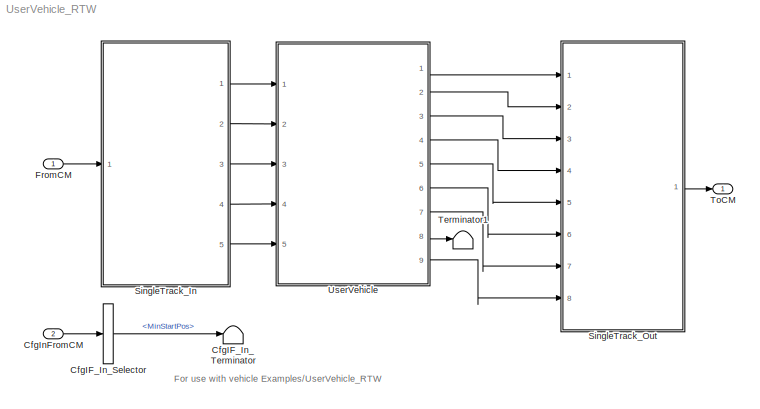
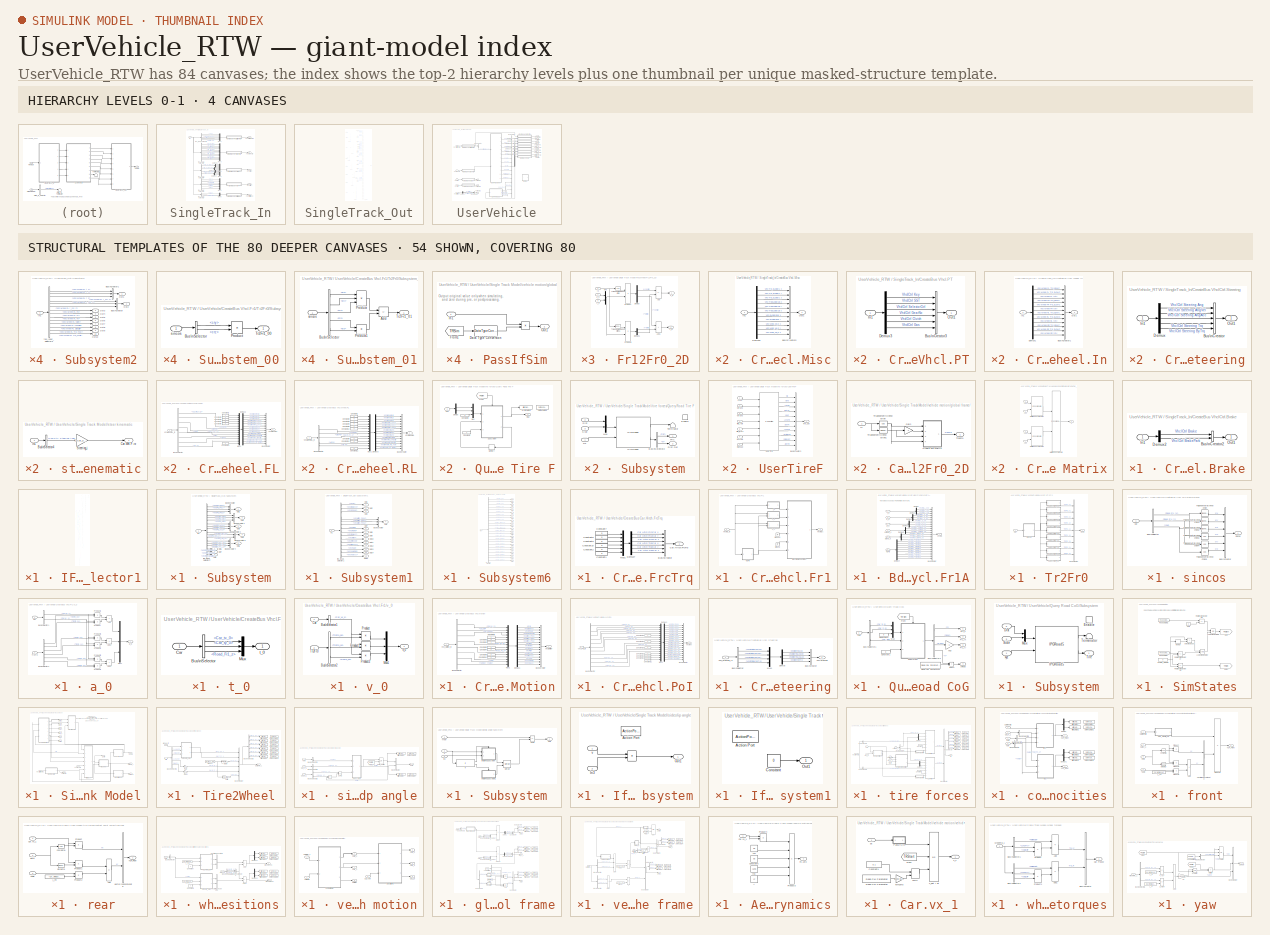
[diagram: thumbnail index - top-2 hierarchy levels (4 canvases) + 54 structural-template representatives of the remaining 80 canvases]
MODEL UserVehicle_RTW
KIND model
CONFIG InitFcn = vehicle = 'Car'; if ~length(which('cmcmd')), cmenv; end\nUserVehicle_RTW_bus
CONFIG PreLoadFcn = vehicle = 'Car'; if ~length(which('cmcmd')), cmenv; end\nUserVehicle_RTW_bus\nUserVehicle_RTW_params
BLOCK [BusSelector] CfgIF_In_Selector
  OutputSignals = MinStartPos
  Ports = [1, 1]
  SID = 9
BLOCK [Terminator] CfgIF_In_Terminator
  SID = 10
BLOCK [Inport] CfgInFromCM
  OutDataTypeStr = Bus: cmVehicle_CarCfgIn
  Port = 2
  SID = 8
BLOCK [Inport] FromCM
  OutDataTypeStr = Bus: cmVehicle_CarIn
  SID = 1
BLOCK [SubSystem] SingleTrack_In
  Ports = [1, 5]
  RequestExecContextInheritance = off
  SID = 255
BLOCK [SubSystem] SingleTrack_In/CreateBus Vhcl.Misc
  Ports = [1, 1]
  RequestExecContextInheritance = off
  SID = 257
BLOCK [BusCreator] SingleTrack_In/CreateBus Vhcl.Misc/Bus\nCreator5
  DisplayOption = bar
  InheritFromInputs = on
  Inputs = 11
  Ports = [11, 1]
  SID = 259
BLOCK [Demux] SingleTrack_In/CreateBus Vhcl.Misc/Demux5
  DisplayOption = none
  Outputs = 11
  Ports = [1, 11]
  SID = 260
BLOCK [Inport] SingleTrack_In/CreateBus Vhcl.Misc/In1
  SID = 258
BLOCK [Outport] SingleTrack_In/CreateBus Vhcl.Misc/Out1
  SID = 261
  VectorParamsAs1DForOutWhenUnconnected = off
BLOCK [SubSystem] SingleTrack_In/CreateBus Vhcl.PT
  Ports = [1, 1]
  RequestExecContextInheritance = off
  SID = 262
BLOCK [BusCreator] SingleTrack_In/CreateBus Vhcl.PT/Bus\nCreator3
  DisplayOption = bar
  InheritFromInputs = on
  Inputs = 6
  Ports = [6, 1]
  SID = 264
BLOCK [Demux] SingleTrack_In/CreateBus Vhcl.PT/Demux3
  DisplayOption = none
  Outputs = 6
  Ports = [1, 6]
  SID = 265
BLOCK [Inport] SingleTrack_In/CreateBus Vhcl.PT/In1
  SID = 263
BLOCK [Outport] SingleTrack_In/CreateBus Vhcl.PT/Out1
  SID = 266
  VectorParamsAs1DForOutWhenUnconnected = off
BLOCK [SubSystem] SingleTrack_In/CreateBus Vhcl.Wheel.In
  Ports = [1, 1]
  RequestExecContextInheritance = off
  SID = 267
BLOCK [BusCreator] SingleTrack_In/CreateBus Vhcl.Wheel.In/Bus\nCreator1
  DisplayOption = bar
  InheritFromInputs = on
  Inputs = 12
  Ports = [12, 1]
  SID = 269
BLOCK [Demux] SingleTrack_In/CreateBus Vhcl.Wheel.In/Demux1
  DisplayOption = none
  Outputs = 12
  Ports = [1, 12]
  SID = 270
BLOCK [Inport] SingleTrack_In/CreateBus Vhcl.Wheel.In/In1
  SID = 268
BLOCK [Outport] SingleTrack_In/CreateBus Vhcl.Wheel.In/Out1
  SID = 271
  VectorParamsAs1DForOutWhenUnconnected = off
BLOCK [SubSystem] SingleTrack_In/CreateBus VhclCtrl.Brake
  Ports = [1, 1]
  RequestExecContextInheritance = off
  SID = 272
BLOCK [BusCreator] SingleTrack_In/CreateBus VhclCtrl.Brake/Bus\nCreator2
  DisplayOption = bar
  InheritFromInputs = on
  Inputs = 2
  Ports = [2, 1]
  SID = 274
BLOCK [Demux] SingleTrack_In/CreateBus VhclCtrl.Brake/Demux2
  DisplayOption = none
  Outputs = 2
  Ports = [1, 2]
  SID = 275
BLOCK [Inport] SingleTrack_In/CreateBus VhclCtrl.Brake/In1
  SID = 273
BLOCK [Outport] SingleTrack_In/CreateBus VhclCtrl.Brake/Out1
  SID = 276
  VectorParamsAs1DForOutWhenUnconnected = off
BLOCK [SubSystem] SingleTrack_In/CreateBus VhclCtrl.Steering
  Ports = [1, 1]
  RequestExecContextInheritance = off
  SID = 277
BLOCK [BusCreator] SingleTrack_In/CreateBus VhclCtrl.Steering/Bus\nCreator
  DisplayOption = bar
  InheritFromInputs = on
  Inputs = 5
  Ports = [5, 1]
  SID = 279
BLOCK [Demux] SingleTrack_In/CreateBus VhclCtrl.Steering/Demux
  DisplayOption = none
  Outputs = 5
  Ports = [1, 5]
  SID = 280
BLOCK [Inport] SingleTrack_In/CreateBus VhclCtrl.Steering/In1
  SID = 278
BLOCK [Outport] SingleTrack_In/CreateBus VhclCtrl.Steering/Out1
  SID = 281
  VectorParamsAs1DForOutWhenUnconnected = off
BLOCK [Demux] SingleTrack_In/Demux1
  DisplayOption = none
  Outputs = 3
  Ports = [1, 3]
  SID = 282
BLOCK [Demux] SingleTrack_In/Demux2
  DisplayOption = none
  Outputs = 3
  Ports = [1, 3]
  SID = 283
BLOCK [Demux] SingleTrack_In/Demux3
  DisplayOption = none
  Outputs = 3
  Ports = [1, 3]
  SID = 284
BLOCK [Demux] SingleTrack_In/Demux4
  DisplayOption = none
  Outputs = 2
  Ports = [1, 2]
  SID = 285
BLOCK [Inport] SingleTrack_In/In1
  SID = 256
BLOCK [Mux] SingleTrack_In/Mux1
  DisplayOption = bar
  Inputs = 5
  Ports = [5, 1]
  SID = 286
BLOCK [Mux] SingleTrack_In/Mux2
  DisplayOption = bar
  Inputs = 11
  Ports = [11, 1]
  SID = 287
BLOCK [Mux] SingleTrack_In/Mux3
  DisplayOption = bar
  Inputs = 12
  Ports = [12, 1]
  SID = 288
BLOCK [Mux] SingleTrack_In/Mux4
  DisplayOption = bar
  Inputs = 6
  Ports = [6, 1]
  SID = 289
BLOCK [Mux] SingleTrack_In/Mux5
  DisplayOption = bar
  Inputs = 2
  Ports = [2, 1]
  SID = 290
BLOCK [Outport] SingleTrack_In/Vhcl.Misc
  Port = 3
  SID = 298
  VectorParamsAs1DForOutWhenUnconnected = off
BLOCK [Outport] SingleTrack_In/Vhcl.Wheel.In
  Port = 2
  SID = 297
  VectorParamsAs1DForOutWhenUnconnected = off
BLOCK [Outport] SingleTrack_In/VhclCtrl.Brake
  Port = 4
  SID = 299
  VectorParamsAs1DForOutWhenUnconnected = off
BLOCK [Outport] SingleTrack_In/VhclCtrl.PT
  Port = 5
  SID = 300
  VectorParamsAs1DForOutWhenUnconnected = off
BLOCK [Outport] SingleTrack_In/VhclCtrl.Steering
  SID = 296
  VectorParamsAs1DForOutWhenUnconnected = off
BLOCK [BusSelector] SingleTrack_In/foo_Input_Selector
  OutputSignals = VhclCtrl.Steering.Ang,VhclCtrl.Steering.AngVel,VhclCtrl.Steering.AngAcc,VhclCtrl.Steering.Trq,VhclCtrl.Steering.SteerByTrq
  Ports = [1, 5]
  SID = 291
BLOCK [BusSelector] SingleTrack_In/foo_Input_Selector1
  OutputSignals = VhclCtrl.Brake,VhclCtrl.BrakePark
  Ports = [1, 2]
  SID = 292
BLOCK [BusSelector] SingleTrack_In/foo_Input_Selector2
  OutputSignals = Vhcl.Wheel.FL.Trq_B2WC,Vhcl.Wheel.FL.Trq_DL2WC,Vhcl.Wheel.FL.rotv,Vhcl.Wheel.FR.Trq_B2WC,Vhcl.Wheel.FR.Trq_DL2WC,Vhcl.Wheel.FR.rotv,Vhcl.Wheel.RL.Trq_B2WC,Vhcl.Wheel.RL.Trq_DL2WC,Vhcl.Wheel.RL.rotv,Vhcl.Wheel.RR.Trq_B2WC,Vhcl.Wheel.RR.Trq_DL2WC,Vhcl.Wheel.RR.rotv
  Ports = [1, 12]
  SID = 293
BLOCK [BusSelector] SingleTrack_In/foo_Input_Selector3
  OutputSignals = VhclCtrl.Key,VhclCtrl.SST,VhclCtrl.SelectorCtrl,VhclCtrl.GearNo,VhclCtrl.Clutch,VhclCtrl.Gas
  Ports = [1, 6]
  SID = 294
BLOCK [BusSelector] SingleTrack_In/foo_Input_Selector4
  OutputSignals = Vhcl.Trq_DL2Bdy1,Vhcl.Trq_DL2Bdy1B,Vhcl.Trq_DL2BdyEng,Vhcl.Wind_vel_0
  Ports = [1, 4]
  SID = 295
BLOCK [SubSystem] SingleTrack_Out
  Ports = [8, 1]
  RequestExecContextInheritance = off
  SID = 301
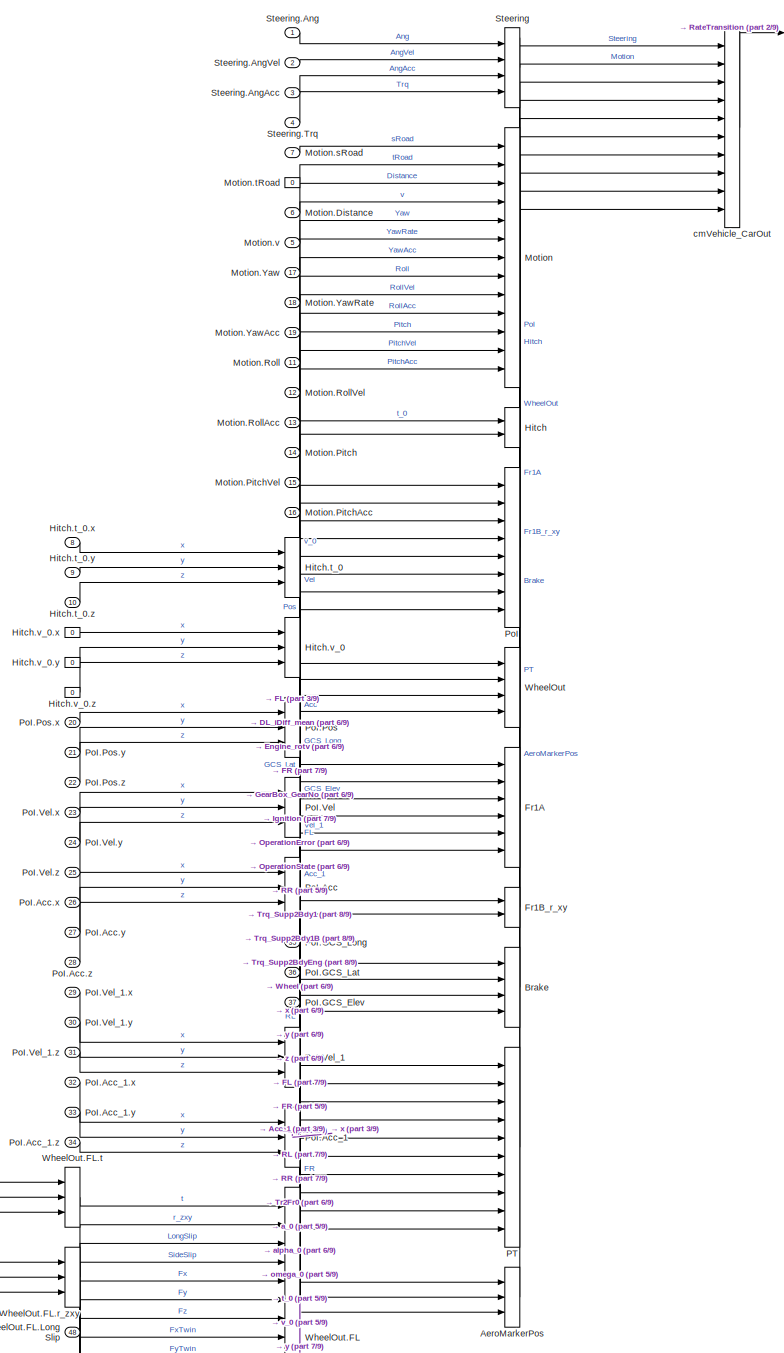
[diagram: SingleTrack_Out/IF_Out_Selector1 - part 1/9, top center region]
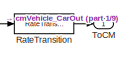
[diagram: SingleTrack_Out/IF_Out_Selector1 - part 2/9, top right region]
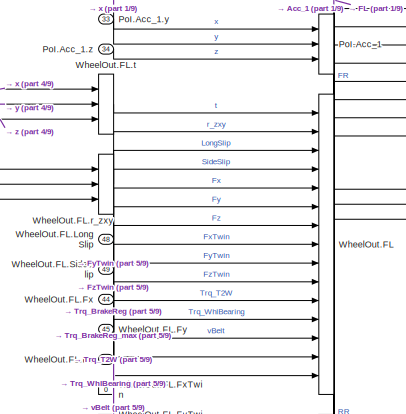
[diagram: SingleTrack_Out/IF_Out_Selector1 - part 3/9, top center region]
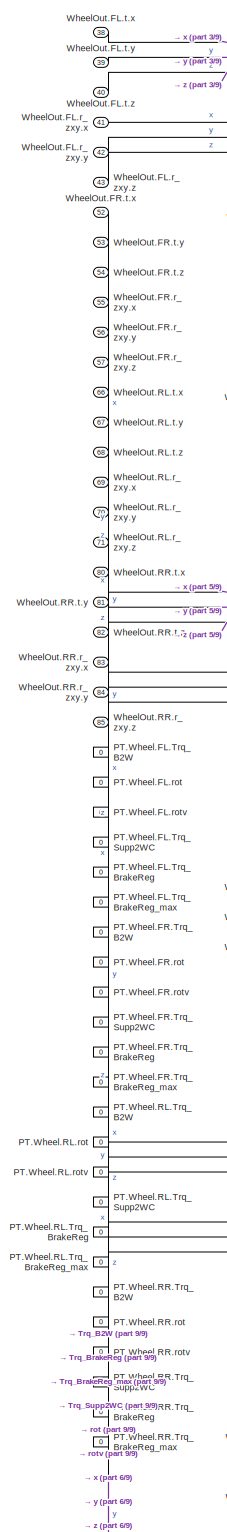
[diagram: SingleTrack_Out/IF_Out_Selector1 - part 4/9, middle left region]
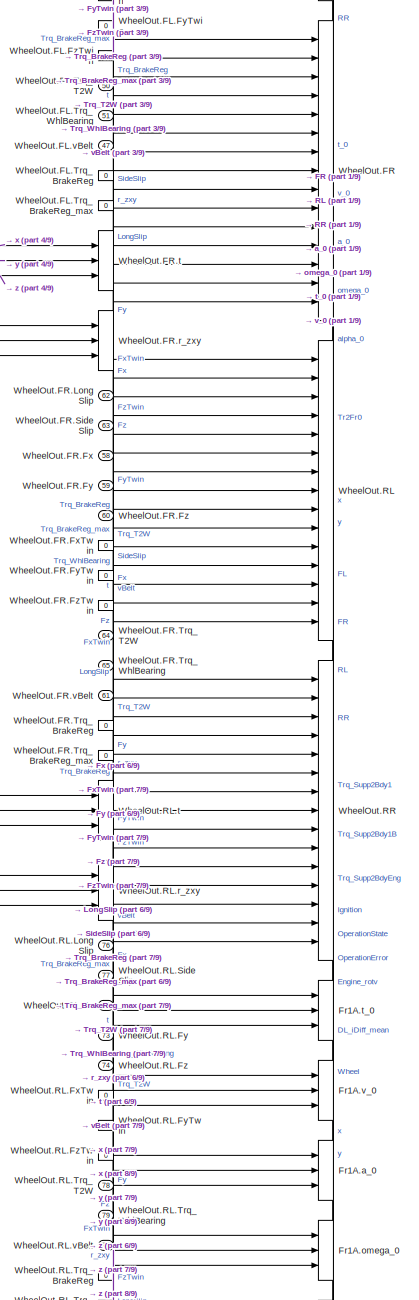
[diagram: SingleTrack_Out/IF_Out_Selector1 - part 5/9, central region]
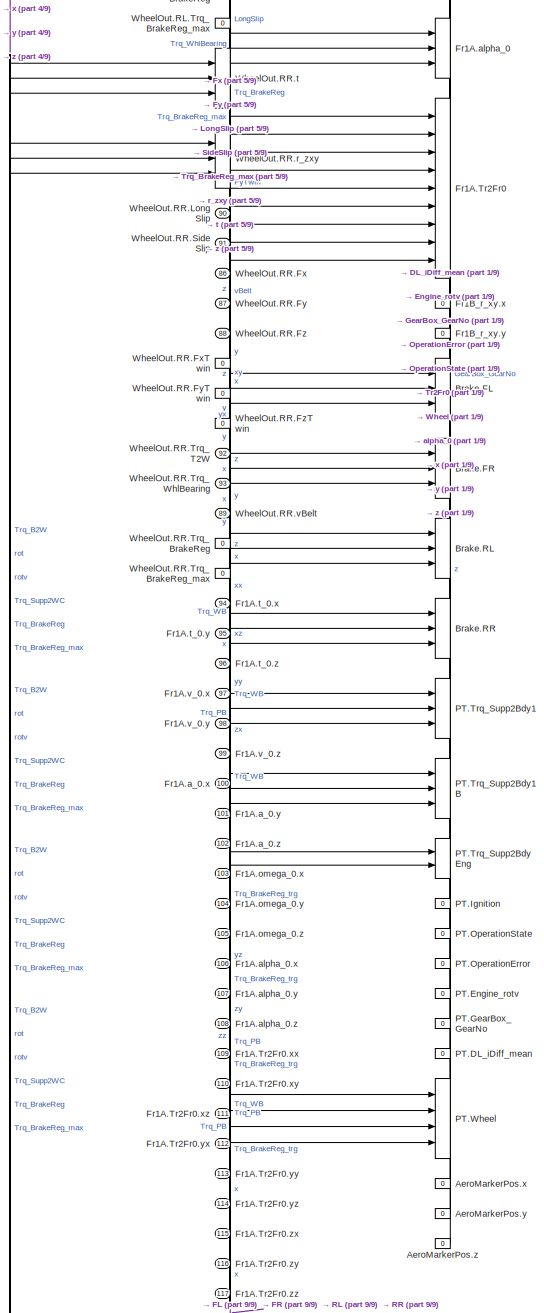
[diagram: SingleTrack_Out/IF_Out_Selector1 - part 6/9, middle left region]
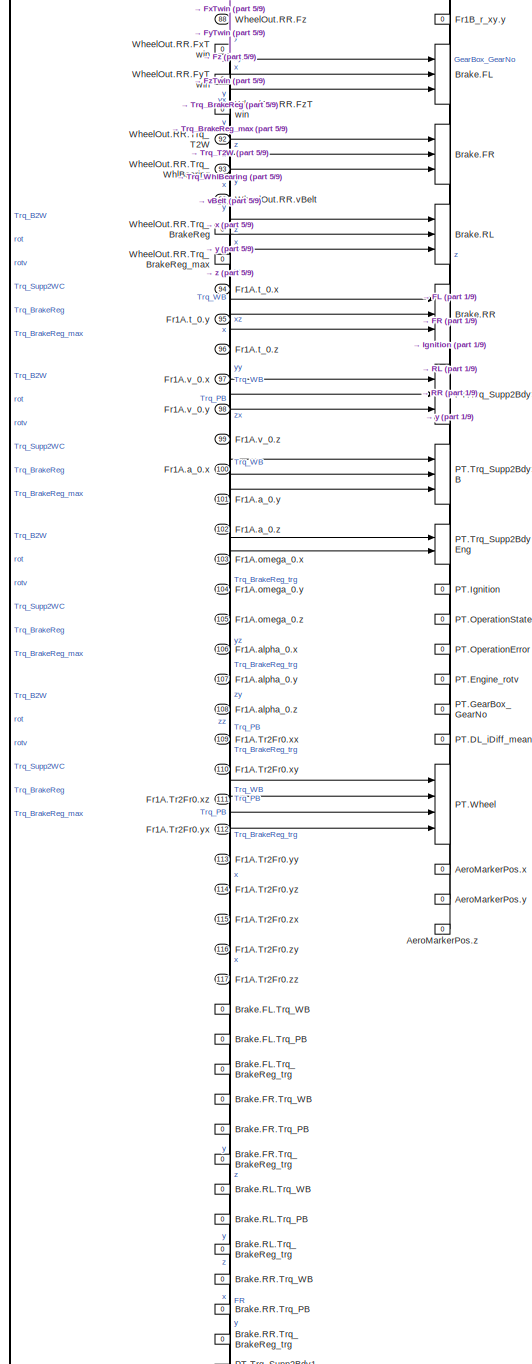
[diagram: SingleTrack_Out/IF_Out_Selector1 - part 7/9, bottom left region]
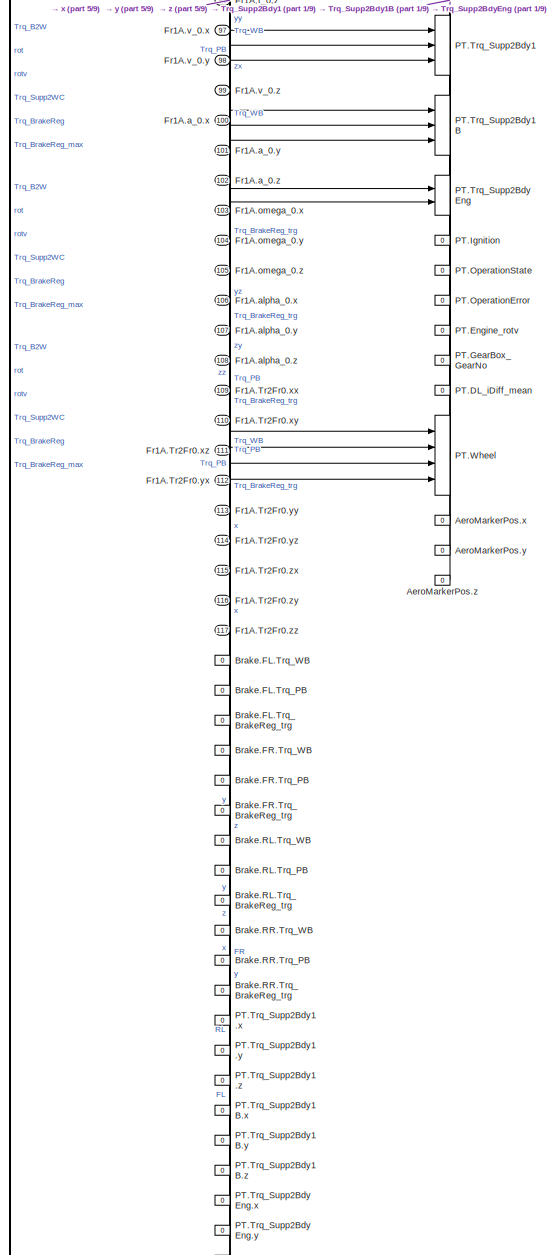
[diagram: SingleTrack_Out/IF_Out_Selector1 - part 8/9, bottom left region]
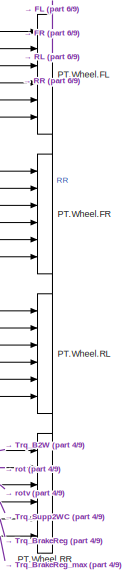
[diagram: SingleTrack_Out/IF_Out_Selector1 - part 9/9, bottom left region]
BLOCK [SubSystem] SingleTrack_Out/IF_Out_Selector1
  OpenFcn = cmSignalSelect('SignalSelection_CB',gcb)
  Ports = [117, 1]
  RequestExecContextInheritance = off
  SID = 685
  UserData = DataTag0
  UserDataPersistent = on
BLOCK [BusCreator] SingleTrack_Out/IF_Out_Selector1/AeroMarkerPos
  InheritFromInputs = on
  Inputs = 3
  Ports = [3, 1]
  SID = 686
BLOCK [Constant] SingleTrack_Out/IF_Out_Selector1/AeroMarkerPos.x
  SID = 687
  Value = 0
BLOCK [Constant] SingleTrack_Out/IF_Out_Selector1/AeroMarkerPos.y
  SID = 688
  Value = 0
BLOCK [Constant] SingleTrack_Out/IF_Out_Selector1/AeroMarkerPos.z
  SID = 689
  Value = 0
BLOCK [BusCreator] SingleTrack_Out/IF_Out_Selector1/Brake
  InheritFromInputs = on
  Inputs = 4
  Ports = [4, 1]
  SID = 690
BLOCK [BusCreator] SingleTrack_Out/IF_Out_Selector1/Brake.FL
  InheritFromInputs = on
  Inputs = 3
  Ports = [3, 1]
  SID = 691
BLOCK [Constant] SingleTrack_Out/IF_Out_Selector1/Brake.FL.Trq_BrakeReg_trg
  SID = 692
  Value = 0
BLOCK [Constant] SingleTrack_Out/IF_Out_Selector1/Brake.FL.Trq_PB
  SID = 693
  Value = 0
BLOCK [Constant] SingleTrack_Out/IF_Out_Selector1/Brake.FL.Trq_WB
  SID = 694
  Value = 0
BLOCK [BusCreator] SingleTrack_Out/IF_Out_Selector1/Brake.FR
  InheritFromInputs = on
  Inputs = 3
  Ports = [3, 1]
  SID = 695
BLOCK [Constant] SingleTrack_Out/IF_Out_Selector1/Brake.FR.Trq_BrakeReg_trg
  SID = 696
  Value = 0
BLOCK [Constant] SingleTrack_Out/IF_Out_Selector1/Brake.FR.Trq_PB
  SID = 697
  Value = 0
BLOCK [Constant] SingleTrack_Out/IF_Out_Selector1/Brake.FR.Trq_WB
  SID = 698
  Value = 0
BLOCK [BusCreator] SingleTrack_Out/IF_Out_Selector1/Brake.RL
  InheritFromInputs = on
  Inputs = 3
  Ports = [3, 1]
  SID = 699
BLOCK [Constant] SingleTrack_Out/IF_Out_Selector1/Brake.RL.Trq_BrakeReg_trg
  SID = 700
  Value = 0
BLOCK [Constant] SingleTrack_Out/IF_Out_Selector1/Brake.RL.Trq_PB
  SID = 701
  Value = 0
BLOCK [Constant] SingleTrack_Out/IF_Out_Selector1/Brake.RL.Trq_WB
  SID = 702
  Value = 0
BLOCK [BusCreator] SingleTrack_Out/IF_Out_Selector1/Brake.RR
  InheritFromInputs = on
  Inputs = 3
  Ports = [3, 1]
  SID = 703
BLOCK [Constant] SingleTrack_Out/IF_Out_Selector1/Brake.RR.Trq_BrakeReg_trg
  SID = 704
  Value = 0
BLOCK [Constant] SingleTrack_Out/IF_Out_Selector1/Brake.RR.Trq_PB
  SID = 705
  Value = 0
BLOCK [Constant] SingleTrack_Out/IF_Out_Selector1/Brake.RR.Trq_WB
  SID = 706
  Value = 0
BLOCK [BusCreator] SingleTrack_Out/IF_Out_Selector1/Fr1A
  InheritFromInputs = on
  Inputs = 6
  Ports = [6, 1]
  SID = 707
BLOCK [BusCreator] SingleTrack_Out/IF_Out_Selector1/Fr1A.Tr2Fr0
  InheritFromInputs = on
  Inputs = 9
  Ports = [9, 1]
  SID = 708
BLOCK [Inport] SingleTrack_Out/IF_Out_Selector1/Fr1A.Tr2Fr0.xx
  Port = 109
  SID = 2411
BLOCK [Inport] SingleTrack_Out/IF_Out_Selector1/Fr1A.Tr2Fr0.xy
  Port = 110
  SID = 2412
BLOCK [Inport] SingleTrack_Out/IF_Out_Selector1/Fr1A.Tr2Fr0.xz
  Port = 111
  SID = 2413
BLOCK [Inport] SingleTrack_Out/IF_Out_Selector1/Fr1A.Tr2Fr0.yx
  Port = 112
  SID = 2414
BLOCK [Inport] SingleTrack_Out/IF_Out_Selector1/Fr1A.Tr2Fr0.yy
  Port = 113
  SID = 2415
BLOCK [Inport] SingleTrack_Out/IF_Out_Selector1/Fr1A.Tr2Fr0.yz
  Port = 114
  SID = 2416
BLOCK [Inport] SingleTrack_Out/IF_Out_Selector1/Fr1A.Tr2Fr0.zx
  Port = 115
  SID = 2417
BLOCK [Inport] SingleTrack_Out/IF_Out_Selector1/Fr1A.Tr2Fr0.zy
  Port = 116
  SID = 2418
BLOCK [Inport] SingleTrack_Out/IF_Out_Selector1/Fr1A.Tr2Fr0.zz
  Port = 117
  SID = 2419
BLOCK [BusCreator] SingleTrack_Out/IF_Out_Selector1/Fr1A.a_0
  InheritFromInputs = on
  Inputs = 3
  Ports = [3, 1]
  SID = 718
BLOCK [Inport] SingleTrack_Out/IF_Out_Selector1/Fr1A.a_0.x
  Port = 100
  SID = 2402
BLOCK [Inport] SingleTrack_Out/IF_Out_Selector1/Fr1A.a_0.y
  Port = 101
  SID = 2403
BLOCK [Inport] SingleTrack_Out/IF_Out_Selector1/Fr1A.a_0.z
  Port = 102
  SID = 2404
BLOCK [BusCreator] SingleTrack_Out/IF_Out_Selector1/Fr1A.alpha_0
  InheritFromInputs = on
  Inputs = 3
  Ports = [3, 1]
  SID = 722
BLOCK [Inport] SingleTrack_Out/IF_Out_Selector1/Fr1A.alpha_0.x
  Port = 106
  SID = 2408
BLOCK [Inport] SingleTrack_Out/IF_Out_Selector1/Fr1A.alpha_0.y
  Port = 107
  SID = 2409
BLOCK [Inport] SingleTrack_Out/IF_Out_Selector1/Fr1A.alpha_0.z
  Port = 108
  SID = 2410
BLOCK [BusCreator] SingleTrack_Out/IF_Out_Selector1/Fr1A.omega_0
  InheritFromInputs = on
  Inputs = 3
  Ports = [3, 1]
  SID = 726
BLOCK [Inport] SingleTrack_Out/IF_Out_Selector1/Fr1A.omega_0.x
  Port = 103
  SID = 2405
BLOCK [Inport] SingleTrack_Out/IF_Out_Selector1/Fr1A.omega_0.y
  Port = 104
  SID = 2406
BLOCK [Inport] SingleTrack_Out/IF_Out_Selector1/Fr1A.omega_0.z
  Port = 105
  SID = 2407
BLOCK [BusCreator] SingleTrack_Out/IF_Out_Selector1/Fr1A.t_0
  InheritFromInputs = on
  Inputs = 3
  Ports = [3, 1]
  SID = 730
BLOCK [Inport] SingleTrack_Out/IF_Out_Selector1/Fr1A.t_0.x
  Port = 94
  SID = 2396
BLOCK [Inport] SingleTrack_Out/IF_Out_Selector1/Fr1A.t_0.y
  Port = 95
  SID = 2397
BLOCK [Inport] SingleTrack_Out/IF_Out_Selector1/Fr1A.t_0.z
  Port = 96
  SID = 2398
BLOCK [BusCreator] SingleTrack_Out/IF_Out_Selector1/Fr1A.v_0
  InheritFromInputs = on
  Inputs = 3
  Ports = [3, 1]
  SID = 734
BLOCK [Inport] SingleTrack_Out/IF_Out_Selector1/Fr1A.v_0.x
  Port = 97
  SID = 2399
BLOCK [Inport] SingleTrack_Out/IF_Out_Selector1/Fr1A.v_0.y
  Port = 98
  SID = 2400
BLOCK [Inport] SingleTrack_Out/IF_Out_Selector1/Fr1A.v_0.z
  Port = 99
  SID = 2401
BLOCK [BusCreator] SingleTrack_Out/IF_Out_Selector1/Fr1B_r_xy
  InheritFromInputs = on
  Inputs = 2
  Ports = [2, 1]
  SID = 738
BLOCK [Constant] SingleTrack_Out/IF_Out_Selector1/Fr1B_r_xy.x
  SID = 739
  Value = 0
BLOCK [Constant] SingleTrack_Out/IF_Out_Selector1/Fr1B_r_xy.y
  SID = 740
  Value = 0
BLOCK [BusCreator] SingleTrack_Out/IF_Out_Selector1/Hitch
  InheritFromInputs = on
  Inputs = 2
  Ports = [2, 1]
  SID = 741
BLOCK [BusCreator] SingleTrack_Out/IF_Out_Selector1/Hitch.t_0
  InheritFromInputs = on
  Inputs = 3
  Ports = [3, 1]
  SID = 742
BLOCK [Inport] SingleTrack_Out/IF_Out_Selector1/Hitch.t_0.x
  Port = 8
  SID = 2317
BLOCK [Inport] SingleTrack_Out/IF_Out_Selector1/Hitch.t_0.y
  Port = 9
  SID = 2318
BLOCK [Inport] SingleTrack_Out/IF_Out_Selector1/Hitch.t_0.z
  Port = 10
  SID = 2319
BLOCK [BusCreator] SingleTrack_Out/IF_Out_Selector1/Hitch.v_0
  InheritFromInputs = on
  Inputs = 3
  Ports = [3, 1]
  SID = 746
BLOCK [Constant] SingleTrack_Out/IF_Out_Selector1/Hitch.v_0.x
  SID = 747
  Value = 0
BLOCK [Constant] SingleTrack_Out/IF_Out_Selector1/Hitch.v_0.y
  SID = 748
  Value = 0
BLOCK [Constant] SingleTrack_Out/IF_Out_Selector1/Hitch.v_0.z
  SID = 749
  Value = 0
BLOCK [BusCreator] SingleTrack_Out/IF_Out_Selector1/Motion
  InheritFromInputs = on
  Inputs = 13
  Ports = [13, 1]
  SID = 750
BLOCK [Inport] SingleTrack_Out/IF_Out_Selector1/Motion.Distance
  Port = 6
  SID = 2306
BLOCK [Inport] SingleTrack_Out/IF_Out_Selector1/Motion.Pitch
  Port = 14
  SID = 2311
BLOCK [Inport] SingleTrack_Out/IF_Out_Selector1/Motion.PitchAcc
  Port = 16
  SID = 2313
BLOCK [Inport] SingleTrack_Out/IF_Out_Selector1/Motion.PitchVel
  Port = 15
  SID = 2312
BLOCK [Inport] SingleTrack_Out/IF_Out_Selector1/Motion.Roll
  Port = 11
  SID = 2308
BLOCK [Inport] SingleTrack_Out/IF_Out_Selector1/Motion.RollAcc
  Port = 13
  SID = 2310
BLOCK [Inport] SingleTrack_Out/IF_Out_Selector1/Motion.RollVel
  Port = 12
  SID = 2309
BLOCK [Inport] SingleTrack_Out/IF_Out_Selector1/Motion.Yaw
  Port = 17
  SID = 2314
BLOCK [Inport] SingleTrack_Out/IF_Out_Selector1/Motion.YawAcc
  Port = 19
  SID = 2316
BLOCK [Inport] SingleTrack_Out/IF_Out_Selector1/Motion.YawRate
  Port = 18
  SID = 2315
BLOCK [Inport] SingleTrack_Out/IF_Out_Selector1/Motion.sRoad
  Port = 7
  SID = 2307
BLOCK [Constant] SingleTrack_Out/IF_Out_Selector1/Motion.tRoad
  SID = 762
  Value = 0
BLOCK [Inport] SingleTrack_Out/IF_Out_Selector1/Motion.v
  Port = 5
  SID = 2305
BLOCK [BusCreator] SingleTrack_Out/IF_Out_Selector1/PT
  InheritFromInputs = on
  Inputs = 10
  Ports = [10, 1]
  SID = 764
BLOCK [Constant] SingleTrack_Out/IF_Out_Selector1/PT.DL_iDiff_mean
  SID = 765
  Value = 0
BLOCK [Constant] SingleTrack_Out/IF_Out_Selector1/PT.Engine_rotv
  SID = 766
  Value = 0
BLOCK [Constant] SingleTrack_Out/IF_Out_Selector1/PT.GearBox_GearNo
  SID = 767
  Value = 0
BLOCK [Constant] SingleTrack_Out/IF_Out_Selector1/PT.Ignition
  SID = 768
  Value = 0
BLOCK [Constant] SingleTrack_Out/IF_Out_Selector1/PT.OperationError
  SID = 769
  Value = 0
BLOCK [Constant] SingleTrack_Out/IF_Out_Selector1/PT.OperationState
  SID = 770
  Value = 0
BLOCK [BusCreator] SingleTrack_Out/IF_Out_Selector1/PT.Trq_Supp2Bdy1
  InheritFromInputs = on
  Inputs = 3
  Ports = [3, 1]
  SID = 771
BLOCK [Constant] SingleTrack_Out/IF_Out_Selector1/PT.Trq_Supp2Bdy1.x
  SID = 772
  Value = 0
BLOCK [Constant] SingleTrack_Out/IF_Out_Selector1/PT.Trq_Supp2Bdy1.y
  SID = 773
  Value = 0
BLOCK [Constant] SingleTrack_Out/IF_Out_Selector1/PT.Trq_Supp2Bdy1.z
  SID = 774
  Value = 0
BLOCK [BusCreator] SingleTrack_Out/IF_Out_Selector1/PT.Trq_Supp2Bdy1B
  InheritFromInputs = on
  Inputs = 3
  Ports = [3, 1]
  SID = 775
BLOCK [Constant] SingleTrack_Out/IF_Out_Selector1/PT.Trq_Supp2Bdy1B.x
  SID = 776
  Value = 0
BLOCK [Constant] SingleTrack_Out/IF_Out_Selector1/PT.Trq_Supp2Bdy1B.y
  SID = 777
  Value = 0
BLOCK [Constant] SingleTrack_Out/IF_Out_Selector1/PT.Trq_Supp2Bdy1B.z
  SID = 778
  Value = 0
BLOCK [BusCreator] SingleTrack_Out/IF_Out_Selector1/PT.Trq_Supp2BdyEng
  InheritFromInputs = on
  Inputs = 2
  Ports = [2, 1]
  SID = 779
BLOCK [Constant] SingleTrack_Out/IF_Out_Selector1/PT.Trq_Supp2BdyEng.x
  SID = 780
  Value = 0
BLOCK [Constant] SingleTrack_Out/IF_Out_Selector1/PT.Trq_Supp2BdyEng.y
  SID = 781
  Value = 0
BLOCK [BusCreator] SingleTrack_Out/IF_Out_Selector1/PT.Wheel
  InheritFromInputs = on
  Inputs = 4
  Ports = [4, 1]
  SID = 782
BLOCK [BusCreator] SingleTrack_Out/IF_Out_Selector1/PT.Wheel.FL
  InheritFromInputs = on
  Inputs = 6
  Ports = [6, 1]
  SID = 783
BLOCK [Constant] SingleTrack_Out/IF_Out_Selector1/PT.Wheel.FL.Trq_B2W
  SID = 784
  Value = 0
BLOCK [Constant] SingleTrack_Out/IF_Out_Selector1/PT.Wheel.FL.Trq_BrakeReg
  SID = 785
  Value = 0
BLOCK [Constant] SingleTrack_Out/IF_Out_Selector1/PT.Wheel.FL.Trq_BrakeReg_max
  SID = 786
  Value = 0
BLOCK [Constant] SingleTrack_Out/IF_Out_Selector1/PT.Wheel.FL.Trq_Supp2WC
  SID = 787
  Value = 0
BLOCK [Constant] SingleTrack_Out/IF_Out_Selector1/PT.Wheel.FL.rot
  SID = 788
  Value = 0
BLOCK [Constant] SingleTrack_Out/IF_Out_Selector1/PT.Wheel.FL.rotv
  SID = 789
  Value = 0
BLOCK [BusCreator] SingleTrack_Out/IF_Out_Selector1/PT.Wheel.FR
  InheritFromInputs = on
  Inputs = 6
  Ports = [6, 1]
  SID = 790
BLOCK [Constant] SingleTrack_Out/IF_Out_Selector1/PT.Wheel.FR.Trq_B2W
  SID = 791
  Value = 0
BLOCK [Constant] SingleTrack_Out/IF_Out_Selector1/PT.Wheel.FR.Trq_BrakeReg
  SID = 792
  Value = 0
BLOCK [Constant] SingleTrack_Out/IF_Out_Selector1/PT.Wheel.FR.Trq_BrakeReg_max
  SID = 793
  Value = 0
BLOCK [Constant] SingleTrack_Out/IF_Out_Selector1/PT.Wheel.FR.Trq_Supp2WC
  SID = 794
  Value = 0
BLOCK [Constant] SingleTrack_Out/IF_Out_Selector1/PT.Wheel.FR.rot
  SID = 795
  Value = 0
BLOCK [Constant] SingleTrack_Out/IF_Out_Selector1/PT.Wheel.FR.rotv
  SID = 796
  Value = 0
BLOCK [BusCreator] SingleTrack_Out/IF_Out_Selector1/PT.Wheel.RL
  InheritFromInputs = on
  Inputs = 6
  Ports = [6, 1]
  SID = 797
BLOCK [Constant] SingleTrack_Out/IF_Out_Selector1/PT.Wheel.RL.Trq_B2W
  SID = 798
  Value = 0
BLOCK [Constant] SingleTrack_Out/IF_Out_Selector1/PT.Wheel.RL.Trq_BrakeReg
  SID = 799
  Value = 0
BLOCK [Constant] SingleTrack_Out/IF_Out_Selector1/PT.Wheel.RL.Trq_BrakeReg_max
  SID = 800
  Value = 0
BLOCK [Constant] SingleTrack_Out/IF_Out_Selector1/PT.Wheel.RL.Trq_Supp2WC
  SID = 801
  Value = 0
BLOCK [Constant] SingleTrack_Out/IF_Out_Selector1/PT.Wheel.RL.rot
  SID = 802
  Value = 0
BLOCK [Constant] SingleTrack_Out/IF_Out_Selector1/PT.Wheel.RL.rotv
  SID = 803
  Value = 0
BLOCK [BusCreator] SingleTrack_Out/IF_Out_Selector1/PT.Wheel.RR
  InheritFromInputs = on
  Inputs = 6
  Ports = [6, 1]
  SID = 804
BLOCK [Constant] SingleTrack_Out/IF_Out_Selector1/PT.Wheel.RR.Trq_B2W
  SID = 805
  Value = 0
BLOCK [Constant] SingleTrack_Out/IF_Out_Selector1/PT.Wheel.RR.Trq_BrakeReg
  SID = 806
  Value = 0
BLOCK [Constant] SingleTrack_Out/IF_Out_Selector1/PT.Wheel.RR.Trq_BrakeReg_max
  SID = 807
  Value = 0
BLOCK [Constant] SingleTrack_Out/IF_Out_Selector1/PT.Wheel.RR.Trq_Supp2WC
  SID = 808
  Value = 0
BLOCK [Constant] SingleTrack_Out/IF_Out_Selector1/PT.Wheel.RR.rot
  SID = 809
  Value = 0
BLOCK [Constant] SingleTrack_Out/IF_Out_Selector1/PT.Wheel.RR.rotv
  SID = 810
  Value = 0
BLOCK [BusCreator] SingleTrack_Out/IF_Out_Selector1/PoI
  InheritFromInputs = on
  Inputs = 8
  Ports = [8, 1]
  SID = 811
BLOCK [BusCreator] SingleTrack_Out/IF_Out_Selector1/PoI.Acc
  InheritFromInputs = on
  Inputs = 3
  Ports = [3, 1]
  SID = 812
BLOCK [Inport] SingleTrack_Out/IF_Out_Selector1/PoI.Acc.x
  Port = 26
  SID = 2326
BLOCK [Inport] SingleTrack_Out/IF_Out_Selector1/PoI.Acc.y
  Port = 27
  SID = 2327
BLOCK [Inport] SingleTrack_Out/IF_Out_Selector1/PoI.Acc.z
  Port = 28
  SID = 2328
BLOCK [BusCreator] SingleTrack_Out/IF_Out_Selector1/PoI.Acc_1
  InheritFromInputs = on
  Inputs = 3
  Ports = [3, 1]
  SID = 816
BLOCK [Inport] SingleTrack_Out/IF_Out_Selector1/PoI.Acc_1.x
  Port = 32
  SID = 2332
BLOCK [Inport] SingleTrack_Out/IF_Out_Selector1/PoI.Acc_1.y
  Port = 33
  SID = 2333
BLOCK [Inport] SingleTrack_Out/IF_Out_Selector1/PoI.Acc_1.z
  Port = 34
  SID = 2334
BLOCK [Inport] SingleTrack_Out/IF_Out_Selector1/PoI.GCS_Elev
  Port = 37
  SID = 2337
BLOCK [Inport] SingleTrack_Out/IF_Out_Selector1/PoI.GCS_Lat
  Port = 36
  SID = 2336
BLOCK [Inport] SingleTrack_Out/IF_Out_Selector1/PoI.GCS_Long
  Port = 35
  SID = 2335
BLOCK [BusCreator] SingleTrack_Out/IF_Out_Selector1/PoI.Pos
  InheritFromInputs = on
  Inputs = 3
  Ports = [3, 1]
  SID = 823
BLOCK [Inport] SingleTrack_Out/IF_Out_Selector1/PoI.Pos.x
  Port = 20
  SID = 2320
BLOCK [Inport] SingleTrack_Out/IF_Out_Selector1/PoI.Pos.y
  Port = 21
  SID = 2321
BLOCK [Inport] SingleTrack_Out/IF_Out_Selector1/PoI.Pos.z
  Port = 22
  SID = 2322
BLOCK [BusCreator] SingleTrack_Out/IF_Out_Selector1/PoI.Vel
  InheritFromInputs = on
  Inputs = 3
  Ports = [3, 1]
  SID = 827
BLOCK [Inport] SingleTrack_Out/IF_Out_Selector1/PoI.Vel.x
  Port = 23
  SID = 2323
BLOCK [Inport] SingleTrack_Out/IF_Out_Selector1/PoI.Vel.y
  Port = 24
  SID = 2324
BLOCK [Inport] SingleTrack_Out/IF_Out_Selector1/PoI.Vel.z
  Port = 25
  SID = 2325
BLOCK [BusCreator] SingleTrack_Out/IF_Out_Selector1/PoI.Vel_1
  InheritFromInputs = on
  Inputs = 3
  Ports = [3, 1]
  SID = 831
BLOCK [Inport] SingleTrack_Out/IF_Out_Selector1/PoI.Vel_1.x
  Port = 29
  SID = 2329
BLOCK [Inport] SingleTrack_Out/IF_Out_Selector1/PoI.Vel_1.y
  Port = 30
  SID = 2330
BLOCK [Inport] SingleTrack_Out/IF_Out_Selector1/PoI.Vel_1.z
  Port = 31
  SID = 2331
BLOCK [RateTransition] SingleTrack_Out/IF_Out_Selector1/RateTransition
  OutPortSampleTime = str2num(get_param(bdroot,'FixedStep'))
  SID = 835
BLOCK [BusCreator] SingleTrack_Out/IF_Out_Selector1/Steering
  InheritFromInputs = on
  Inputs = 4
  Ports = [4, 1]
  SID = 836
BLOCK [Inport] SingleTrack_Out/IF_Out_Selector1/Steering.Ang
  SID = 2301
BLOCK [Inport] SingleTrack_Out/IF_Out_Selector1/Steering.AngAcc
  Port = 3
  SID = 2303
BLOCK [Inport] SingleTrack_Out/IF_Out_Selector1/Steering.AngVel
  Port = 2
  SID = 2302
BLOCK [Inport] SingleTrack_Out/IF_Out_Selector1/Steering.Trq
  Port = 4
  SID = 2304
BLOCK [Outport] SingleTrack_Out/IF_Out_Selector1/ToCM
  SID = 931
  VectorParamsAs1DForOutWhenUnconnected = off
BLOCK [BusCreator] SingleTrack_Out/IF_Out_Selector1/WheelOut
  InheritFromInputs = on
  Inputs = 4
  Ports = [4, 1]
  SID = 841
BLOCK [BusCreator] SingleTrack_Out/IF_Out_Selector1/WheelOut.FL
  InheritFromInputs = on
  Inputs = 15
  Ports = [15, 1]
  SID = 842
BLOCK [Inport] SingleTrack_Out/IF_Out_Selector1/WheelOut.FL.Fx
  Port = 44
  SID = 2345
BLOCK [Constant] SingleTrack_Out/IF_Out_Selector1/WheelOut.FL.FxTwin
  SID = 844
  Value = 0
BLOCK [Inport] SingleTrack_Out/IF_Out_Selector1/WheelOut.FL.Fy
  Port = 45
  SID = 2346
BLOCK [Constant] SingleTrack_Out/IF_Out_Selector1/WheelOut.FL.FyTwin
  SID = 846
  Value = 0
BLOCK [Inport] SingleTrack_Out/IF_Out_Selector1/WheelOut.FL.Fz
  Port = 46
  SID = 2347
BLOCK [Constant] SingleTrack_Out/IF_Out_Selector1/WheelOut.FL.FzTwin
  SID = 848
  Value = 0
BLOCK [Inport] SingleTrack_Out/IF_Out_Selector1/WheelOut.FL.LongSlip
  Port = 48
  SID = 2349
BLOCK [Inport] SingleTrack_Out/IF_Out_Selector1/WheelOut.FL.SideSlip
  Port = 49
  SID = 2350
BLOCK [Constant] SingleTrack_Out/IF_Out_Selector1/WheelOut.FL.Trq_BrakeReg
  SID = 851
  Value = 0
BLOCK [Constant] SingleTrack_Out/IF_Out_Selector1/WheelOut.FL.Trq_BrakeReg_max
  SID = 852
  Value = 0
BLOCK [Inport] SingleTrack_Out/IF_Out_Selector1/WheelOut.FL.Trq_T2W
  Port = 50
  SID = 2351
BLOCK [Inport] SingleTrack_Out/IF_Out_Selector1/WheelOut.FL.Trq_WhlBearing
  Port = 51
  SID = 2352
BLOCK [BusCreator] SingleTrack_Out/IF_Out_Selector1/WheelOut.FL.r_zxy
  InheritFromInputs = on
  Inputs = 3
  Ports = [3, 1]
  SID = 855
BLOCK [Inport] SingleTrack_Out/IF_Out_Selector1/WheelOut.FL.r_zxy.x
  Port = 41
  SID = 2341
BLOCK [Inport] SingleTrack_Out/IF_Out_Selector1/WheelOut.FL.r_zxy.y
  Port = 42
  SID = 2342
BLOCK [Inport] SingleTrack_Out/IF_Out_Selector1/WheelOut.FL.r_zxy.z
  Port = 43
  SID = 2343
BLOCK [BusCreator] SingleTrack_Out/IF_Out_Selector1/WheelOut.FL.t
  InheritFromInputs = on
  Inputs = 3
  Ports = [3, 1]
  SID = 859
BLOCK [Inport] SingleTrack_Out/IF_Out_Selector1/WheelOut.FL.t.x
  Port = 38
  SID = 2338
BLOCK [Inport] SingleTrack_Out/IF_Out_Selector1/WheelOut.FL.t.y
  Port = 39
  SID = 2339
BLOCK [Inport] SingleTrack_Out/IF_Out_Selector1/WheelOut.FL.t.z
  Port = 40
  SID = 2340
BLOCK [Inport] SingleTrack_Out/IF_Out_Selector1/WheelOut.FL.vBelt
  Port = 47
  SID = 2348
BLOCK [BusCreator] SingleTrack_Out/IF_Out_Selector1/WheelOut.FR
  InheritFromInputs = on
  Inputs = 15
  Ports = [15, 1]
  SID = 864
BLOCK [Inport] SingleTrack_Out/IF_Out_Selector1/WheelOut.FR.Fx
  Port = 58
  SID = 2359
BLOCK [Constant] SingleTrack_Out/IF_Out_Selector1/WheelOut.FR.FxTwin
  SID = 866
  Value = 0
BLOCK [Inport] SingleTrack_Out/IF_Out_Selector1/WheelOut.FR.Fy
  Port = 59
  SID = 2360
BLOCK [Constant] SingleTrack_Out/IF_Out_Selector1/WheelOut.FR.FyTwin
  SID = 868
  Value = 0
BLOCK [Inport] SingleTrack_Out/IF_Out_Selector1/WheelOut.FR.Fz
  Port = 60
  SID = 2361
BLOCK [Constant] SingleTrack_Out/IF_Out_Selector1/WheelOut.FR.FzTwin
  SID = 870
  Value = 0
BLOCK [Inport] SingleTrack_Out/IF_Out_Selector1/WheelOut.FR.LongSlip
  Port = 62
  SID = 2363
BLOCK [Inport] SingleTrack_Out/IF_Out_Selector1/WheelOut.FR.SideSlip
  Port = 63
  SID = 2364
BLOCK [Constant] SingleTrack_Out/IF_Out_Selector1/WheelOut.FR.Trq_BrakeReg
  SID = 873
  Value = 0
BLOCK [Constant] SingleTrack_Out/IF_Out_Selector1/WheelOut.FR.Trq_BrakeReg_max
  SID = 874
  Value = 0
BLOCK [Inport] SingleTrack_Out/IF_Out_Selector1/WheelOut.FR.Trq_T2W
  Port = 64
  SID = 2365
BLOCK [Inport] SingleTrack_Out/IF_Out_Selector1/WheelOut.FR.Trq_WhlBearing
  Port = 65
  SID = 2366
BLOCK [BusCreator] SingleTrack_Out/IF_Out_Selector1/WheelOut.FR.r_zxy
  InheritFromInputs = on
  Inputs = 3
  Ports = [3, 1]
  SID = 877
BLOCK [Inport] SingleTrack_Out/IF_Out_Selector1/WheelOut.FR.r_zxy.x
  Port = 55
  SID = 2356
BLOCK [Inport] SingleTrack_Out/IF_Out_Selector1/WheelOut.FR.r_zxy.y
  Port = 56
  SID = 2357
BLOCK [Inport] SingleTrack_Out/IF_Out_Selector1/WheelOut.FR.r_zxy.z
  Port = 57
  SID = 2358
BLOCK [BusCreator] SingleTrack_Out/IF_Out_Selector1/WheelOut.FR.t
  InheritFromInputs = on
  Inputs = 3
  Ports = [3, 1]
  SID = 881
BLOCK [Inport] SingleTrack_Out/IF_Out_Selector1/WheelOut.FR.t.x
  Port = 52
  SID = 2353
BLOCK [Inport] SingleTrack_Out/IF_Out_Selector1/WheelOut.FR.t.y
  Port = 53
  SID = 2354
BLOCK [Inport] SingleTrack_Out/IF_Out_Selector1/WheelOut.FR.t.z
  Port = 54
  SID = 2355
BLOCK [Inport] SingleTrack_Out/IF_Out_Selector1/WheelOut.FR.vBelt
  Port = 61
  SID = 2362
BLOCK [BusCreator] SingleTrack_Out/IF_Out_Selector1/WheelOut.RL
  InheritFromInputs = on
  Inputs = 15
  Ports = [15, 1]
  SID = 886
BLOCK [Inport] SingleTrack_Out/IF_Out_Selector1/WheelOut.RL.Fx
  Port = 72
  SID = 2373
BLOCK [Constant] SingleTrack_Out/IF_Out_Selector1/WheelOut.RL.FxTwin
  SID = 888
  Value = 0
BLOCK [Inport] SingleTrack_Out/IF_Out_Selector1/WheelOut.RL.Fy
  Port = 73
  SID = 2374
BLOCK [Constant] SingleTrack_Out/IF_Out_Selector1/WheelOut.RL.FyTwin
  SID = 890
  Value = 0
BLOCK [Inport] SingleTrack_Out/IF_Out_Selector1/WheelOut.RL.Fz
  Port = 74
  SID = 2375
BLOCK [Constant] SingleTrack_Out/IF_Out_Selector1/WheelOut.RL.FzTwin
  SID = 892
  Value = 0
BLOCK [Inport] SingleTrack_Out/IF_Out_Selector1/WheelOut.RL.LongSlip
  Port = 76
  SID = 2376
BLOCK [Inport] SingleTrack_Out/IF_Out_Selector1/WheelOut.RL.SideSlip
  Port = 77
  SID = 2377
BLOCK [Constant] SingleTrack_Out/IF_Out_Selector1/WheelOut.RL.Trq_BrakeReg
  SID = 895
  Value = 0
BLOCK [Constant] SingleTrack_Out/IF_Out_Selector1/WheelOut.RL.Trq_BrakeReg_max
  SID = 896
  Value = 0
BLOCK [Inport] SingleTrack_Out/IF_Out_Selector1/WheelOut.RL.Trq_T2W
  Port = 78
  SID = 2378
BLOCK [Inport] SingleTrack_Out/IF_Out_Selector1/WheelOut.RL.Trq_WhlBearing
  Port = 79
  SID = 2379
BLOCK [BusCreator] SingleTrack_Out/IF_Out_Selector1/WheelOut.RL.r_zxy
  InheritFromInputs = on
  Inputs = 3
  Ports = [3, 1]
  SID = 899
BLOCK [Inport] SingleTrack_Out/IF_Out_Selector1/WheelOut.RL.r_zxy.x
  Port = 69
  SID = 2370
BLOCK [Inport] SingleTrack_Out/IF_Out_Selector1/WheelOut.RL.r_zxy.y
  Port = 70
  SID = 2371
BLOCK [Inport] SingleTrack_Out/IF_Out_Selector1/WheelOut.RL.r_zxy.z
  Port = 71
  SID = 2372
BLOCK [BusCreator] SingleTrack_Out/IF_Out_Selector1/WheelOut.RL.t
  InheritFromInputs = on
  Inputs = 3
  Ports = [3, 1]
  SID = 903
BLOCK [Inport] SingleTrack_Out/IF_Out_Selector1/WheelOut.RL.t.x
  Port = 66
  SID = 2367
BLOCK [Inport] SingleTrack_Out/IF_Out_Selector1/WheelOut.RL.t.y
  Port = 67
  SID = 2368
BLOCK [Inport] SingleTrack_Out/IF_Out_Selector1/WheelOut.RL.t.z
  Port = 68
  SID = 2369
BLOCK [Inport] SingleTrack_Out/IF_Out_Selector1/WheelOut.RL.vBelt
  Port = 75
  SID = 2394
BLOCK [BusCreator] SingleTrack_Out/IF_Out_Selector1/WheelOut.RR
  InheritFromInputs = on
  Inputs = 15
  Ports = [15, 1]
  SID = 908
BLOCK [Inport] SingleTrack_Out/IF_Out_Selector1/WheelOut.RR.Fx
  Port = 86
  SID = 2386
BLOCK [Constant] SingleTrack_Out/IF_Out_Selector1/WheelOut.RR.FxTwin
  SID = 910
  Value = 0
BLOCK [Inport] SingleTrack_Out/IF_Out_Selector1/WheelOut.RR.Fy
  Port = 87
  SID = 2387
BLOCK [Constant] SingleTrack_Out/IF_Out_Selector1/WheelOut.RR.FyTwin
  SID = 912
  Value = 0
BLOCK [Inport] SingleTrack_Out/IF_Out_Selector1/WheelOut.RR.Fz
  Port = 88
  SID = 2388
BLOCK [Constant] SingleTrack_Out/IF_Out_Selector1/WheelOut.RR.FzTwin
  SID = 914
  Value = 0
BLOCK [Inport] SingleTrack_Out/IF_Out_Selector1/WheelOut.RR.LongSlip
  Port = 90
  SID = 2389
BLOCK [Inport] SingleTrack_Out/IF_Out_Selector1/WheelOut.RR.SideSlip
  Port = 91
  SID = 2390
BLOCK [Constant] SingleTrack_Out/IF_Out_Selector1/WheelOut.RR.Trq_BrakeReg
  SID = 917
  Value = 0
BLOCK [Constant] SingleTrack_Out/IF_Out_Selector1/WheelOut.RR.Trq_BrakeReg_max
  SID = 918
  Value = 0
BLOCK [Inport] SingleTrack_Out/IF_Out_Selector1/WheelOut.RR.Trq_T2W
  Port = 92
  SID = 2391
BLOCK [Inport] SingleTrack_Out/IF_Out_Selector1/WheelOut.RR.Trq_WhlBearing
  Port = 93
  SID = 2392
BLOCK [BusCreator] SingleTrack_Out/IF_Out_Selector1/WheelOut.RR.r_zxy
  InheritFromInputs = on
  Inputs = 3
  Ports = [3, 1]
  SID = 921
BLOCK [Inport] SingleTrack_Out/IF_Out_Selector1/WheelOut.RR.r_zxy.x
  Port = 83
  SID = 2383
BLOCK [Inport] SingleTrack_Out/IF_Out_Selector1/WheelOut.RR.r_zxy.y
  Port = 84
  SID = 2384
BLOCK [Inport] SingleTrack_Out/IF_Out_Selector1/WheelOut.RR.r_zxy.z
  Port = 85
  SID = 2385
BLOCK [BusCreator] SingleTrack_Out/IF_Out_Selector1/WheelOut.RR.t
  InheritFromInputs = on
  Inputs = 3
  Ports = [3, 1]
  SID = 925
BLOCK [Inport] SingleTrack_Out/IF_Out_Selector1/WheelOut.RR.t.x
  Port = 80
  SID = 2380
BLOCK [Inport] SingleTrack_Out/IF_Out_Selector1/WheelOut.RR.t.y
  Port = 81
  SID = 2381
BLOCK [Inport] SingleTrack_Out/IF_Out_Selector1/WheelOut.RR.t.z
  Port = 82
  SID = 2382
BLOCK [Inport] SingleTrack_Out/IF_Out_Selector1/WheelOut.RR.vBelt
  Port = 89
  SID = 2395
BLOCK [BusCreator] SingleTrack_Out/IF_Out_Selector1/cmVehicle_CarOut
  InheritFromInputs = on
  Inputs = 10
  Ports = [10, 1]
  SID = 930
BLOCK [Outport] SingleTrack_Out/Out1
  SID = 684
  VectorParamsAs1DForOutWhenUnconnected = off
BLOCK [SubSystem] SingleTrack_Out/Subsystem
  Ports = [1, 8]
  RequestExecContextInheritance = off
  SID = 548
BLOCK [BusCreator] SingleTrack_Out/Subsystem/Bus\nCreator
  DisplayOption = bar
  InheritFromInputs = on
  Inputs = 3
  Ports = [3, 1]
  SID = 550
BLOCK [BusCreator] SingleTrack_Out/Subsystem/Bus\nCreator1
  DisplayOption = bar
  InheritFromInputs = on
  Inputs = 3
  Ports = [3, 1]
  SID = 551
BLOCK [BusCreator] SingleTrack_Out/Subsystem/Bus\nCreator2
  DisplayOption = bar
  InheritFromInputs = on
  Inputs = 3
  Ports = [3, 1]
  SID = 552
BLOCK [BusCreator] SingleTrack_Out/Subsystem/Bus\nCreator3
  DisplayOption = bar
  InheritFromInputs = on
  Inputs = 3
  Ports = [3, 1]
  SID = 553
BLOCK [BusCreator] SingleTrack_Out/Subsystem/Bus\nCreator4
  DisplayOption = bar
  InheritFromInputs = on
  Inputs = 3
  Ports = [3, 1]
  SID = 554
BLOCK [Inport] SingleTrack_Out/Subsystem/In1
  SID = 549
BLOCK [Outport] SingleTrack_Out/Subsystem/Out1
  SID = 556
  VectorParamsAs1DForOutWhenUnconnected = off
BLOCK [Outport] SingleTrack_Out/Subsystem/Out2
  Port = 2
  SID = 557
  VectorParamsAs1DForOutWhenUnconnected = off
BLOCK [Outport] SingleTrack_Out/Subsystem/Out3
  Port = 3
  SID = 558
  VectorParamsAs1DForOutWhenUnconnected = off
BLOCK [Outport] SingleTrack_Out/Subsystem/Out4
  Port = 4
  SID = 559
  VectorParamsAs1DForOutWhenUnconnected = off
BLOCK [Outport] SingleTrack_Out/Subsystem/Out5
  Port = 5
  SID = 560
  VectorParamsAs1DForOutWhenUnconnected = off
BLOCK [Outport] SingleTrack_Out/Subsystem/Out6
  Port = 6
  SID = 561
  VectorParamsAs1DForOutWhenUnconnected = off
BLOCK [Outport] SingleTrack_Out/Subsystem/Out7
  Port = 7
  SID = 562
  VectorParamsAs1DForOutWhenUnconnected = off
BLOCK [Outport] SingleTrack_Out/Subsystem/Out8
  Port = 8
  SID = 563
  VectorParamsAs1DForOutWhenUnconnected = off
BLOCK [BusSelector] SingleTrack_Out/Subsystem/foo_Input_Selector2
  OutputSignals = Vhcl PoI_Pos x,Vhcl PoI_Pos y,Vhcl PoI_Pos z,Vhcl PoI_Vel x,Vhcl PoI_Vel y,Vhcl PoI_Vel z,Vhcl PoI_Acc x,Vhcl PoI_Acc y,Vhcl PoI_Acc z,Vhcl PoI_Vel_1 x,Vhcl PoI_Vel_1 y,Vhcl PoI_Vel_1 z,Vhcl PoI_Acc_1 x,Vhcl PoI_Acc_1 y,Vhcl PoI_Acc_1 z,Vhcl PoI_GCS Long,Vhcl PoI_GCS Lat,Vhcl PoI_GCS Elev
  Ports = [1, 18]
  SID = 555
BLOCK [SubSystem] SingleTrack_Out/Subsystem1
  Ports = [1, 13]
  RequestExecContextInheritance = off
  SID = 564
BLOCK [BusCreator] SingleTrack_Out/Subsystem1/Bus\nCreator
  DisplayOption = bar
  InheritFromInputs = on
  Inputs = 3
  Ports = [3, 1]
  SID = 566
BLOCK [Inport] SingleTrack_Out/Subsystem1/In1
  SID = 565
BLOCK [Outport] SingleTrack_Out/Subsystem1/Out1
  SID = 568
  VectorParamsAs1DForOutWhenUnconnected = off
BLOCK [Outport] SingleTrack_Out/Subsystem1/Out10
  Port = 8
  SID = 576
  VectorParamsAs1DForOutWhenUnconnected = off
BLOCK [Outport] SingleTrack_Out/Subsystem1/Out11
  Port = 9
  SID = 577
  VectorParamsAs1DForOutWhenUnconnected = off
BLOCK [Outport] SingleTrack_Out/Subsystem1/Out12
  Port = 10
  SID = 578
  VectorParamsAs1DForOutWhenUnconnected = off
BLOCK [Outport] SingleTrack_Out/Subsystem1/Out13
  Port = 11
  SID = 579
  VectorParamsAs1DForOutWhenUnconnected = off
BLOCK [Outport] SingleTrack_Out/Subsystem1/Out14
  Port = 12
  SID = 580
  VectorParamsAs1DForOutWhenUnconnected = off
BLOCK [Outport] SingleTrack_Out/Subsystem1/Out15
  Port = 13
  SID = 581
  VectorParamsAs1DForOutWhenUnconnected = off
BLOCK [Outport] SingleTrack_Out/Subsystem1/Out2
  Port = 2
  SID = 569
  VectorParamsAs1DForOutWhenUnconnected = off
BLOCK [Outport] SingleTrack_Out/Subsystem1/Out3
  Port = 3
  SID = 570
  VectorParamsAs1DForOutWhenUnconnected = off
BLOCK [Outport] SingleTrack_Out/Subsystem1/Out6
  Port = 4
  SID = 572
  VectorParamsAs1DForOutWhenUnconnected = off
BLOCK [Outport] SingleTrack_Out/Subsystem1/Out7
  Port = 5
  SID = 573
  VectorParamsAs1DForOutWhenUnconnected = off
BLOCK [Outport] SingleTrack_Out/Subsystem1/Out8
  Port = 6
  SID = 574
  VectorParamsAs1DForOutWhenUnconnected = off
BLOCK [Outport] SingleTrack_Out/Subsystem1/Out9
  Port = 7
  SID = 575
  VectorParamsAs1DForOutWhenUnconnected = off
BLOCK [BusSelector] SingleTrack_Out/Subsystem1/foo_Input_Selector1
  OutputSignals = Vhcl v,Vhcl Distance,Vhcl sRoad,Vhcl Hitch_Pos x,Vhcl Hitch_Pos y,Vhcl Hitch_Pos z,Vhcl Roll,Vhcl RollVel,Vhcl RollAcc,Vhcl Pitch,Vhcl PitchVel,Vhcl PitchAcc,Vhcl Yaw,Vhcl YawRate,Vhcl YawAcc
  Ports = [1, 15]
  SID = 567
BLOCK [SubSystem] SingleTrack_Out/Subsystem2
  Ports = [1, 10]
  RequestExecContextInheritance = off
  SID = 582
BLOCK [BusCreator] SingleTrack_Out/Subsystem2/Bus\nCreator
  DisplayOption = bar
  InheritFromInputs = on
  Inputs = 3
  Ports = [3, 1]
  SID = 584
BLOCK [BusCreator] SingleTrack_Out/Subsystem2/Bus\nCreator1
  DisplayOption = bar
  InheritFromInputs = on
  Inputs = 3
  Ports = [3, 1]
  SID = 585
BLOCK [Inport] SingleTrack_Out/Subsystem2/In1
  SID = 583
BLOCK [Outport] SingleTrack_Out/Subsystem2/Out1
  SID = 587
  VectorParamsAs1DForOutWhenUnconnected = off
BLOCK [Outport] SingleTrack_Out/Subsystem2/Out10
  Port = 10
  SID = 596
  VectorParamsAs1DForOutWhenUnconnected = off
BLOCK [Outport] SingleTrack_Out/Subsystem2/Out2
  Port = 2
  SID = 588
  VectorParamsAs1DForOutWhenUnconnected = off
BLOCK [Outport] SingleTrack_Out/Subsystem2/Out3
  Port = 3
  SID = 589
  VectorParamsAs1DForOutWhenUnconnected = off
BLOCK [Outport] SingleTrack_Out/Subsystem2/Out4
  Port = 4
  SID = 590
  VectorParamsAs1DForOutWhenUnconnected = off
BLOCK [Outport] SingleTrack_Out/Subsystem2/Out5
  Port = 5
  SID = 591
  VectorParamsAs1DForOutWhenUnconnected = off
BLOCK [Outport] SingleTrack_Out/Subsystem2/Out6
  Port = 6
  SID = 592
  VectorParamsAs1DForOutWhenUnconnected = off
BLOCK [Outport] SingleTrack_Out/Subsystem2/Out7
  Port = 7
  SID = 593
  VectorParamsAs1DForOutWhenUnconnected = off
BLOCK [Outport] SingleTrack_Out/Subsystem2/Out8
  Port = 8
  SID = 594
  VectorParamsAs1DForOutWhenUnconnected = off
BLOCK [Outport] SingleTrack_Out/Subsystem2/Out9
  Port = 9
  SID = 595
  VectorParamsAs1DForOutWhenUnconnected = off
BLOCK [BusSelector] SingleTrack_Out/Subsystem2/foo_Input_Selector3
  OutputSignals = Vhcl Wheel FL t x,Vhcl Wheel FL t y,Vhcl Wheel FL t z,Vhcl Wheel FL r_zxy x,Vhcl Wheel FL r_zxy y,Vhcl Wheel FL r_zxy z,Vhcl Wheel FL Fx,Vhcl Wheel FL Fy,Vhcl Wheel FL Fz,Vhcl Wheel FL vBelt,Vhcl Wheel FL LongSlip,Vhcl Wheel FL SideSlip,Vhcl Wheel FL Trq_T2W,Vhcl Wheel FL Trq_WhlBearing
  Ports = [1, 14]
  SID = 586
BLOCK [SubSystem] SingleTrack_Out/Subsystem3
  Ports = [1, 10]
  RequestExecContextInheritance = off
  SID = 597
BLOCK [BusCreator] SingleTrack_Out/Subsystem3/Bus\nCreator
  DisplayOption = bar
  InheritFromInputs = on
  Inputs = 3
  Ports = [3, 1]
  SID = 599
BLOCK [BusCreator] SingleTrack_Out/Subsystem3/Bus\nCreator1
  DisplayOption = bar
  InheritFromInputs = on
  Inputs = 3
  Ports = [3, 1]
  SID = 600
BLOCK [Inport] SingleTrack_Out/Subsystem3/In1
  SID = 598
BLOCK [Outport] SingleTrack_Out/Subsystem3/Out1
  SID = 602
  VectorParamsAs1DForOutWhenUnconnected = off
BLOCK [Outport] SingleTrack_Out/Subsystem3/Out10
  Port = 10
  SID = 611
  VectorParamsAs1DForOutWhenUnconnected = off
BLOCK [Outport] SingleTrack_Out/Subsystem3/Out2
  Port = 2
  SID = 603
  VectorParamsAs1DForOutWhenUnconnected = off
BLOCK [Outport] SingleTrack_Out/Subsystem3/Out3
  Port = 3
  SID = 604
  VectorParamsAs1DForOutWhenUnconnected = off
BLOCK [Outport] SingleTrack_Out/Subsystem3/Out4
  Port = 4
  SID = 605
  VectorParamsAs1DForOutWhenUnconnected = off
BLOCK [Outport] SingleTrack_Out/Subsystem3/Out5
  Port = 5
  SID = 606
  VectorParamsAs1DForOutWhenUnconnected = off
BLOCK [Outport] SingleTrack_Out/Subsystem3/Out6
  Port = 6
  SID = 607
  VectorParamsAs1DForOutWhenUnconnected = off
BLOCK [Outport] SingleTrack_Out/Subsystem3/Out7
  Port = 7
  SID = 608
  VectorParamsAs1DForOutWhenUnconnected = off
BLOCK [Outport] SingleTrack_Out/Subsystem3/Out8
  Port = 8
  SID = 609
  VectorParamsAs1DForOutWhenUnconnected = off
BLOCK [Outport] SingleTrack_Out/Subsystem3/Out9
  Port = 9
  SID = 610
  VectorParamsAs1DForOutWhenUnconnected = off
BLOCK [BusSelector] SingleTrack_Out/Subsystem3/foo_Input_Selector3
  OutputSignals = Vhcl Wheel FR t x,Vhcl Wheel FR t y,Vhcl Wheel FR t z,Vhcl Wheel FR r_zxy x,Vhcl Wheel FR r_zxy y,Vhcl Wheel FR r_zxy z,Vhcl Wheel FR Fx,Vhcl Wheel FR Fy,Vhcl Wheel FR Fz,Vhcl Wheel FR vBelt,Vhcl Wheel FR LongSlip,Vhcl Wheel FR SideSlip,Vhcl Wheel FR Trq_T2W,Vhcl Wheel FR Trq_WhlBearing
  Ports = [1, 14]
  SID = 601
BLOCK [SubSystem] SingleTrack_Out/Subsystem4
  Ports = [1, 10]
  RequestExecContextInheritance = off
  SID = 612
BLOCK [BusCreator] SingleTrack_Out/Subsystem4/Bus\nCreator
  DisplayOption = bar
  InheritFromInputs = on
  Inputs = 3
  Ports = [3, 1]
  SID = 614
BLOCK [BusCreator] SingleTrack_Out/Subsystem4/Bus\nCreator1
  DisplayOption = bar
  InheritFromInputs = on
  Inputs = 3
  Ports = [3, 1]
  SID = 615
BLOCK [Inport] SingleTrack_Out/Subsystem4/In1
  SID = 613
BLOCK [Outport] SingleTrack_Out/Subsystem4/Out1
  SID = 617
  VectorParamsAs1DForOutWhenUnconnected = off
BLOCK [Outport] SingleTrack_Out/Subsystem4/Out10
  Port = 10
  SID = 626
  VectorParamsAs1DForOutWhenUnconnected = off
BLOCK [Outport] SingleTrack_Out/Subsystem4/Out2
  Port = 2
  SID = 618
  VectorParamsAs1DForOutWhenUnconnected = off
BLOCK [Outport] SingleTrack_Out/Subsystem4/Out3
  Port = 3
  SID = 619
  VectorParamsAs1DForOutWhenUnconnected = off
BLOCK [Outport] SingleTrack_Out/Subsystem4/Out4
  Port = 4
  SID = 620
  VectorParamsAs1DForOutWhenUnconnected = off
BLOCK [Outport] SingleTrack_Out/Subsystem4/Out5
  Port = 5
  SID = 621
  VectorParamsAs1DForOutWhenUnconnected = off
BLOCK [Outport] SingleTrack_Out/Subsystem4/Out6
  Port = 6
  SID = 622
  VectorParamsAs1DForOutWhenUnconnected = off
BLOCK [Outport] SingleTrack_Out/Subsystem4/Out7
  Port = 7
  SID = 623
  VectorParamsAs1DForOutWhenUnconnected = off
BLOCK [Outport] SingleTrack_Out/Subsystem4/Out8
  Port = 8
  SID = 624
  VectorParamsAs1DForOutWhenUnconnected = off
BLOCK [Outport] SingleTrack_Out/Subsystem4/Out9
  Port = 9
  SID = 625
  VectorParamsAs1DForOutWhenUnconnected = off
BLOCK [BusSelector] SingleTrack_Out/Subsystem4/foo_Input_Selector3
  OutputSignals = Vhcl Wheel RL t x,Vhcl Wheel RL t y,Vhcl Wheel RL t z,Vhcl Wheel RL r_zxy x,Vhcl Wheel RL r_zxy y,Vhcl Wheel RL r_zxy z,Vhcl Wheel RL Fx,Vhcl Wheel RL Fy,Vhcl Wheel RL Fz,Vhcl Wheel RL vBelt,Vhcl Wheel RL LongSlip,Vhcl Wheel RL SideSlip,Vhcl Wheel RL Trq_T2W,Vhcl Wheel RL Trq_WhlBearing
  Ports = [1, 14]
  SID = 616
BLOCK [SubSystem] SingleTrack_Out/Subsystem5
  Ports = [1, 10]
  RequestExecContextInheritance = off
  SID = 627
BLOCK [BusCreator] SingleTrack_Out/Subsystem5/Bus\nCreator
  DisplayOption = bar
  InheritFromInputs = on
  Inputs = 3
  Ports = [3, 1]
  SID = 629
BLOCK [BusCreator] SingleTrack_Out/Subsystem5/Bus\nCreator1
  DisplayOption = bar
  InheritFromInputs = on
  Inputs = 3
  Ports = [3, 1]
  SID = 630
BLOCK [Inport] SingleTrack_Out/Subsystem5/In1
  SID = 628
BLOCK [Outport] SingleTrack_Out/Subsystem5/Out1
  SID = 632
  VectorParamsAs1DForOutWhenUnconnected = off
BLOCK [Outport] SingleTrack_Out/Subsystem5/Out10
  Port = 10
  SID = 641
  VectorParamsAs1DForOutWhenUnconnected = off
BLOCK [Outport] SingleTrack_Out/Subsystem5/Out2
  Port = 2
  SID = 633
  VectorParamsAs1DForOutWhenUnconnected = off
BLOCK [Outport] SingleTrack_Out/Subsystem5/Out3
  Port = 3
  SID = 634
  VectorParamsAs1DForOutWhenUnconnected = off
BLOCK [Outport] SingleTrack_Out/Subsystem5/Out4
  Port = 4
  SID = 635
  VectorParamsAs1DForOutWhenUnconnected = off
BLOCK [Outport] SingleTrack_Out/Subsystem5/Out5
  Port = 5
  SID = 636
  VectorParamsAs1DForOutWhenUnconnected = off
BLOCK [Outport] SingleTrack_Out/Subsystem5/Out6
  Port = 6
  SID = 637
  VectorParamsAs1DForOutWhenUnconnected = off
BLOCK [Outport] SingleTrack_Out/Subsystem5/Out7
  Port = 7
  SID = 638
  VectorParamsAs1DForOutWhenUnconnected = off
BLOCK [Outport] SingleTrack_Out/Subsystem5/Out8
  Port = 8
  SID = 639
  VectorParamsAs1DForOutWhenUnconnected = off
BLOCK [Outport] SingleTrack_Out/Subsystem5/Out9
  Port = 9
  SID = 640
  VectorParamsAs1DForOutWhenUnconnected = off
BLOCK [BusSelector] SingleTrack_Out/Subsystem5/foo_Input_Selector3
  OutputSignals = Vhcl Wheel RR t x,Vhcl Wheel RR t y,Vhcl Wheel RR t z,Vhcl Wheel RR r_zxy x,Vhcl Wheel RR r_zxy y,Vhcl Wheel RR r_zxy z,Vhcl Wheel RR Fx,Vhcl Wheel RR Fy,Vhcl Wheel RR Fz,Vhcl Wheel RR vBelt,Vhcl Wheel RR LongSlip,Vhcl Wheel RR SideSlip,Vhcl Wheel RR Trq_T2W,Vhcl Wheel RR Trq_WhlBearing
  Ports = [1, 14]
  SID = 631
BLOCK [SubSystem] SingleTrack_Out/Subsystem6
  Ports = [1, 24]
  RequestExecContextInheritance = off
  SID = 642
BLOCK [Inport] SingleTrack_Out/Subsystem6/In1
  SID = 643
BLOCK [Outport] SingleTrack_Out/Subsystem6/Out1
  SID = 645
  VectorParamsAs1DForOutWhenUnconnected = off
BLOCK [Outport] SingleTrack_Out/Subsystem6/Out10
  Port = 10
  SID = 654
  VectorParamsAs1DForOutWhenUnconnected = off
BLOCK [Outport] SingleTrack_Out/Subsystem6/Out11
  Port = 11
  SID = 655
  VectorParamsAs1DForOutWhenUnconnected = off
BLOCK [Outport] SingleTrack_Out/Subsystem6/Out12
  Port = 12
  SID = 656
  VectorParamsAs1DForOutWhenUnconnected = off
BLOCK [Outport] SingleTrack_Out/Subsystem6/Out13
  Port = 13
  SID = 657
  VectorParamsAs1DForOutWhenUnconnected = off
BLOCK [Outport] SingleTrack_Out/Subsystem6/Out14
  Port = 14
  SID = 658
  VectorParamsAs1DForOutWhenUnconnected = off
BLOCK [Outport] SingleTrack_Out/Subsystem6/Out15
  Port = 15
  SID = 659
  VectorParamsAs1DForOutWhenUnconnected = off
BLOCK [Outport] SingleTrack_Out/Subsystem6/Out16
  Port = 16
  SID = 660
  VectorParamsAs1DForOutWhenUnconnected = off
BLOCK [Outport] SingleTrack_Out/Subsystem6/Out17
  Port = 17
  SID = 661
  VectorParamsAs1DForOutWhenUnconnected = off
BLOCK [Outport] SingleTrack_Out/Subsystem6/Out18
  Port = 18
  SID = 662
  VectorParamsAs1DForOutWhenUnconnected = off
BLOCK [Outport] SingleTrack_Out/Subsystem6/Out19
  Port = 19
  SID = 663
  VectorParamsAs1DForOutWhenUnconnected = off
BLOCK [Outport] SingleTrack_Out/Subsystem6/Out2
  Port = 2
  SID = 646
  VectorParamsAs1DForOutWhenUnconnected = off
BLOCK [Outport] SingleTrack_Out/Subsystem6/Out20
  Port = 20
  SID = 664
  VectorParamsAs1DForOutWhenUnconnected = off
BLOCK [Outport] SingleTrack_Out/Subsystem6/Out21
  Port = 21
  SID = 665
  VectorParamsAs1DForOutWhenUnconnected = off
BLOCK [Outport] SingleTrack_Out/Subsystem6/Out22
  Port = 22
  SID = 666
  VectorParamsAs1DForOutWhenUnconnected = off
BLOCK [Outport] SingleTrack_Out/Subsystem6/Out23
  Port = 23
  SID = 667
  VectorParamsAs1DForOutWhenUnconnected = off
BLOCK [Outport] SingleTrack_Out/Subsystem6/Out24
  Port = 24
  SID = 668
  VectorParamsAs1DForOutWhenUnconnected = off
BLOCK [Outport] SingleTrack_Out/Subsystem6/Out3
  Port = 3
  SID = 647
  VectorParamsAs1DForOutWhenUnconnected = off
BLOCK [Outport] SingleTrack_Out/Subsystem6/Out4
  Port = 4
  SID = 648
  VectorParamsAs1DForOutWhenUnconnected = off
BLOCK [Outport] SingleTrack_Out/Subsystem6/Out5
  Port = 5
  SID = 649
  VectorParamsAs1DForOutWhenUnconnected = off
BLOCK [Outport] SingleTrack_Out/Subsystem6/Out6
  Port = 6
  SID = 650
  VectorParamsAs1DForOutWhenUnconnected = off
BLOCK [Outport] SingleTrack_Out/Subsystem6/Out7
  Port = 7
  SID = 651
  VectorParamsAs1DForOutWhenUnconnected = off
BLOCK [Outport] SingleTrack_Out/Subsystem6/Out8
  Port = 8
  SID = 652
  VectorParamsAs1DForOutWhenUnconnected = off
BLOCK [Outport] SingleTrack_Out/Subsystem6/Out9
  Port = 9
  SID = 653
  VectorParamsAs1DForOutWhenUnconnected = off
BLOCK [BusSelector] SingleTrack_Out/Subsystem6/foo_Input_Selector1
  OutputSignals = Vhcl Fr1 A_t_0 x,Vhcl Fr1A_t_0 y,Vhcl Fr1A_t_0 z,Vhcl Fr1A_v_0 x,Vhcl Fr1A_v_0 y,Vhcl Fr1A_v_0 z,Vhcl Fr1A_a_0 x,Vhcl Fr1A_a_0 y,Vhcl Fr1A_a_0 z,Vhcl Fr1A_omega_0 x,Vhcl Fr1A_omega_0 y,Vhcl Fr1A_omega_0 z,Vhcl Fr1A_alpha_0 x,Vhcl Fr1A_alpha_0 y,Vhcl Fr1A_alpha_0 z,Vhcl Fr1A_Tr2Fr0 00,Vhcl Fr1A_Tr2Fr0 01,Vhcl Fr1A_Tr2Fr0 02,Vhcl Fr1A_Tr2Fr0 10,Vhcl Fr1A_Tr2Fr0 11,Vhcl Fr1A_Tr2Fr0 12,Vhcl Fr1A_Tr2Fr...<+44ch>
  Ports = [1, 24]
  SID = 644
BLOCK [Inport] SingleTrack_Out/Vhcl.Fr1A
  Port = 8
  SID = 309
BLOCK [Inport] SingleTrack_Out/Vhcl.Motion
  Port = 2
  SID = 303
BLOCK [Inport] SingleTrack_Out/Vhcl.POI
  Port = 3
  SID = 304
BLOCK [Inport] SingleTrack_Out/Vhcl.Steering
  SID = 302
BLOCK [Inport] SingleTrack_Out/Vhcl.Wheel.FL
  Port = 4
  SID = 305
BLOCK [Inport] SingleTrack_Out/Vhcl.Wheel.FR
  Port = 5
  SID = 306
BLOCK [Inport] SingleTrack_Out/Vhcl.Wheel.RL
  Port = 6
  SID = 307
BLOCK [Inport] SingleTrack_Out/Vhcl.Wheel.RR
  Port = 7
  SID = 308
BLOCK [BusSelector] SingleTrack_Out/foo_Input_Selector
  OutputSignals = Vhcl Steering Ang,Vhcl Steering AngVel,Vhcl Steering AngAcc,Vhcl Steering Trq
  Ports = [1, 4]
  SID = 669
BLOCK [BusSelector] SingleTrack_Out/foo_Input_Selector1
  OutputSignals = Vhcl Hitch_Pos x,Vhcl Hitch_Pos y,Vhcl Hitch_Pos z
  Ports = [1, 3]
  SID = 670
BLOCK [BusSelector] SingleTrack_Out/foo_Input_Selector10
  OutputSignals = Vhcl Wheel FR r_zxy x,Vhcl Wheel FR r_zxy y,Vhcl Wheel FR r_zxy z
  Ports = [1, 3]
  SID = 671
BLOCK [BusSelector] SingleTrack_Out/foo_Input_Selector11
  OutputSignals = Vhcl Wheel RL t x,Vhcl Wheel RL t y,Vhcl Wheel RL t z
  Ports = [1, 3]
  SID = 672
BLOCK [BusSelector] SingleTrack_Out/foo_Input_Selector12
  OutputSignals = Vhcl Wheel RL r_zxy x,Vhcl Wheel RL r_zxy y,Vhcl Wheel RL r_zxy z
  Ports = [1, 3]
  SID = 673
BLOCK [BusSelector] SingleTrack_Out/foo_Input_Selector13
  OutputSignals = Vhcl Wheel RR t x,Vhcl Wheel RR t y,Vhcl Wheel RR t z
  Ports = [1, 3]
  SID = 674
BLOCK [BusSelector] SingleTrack_Out/foo_Input_Selector14
  OutputSignals = Vhcl Wheel RR r_zxy x,Vhcl Wheel RR r_zxy y,Vhcl Wheel RR r_zxy z
  Ports = [1, 3]
  SID = 675
BLOCK [BusSelector] SingleTrack_Out/foo_Input_Selector2
  OutputSignals = Vhcl PoI_Pos x,Vhcl PoI_Pos y,Vhcl PoI_Pos z
  Ports = [1, 3]
  SID = 676
BLOCK [BusSelector] SingleTrack_Out/foo_Input_Selector3
  OutputSignals = Vhcl PoI_Vel x,Vhcl PoI_Vel y,Vhcl PoI_Vel z
  Ports = [1, 3]
  SID = 677
BLOCK [BusSelector] SingleTrack_Out/foo_Input_Selector4
  OutputSignals = Vhcl PoI_Acc x,Vhcl PoI_Acc y,Vhcl PoI_Acc z
  Ports = [1, 3]
  SID = 678
BLOCK [BusSelector] SingleTrack_Out/foo_Input_Selector5
  OutputSignals = Vhcl PoI_Vel_1 x,Vhcl PoI_Vel_1 y,Vhcl PoI_Vel_1 z
  Ports = [1, 3]
  SID = 679
BLOCK [BusSelector] SingleTrack_Out/foo_Input_Selector6
  OutputSignals = Vhcl PoI_Acc_1 x,Vhcl PoI_Acc_1 y,Vhcl PoI_Acc_1 z
  Ports = [1, 3]
  SID = 680
BLOCK [BusSelector] SingleTrack_Out/foo_Input_Selector7
  OutputSignals = Vhcl Wheel FL t x,Vhcl Wheel FL t y,Vhcl Wheel FL t z
  Ports = [1, 3]
  SID = 681
BLOCK [BusSelector] SingleTrack_Out/foo_Input_Selector8
  OutputSignals = Vhcl Wheel FL r_zxy x,Vhcl Wheel FL r_zxy y,Vhcl Wheel FL r_zxy z
  Ports = [1, 3]
  SID = 682
BLOCK [BusSelector] SingleTrack_Out/foo_Input_Selector9
  OutputSignals = Vhcl Wheel FR t x,Vhcl Wheel FR t y,Vhcl Wheel FR t z
  Ports = [1, 3]
  SID = 683
BLOCK [Terminator] Terminator1
  SID = 2423
BLOCK [Outport] ToCM
  OutDataTypeStr = Bus: cmVehicle_CarOut
  SID = 4
  VectorParamsAs1DForOutWhenUnconnected = off
BLOCK [SubSystem] UserVehicle
  Ports = [5, 9]
  RequestExecContextInheritance = off
  SID = 1517
BLOCK [BusCreator] UserVehicle/Bus\nCreator
  DisplayOption = bar
  InheritFromInputs = on
  Inputs = 15
  Ports = [15, 1]
  SID = 1523
BLOCK [BusCreator] UserVehicle/Bus\nCreator2
  DisplayOption = bar
  InheritFromInputs = on
  Inputs = 2
  Ports = [2, 1]
  SID = 1524
BLOCK [BusSelector] UserVehicle/Bus\nSelector
  OutputSignals = VhclCtrl Steering Ang
  Ports = [1, 1]
  SID = 1525
BLOCK [Outport] UserVehicle/Car.Hitch.FrcTrq
  Port = 8
  SID = 2299
  VectorParamsAs1DForOutWhenUnconnected = off
BLOCK [SubSystem] UserVehicle/CreateBus Car.Hitch.FrcTrq
  Ports = [0, 1]
  RequestExecContextInheritance = off
  SID = 1526
BLOCK [BusCreator] UserVehicle/CreateBus Car.Hitch.FrcTrq/Bus\nCreator
  DisplayOption = bar
  InheritFromInputs = on
  Inputs = 6
  Ports = [6, 1]
  SID = 1527
BLOCK [Outport] UserVehicle/CreateBus Car.Hitch.FrcTrq/Car.Hitch.FrcTrq
  SID = 1536
  VectorParamsAs1DForOutWhenUnconnected = off
BLOCK [Constant] UserVehicle/CreateBus Car.Hitch.FrcTrq/Constant1
  SID = 1528
  Value = 0
BLOCK [Constant] UserVehicle/CreateBus Car.Hitch.FrcTrq/Constant10
  SID = 1529
  Value = 0
BLOCK [Constant] UserVehicle/CreateBus Car.Hitch.FrcTrq/Constant2
  SID = 1530
  Value = 0
BLOCK [Constant] UserVehicle/CreateBus Car.Hitch.FrcTrq/Constant7
  SID = 1531
  Value = 0
BLOCK [Constant] UserVehicle/CreateBus Car.Hitch.FrcTrq/Constant8
  SID = 1532
  Value = 0
BLOCK [Constant] UserVehicle/CreateBus Car.Hitch.FrcTrq/Constant9
  SID = 1533
  Value = 0
BLOCK [Demux] UserVehicle/CreateBus Car.Hitch.FrcTrq/Demux7
  DisplayOption = none
  Outputs = 6
  Ports = [1, 6]
  SID = 1534
BLOCK [Mux] UserVehicle/CreateBus Car.Hitch.FrcTrq/Mux1
  DisplayOption = bar
  Inputs = 6
  Ports = [6, 1]
  SID = 1535
BLOCK [SubSystem] UserVehicle/CreateBus Vhcl.Fr1
  Ports = [1, 1]
  RequestExecContextInheritance = off
  SID = 1537
BLOCK [SubSystem] UserVehicle/CreateBus Vhcl.Fr1/BdyFrame2Vhcl.Fr1A
  Ports = [6, 1]
  RequestExecContextInheritance = off
  SID = 1539
BLOCK [BusCreator] UserVehicle/CreateBus Vhcl.Fr1/BdyFrame2Vhcl.Fr1A/Bus\nCreator
  DisplayOption = bar
  InheritFromInputs = on
  Inputs = 24
  Ports = [24, 1]
  SID = 1546
BLOCK [Demux] UserVehicle/CreateBus Vhcl.Fr1/BdyFrame2Vhcl.Fr1A/Demux
  Outputs = 3
  Ports = [1, 3]
  SID = 1547
BLOCK [Demux] UserVehicle/CreateBus Vhcl.Fr1/BdyFrame2Vhcl.Fr1A/Demux1
  Outputs = 3
  Ports = [1, 3]
  SID = 1548
BLOCK [Demux] UserVehicle/CreateBus Vhcl.Fr1/BdyFrame2Vhcl.Fr1A/Demux2
  Outputs = 3
  Ports = [1, 3]
  SID = 1549
BLOCK [Demux] UserVehicle/CreateBus Vhcl.Fr1/BdyFrame2Vhcl.Fr1A/Demux3
  Outputs = 3
  Ports = [1, 3]
  SID = 1550
BLOCK [Demux] UserVehicle/CreateBus Vhcl.Fr1/BdyFrame2Vhcl.Fr1A/Demux4
  Outputs = 9
  Ports = [1, 9]
  SID = 1551
BLOCK [Demux] UserVehicle/CreateBus Vhcl.Fr1/BdyFrame2Vhcl.Fr1A/Demux5
  Outputs = 3
  Ports = [1, 3]
  SID = 1552
BLOCK [Inport] UserVehicle/CreateBus Vhcl.Fr1/BdyFrame2Vhcl.Fr1A/Tr2Fr0
  Port = 6
  SID = 1545
BLOCK [Outport] UserVehicle/CreateBus Vhcl.Fr1/BdyFrame2Vhcl.Fr1A/Vhcl.Fr1
  SID = 1553
  VectorParamsAs1DForOutWhenUnconnected = off
BLOCK [Inport] UserVehicle/CreateBus Vhcl.Fr1/BdyFrame2Vhcl.Fr1A/a_0
  Port = 3
  SID = 1542
BLOCK [Inport] UserVehicle/CreateBus Vhcl.Fr1/BdyFrame2Vhcl.Fr1A/alpha_0
  Port = 5
  SID = 1544
BLOCK [Inport] UserVehicle/CreateBus Vhcl.Fr1/BdyFrame2Vhcl.Fr1A/omega_0
  Port = 4
  SID = 1543
BLOCK [Inport] UserVehicle/CreateBus Vhcl.Fr1/BdyFrame2Vhcl.Fr1A/t_0
  SID = 1540
BLOCK [Inport] UserVehicle/CreateBus Vhcl.Fr1/BdyFrame2Vhcl.Fr1A/v_0
  Port = 2
  SID = 1541
BLOCK [Ground] UserVehicle/CreateBus Vhcl.Fr1/Ground
  SID = 1555
BLOCK [Ground] UserVehicle/CreateBus Vhcl.Fr1/Ground1
  SID = 1556
BLOCK [SubSystem] UserVehicle/CreateBus Vhcl.Fr1/Tr2Fr0
  Ports = [1, 1]
  RequestExecContextInheritance = off
  SID = 1557
BLOCK [BusCreator] UserVehicle/CreateBus Vhcl.Fr1/Tr2Fr0/Bus\nCreator
  DisplayOption = bar
  InheritFromInputs = on
  Inputs = 9
  Ports = [9, 1]
  SID = 1559
BLOCK [Inport] UserVehicle/CreateBus Vhcl.Fr1/Tr2Fr0/Car
  SID = 1558
BLOCK [SubSystem] UserVehicle/CreateBus Vhcl.Fr1/Tr2Fr0/Subsystem_00
  Ports = [1, 1]
  RequestExecContextInheritance = off
  SID = 1560
BLOCK [BusSelector] UserVehicle/CreateBus Vhcl.Fr1/Tr2Fr0/Subsystem_00/Bus\nSelector
  OutputSignals = cry,crz
  Ports = [1, 2]
  SID = 1562
BLOCK [Product] UserVehicle/CreateBus Vhcl.Fr1/Tr2Fr0/Subsystem_00/Product
  Ports = [2, 1]
  RndMeth = Zero
  SID = 1563
BLOCK [Outport] UserVehicle/CreateBus Vhcl.Fr1/Tr2Fr0/Subsystem_00/Tr2Fr1_00
  SID = 1564
  VectorParamsAs1DForOutWhenUnconnected = off
BLOCK [Inport] UserVehicle/CreateBus Vhcl.Fr1/Tr2Fr0/Subsystem_00/sincos
  SID = 1561
BLOCK [SubSystem] UserVehicle/CreateBus Vhcl.Fr1/Tr2Fr0/Subsystem_01
  Ports = [1, 1]
  RequestExecContextInheritance = off
  SID = 1565
BLOCK [Sum] UserVehicle/CreateBus Vhcl.Fr1/Tr2Fr0/Subsystem_01/Add
  IconShape = rectangular
  Inputs = +-
  Ports = [2, 1]
  SID = 1567
BLOCK [BusSelector] UserVehicle/CreateBus Vhcl.Fr1/Tr2Fr0/Subsystem_01/Bus\nSelector
  OutputSignals = srx,sry,crz,crx,srz
  Ports = [1, 5]
  SID = 1568
BLOCK [Product] UserVehicle/CreateBus Vhcl.Fr1/Tr2Fr0/Subsystem_01/Product
  Inputs = 3
  Ports = [3, 1]
  RndMeth = Zero
  SID = 1569
BLOCK [Product] UserVehicle/CreateBus Vhcl.Fr1/Tr2Fr0/Subsystem_01/Product1
  Ports = [2, 1]
  RndMeth = Zero
  SID = 1570
BLOCK [Outport] UserVehicle/CreateBus Vhcl.Fr1/Tr2Fr0/Subsystem_01/Tr2Fr1_01
  SID = 1571
  VectorParamsAs1DForOutWhenUnconnected = off
BLOCK [Inport] UserVehicle/CreateBus Vhcl.Fr1/Tr2Fr0/Subsystem_01/sincos
  SID = 1566
BLOCK [SubSystem] UserVehicle/CreateBus Vhcl.Fr1/Tr2Fr0/Subsystem_02
  Ports = [1, 1]
  RequestExecContextInheritance = off
  SID = 1572
BLOCK [Sum] UserVehicle/CreateBus Vhcl.Fr1/Tr2Fr0/Subsystem_02/Add
  IconShape = rectangular
  Ports = [2, 1]
  SID = 1574
BLOCK [BusSelector] UserVehicle/CreateBus Vhcl.Fr1/Tr2Fr0/Subsystem_02/Bus\nSelector
  OutputSignals = crx,sry,crz,srx,srz
  Ports = [1, 5]
  SID = 1575
BLOCK [Product] UserVehicle/CreateBus Vhcl.Fr1/Tr2Fr0/Subsystem_02/Product
  Inputs = 3
  Ports = [3, 1]
  RndMeth = Zero
  SID = 1576
BLOCK [Product] UserVehicle/CreateBus Vhcl.Fr1/Tr2Fr0/Subsystem_02/Product1
  Ports = [2, 1]
  RndMeth = Zero
  SID = 1577
BLOCK [Outport] UserVehicle/CreateBus Vhcl.Fr1/Tr2Fr0/Subsystem_02/Tr2Fr1_02
  SID = 1578
  VectorParamsAs1DForOutWhenUnconnected = off
BLOCK [Inport] UserVehicle/CreateBus Vhcl.Fr1/Tr2Fr0/Subsystem_02/sincos
  SID = 1573
BLOCK [SubSystem] UserVehicle/CreateBus Vhcl.Fr1/Tr2Fr0/Subsystem_10
  Ports = [1, 1]
  RequestExecContextInheritance = off
  SID = 1579
BLOCK [BusSelector] UserVehicle/CreateBus Vhcl.Fr1/Tr2Fr0/Subsystem_10/Bus\nSelector
  OutputSignals = cry,srz
  Ports = [1, 2]
  SID = 1581
BLOCK [Product] UserVehicle/CreateBus Vhcl.Fr1/Tr2Fr0/Subsystem_10/Product
  Ports = [2, 1]
  RndMeth = Zero
  SID = 1582
BLOCK [Outport] UserVehicle/CreateBus Vhcl.Fr1/Tr2Fr0/Subsystem_10/Tr2Fr1_10
  SID = 1583
  VectorParamsAs1DForOutWhenUnconnected = off
BLOCK [Inport] UserVehicle/CreateBus Vhcl.Fr1/Tr2Fr0/Subsystem_10/sincos
  SID = 1580
BLOCK [SubSystem] UserVehicle/CreateBus Vhcl.Fr1/Tr2Fr0/Subsystem_11
  Ports = [1, 1]
  RequestExecContextInheritance = off
  SID = 1584
BLOCK [Sum] UserVehicle/CreateBus Vhcl.Fr1/Tr2Fr0/Subsystem_11/Add
  IconShape = rectangular
  Ports = [2, 1]
  SID = 1586
BLOCK [BusSelector] UserVehicle/CreateBus Vhcl.Fr1/Tr2Fr0/Subsystem_11/Bus\nSelector
  OutputSignals = srx,sry,srz,crx,crz
  Ports = [1, 5]
  SID = 1587
BLOCK [Product] UserVehicle/CreateBus Vhcl.Fr1/Tr2Fr0/Subsystem_11/Product
  Inputs = 3
  Ports = [3, 1]
  RndMeth = Zero
  SID = 1588
BLOCK [Product] UserVehicle/CreateBus Vhcl.Fr1/Tr2Fr0/Subsystem_11/Product1
  Ports = [2, 1]
  RndMeth = Zero
  SID = 1589
BLOCK [Outport] UserVehicle/CreateBus Vhcl.Fr1/Tr2Fr0/Subsystem_11/Tr2Fr1_11
  SID = 1590
  VectorParamsAs1DForOutWhenUnconnected = off
BLOCK [Inport] UserVehicle/CreateBus Vhcl.Fr1/Tr2Fr0/Subsystem_11/sincos
  SID = 1585
BLOCK [SubSystem] UserVehicle/CreateBus Vhcl.Fr1/Tr2Fr0/Subsystem_12
  Ports = [1, 1]
  RequestExecContextInheritance = off
  SID = 1591
BLOCK [Sum] UserVehicle/CreateBus Vhcl.Fr1/Tr2Fr0/Subsystem_12/Add
  IconShape = rectangular
  Inputs = +-
  Ports = [2, 1]
  SID = 1593
BLOCK [BusSelector] UserVehicle/CreateBus Vhcl.Fr1/Tr2Fr0/Subsystem_12/Bus\nSelector
  OutputSignals = crx,sry,srz,srx,crz
  Ports = [1, 5]
  SID = 1594
BLOCK [Product] UserVehicle/CreateBus Vhcl.Fr1/Tr2Fr0/Subsystem_12/Product
  Inputs = 3
  Ports = [3, 1]
  RndMeth = Zero
  SID = 1595
BLOCK [Product] UserVehicle/CreateBus Vhcl.Fr1/Tr2Fr0/Subsystem_12/Product1
  Ports = [2, 1]
  RndMeth = Zero
  SID = 1596
BLOCK [Outport] UserVehicle/CreateBus Vhcl.Fr1/Tr2Fr0/Subsystem_12/Tr2Fr1_12
  SID = 1597
  VectorParamsAs1DForOutWhenUnconnected = off
BLOCK [Inport] UserVehicle/CreateBus Vhcl.Fr1/Tr2Fr0/Subsystem_12/sincos
  SID = 1592
BLOCK [SubSystem] UserVehicle/CreateBus Vhcl.Fr1/Tr2Fr0/Subsystem_20
  Ports = [1, 1]
  RequestExecContextInheritance = off
  SID = 1598
BLOCK [BusSelector] UserVehicle/CreateBus Vhcl.Fr1/Tr2Fr0/Subsystem_20/Bus\nSelector
  OutputSignals = sry
  Ports = [1, 1]
  SID = 1600
BLOCK [Gain] UserVehicle/CreateBus Vhcl.Fr1/Tr2Fr0/Subsystem_20/Gain
  Gain = -1
  SID = 1601
BLOCK [Outport] UserVehicle/CreateBus Vhcl.Fr1/Tr2Fr0/Subsystem_20/Tr2Fr1_20
  SID = 1602
  VectorParamsAs1DForOutWhenUnconnected = off
BLOCK [Inport] UserVehicle/CreateBus Vhcl.Fr1/Tr2Fr0/Subsystem_20/sincos
  SID = 1599
BLOCK [SubSystem] UserVehicle/CreateBus Vhcl.Fr1/Tr2Fr0/Subsystem_21
  Ports = [1, 1]
  RequestExecContextInheritance = off
  SID = 1603
BLOCK [BusSelector] UserVehicle/CreateBus Vhcl.Fr1/Tr2Fr0/Subsystem_21/Bus\nSelector
  OutputSignals = srx,cry
  Ports = [1, 2]
  SID = 1605
BLOCK [Product] UserVehicle/CreateBus Vhcl.Fr1/Tr2Fr0/Subsystem_21/Product
  Ports = [2, 1]
  RndMeth = Zero
  SID = 1606
BLOCK [Outport] UserVehicle/CreateBus Vhcl.Fr1/Tr2Fr0/Subsystem_21/Tr2Fr1_21
  SID = 1607
  VectorParamsAs1DForOutWhenUnconnected = off
BLOCK [Inport] UserVehicle/CreateBus Vhcl.Fr1/Tr2Fr0/Subsystem_21/sincos
  SID = 1604
BLOCK [SubSystem] UserVehicle/CreateBus Vhcl.Fr1/Tr2Fr0/Subsystem_22
  Ports = [1, 1]
  RequestExecContextInheritance = off
  SID = 1608
BLOCK [BusSelector] UserVehicle/CreateBus Vhcl.Fr1/Tr2Fr0/Subsystem_22/Bus\nSelector
  OutputSignals = crx,cry
  Ports = [1, 2]
  SID = 1610
BLOCK [Product] UserVehicle/CreateBus Vhcl.Fr1/Tr2Fr0/Subsystem_22/Product
  Ports = [2, 1]
  RndMeth = Zero
  SID = 1611
BLOCK [Outport] UserVehicle/CreateBus Vhcl.Fr1/Tr2Fr0/Subsystem_22/Tr2Fr1_22
  SID = 1612
  VectorParamsAs1DForOutWhenUnconnected = off
BLOCK [Inport] UserVehicle/CreateBus Vhcl.Fr1/Tr2Fr0/Subsystem_22/sincos
  SID = 1609
BLOCK [Outport] UserVehicle/CreateBus Vhcl.Fr1/Tr2Fr0/Tr2Fr0
  SID = 1624
  VectorParamsAs1DForOutWhenUnconnected = off
BLOCK [SubSystem] UserVehicle/CreateBus Vhcl.Fr1/Tr2Fr0/sincos
  Ports = [1, 1]
  RequestExecContextInheritance = off
  SID = 1613
BLOCK [BusCreator] UserVehicle/CreateBus Vhcl.Fr1/Tr2Fr0/sincos/Bus\nCreator
  DisplayOption = bar
  InheritFromInputs = on
  Inputs = 6
  Ports = [6, 1]
  SID = 1615
BLOCK [BusSelector] UserVehicle/CreateBus Vhcl.Fr1/Tr2Fr0/sincos/Bus\nSelector
  OutputSignals = Road_Fr1_rx,Road_Fr1_ry,Car_Yaw.Yaw
  Ports = [1, 3]
  SID = 1616
BLOCK [Inport] UserVehicle/CreateBus Vhcl.Fr1/Tr2Fr0/sincos/Car
  SID = 1614
BLOCK [Trigonometry] UserVehicle/CreateBus Vhcl.Fr1/Tr2Fr0/sincos/Trigonometric\nFunction
  Ports = [1, 1]
  SID = 1617
BLOCK [Trigonometry] UserVehicle/CreateBus Vhcl.Fr1/Tr2Fr0/sincos/Trigonometric\nFunction1
  Operator = cos
  Ports = [1, 1]
  SID = 1618
BLOCK [Trigonometry] UserVehicle/CreateBus Vhcl.Fr1/Tr2Fr0/sincos/Trigonometric\nFunction2
  Ports = [1, 1]
  SID = 1619
BLOCK [Trigonometry] UserVehicle/CreateBus Vhcl.Fr1/Tr2Fr0/sincos/Trigonometric\nFunction3
  Ports = [1, 1]
  SID = 1620
BLOCK [Trigonometry] UserVehicle/CreateBus Vhcl.Fr1/Tr2Fr0/sincos/Trigonometric\nFunction4
  Operator = cos
  Ports = [1, 1]
  SID = 1621
BLOCK [Trigonometry] UserVehicle/CreateBus Vhcl.Fr1/Tr2Fr0/sincos/Trigonometric\nFunction5
  Operator = cos
  Ports = [1, 1]
  SID = 1622
BLOCK [Outport] UserVehicle/CreateBus Vhcl.Fr1/Tr2Fr0/sincos/sincos
  SID = 1623
  VectorParamsAs1DForOutWhenUnconnected = off
BLOCK [Outport] UserVehicle/CreateBus Vhcl.Fr1/Vhcl.Fr1A
  SID = 1656
  VectorParamsAs1DForOutWhenUnconnected = off
BLOCK [Inport] UserVehicle/CreateBus Vhcl.Fr1/Vhcl.Fr1_In
  SID = 1538
BLOCK [SubSystem] UserVehicle/CreateBus Vhcl.Fr1/a_0
  Ports = [2, 1]
  RequestExecContextInheritance = off
  SID = 1625
BLOCK [Sum] UserVehicle/CreateBus Vhcl.Fr1/a_0/Add
  IconShape = rectangular
  Ports = [2, 1]
  SID = 1628
BLOCK [Sum] UserVehicle/CreateBus Vhcl.Fr1/a_0/Add1
  IconShape = rectangular
  Ports = [2, 1]
  SID = 1629
BLOCK [Sum] UserVehicle/CreateBus Vhcl.Fr1/a_0/Add2
  IconShape = rectangular
  Ports = [2, 1]
  SID = 1630
BLOCK [BusSelector] UserVehicle/CreateBus Vhcl.Fr1/a_0/Bus\nSelector1
  OutputSignals = Car_a_1.Car_ax_1,Car_a_1.Car_ay_1
  Ports = [1, 2]
  SID = 1631
BLOCK [BusSelector] UserVehicle/CreateBus Vhcl.Fr1/a_0/Bus\nSelector2
  OutputSignals = Tr2Fr0_00,Tr2Fr0_01,Tr2Fr0_10,Tr2Fr1_11,Tr2Fr0_20,Tr2Fr0_21
  Ports = [1, 6]
  SID = 1632
BLOCK [Inport] UserVehicle/CreateBus Vhcl.Fr1/a_0/Car
  SID = 1626
BLOCK [Mux] UserVehicle/CreateBus Vhcl.Fr1/a_0/Mux1
  DisplayOption = bar
  Inputs = 3
  Ports = [3, 1]
  SID = 1633
BLOCK [Product] UserVehicle/CreateBus Vhcl.Fr1/a_0/Product
  Ports = [2, 1]
  RndMeth = Zero
  SID = 1634
BLOCK [Product] UserVehicle/CreateBus Vhcl.Fr1/a_0/Product1
  Ports = [2, 1]
  RndMeth = Zero
  SID = 1635
BLOCK [Product] UserVehicle/CreateBus Vhcl.Fr1/a_0/Product2
  Ports = [2, 1]
  RndMeth = Zero
  SID = 1636
BLOCK [Product] UserVehicle/CreateBus Vhcl.Fr1/a_0/Product3
  Ports = [2, 1]
  RndMeth = Zero
  SID = 1637
BLOCK [Product] UserVehicle/CreateBus Vhcl.Fr1/a_0/Product4
  Ports = [2, 1]
  RndMeth = Zero
  SID = 1638
BLOCK [Product] UserVehicle/CreateBus Vhcl.Fr1/a_0/Product5
  Ports = [2, 1]
  RndMeth = Zero
  SID = 1639
BLOCK [Inport] UserVehicle/CreateBus Vhcl.Fr1/a_0/Tr2Fr0
  Port = 2
  SID = 1627
BLOCK [Outport] UserVehicle/CreateBus Vhcl.Fr1/a_0/a_0
  SID = 1640
  VectorParamsAs1DForOutWhenUnconnected = off
BLOCK [SubSystem] UserVehicle/CreateBus Vhcl.Fr1/t_0
  Ports = [1, 1]
  RequestExecContextInheritance = off
  SID = 1641
BLOCK [BusSelector] UserVehicle/CreateBus Vhcl.Fr1/t_0/Bus\nSelector
  OutputSignals = Car_t_0.Car_tx_0,Car_t_0.Car_ty_0,Road_Fr1_z
  Ports = [1, 3]
  SID = 1643
BLOCK [Inport] UserVehicle/CreateBus Vhcl.Fr1/t_0/Car
  SID = 1642
BLOCK [Mux] UserVehicle/CreateBus Vhcl.Fr1/t_0/Mux
  DisplayOption = bar
  Inputs = 3
  Ports = [3, 1]
  SID = 1644
BLOCK [Outport] UserVehicle/CreateBus Vhcl.Fr1/t_0/t_0
  SID = 1645
  VectorParamsAs1DForOutWhenUnconnected = off
BLOCK [SubSystem] UserVehicle/CreateBus Vhcl.Fr1/v_0
  Ports = [2, 1]
  RequestExecContextInheritance = off
  SID = 1646
BLOCK [BusSelector] UserVehicle/CreateBus Vhcl.Fr1/v_0/Bus\nSelector1
  OutputSignals = Car_v_1.Car_vx_1
  Ports = [1, 1]
  SID = 1649
BLOCK [BusSelector] UserVehicle/CreateBus Vhcl.Fr1/v_0/Bus\nSelector2
  OutputSignals = Tr2Fr0_00,Tr2Fr0_10,Tr2Fr0_20
  Ports = [1, 3]
  SID = 1650
BLOCK [Inport] UserVehicle/CreateBus Vhcl.Fr1/v_0/Car
  SID = 1647
BLOCK [Mux] UserVehicle/CreateBus Vhcl.Fr1/v_0/Mux1
  DisplayOption = bar
  Inputs = 3
  Ports = [3, 1]
  SID = 1651
BLOCK [Product] UserVehicle/CreateBus Vhcl.Fr1/v_0/Product
  Ports = [2, 1]
  RndMeth = Zero
  SID = 1652
BLOCK [Product] UserVehicle/CreateBus Vhcl.Fr1/v_0/Product1
  Ports = [2, 1]
  RndMeth = Zero
  SID = 1653
BLOCK [Product] UserVehicle/CreateBus Vhcl.Fr1/v_0/Product2
  Ports = [2, 1]
  RndMeth = Zero
  SID = 1654
BLOCK [Inport] UserVehicle/CreateBus Vhcl.Fr1/v_0/Tr2Fr0
  Port = 2
  SID = 1648
BLOCK [Outport] UserVehicle/CreateBus Vhcl.Fr1/v_0/v_0
  SID = 1655
  VectorParamsAs1DForOutWhenUnconnected = off
BLOCK [SubSystem] UserVehicle/CreateBus Vhcl.Misc
  Ports = [1, 1]
  RequestExecContextInheritance = off
  SID = 1657
BLOCK [BusCreator] UserVehicle/CreateBus Vhcl.Misc/Bus\nCreator5
  DisplayOption = bar
  InheritFromInputs = on
  Inputs = 11
  Ports = [11, 1]
  SID = 1659
BLOCK [Demux] UserVehicle/CreateBus Vhcl.Misc/Demux5
  DisplayOption = none
  Outputs = 11
  Ports = [1, 11]
  SID = 1660
BLOCK [Inport] UserVehicle/CreateBus Vhcl.Misc/In1
  SID = 1658
BLOCK [Outport] UserVehicle/CreateBus Vhcl.Misc/Out1
  SID = 1661
  VectorParamsAs1DForOutWhenUnconnected = off
BLOCK [SubSystem] UserVehicle/CreateBus Vhcl.Motion
  Ports = [1, 1]
  RequestExecContextInheritance = off
  SID = 1662
BLOCK [BusCreator] UserVehicle/CreateBus Vhcl.Motion/Bus\nCreator
  DisplayOption = bar
  InheritFromInputs = on
  Inputs = 16
  Ports = [16, 1]
  SID = 1664
BLOCK [BusSelector] UserVehicle/CreateBus Vhcl.Motion/Bus\nSelector
  OutputSignals = Car_v_1.Car_vx_1,Car_Dist,Car_sRoad,Road_Fr1_rx,Road_Fr1_ry,Car_Yaw.Yaw,Car_Yaw.Yawp,Car_Yaw.Yawpp
  Ports = [1, 8]
  SID = 1665
BLOCK [Constant] UserVehicle/CreateBus Vhcl.Motion/Constant10
  SID = 1666
  Value = 0
BLOCK [Constant] UserVehicle/CreateBus Vhcl.Motion/Constant2
  SID = 1667
  Value = 0
BLOCK [Constant] UserVehicle/CreateBus Vhcl.Motion/Constant3
  SID = 1668
  Value = 0
BLOCK [Constant] UserVehicle/CreateBus Vhcl.Motion/Constant4
  SID = 1669
  Value = 0
BLOCK [Constant] UserVehicle/CreateBus Vhcl.Motion/Constant6
  SID = 1670
  Value = 0
BLOCK [Constant] UserVehicle/CreateBus Vhcl.Motion/Constant7
  SID = 1671
  Value = 0
BLOCK [Constant] UserVehicle/CreateBus Vhcl.Motion/Constant9
  SID = 1672
  Value = 0
BLOCK [Demux] UserVehicle/CreateBus Vhcl.Motion/Demux1
  DisplayOption = none
  Outputs = 16
  Ports = [1, 16]
  SID = 1673
BLOCK [Mux] UserVehicle/CreateBus Vhcl.Motion/Mux1
  DisplayOption = bar
  Inputs = 16
  Ports = [16, 1]
  SID = 1674
BLOCK [Outport] UserVehicle/CreateBus Vhcl.Motion/Vhcl.Motion
  SID = 1675
  VectorParamsAs1DForOutWhenUnconnected = off
BLOCK [Inport] UserVehicle/CreateBus Vhcl.Motion/Vhcl_Motion_In
  SID = 1663
BLOCK [SubSystem] UserVehicle/CreateBus Vhcl.PT
  Ports = [1, 1]
  RequestExecContextInheritance = off
  SID = 1676
BLOCK [BusCreator] UserVehicle/CreateBus Vhcl.PT/Bus\nCreator3
  DisplayOption = bar
  InheritFromInputs = on
  Inputs = 6
  Ports = [6, 1]
  SID = 1678
BLOCK [Demux] UserVehicle/CreateBus Vhcl.PT/Demux3
  DisplayOption = none
  Outputs = 6
  Ports = [1, 6]
  SID = 1679
BLOCK [Inport] UserVehicle/CreateBus Vhcl.PT/In1
  SID = 1677
BLOCK [Outport] UserVehicle/CreateBus Vhcl.PT/Out1
  SID = 1680
  VectorParamsAs1DForOutWhenUnconnected = off
BLOCK [SubSystem] UserVehicle/CreateBus Vhcl.PoI
  Ports = [1, 1]
  RequestExecContextInheritance = off
  SID = 1681
BLOCK [BusCreator] UserVehicle/CreateBus Vhcl.PoI/Bus\nCreator
  DisplayOption = bar
  InheritFromInputs = on
  Inputs = 18
  Ports = [18, 1]
  SID = 1683
BLOCK [BusSelector] UserVehicle/CreateBus Vhcl.PoI/Bus\nSelector
  OutputSignals = Car_t_0.Car_tx_0,Car_t_0.Car_ty_0,Road_Fr1_z,Car_v_0.Car_vx_0,Car_v_0.Car_vy_0,Car_a_0.Car_ax_0,Car_a_0.Car_ay_0,Car_v_1.Car_vx_1,Car_v_1.Car_vy_1,Car_a_1.Car_ax_1,Car_a_1.Car_ay_1
  Ports = [1, 11]
  SID = 1684
BLOCK [Constant] UserVehicle/CreateBus Vhcl.PoI/Constant11
  SID = 1685
  Value = 0
BLOCK [Constant] UserVehicle/CreateBus Vhcl.PoI/Constant12
  SID = 1686
  Value = 0
BLOCK [Constant] UserVehicle/CreateBus Vhcl.PoI/Constant13
  SID = 1687
  Value = 0
BLOCK [Constant] UserVehicle/CreateBus Vhcl.PoI/Constant15
  SID = 1688
  Value = 0
BLOCK [Constant] UserVehicle/CreateBus Vhcl.PoI/Constant16
  SID = 1689
  Value = 0
BLOCK [Constant] UserVehicle/CreateBus Vhcl.PoI/Constant18
  SID = 1690
  Value = 0
BLOCK [Constant] UserVehicle/CreateBus Vhcl.PoI/Constant19
  SID = 1691
  Value = 0
BLOCK [Demux] UserVehicle/CreateBus Vhcl.PoI/Demux3
  DisplayOption = none
  Outputs = 18
  Ports = [1, 18]
  SID = 1692
BLOCK [Mux] UserVehicle/CreateBus Vhcl.PoI/Mux1
  DisplayOption = bar
  Inputs = 18
  Ports = [18, 1]
  SID = 1693
BLOCK [Outport] UserVehicle/CreateBus Vhcl.PoI/Vhcl.PoI
  SID = 1694
  VectorParamsAs1DForOutWhenUnconnected = off
BLOCK [Inport] UserVehicle/CreateBus Vhcl.PoI/Vhcl_POI_In
  SID = 1682
BLOCK [SubSystem] UserVehicle/CreateBus Vhcl.Steering
  Ports = [1, 1]
  RequestExecContextInheritance = off
  SID = 1695
BLOCK [BusCreator] UserVehicle/CreateBus Vhcl.Steering/Bus\nCreator
  DisplayOption = bar
  InheritFromInputs = on
  Inputs = 4
  Ports = [4, 1]
  SID = 1697
BLOCK [BusSelector] UserVehicle/CreateBus Vhcl.Steering/Bus\nSelector
  OutputSignals = VhclCtrl Steering Ang,VhclCtrl Steering AngVel,VhclCtrl Steering AngAcc,VhclCtrl Steering Trq
  Ports = [1, 4]
  SID = 1698
BLOCK [Demux] UserVehicle/CreateBus Vhcl.Steering/Demux
  DisplayOption = none
  Ports = [1, 4]
  SID = 1699
BLOCK [Mux] UserVehicle/CreateBus Vhcl.Steering/Mux1
  DisplayOption = bar
  Ports = [4, 1]
  SID = 1700
BLOCK [Outport] UserVehicle/CreateBus Vhcl.Steering/Vhcl.Steering
  SID = 1701
  VectorParamsAs1DForOutWhenUnconnected = off
BLOCK [Inport] UserVehicle/CreateBus Vhcl.Steering/Vhcl_Steering_In
  SID = 1696
BLOCK [SubSystem] UserVehicle/CreateBus Vhcl.Wheel.FL
  Ports = [1, 1]
  RequestExecContextInheritance = off
  SID = 1702
BLOCK [BusCreator] UserVehicle/CreateBus Vhcl.Wheel.FL/Bus\nCreator
  DisplayOption = bar
  InheritFromInputs = on
  Inputs = 14
  Ports = [14, 1]
  SID = 1704
BLOCK [BusSelector] UserVehicle/CreateBus Vhcl.Wheel.FL/Bus\nSelector
  OutputSignals = Car_Whl_F_rz,Car_Tire.Car_Tire_F.LongFrc,Car_Tire.Car_Tire_F.SideFrc,Car_Whl_F_1.Car_F_Fz_1,Car_Tire.Car_Tire_F.vBelt,Car_Tire.Car_Tire_F.Slp,Car_Tire.Car_Tire_F.Alpha,Car_Trq2W.Trq_F
  Ports = [1, 8]
  SID = 1705
BLOCK [Constant] UserVehicle/CreateBus Vhcl.Wheel.FL/Constant1
  SID = 1706
  Value = 0
BLOCK [Constant] UserVehicle/CreateBus Vhcl.Wheel.FL/Constant11
  SID = 1707
  Value = 0
BLOCK [Constant] UserVehicle/CreateBus Vhcl.Wheel.FL/Constant2
  SID = 1708
  Value = 0
BLOCK [Constant] UserVehicle/CreateBus Vhcl.Wheel.FL/Constant3
  SID = 1709
  Value = 0
BLOCK [Constant] UserVehicle/CreateBus Vhcl.Wheel.FL/Constant4
  SID = 1710
  Value = 0
BLOCK [Constant] UserVehicle/CreateBus Vhcl.Wheel.FL/Constant5
  SID = 1711
  Value = 0
BLOCK [Demux] UserVehicle/CreateBus Vhcl.Wheel.FL/Demux3
  DisplayOption = none
  Outputs = 14
  Ports = [1, 14]
  SID = 1712
BLOCK [Mux] UserVehicle/CreateBus Vhcl.Wheel.FL/Mux1
  DisplayOption = bar
  Inputs = 14
  Ports = [14, 1]
  SID = 1713
BLOCK [Outport] UserVehicle/CreateBus Vhcl.Wheel.FL/Vhcl.Wheel.FL
  SID = 1714
  VectorParamsAs1DForOutWhenUnconnected = off
BLOCK [Inport] UserVehicle/CreateBus Vhcl.Wheel.FL/Vhcl.Wheel.FL_In
  SID = 1703
BLOCK [SubSystem] UserVehicle/CreateBus Vhcl.Wheel.FR
  Ports = [1, 1]
  RequestExecContextInheritance = off
  SID = 1715
BLOCK [BusCreator] UserVehicle/CreateBus Vhcl.Wheel.FR/Bus\nCreator
  DisplayOption = bar
  InheritFromInputs = on
  Inputs = 14
  Ports = [14, 1]
  SID = 1717
BLOCK [BusSelector] UserVehicle/CreateBus Vhcl.Wheel.FR/Bus\nSelector
  OutputSignals = Car_Whl_F_rz,Car_Tire.Car_Tire_F.LongFrc,Car_Tire.Car_Tire_F.SideFrc,Car_Whl_F_1.Car_F_Fz_1,Car_Tire.Car_Tire_F.vBelt,Car_Tire.Car_Tire_F.Slp,Car_Tire.Car_Tire_F.Alpha,Car_Trq2W.Trq_F
  Ports = [1, 8]
  SID = 1718
BLOCK [Constant] UserVehicle/CreateBus Vhcl.Wheel.FR/Constant1
  SID = 1719
  Value = 0
BLOCK [Constant] UserVehicle/CreateBus Vhcl.Wheel.FR/Constant11
  SID = 1720
  Value = 0
BLOCK [Constant] UserVehicle/CreateBus Vhcl.Wheel.FR/Constant2
  SID = 1721
  Value = 0
BLOCK [Constant] UserVehicle/CreateBus Vhcl.Wheel.FR/Constant3
  SID = 1722
  Value = 0
BLOCK [Constant] UserVehicle/CreateBus Vhcl.Wheel.FR/Constant4
  SID = 1723
  Value = 0
BLOCK [Constant] UserVehicle/CreateBus Vhcl.Wheel.FR/Constant5
  SID = 1724
  Value = 0
BLOCK [Demux] UserVehicle/CreateBus Vhcl.Wheel.FR/Demux3
  DisplayOption = none
  Outputs = 14
  Ports = [1, 14]
  SID = 1725
BLOCK [Mux] UserVehicle/CreateBus Vhcl.Wheel.FR/Mux1
  DisplayOption = bar
  Inputs = 14
  Ports = [14, 1]
  SID = 1726
BLOCK [Outport] UserVehicle/CreateBus Vhcl.Wheel.FR/Vhcl.Wheel.FR
  SID = 1727
  VectorParamsAs1DForOutWhenUnconnected = off
BLOCK [Inport] UserVehicle/CreateBus Vhcl.Wheel.FR/Vhcl.Wheel.FR_In
  SID = 1716
BLOCK [SubSystem] UserVehicle/CreateBus Vhcl.Wheel.In
  Ports = [1, 1]
  RequestExecContextInheritance = off
  SID = 1728
BLOCK [BusCreator] UserVehicle/CreateBus Vhcl.Wheel.In/Bus\nCreator1
  DisplayOption = bar
  InheritFromInputs = on
  Inputs = 12
  Ports = [12, 1]
  SID = 1730
BLOCK [Demux] UserVehicle/CreateBus Vhcl.Wheel.In/Demux1
  DisplayOption = none
  Outputs = 12
  Ports = [1, 12]
  SID = 1731
BLOCK [Inport] UserVehicle/CreateBus Vhcl.Wheel.In/In1
  SID = 1729
BLOCK [Outport] UserVehicle/CreateBus Vhcl.Wheel.In/Out1
  SID = 1732
  VectorParamsAs1DForOutWhenUnconnected = off
BLOCK [SubSystem] UserVehicle/CreateBus Vhcl.Wheel.RL
  Ports = [1, 1]
  RequestExecContextInheritance = off
  SID = 1733
BLOCK [BusCreator] UserVehicle/CreateBus Vhcl.Wheel.RL/Bus\nCreator
  DisplayOption = bar
  InheritFromInputs = on
  Inputs = 14
  Ports = [14, 1]
  SID = 1735
BLOCK [BusSelector] UserVehicle/CreateBus Vhcl.Wheel.RL/Bus\nSelector
  OutputSignals = Car_Tire.Car_Tire_R.LongFrc,Car_Tire.Car_Tire_R.SideFrc,Car_Whl_F_1.Car_R_Fz_1,Car_Tire.Car_Tire_R.Alpha,Car_Trq2W.Trq_R
  Ports = [1, 5]
  SID = 1736
BLOCK [Constant] UserVehicle/CreateBus Vhcl.Wheel.RL/Constant1
  SID = 1737
  Value = 0
BLOCK [Constant] UserVehicle/CreateBus Vhcl.Wheel.RL/Constant10
  SID = 1738
  Value = 0
BLOCK [Constant] UserVehicle/CreateBus Vhcl.Wheel.RL/Constant11
  SID = 1739
  Value = 0
BLOCK [Constant] UserVehicle/CreateBus Vhcl.Wheel.RL/Constant13
  SID = 1740
  Value = 0
BLOCK [Constant] UserVehicle/CreateBus Vhcl.Wheel.RL/Constant2
  SID = 1741
  Value = 0
BLOCK [Constant] UserVehicle/CreateBus Vhcl.Wheel.RL/Constant3
  SID = 1742
  Value = 0
BLOCK [Constant] UserVehicle/CreateBus Vhcl.Wheel.RL/Constant4
  SID = 1743
  Value = 0
BLOCK [Constant] UserVehicle/CreateBus Vhcl.Wheel.RL/Constant5
  SID = 1744
  Value = 0
BLOCK [Constant] UserVehicle/CreateBus Vhcl.Wheel.RL/Constant9
  SID = 1745
  Value = 0
BLOCK [Demux] UserVehicle/CreateBus Vhcl.Wheel.RL/Demux3
  DisplayOption = none
  Outputs = 14
  Ports = [1, 14]
  SID = 1746
BLOCK [Mux] UserVehicle/CreateBus Vhcl.Wheel.RL/Mux1
  DisplayOption = bar
  Inputs = 14
  Ports = [14, 1]
  SID = 1747
BLOCK [Outport] UserVehicle/CreateBus Vhcl.Wheel.RL/Vhcl.Wheel.RL
  SID = 1748
  VectorParamsAs1DForOutWhenUnconnected = off
BLOCK [Inport] UserVehicle/CreateBus Vhcl.Wheel.RL/Vhcl.Wheel.RL_In
  SID = 1734
BLOCK [SubSystem] UserVehicle/CreateBus Vhcl.Wheel.RR
  Ports = [1, 1]
  RequestExecContextInheritance = off
  SID = 1749
BLOCK [BusCreator] UserVehicle/CreateBus Vhcl.Wheel.RR/Bus\nCreator
  DisplayOption = bar
  InheritFromInputs = on
  Inputs = 14
  Ports = [14, 1]
  SID = 1751
BLOCK [BusSelector] UserVehicle/CreateBus Vhcl.Wheel.RR/Bus\nSelector
  OutputSignals = Car_Tire.Car_Tire_R.LongFrc,Car_Tire.Car_Tire_R.SideFrc,Car_Whl_F_1.Car_R_Fz_1,Car_Tire.Car_Tire_R.Alpha,Car_Trq2W.Trq_R
  Ports = [1, 5]
  SID = 1752
BLOCK [Constant] UserVehicle/CreateBus Vhcl.Wheel.RR/Constant1
  SID = 1753
  Value = 0
BLOCK [Constant] UserVehicle/CreateBus Vhcl.Wheel.RR/Constant10
  SID = 1754
  Value = 0
BLOCK [Constant] UserVehicle/CreateBus Vhcl.Wheel.RR/Constant11
  SID = 1755
  Value = 0
BLOCK [Constant] UserVehicle/CreateBus Vhcl.Wheel.RR/Constant13
  SID = 1756
  Value = 0
BLOCK [Constant] UserVehicle/CreateBus Vhcl.Wheel.RR/Constant2
  SID = 1757
  Value = 0
BLOCK [Constant] UserVehicle/CreateBus Vhcl.Wheel.RR/Constant3
  SID = 1758
  Value = 0
BLOCK [Constant] UserVehicle/CreateBus Vhcl.Wheel.RR/Constant4
  SID = 1759
  Value = 0
BLOCK [Constant] UserVehicle/CreateBus Vhcl.Wheel.RR/Constant5
  SID = 1760
  Value = 0
BLOCK [Constant] UserVehicle/CreateBus Vhcl.Wheel.RR/Constant9
  SID = 1761
  Value = 0
BLOCK [Demux] UserVehicle/CreateBus Vhcl.Wheel.RR/Demux3
  DisplayOption = none
  Outputs = 14
  Ports = [1, 14]
  SID = 1762
BLOCK [Mux] UserVehicle/CreateBus Vhcl.Wheel.RR/Mux1
  DisplayOption = bar
  Inputs = 14
  Ports = [14, 1]
  SID = 1763
BLOCK [Outport] UserVehicle/CreateBus Vhcl.Wheel.RR/Vhcl.Wheel.RR
  SID = 1764
  VectorParamsAs1DForOutWhenUnconnected = off
BLOCK [Inport] UserVehicle/CreateBus Vhcl.Wheel.RR/Vhcl.Wheel.RR_In
  SID = 1750
BLOCK [SubSystem] UserVehicle/CreateBus VhclCtrl.Steering
  Ports = [1, 1]
  RequestExecContextInheritance = off
  SID = 1765
BLOCK [BusCreator] UserVehicle/CreateBus VhclCtrl.Steering/Bus\nCreator
  DisplayOption = bar
  InheritFromInputs = on
  Inputs = 5
  Ports = [5, 1]
  SID = 1767
BLOCK [Demux] UserVehicle/CreateBus VhclCtrl.Steering/Demux
  DisplayOption = none
  Outputs = 5
  Ports = [1, 5]
  SID = 1768
BLOCK [Inport] UserVehicle/CreateBus VhclCtrl.Steering/In1
  SID = 1766
BLOCK [Outport] UserVehicle/CreateBus VhclCtrl.Steering/Out1
  SID = 1769
  VectorParamsAs1DForOutWhenUnconnected = off
BLOCK [Demux] UserVehicle/Demux2
  DisplayOption = none
  Outputs = 2
  Ports = [1, 2]
  SID = 1770
BLOCK [SubSystem] UserVehicle/Query Road CoG
  Ports = [1, 4]
  RequestExecContextInheritance = off
  SID = 1771
BLOCK [BusSelector] UserVehicle/Query Road CoG/Bus\nSelector1
  OutputSignals = Car_t_0.Car_tx_0,Car_t_0.Car_ty_0,Car_Dist
  Ports = [1, 3]
  SID = 1773
BLOCK [BusSelector] UserVehicle/Query Road CoG/Bus\nSelector2
  OutputSignals = z,slope,grade,s
  Ports = [1, 4]
  SID = 1774
BLOCK [Constant] UserVehicle/Query Road CoG/Constant1
  SID = 1775
  Value = 0
BLOCK [Constant] UserVehicle/Query Road CoG/Constant2
  SID = 1776
  Value = 0
BLOCK [Outport] UserVehicle/Query Road CoG/Fr1_rx
  Port = 2
  SID = 1792
  VectorParamsAs1DForOutWhenUnconnected = off
BLOCK [Outport] UserVehicle/Query Road CoG/Fr1_ry
  Port = 3
  SID = 1793
  VectorParamsAs1DForOutWhenUnconnected = off
BLOCK [Outport] UserVehicle/Query Road CoG/Fr1_z
  SID = 1791
  VectorParamsAs1DForOutWhenUnconnected = off
BLOCK [From] UserVehicle/Query Road CoG/From
  CloseFcn = tagdialog Close
  GotoTag = TRSim
  SID = 1777
  TagVisibility = global
BLOCK [Inport] UserVehicle/Query Road CoG/In1
  SID = 1772
BLOCK [Mux] UserVehicle/Query Road CoG/Mux
  DisplayOption = bar
  Inputs = 3
  Ports = [3, 1]
  SID = 1778
BLOCK [Reference] UserVehicle/Query Road CoG/Read CM Parameter  REF=CarMaker4SL/Read CM Parameter
  Ports = [0, 1]
  SID = 1779
  SourceBlock = CarMaker4SL/Read CM Parameter
  SourceProductName = CarMaker4SL
  SourceType = Read CarMaker Infofile Parameter
  xdefaults = 0
  xfile = Vehicle
  xkey = Wheel.fl.pos
  xmuxed = on
  xnout = 1
BLOCK [SubSystem] UserVehicle/Query Road CoG/Subsystem
  Ports = [3, 1, 1]
  RequestExecContextInheritance = off
  SID = 1780
BLOCK [Inport] UserVehicle/Query Road CoG/Subsystem/Dist
  Port = 2
  SID = 1782
BLOCK [EnablePort] UserVehicle/Query Road CoG/Subsystem/Enable
  Ports = []
  SID = 1784
BLOCK [Reference] UserVehicle/Query Road CoG/Subsystem/IPGRoad5  REF=CarMaker4SL/IPGRoad5
  Ports = [2, 2]
  SID = 1785
  SourceBlock = CarMaker4SL/IPGRoad5
  SourceProductName = CarMaker4SL
  SourceType = Query IPGRoad
  xabort = on
  xconsiderbumps = off
  xevalmode = RouteEval XY_S
  xname = IPGRoad
  xusepath = off
  xwithcurve = off
BLOCK [Mux] UserVehicle/Query Road CoG/Subsystem/Mux
  DisplayOption = bar
  Inputs = 2
  Ports = [2, 1]
  SID = 1786
BLOCK [Inport] UserVehicle/Query Road CoG/Subsystem/Side
  Port = 3
  SID = 1783
BLOCK [Terminator] UserVehicle/Query Road CoG/Subsystem/Terminator
  SID = 1787
BLOCK [Outport] UserVehicle/Query Road CoG/Subsystem/Tire
  SID = 1788
  VectorParamsAs1DForOutWhenUnconnected = off
BLOCK [Inport] UserVehicle/Query Road CoG/Subsystem/xyz
  SID = 1781
BLOCK [Sum] UserVehicle/Query Road CoG/Sum2
  IconShape = rectangular
  InputSameDT = on
  OutDataTypeStr = Inherit: Same as first input
  Ports = [2, 1]
  SID = 1789
  SaturateOnIntegerOverflow = on
BLOCK [Gain] UserVehicle/Query Road CoG/neg
  Gain = -1
  OutDataTypeStr = Inherit: Same as input
  ParamDataTypeStr = Inherit: Same as input
  SID = 1790
  SaturateOnIntegerOverflow = on
BLOCK [Outport] UserVehicle/Query Road CoG/sRoad
  Port = 4
  SID = 1794
  VectorParamsAs1DForOutWhenUnconnected = off
BLOCK [SubSystem] UserVehicle/SimStates
  Ports = []
  RequestExecContextInheritance = off
  SID = 1795
BLOCK [Goto] UserVehicle/SimStates/Goto
  GotoTag = TRStart
  SID = 1796
  TagVisibility = global
BLOCK [Goto] UserVehicle/SimStates/Goto1
  GotoTag = TRSim
  SID = 1797
  TagVisibility = global
BLOCK [Logic] UserVehicle/SimStates/Logical\nOperator
  AllPortsSameDT = off
  OutDataTypeStr = boolean
  Ports = [2, 1]
  SID = 1798
BLOCK [Logic] UserVehicle/SimStates/Logical\nOperator1
  AllPortsSameDT = off
  Operator = OR
  OutDataTypeStr = boolean
  Ports = [2, 1]
  SID = 1799
BLOCK [Memory] UserVehicle/SimStates/Memory
  SID = 1800
BLOCK [Reference] UserVehicle/SimStates/Read CM Dict  REF=CarMaker4SL/Read CM Dict
  Ports = [0, 1]
  SID = 1801
  SourceBlock = CarMaker4SL/Read CM Dict
  SourceProductName = CarMaker4SL
  SourceType = Read CarMaker Dictionary Variable(s)
  xname = SC.State
  xsync = off
BLOCK [Reference] UserVehicle/SimStates/Read CM Dict1  REF=CarMaker4SL/Read CM Dict
  Ports = [0, 1]
  SID = 1802
  SourceBlock = CarMaker4SL/Read CM Dict
  SourceProductName = CarMaker4SL
  SourceType = Read CarMaker Dictionary Variable(s)
  xname = Time
  xsync = off
BLOCK [RelationalOperator] UserVehicle/SimStates/Relational\nOperator
  InputSameDT = off
  Operator = <=
  OutDataTypeStr = boolean
  Ports = [2, 1]
  SID = 1803
BLOCK [RelationalOperator] UserVehicle/SimStates/Relational\nOperator1
  InputSameDT = off
  Operator = ==
  OutDataTypeStr = boolean
  Ports = [2, 1]
  SID = 1804
BLOCK [RelationalOperator] UserVehicle/SimStates/Relational\nOperator2
  InputSameDT = off
  Operator = ==
  OutDataTypeStr = boolean
  Ports = [2, 1]
  SID = 1805
BLOCK [Constant] UserVehicle/SimStates/SCState_Simulate
  SID = 1806
  Value = 8
BLOCK [Constant] UserVehicle/SimStates/Zero
  SID = 1807
  Value = 0
BLOCK [RelationalOperator] UserVehicle/SimStates/detect increase
  InputSameDT = off
  Operator = >
  OutDataTypeStr = boolean
  Ports = [2, 1]
  SID = 1808
BLOCK [SubSystem] UserVehicle/Single Track Model
  Ports = [2, 11]
  RequestExecContextInheritance = off
  SID = 1810
BLOCK [Outport] UserVehicle/Single Track Model/Car.Dist
  Port = 6
  SID = 2282
  VectorParamsAs1DForOutWhenUnconnected = off
BLOCK [Outport] UserVehicle/Single Track Model/Car.Tire
  Port = 8
  SID = 2284
  VectorParamsAs1DForOutWhenUnconnected = off
BLOCK [Outport] UserVehicle/Single Track Model/Car.Trq2W
  Port = 9
  SID = 2285
  VectorParamsAs1DForOutWhenUnconnected = off
BLOCK [Outport] UserVehicle/Single Track Model/Car.Whl.F.rz
  Port = 10
  SID = 2286
  VectorParamsAs1DForOutWhenUnconnected = off
BLOCK [Outport] UserVehicle/Single Track Model/Car.Whl.F_1
  Port = 11
  SID = 2287
  VectorParamsAs1DForOutWhenUnconnected = off
BLOCK [Outport] UserVehicle/Single Track Model/Car.Yaw
  Port = 7
  SID = 2283
  VectorParamsAs1DForOutWhenUnconnected = off
BLOCK [Outport] UserVehicle/Single Track Model/Car.a_0
  Port = 3
  SID = 2279
  VectorParamsAs1DForOutWhenUnconnected = off
BLOCK [Outport] UserVehicle/Single Track Model/Car.a_1
  SID = 2277
  VectorParamsAs1DForOutWhenUnconnected = off
BLOCK [Outport] UserVehicle/Single Track Model/Car.t_0
  Port = 5
  SID = 2281
  VectorParamsAs1DForOutWhenUnconnected = off
BLOCK [Outport] UserVehicle/Single Track Model/Car.v_0
  Port = 4
  SID = 2280
  VectorParamsAs1DForOutWhenUnconnected = off
BLOCK [Outport] UserVehicle/Single Track Model/Car.v_1
  Port = 2
  SID = 2278
  VectorParamsAs1DForOutWhenUnconnected = off
BLOCK [SubSystem] UserVehicle/Single Track Model/Tire2Wheel
  Ports = [2, 1]
  RequestExecContextInheritance = off
  SID = 1813
BLOCK [BusCreator] UserVehicle/Single Track Model/Tire2Wheel/Bus\nCreator
  DisplayOption = bar
  InheritFromInputs = on
  Inputs = 6
  Ports = [6, 1]
  SID = 1816
BLOCK [BusSelector] UserVehicle/Single Track Model/Tire2Wheel/Bus\nSelector1
  OutputSignals = Car_Tire_F.LongFrc,Car_Tire_F.SideFrc,Car_Tire_R.LongFrc,Car_Tire_R.SideFrc
  Ports = [1, 4]
  SID = 1817
BLOCK [BusSelector] UserVehicle/Single Track Model/Tire2Wheel/Bus\nSelector2
  OutputSignals = Car_F_Fx_1,Car_F_Fy_1,Car_F_Fz_1,Car_R_Fx_1,Car_R_Fy_1,Car_R_Fz_1
  Ports = [1, 6]
  SID = 1818
BLOCK [Outport] UserVehicle/Single Track Model/Tire2Wheel/Car.Whl.F_1
  SID = 1851
  VectorParamsAs1DForOutWhenUnconnected = off
BLOCK [Reference] UserVehicle/Single Track Model/Tire2Wheel/Define CM Dict1  REF=CarMaker4SL/Define CM Dict
  Ports = []
  SID = 1819
  SourceBlock = CarMaker4SL/Define CM Dict
  SourceProductName = CarMaker4SL
  SourceType = Define CarMaker Dictionary Variable
  xdvaplace = None
  xfirststate = 0
  xinitial = 0
  xmono = off
  xname = Car.F.Fz_1
  xnstates = 0
  xtype = Double4
  xunit = N
BLOCK [Reference] UserVehicle/Single Track Model/Tire2Wheel/Define CM Dict2  REF=CarMaker4SL/Define CM Dict
  Ports = []
  SID = 1820
  SourceBlock = CarMaker4SL/Define CM Dict
  SourceProductName = CarMaker4SL
  SourceType = Define CarMaker Dictionary Variable
  xdvaplace = None
  xfirststate = 0
  xinitial = 0
  xmono = off
  xname = Car.F.Fx_1
  xnstates = 0
  xtype = Double4
  xunit = N
BLOCK [Reference] UserVehicle/Single Track Model/Tire2Wheel/Define CM Dict3  REF=CarMaker4SL/Define CM Dict
  Ports = []
  SID = 1821
  SourceBlock = CarMaker4SL/Define CM Dict
  SourceProductName = CarMaker4SL
  SourceType = Define CarMaker Dictionary Variable
  xdvaplace = None
  xfirststate = 0
  xinitial = 0
  xmono = off
  xname = Car.F.Fy_1
  xnstates = 0
  xtype = Double4
  xunit = N
BLOCK [Reference] UserVehicle/Single Track Model/Tire2Wheel/Define CM Dict4  REF=CarMaker4SL/Define CM Dict
  Ports = []
  SID = 1822
  SourceBlock = CarMaker4SL/Define CM Dict
  SourceProductName = CarMaker4SL
  SourceType = Define CarMaker Dictionary Variable
  xdvaplace = None
  xfirststate = 0
  xinitial = 0
  xmono = off
  xname = Car.R.Fz_1
  xnstates = 0
  xtype = Double4
  xunit = N
BLOCK [Reference] UserVehicle/Single Track Model/Tire2Wheel/Define CM Dict5  REF=CarMaker4SL/Define CM Dict
  Ports = []
  SID = 1823
  SourceBlock = CarMaker4SL/Define CM Dict
  SourceProductName = CarMaker4SL
  SourceType = Define CarMaker Dictionary Variable
  xdvaplace = None
  xfirststate = 0
  xinitial = 0
  xmono = off
  xname = Car.R.Fx_1
  xnstates = 0
  xtype = Double4
  xunit = N
BLOCK [Reference] UserVehicle/Single Track Model/Tire2Wheel/Define CM Dict6  REF=CarMaker4SL/Define CM Dict
  Ports = []
  SID = 1824
  SourceBlock = CarMaker4SL/Define CM Dict
  SourceProductName = CarMaker4SL
  SourceType = Define CarMaker Dictionary Variable
  xdvaplace = None
  xfirststate = 0
  xinitial = 0
  xmono = off
  xname = Car.R.Fy_1
  xnstates = 0
  xtype = Double4
  xunit = N
BLOCK [SubSystem] UserVehicle/Single Track Model/Tire2Wheel/Fr12Fr0_2D
  Ports = [3, 2]
  RequestExecContextInheritance = off
  SID = 1825
BLOCK [Sum] UserVehicle/Single Track Model/Tire2Wheel/Fr12Fr0_2D/Add
  IconShape = rectangular
  Inputs = +-
  Ports = [2, 1]
  SID = 1829
BLOCK [Sum] UserVehicle/Single Track Model/Tire2Wheel/Fr12Fr0_2D/Add1
  IconShape = rectangular
  Ports = [2, 1]
  SID = 1830
BLOCK [Demux] UserVehicle/Single Track Model/Tire2Wheel/Fr12Fr0_2D/Demux
  Outputs = 2
  Ports = [1, 2]
  SID = 1831
BLOCK [Demux] UserVehicle/Single Track Model/Tire2Wheel/Fr12Fr0_2D/Demux1
  Outputs = 2
  Ports = [1, 2]
  SID = 1832
BLOCK [Mux] UserVehicle/Single Track Model/Tire2Wheel/Fr12Fr0_2D/Mux
  DisplayOption = bar
  Inputs = 2
  Ports = [2, 1]
  SID = 1833
BLOCK [Product] UserVehicle/Single Track Model/Tire2Wheel/Fr12Fr0_2D/Product
  Ports = [2, 1]
  RndMeth = Zero
  SID = 1834
BLOCK [Product] UserVehicle/Single Track Model/Tire2Wheel/Fr12Fr0_2D/Product1
  Ports = [2, 1]
  RndMeth = Zero
  SID = 1835
BLOCK [Trigonometry] UserVehicle/Single Track Model/Tire2Wheel/Fr12Fr0_2D/Trigonometric\nFunction
  Operator = cos
  Ports = [1, 1]
  SID = 1836
BLOCK [Trigonometry] UserVehicle/Single Track Model/Tire2Wheel/Fr12Fr0_2D/Trigonometric\nFunction1
  Ports = [1, 1]
  SID = 1837
BLOCK [Inport] UserVehicle/Single Track Model/Tire2Wheel/Fr12Fr0_2D/rz
  SID = 1826
BLOCK [Outport] UserVehicle/Single Track Model/Tire2Wheel/Fr12Fr0_2D/x_0
  SID = 1838
  VectorParamsAs1DForOutWhenUnconnected = off
BLOCK [Inport] UserVehicle/Single Track Model/Tire2Wheel/Fr12Fr0_2D/x_1
  Port = 2
  SID = 1827
BLOCK [Outport] UserVehicle/Single Track Model/Tire2Wheel/Fr12Fr0_2D/y_0
  Port = 2
  SID = 1839
  VectorParamsAs1DForOutWhenUnconnected = off
BLOCK [Inport] UserVehicle/Single Track Model/Tire2Wheel/Fr12Fr0_2D/y_1
  Port = 3
  SID = 1828
BLOCK [Gain] UserVehicle/Single Track Model/Tire2Wheel/Gain
  SID = 1840
BLOCK [Gain] UserVehicle/Single Track Model/Tire2Wheel/Gain1
  SID = 1841
BLOCK [Inport] UserVehicle/Single Track Model/Tire2Wheel/Tire
  SID = 1814
BLOCK [Inport] UserVehicle/Single Track Model/Tire2Wheel/Wheel_rz
  Port = 2
  SID = 1815
BLOCK [Reference] UserVehicle/Single Track Model/Tire2Wheel/Write CM Dict1  REF=CarMaker4SL/Write CM Dict
  Ports = [1]
  SID = 1842
  SourceBlock = CarMaker4SL/Write CM Dict
  SourceProductName = CarMaker4SL
  SourceType = Write CarMaker Dictionary Variable(s)
  xname = Car.F.Fz_1
  xsync = off
BLOCK [Reference] UserVehicle/Single Track Model/Tire2Wheel/Write CM Dict2  REF=CarMaker4SL/Write CM Dict
  Ports = [1]
  SID = 1843
  SourceBlock = CarMaker4SL/Write CM Dict
  SourceProductName = CarMaker4SL
  SourceType = Write CarMaker Dictionary Variable(s)
  xname = Car.F.Fx_1
  xsync = off
BLOCK [Reference] UserVehicle/Single Track Model/Tire2Wheel/Write CM Dict3  REF=CarMaker4SL/Write CM Dict
  Ports = [1]
  SID = 1844
  SourceBlock = CarMaker4SL/Write CM Dict
  SourceProductName = CarMaker4SL
  SourceType = Write CarMaker Dictionary Variable(s)
  xname = Car.F.Fy_1
  xsync = off
BLOCK [Reference] UserVehicle/Single Track Model/Tire2Wheel/Write CM Dict4  REF=CarMaker4SL/Write CM Dict
  Ports = [1]
  SID = 1845
  SourceBlock = CarMaker4SL/Write CM Dict
  SourceProductName = CarMaker4SL
  SourceType = Write CarMaker Dictionary Variable(s)
  xname = Car.R.Fz_1
  xsync = off
BLOCK [Reference] UserVehicle/Single Track Model/Tire2Wheel/Write CM Dict5  REF=CarMaker4SL/Write CM Dict
  Ports = [1]
  SID = 1846
  SourceBlock = CarMaker4SL/Write CM Dict
  SourceProductName = CarMaker4SL
  SourceType = Write CarMaker Dictionary Variable(s)
  xname = Car.R.Fx_1
  xsync = off
BLOCK [Reference] UserVehicle/Single Track Model/Tire2Wheel/Write CM Dict6  REF=CarMaker4SL/Write CM Dict
  Ports = [1]
  SID = 1847
  SourceBlock = CarMaker4SL/Write CM Dict
  SourceProductName = CarMaker4SL
  SourceType = Write CarMaker Dictionary Variable(s)
  xname = Car.R.Fy_1
  xsync = off
BLOCK [Constant] UserVehicle/Single Track Model/Tire2Wheel/mass1
  SID = 1848
  Value = Car_Bdy1_mass
BLOCK [Gain] UserVehicle/Single Track Model/Tire2Wheel/mg(lf//l)
  Gain = 9.81*Car_WhlBaseF/(Car_WhlBaseF-Car_WhlBaseR)
  OutDataTypeStr = Inherit: Same as input
  ParamDataTypeStr = Inherit: Same as input
  SID = 1849
  SaturateOnIntegerOverflow = on
BLOCK [Gain] UserVehicle/Single Track Model/Tire2Wheel/mg(lh//l)
  Gain = 9.81*-Car_WhlBaseR/(Car_WhlBaseF-Car_WhlBaseR)
  OutDataTypeStr = Inherit: Same as input
  ParamDataTypeStr = Inherit: Same as input
  SID = 1850
  SaturateOnIntegerOverflow = on
BLOCK [Inport] UserVehicle/Single Track Model/Vhcl.Wheel.In
  Port = 2
  SID = 1812
BLOCK [Inport] UserVehicle/Single Track Model/VhclCtrl.Steering
  SID = 1811
BLOCK [SubSystem] UserVehicle/Single Track Model/sideslip angle
  Ports = [3, 1]
  RequestExecContextInheritance = off
  SID = 1852
BLOCK [Product] UserVehicle/Single Track Model/sideslip angle/  
  InputSameDT = on
  OutDataTypeStr = Inherit: Same as first input
  Ports = [2, 1]
  SID = 1856
  SaturateOnIntegerOverflow = on
BLOCK [BusCreator] UserVehicle/Single Track Model/sideslip angle/Bus\nCreator
  DisplayOption = bar
  InheritFromInputs = on
  Inputs = 2
  Ports = [2, 1]
  SID = 1857
BLOCK [BusSelector] UserVehicle/Single Track Model/sideslip angle/Bus\nSelector1
  OutputSignals = Yawp
  Ports = [1, 1]
  SID = 1858
BLOCK [BusSelector] UserVehicle/Single Track Model/sideslip angle/Bus\nSelector2
  OutputSignals = Car_ay_1,Car_ax_1
  Ports = [1, 2]
  SID = 1859
BLOCK [BusSelector] UserVehicle/Single Track Model/sideslip angle/Bus\nSelector3
  OutputSignals = Car_vx_1
  Ports = [1, 1]
  SID = 1860
BLOCK [Inport] UserVehicle/Single Track Model/sideslip angle/Car_a_1
  SID = 1853
BLOCK [Inport] UserVehicle/Single Track Model/sideslip angle/Car_v_1
  Port = 2
  SID = 1854
BLOCK [Reference] UserVehicle/Single Track Model/sideslip angle/Define CM Dict  REF=CarMaker4SL/Define CM Dict
  Ports = []
  SID = 1861
  SourceBlock = CarMaker4SL/Define CM Dict
  SourceProductName = CarMaker4SL
  SourceType = Define CarMaker Dictionary Variable
  xdvaplace = None
  xfirststate = 0
  xinitial = 0
  xmono = off
  xname = Car.SideSlipAngVel
  xnstates = 0
  xtype = Double4
  xunit = rad/s
BLOCK [Reference] UserVehicle/Single Track Model/sideslip angle/Define CM Dict1  REF=CarMaker4SL/Define CM Dict
  Ports = []
  SID = 1862
  SourceBlock = CarMaker4SL/Define CM Dict
  SourceProductName = CarMaker4SL
  SourceType = Define CarMaker Dictionary Variable
  xdvaplace = None
  xfirststate = 0
  xinitial = 0
  xmono = off
  xname = Car.SideSlipAng
  xnstates = 0
  xtype = Double4
  xunit = rad
BLOCK [From] UserVehicle/Single Track Model/sideslip angle/From2
  CloseFcn = tagdialog Close
  GotoTag = TRStart
  SID = 1863
  TagVisibility = global
BLOCK [SubSystem] UserVehicle/Single Track Model/sideslip angle/Subsystem
  Ports = [3, 1]
  RequestExecContextInheritance = off
  SID = 1864
BLOCK [If] UserVehicle/Single Track Model/sideslip angle/Subsystem/If
  IfExpression = u1 ~= 0
  Ports = [1, 2]
  SID = 1868
BLOCK [SubSystem] UserVehicle/Single Track Model/sideslip angle/Subsystem/If Action\nSubsystem
  Ports = [2, 1, 0, 0, 0, 0, 0, 1]
  RequestExecContextInheritance = off
  SID = 1869
  TreatAsAtomicUnit = on
BLOCK [Product] UserVehicle/Single Track Model/sideslip angle/Subsystem/If Action\nSubsystem/    
  InputSameDT = on
  Inputs = /*
  OutDataTypeStr = Inherit: Same as first input
  Ports = [2, 1]
  SID = 1873
  SaturateOnIntegerOverflow = on
BLOCK [ActionPort] UserVehicle/Single Track Model/sideslip angle/Subsystem/If Action\nSubsystem/Action Port
  ActionPortLabel = if { }
  SID = 1872
BLOCK [Inport] UserVehicle/Single Track Model/sideslip angle/Subsystem/If Action\nSubsystem/In3
  Port = 2
  SID = 1871
BLOCK [Outport] UserVehicle/Single Track Model/sideslip angle/Subsystem/If Action\nSubsystem/Out1
  InitialOutput = 0
  SID = 1874
  VectorParamsAs1DForOutWhenUnconnected = off
BLOCK [Inport] UserVehicle/Single Track Model/sideslip angle/Subsystem/If Action\nSubsystem/v
  SID = 1870
BLOCK [SubSystem] UserVehicle/Single Track Model/sideslip angle/Subsystem/If Action\nSubsystem1
  Ports = [0, 1, 0, 0, 0, 0, 0, 1]
  RequestExecContextInheritance = off
  SID = 1875
  TreatAsAtomicUnit = on
BLOCK [ActionPort] UserVehicle/Single Track Model/sideslip angle/Subsystem/If Action\nSubsystem1/Action Port
  ActionPortLabel = else { }
  SID = 1876
BLOCK [Constant] UserVehicle/Single Track Model/sideslip angle/Subsystem/If Action\nSubsystem1/Constant
  SID = 1877
  Value = 0
BLOCK [Outport] UserVehicle/Single Track Model/sideslip angle/Subsystem/If Action\nSubsystem1/Out1
  InitialOutput = 0
  SID = 1878
  VectorParamsAs1DForOutWhenUnconnected = off
BLOCK [Inport] UserVehicle/Single Track Model/sideslip angle/Subsystem/In3
  Port = 3
  SID = 1867
BLOCK [Merge] UserVehicle/Single Track Model/sideslip angle/Subsystem/Merge
  Ports = [2, 1]
  SID = 1879
BLOCK [Outport] UserVehicle/Single Track Model/sideslip angle/Subsystem/Out1
  SID = 1881
  VectorParamsAs1DForOutWhenUnconnected = off
BLOCK [Sum] UserVehicle/Single Track Model/sideslip angle/Subsystem/Sum1
  IconShape = rectangular
  InputSameDT = on
  Inputs = -+
  OutDataTypeStr = Inherit: Same as first input
  Ports = [2, 1]
  SID = 1880
  SaturateOnIntegerOverflow = on
BLOCK [Inport] UserVehicle/Single Track Model/sideslip angle/Subsystem/v
  Port = 2
  SID = 1866
BLOCK [Inport] UserVehicle/Single Track Model/sideslip angle/Subsystem/vYaw
  SID = 1865
BLOCK [Sum] UserVehicle/Single Track Model/sideslip angle/Sum2
  IconShape = rectangular
  InputSameDT = on
  Inputs = +-
  OutDataTypeStr = Inherit: Same as first input
  Ports = [2, 1]
  SID = 1882
  SaturateOnIntegerOverflow = on
BLOCK [Reference] UserVehicle/Single Track Model/sideslip angle/Write CM Dict  REF=CarMaker4SL/Write CM Dict
  Ports = [1]
  SID = 1883
  SourceBlock = CarMaker4SL/Write CM Dict
  SourceProductName = CarMaker4SL
  SourceType = Write CarMaker Dictionary Variable(s)
  xname = Car.SideSlipAngVel
  xsync = off
BLOCK [Reference] UserVehicle/Single Track Model/sideslip angle/Write CM Dict1  REF=CarMaker4SL/Write CM Dict
  Ports = [1]
  SID = 1884
  SourceBlock = CarMaker4SL/Write CM Dict
  SourceProductName = CarMaker4SL
  SourceType = Write CarMaker Dictionary Variable(s)
  xname = Car.SideSlipAng
  xsync = off
BLOCK [Inport] UserVehicle/Single Track Model/sideslip angle/Yaw
  Port = 3
  SID = 1855
BLOCK [Outport] UserVehicle/Single Track Model/sideslip angle/beta
  SID = 1886
  VectorParamsAs1DForOutWhenUnconnected = off
BLOCK [Integrator] UserVehicle/Single Track Model/sideslip angle/beta_dot * dt
  ExternalReset = level
  Ports = [2, 1]
  SID = 1885
BLOCK [SubSystem] UserVehicle/Single Track Model/steer kinematic
  Ports = [1, 1]
  RequestExecContextInheritance = off
  SID = 1887
BLOCK [BusSelector] UserVehicle/Single Track Model/steer kinematic/Bus\nSelector4
  OutputSignals = VhclCtrl Steering Ang
  Ports = [1, 1]
  SID = 1889
BLOCK [Outport] UserVehicle/Single Track Model/steer kinematic/Car.Whl.F.rz
  SID = 1891
  VectorParamsAs1DForOutWhenUnconnected = off
BLOCK [Inport] UserVehicle/Single Track Model/steer kinematic/In1
  SID = 1888
BLOCK [Gain] UserVehicle/Single Track Model/steer kinematic/Steering_i 
  Gain = 1/Car_Steering_i
  OutDataTypeStr = Inherit: Same as input
  ParamDataTypeStr = Inherit: Same as input
  SID = 1890
  SaturateOnIntegerOverflow = on
BLOCK [SubSystem] UserVehicle/Single Track Model/tire forces
  Ports = [7, 1]
  RequestExecContextInheritance = off
  SID = 1892
BLOCK [BusCreator] UserVehicle/Single Track Model/tire forces/Bus\nCreator
  DisplayOption = bar
  InheritFromInputs = on
  Inputs = 2
  Ports = [2, 1]
  SID = 1900
BLOCK [BusSelector] UserVehicle/Single Track Model/tire forces/Bus\nSelector
  OutputSignals = Car_Tire_F.LongFrc,Car_Tire_F.SideFrc,Car_Tire_F.Alpha,Car_Tire_R.LongFrc,Car_Tire_R.SideFrc,Car_Tire_R.Alpha
  Ports = [1, 6]
  SID = 1901
BLOCK [BusSelector] UserVehicle/Single Track Model/tire forces/Bus\nSelector2
  OutputSignals = Vhcl Wheel FL rotv
  Ports = [1, 1]
  SID = 1902
BLOCK [BusSelector] UserVehicle/Single Track Model/tire forces/Bus\nSelector3
  OutputSignals = Vhcl Wheel RL rotv
  Ports = [1, 1]
  SID = 1903
BLOCK [BusSelector] UserVehicle/Single Track Model/tire forces/Bus\nSelector4
  OutputSignals = Car_F_Fz_1,Car_R_Fz_1
  Ports = [1, 2]
  SID = 1904
BLOCK [Inport] UserVehicle/Single Track Model/tire forces/Car.Wheel.rz
  Port = 6
  SID = 1898
BLOCK [Inport] UserVehicle/Single Track Model/tire forces/Car.Whl.F_1
  Port = 7
  SID = 1899
BLOCK [Inport] UserVehicle/Single Track Model/tire forces/Car_t_0
  Port = 4
  SID = 1896
BLOCK [Inport] UserVehicle/Single Track Model/tire forces/Car_v_1
  Port = 3
  SID = 1895
BLOCK [Constant] UserVehicle/Single Track Model/tire forces/Constant
  SID = 1905
  Value = 0
BLOCK [Constant] UserVehicle/Single Track Model/tire forces/Constant1
  SID = 1906
  Value = 0
BLOCK [Reference] UserVehicle/Single Track Model/tire forces/Define CM Dict  REF=CarMaker4SL/Define CM Dict
  Ports = []
  SID = 1907
  SourceBlock = CarMaker4SL/Define CM Dict
  SourceProductName = CarMaker4SL
  SourceType = Define CarMaker Dictionary Variable
  xdvaplace = None
  xfirststate = 0
  xinitial = 0
  xmono = off
  xname = Tire.F.LongFrc
  xnstates = 0
  xtype = Double4
  xunit = N
BLOCK [Reference] UserVehicle/Single Track Model/tire forces/Define CM Dict1  REF=CarMaker4SL/Define CM Dict
  Ports = []
  SID = 1908
  SourceBlock = CarMaker4SL/Define CM Dict
  SourceProductName = CarMaker4SL
  SourceType = Define CarMaker Dictionary Variable
  xdvaplace = None
  xfirststate = 0
  xinitial = 0
  xmono = off
  xname = Tire.F.SideFrc
  xnstates = 0
  xtype = Double4
  xunit = N
BLOCK [Reference] UserVehicle/Single Track Model/tire forces/Define CM Dict2  REF=CarMaker4SL/Define CM Dict
  Ports = []
  SID = 1909
  SourceBlock = CarMaker4SL/Define CM Dict
  SourceProductName = CarMaker4SL
  SourceType = Define CarMaker Dictionary Variable
  xdvaplace = None
  xfirststate = 0
  xinitial = 0
  xmono = off
  xname = Tire.R.LongFrc
  xnstates = 0
  xtype = Double4
  xunit = N
BLOCK [Reference] UserVehicle/Single Track Model/tire forces/Define CM Dict3  REF=CarMaker4SL/Define CM Dict
  Ports = []
  SID = 1910
  SourceBlock = CarMaker4SL/Define CM Dict
  SourceProductName = CarMaker4SL
  SourceType = Define CarMaker Dictionary Variable
  xdvaplace = None
  xfirststate = 0
  xinitial = 0
  xmono = off
  xname = Tire.R.SideFrc
  xnstates = 0
  xtype = Double4
  xunit = N
BLOCK [Reference] UserVehicle/Single Track Model/tire forces/Define CM Dict4  REF=CarMaker4SL/Define CM Dict
  Ports = []
  SID = 1911
  SourceBlock = CarMaker4SL/Define CM Dict
  SourceProductName = CarMaker4SL
  SourceType = Define CarMaker Dictionary Variable
  xdvaplace = None
  xfirststate = 0
  xinitial = 0
  xmono = off
  xname = Tire.F.Alpha
  xnstates = 0
  xtype = Double4
  xunit = rad
BLOCK [Reference] UserVehicle/Single Track Model/tire forces/Define CM Dict5  REF=CarMaker4SL/Define CM Dict
  Ports = []
  SID = 1912
  SourceBlock = CarMaker4SL/Define CM Dict
  SourceProductName = CarMaker4SL
  SourceType = Define CarMaker Dictionary Variable
  xdvaplace = None
  xfirststate = 0
  xinitial = 0
  xmono = off
  xname = Tire.R.Alpha
  xnstates = 0
  xtype = Double4
  xunit = rad
BLOCK [Demux] UserVehicle/Single Track Model/tire forces/Demux
  Outputs = 2
  Ports = [1, 2]
  SID = 1913
BLOCK [Demux] UserVehicle/Single Track Model/tire forces/Demux1
  Outputs = 2
  Ports = [1, 2]
  SID = 1914
BLOCK [SubSystem] UserVehicle/Single Track Model/tire forces/Query Road Tire F
  Ports = [1, 1]
  RequestExecContextInheritance = off
  SID = 1915
BLOCK [Constant] UserVehicle/Single Track Model/tire forces/Query Road Tire F/Constant1
  SID = 1917
  Value = 0
BLOCK [Constant] UserVehicle/Single Track Model/tire forces/Query Road Tire F/Constant2
  SID = 1918
  Value = 0
BLOCK [Reference] UserVehicle/Single Track Model/tire forces/Query Road Tire F/Define CM Dict1  REF=CarMaker4SL/Define CM Dict
  Ports = []
  SID = 1919
  SourceBlock = CarMaker4SL/Define CM Dict
  SourceProductName = CarMaker4SL
  SourceType = Define CarMaker Dictionary Variable
  xdvaplace = None
  xfirststate = 0
  xinitial = 0
  xmono = off
  xname = Tire.F.mue
  xnstates = 0
  xtype = Double4
BLOCK [Demux] UserVehicle/Single Track Model/tire forces/Query Road Tire F/Demux
  Outputs = 2
  Ports = [1, 2]
  SID = 1920
BLOCK [From] UserVehicle/Single Track Model/tire forces/Query Road Tire F/From
  CloseFcn = tagdialog Close
  GotoTag = TRSim
  SID = 1921
  TagVisibility = global
BLOCK [Memory] UserVehicle/Single Track Model/tire forces/Query Road Tire F/Memory
  SID = 1922
BLOCK [Mux] UserVehicle/Single Track Model/tire forces/Query Road Tire F/Mux
  DisplayOption = bar
  Inputs = 3
  Ports = [3, 1]
  SID = 1923
BLOCK [Inport] UserVehicle/Single Track Model/tire forces/Query Road Tire F/Pos
  SID = 1916
BLOCK [SubSystem] UserVehicle/Single Track Model/tire forces/Query Road Tire F/Subsystem
  Ports = [3, 2, 1]
  RequestExecContextInheritance = off
  SID = 1924
BLOCK [BusSelector] UserVehicle/Single Track Model/tire forces/Query Road Tire F/Subsystem/Bus\nSelector2
  OutputSignals = fric,s
  Ports = [1, 2]
  SID = 1929
BLOCK [Inport] UserVehicle/Single Track Model/tire forces/Query Road Tire F/Subsystem/Dist
  Port = 2
  SID = 1926
BLOCK [Outport] UserVehicle/Single Track Model/tire forces/Query Road Tire F/Subsystem/Dist Out
  Port = 2
  SID = 1934
  VectorParamsAs1DForOutWhenUnconnected = off
BLOCK [EnablePort] UserVehicle/Single Track Model/tire forces/Query Road Tire F/Subsystem/Enable
  Ports = []
  SID = 1928
BLOCK [Outport] UserVehicle/Single Track Model/tire forces/Query Road Tire F/Subsystem/Fric
  SID = 1933
  VectorParamsAs1DForOutWhenUnconnected = off
BLOCK [Reference] UserVehicle/Single Track Model/tire forces/Query Road Tire F/Subsystem/IPGRoad5  REF=CarMaker4SL/IPGRoad5
  Ports = [2, 2]
  SID = 1930
  SourceBlock = CarMaker4SL/IPGRoad5
  SourceProductName = CarMaker4SL
  SourceType = Query IPGRoad
  xabort = on
  xconsiderbumps = off
  xevalmode = RouteEval XY_S
  xname = IPGRoad
  xusepath = off
  xwithcurve = off
BLOCK [Mux] UserVehicle/Single Track Model/tire forces/Query Road Tire F/Subsystem/Mux
  DisplayOption = bar
  Inputs = 2
  Ports = [2, 1]
  SID = 1931
BLOCK [Inport] UserVehicle/Single Track Model/tire forces/Query Road Tire F/Subsystem/Side
  Port = 3
  SID = 1927
BLOCK [Terminator] UserVehicle/Single Track Model/tire forces/Query Road Tire F/Subsystem/Terminator
  SID = 1932
BLOCK [Inport] UserVehicle/Single Track Model/tire forces/Query Road Tire F/Subsystem/xyz
  SID = 1925
BLOCK [Reference] UserVehicle/Single Track Model/tire forces/Query Road Tire F/Write CM Dict1  REF=CarMaker4SL/Write CM Dict
  Ports = [1]
  SID = 1935
  SourceBlock = CarMaker4SL/Write CM Dict
  SourceProductName = CarMaker4SL
  SourceType = Write CarMaker Dictionary Variable(s)
  xname = Tire.F.mue
  xsync = off
BLOCK [Outport] UserVehicle/Single Track Model/tire forces/Query Road Tire F/mue
  SID = 1936
  VectorParamsAs1DForOutWhenUnconnected = off
BLOCK [SubSystem] UserVehicle/Single Track Model/tire forces/Query Road Tire R
  Ports = [1, 1]
  RequestExecContextInheritance = off
  SID = 1937
BLOCK [Constant] UserVehicle/Single Track Model/tire forces/Query Road Tire R/Constant1
  SID = 1939
  Value = 0
BLOCK [Constant] UserVehicle/Single Track Model/tire forces/Query Road Tire R/Constant2
  SID = 1940
  Value = 0
BLOCK [Reference] UserVehicle/Single Track Model/tire forces/Query Road Tire R/Define CM Dict1  REF=CarMaker4SL/Define CM Dict
  Ports = []
  SID = 1941
  SourceBlock = CarMaker4SL/Define CM Dict
  SourceProductName = CarMaker4SL
  SourceType = Define CarMaker Dictionary Variable
  xdvaplace = None
  xfirststate = 0
  xinitial = 0
  xmono = off
  xname = Tire.R.mue
  xnstates = 0
  xtype = Double4
BLOCK [Demux] UserVehicle/Single Track Model/tire forces/Query Road Tire R/Demux
  Outputs = 2
  Ports = [1, 2]
  SID = 1942
BLOCK [From] UserVehicle/Single Track Model/tire forces/Query Road Tire R/From
  CloseFcn = tagdialog Close
  GotoTag = TRSim
  SID = 1943
  TagVisibility = global
BLOCK [Memory] UserVehicle/Single Track Model/tire forces/Query Road Tire R/Memory
  SID = 1944
BLOCK [Mux] UserVehicle/Single Track Model/tire forces/Query Road Tire R/Mux
  DisplayOption = bar
  Inputs = 3
  Ports = [3, 1]
  SID = 1945
BLOCK [Inport] UserVehicle/Single Track Model/tire forces/Query Road Tire R/Pos
  SID = 1938
BLOCK [SubSystem] UserVehicle/Single Track Model/tire forces/Query Road Tire R/Subsystem
  Ports = [3, 2, 1]
  RequestExecContextInheritance = off
  SID = 1946
BLOCK [BusSelector] UserVehicle/Single Track Model/tire forces/Query Road Tire R/Subsystem/Bus\nSelector2
  OutputSignals = fric,s
  Ports = [1, 2]
  SID = 1951
BLOCK [Inport] UserVehicle/Single Track Model/tire forces/Query Road Tire R/Subsystem/Dist
  Port = 2
  SID = 1948
BLOCK [Outport] UserVehicle/Single Track Model/tire forces/Query Road Tire R/Subsystem/Dist Out
  Port = 2
  SID = 1956
  VectorParamsAs1DForOutWhenUnconnected = off
BLOCK [EnablePort] UserVehicle/Single Track Model/tire forces/Query Road Tire R/Subsystem/Enable
  Ports = []
  SID = 1950
BLOCK [Outport] UserVehicle/Single Track Model/tire forces/Query Road Tire R/Subsystem/Fric
  SID = 1955
  VectorParamsAs1DForOutWhenUnconnected = off
BLOCK [Reference] UserVehicle/Single Track Model/tire forces/Query Road Tire R/Subsystem/IPGRoad5  REF=CarMaker4SL/IPGRoad5
  Ports = [2, 2]
  SID = 1952
  SourceBlock = CarMaker4SL/IPGRoad5
  SourceProductName = CarMaker4SL
  SourceType = Query IPGRoad
  xabort = on
  xconsiderbumps = off
  xevalmode = RouteEval ST
  xname = IPGRoad
  xusepath = off
  xwithcurve = off
BLOCK [Mux] UserVehicle/Single Track Model/tire forces/Query Road Tire R/Subsystem/Mux
  DisplayOption = bar
  Inputs = 2
  Ports = [2, 1]
  SID = 1953
BLOCK [Inport] UserVehicle/Single Track Model/tire forces/Query Road Tire R/Subsystem/Side
  Port = 3
  SID = 1949
BLOCK [Terminator] UserVehicle/Single Track Model/tire forces/Query Road Tire R/Subsystem/Terminator
  SID = 1954
BLOCK [Inport] UserVehicle/Single Track Model/tire forces/Query Road Tire R/Subsystem/xyz
  SID = 1947
BLOCK [Reference] UserVehicle/Single Track Model/tire forces/Query Road Tire R/Write CM Dict1  REF=CarMaker4SL/Write CM Dict
  Ports = [1]
  SID = 1957
  SourceBlock = CarMaker4SL/Write CM Dict
  SourceProductName = CarMaker4SL
  SourceType = Write CarMaker Dictionary Variable(s)
  xname = Tire.R.mue
  xsync = off
BLOCK [Outport] UserVehicle/Single Track Model/tire forces/Query Road Tire R/mue
  SID = 1958
  VectorParamsAs1DForOutWhenUnconnected = off
BLOCK [Outport] UserVehicle/Single Track Model/tire forces/Tire
  SID = 2106
  VectorParamsAs1DForOutWhenUnconnected = off
BLOCK [SubSystem] UserVehicle/Single Track Model/tire forces/UserTireF
  Ports = [7, 1]
  RequestExecContextInheritance = off
  SID = 1959
BLOCK [BusCreator] UserVehicle/Single Track Model/tire forces/UserTireF/Bus\nCreator3
  DisplayOption = bar
  InheritFromInputs = on
  Inputs = 11
  Ports = [11, 1]
  SID = 1967
BLOCK [Inport] UserVehicle/Single Track Model/tire forces/UserTireF/InclAngle
  Port = 6
  SID = 1965
BLOCK [Inport] UserVehicle/Single Track Model/tire forces/UserTireF/Load
  SID = 1960
BLOCK [Inport] UserVehicle/Single Track Model/tire forces/UserTireF/Rim_rotv
  Port = 4
  SID = 1963
BLOCK [Inport] UserVehicle/Single Track Model/tire forces/UserTireF/Rim_turnv
  Port = 5
  SID = 1964
BLOCK [Outport] UserVehicle/Single Track Model/tire forces/UserTireF/Tire_Out
  SID = 1969
  VectorParamsAs1DForOutWhenUnconnected = off
BLOCK [S-Function] UserVehicle/Single Track Model/tire forces/UserTireF/UserTire
  EnableBusSupport = off
  FunctionName = tire_lin
  Ports = [7, 11]
  SFcnIsStateOwnerBlock = off
  SFunctionDeploymentMode = off
  SID = 1968
BLOCK [Inport] UserVehicle/Single Track Model/tire forces/UserTireF/muRoad
  Port = 7
  SID = 1966
BLOCK [Inport] UserVehicle/Single Track Model/tire forces/UserTireF/vxtrans
  Port = 2
  SID = 1961
BLOCK [Inport] UserVehicle/Single Track Model/tire forces/UserTireF/vytrans
  Port = 3
  SID = 1962
BLOCK [SubSystem] UserVehicle/Single Track Model/tire forces/UserTireR
  Ports = [7, 1]
  RequestExecContextInheritance = off
  SID = 1970
BLOCK [BusCreator] UserVehicle/Single Track Model/tire forces/UserTireR/Bus\nCreator3
  DisplayOption = bar
  InheritFromInputs = on
  Inputs = 11
  Ports = [11, 1]
  SID = 1978
BLOCK [Inport] UserVehicle/Single Track Model/tire forces/UserTireR/InclAngle
  Port = 6
  SID = 1976
BLOCK [Inport] UserVehicle/Single Track Model/tire forces/UserTireR/Load
  SID = 1971
BLOCK [Inport] UserVehicle/Single Track Model/tire forces/UserTireR/Rim_rotv
  Port = 4
  SID = 1974
BLOCK [Inport] UserVehicle/Single Track Model/tire forces/UserTireR/Rim_turnv
  Port = 5
  SID = 1975
BLOCK [Outport] UserVehicle/Single Track Model/tire forces/UserTireR/Tire_Out
  SID = 1980
  VectorParamsAs1DForOutWhenUnconnected = off
BLOCK [S-Function] UserVehicle/Single Track Model/tire forces/UserTireR/UserTire
  EnableBusSupport = off
  FunctionName = tire_lin
  Ports = [7, 11]
  SFcnIsStateOwnerBlock = off
  SFunctionDeploymentMode = off
  SID = 1979
BLOCK [Inport] UserVehicle/Single Track Model/tire forces/UserTireR/muRoad
  Port = 7
  SID = 1977
BLOCK [Inport] UserVehicle/Single Track Model/tire forces/UserTireR/vxtrans
  Port = 2
  SID = 1972
BLOCK [Inport] UserVehicle/Single Track Model/tire forces/UserTireR/vytrans
  Port = 3
  SID = 1973
BLOCK [Inport] UserVehicle/Single Track Model/tire forces/Vhcl.Wheel.In
  Port = 5
  SID = 1897
BLOCK [Reference] UserVehicle/Single Track Model/tire forces/Write CM Dict  REF=CarMaker4SL/Write CM Dict
  Ports = [1]
  SID = 1981
  SourceBlock = CarMaker4SL/Write CM Dict
  SourceProductName = CarMaker4SL
  SourceType = Write CarMaker Dictionary Variable(s)
  xname = Tire.F.LongFrc
  xsync = off
BLOCK [Reference] UserVehicle/Single Track Model/tire forces/Write CM Dict1  REF=CarMaker4SL/Write CM Dict
  Ports = [1]
  SID = 1982
  SourceBlock = CarMaker4SL/Write CM Dict
  SourceProductName = CarMaker4SL
  SourceType = Write CarMaker Dictionary Variable(s)
  xname = Tire.F.SideFrc
  xsync = off
BLOCK [Reference] UserVehicle/Single Track Model/tire forces/Write CM Dict2  REF=CarMaker4SL/Write CM Dict
  Ports = [1]
  SID = 1983
  SourceBlock = CarMaker4SL/Write CM Dict
  SourceProductName = CarMaker4SL
  SourceType = Write CarMaker Dictionary Variable(s)
  xname = Tire.R.LongFrc
  xsync = off
BLOCK [Reference] UserVehicle/Single Track Model/tire forces/Write CM Dict3  REF=CarMaker4SL/Write CM Dict
  Ports = [1]
  SID = 1984
  SourceBlock = CarMaker4SL/Write CM Dict
  SourceProductName = CarMaker4SL
  SourceType = Write CarMaker Dictionary Variable(s)
  xname = Tire.R.SideFrc
  xsync = off
BLOCK [Reference] UserVehicle/Single Track Model/tire forces/Write CM Dict4  REF=CarMaker4SL/Write CM Dict
  Ports = [1]
  SID = 1985
  SourceBlock = CarMaker4SL/Write CM Dict
  SourceProductName = CarMaker4SL
  SourceType = Write CarMaker Dictionary Variable(s)
  xname = Tire.F.Alpha
  xsync = off
BLOCK [Reference] UserVehicle/Single Track Model/tire forces/Write CM Dict5  REF=CarMaker4SL/Write CM Dict
  Ports = [1]
  SID = 1986
  SourceBlock = CarMaker4SL/Write CM Dict
  SourceProductName = CarMaker4SL
  SourceType = Write CarMaker Dictionary Variable(s)
  xname = Tire.R.Alpha
  xsync = off
BLOCK [Inport] UserVehicle/Single Track Model/tire forces/Yaw
  SID = 1893
BLOCK [Inport] UserVehicle/Single Track Model/tire forces/beta
  Port = 2
  SID = 1894
BLOCK [SubSystem] UserVehicle/Single Track Model/tire forces/contact point velocities
  Ports = [4, 2]
  RequestExecContextInheritance = off
  SID = 1987
BLOCK [BusSelector] UserVehicle/Single Track Model/tire forces/contact point velocities/Bus\nSelector
  OutputSignals = Yawp
  Ports = [1, 1]
  SID = 1992
BLOCK [BusSelector] UserVehicle/Single Track Model/tire forces/contact point velocities/Bus\nSelector1
  OutputSignals = Car_vx_1
  Ports = [1, 1]
  SID = 1993
BLOCK [BusSelector] UserVehicle/Single Track Model/tire forces/contact point velocities/Bus\nSelector2
  OutputSignals = beta
  Ports = [1, 1]
  SID = 1994
BLOCK [Inport] UserVehicle/Single Track Model/tire forces/contact point velocities/Car.Wheel.rz
  SID = 1988
BLOCK [Inport] UserVehicle/Single Track Model/tire forces/contact point velocities/Car_v_1
  Port = 2
  SID = 1989
BLOCK [Reference] UserVehicle/Single Track Model/tire forces/contact point velocities/Define CM Dict  REF=CarMaker4SL/Define CM Dict
  Ports = []
  SID = 1995
  SourceBlock = CarMaker4SL/Define CM Dict
  SourceProductName = CarMaker4SL
  SourceType = Define CarMaker Dictionary Variable
  xdvaplace = None
  xfirststate = 0
  xinitial = 0
  xmono = off
  xname = Tire.F.vx
  xnstates = 0
  xtype = Double4
  xunit = m/s
BLOCK [Reference] UserVehicle/Single Track Model/tire forces/contact point velocities/Define CM Dict1  REF=CarMaker4SL/Define CM Dict
  Ports = []
  SID = 1996
  SourceBlock = CarMaker4SL/Define CM Dict
  SourceProductName = CarMaker4SL
  SourceType = Define CarMaker Dictionary Variable
  xdvaplace = None
  xfirststate = 0
  xinitial = 0
  xmono = off
  xname = Tire.F.vy
  xnstates = 0
  xtype = Double4
  xunit = m/s
BLOCK [Reference] UserVehicle/Single Track Model/tire forces/contact point velocities/Define CM Dict2  REF=CarMaker4SL/Define CM Dict
  Ports = []
  SID = 1997
  SourceBlock = CarMaker4SL/Define CM Dict
  SourceProductName = CarMaker4SL
  SourceType = Define CarMaker Dictionary Variable
  xdvaplace = None
  xfirststate = 0
  xinitial = 0
  xmono = off
  xname = Tire.R.vx
  xnstates = 0
  xtype = Double4
  xunit = m/s
BLOCK [Reference] UserVehicle/Single Track Model/tire forces/contact point velocities/Define CM Dict3  REF=CarMaker4SL/Define CM Dict
  Ports = []
  SID = 1998
  SourceBlock = CarMaker4SL/Define CM Dict
  SourceProductName = CarMaker4SL
  SourceType = Define CarMaker Dictionary Variable
  xdvaplace = None
  xfirststate = 0
  xinitial = 0
  xmono = off
  xname = Tire.R.vy
  xnstates = 0
  xtype = Double4
  xunit = m/s
BLOCK [Demux] UserVehicle/Single Track Model/tire forces/contact point velocities/Demux
  Outputs = 2
  Ports = [1, 2]
  SID = 1999
BLOCK [Demux] UserVehicle/Single Track Model/tire forces/contact point velocities/Demux1
  Outputs = 2
  Ports = [1, 2]
  SID = 2000
BLOCK [Reference] UserVehicle/Single Track Model/tire forces/contact point velocities/Write CM Dict  REF=CarMaker4SL/Write CM Dict
  Ports = [1]
  SID = 2001
  SourceBlock = CarMaker4SL/Write CM Dict
  SourceProductName = CarMaker4SL
  SourceType = Write CarMaker Dictionary Variable(s)
  xname = Tire.F.vx
  xsync = off
BLOCK [Reference] UserVehicle/Single Track Model/tire forces/contact point velocities/Write CM Dict1  REF=CarMaker4SL/Write CM Dict
  Ports = [1]
  SID = 2002
  SourceBlock = CarMaker4SL/Write CM Dict
  SourceProductName = CarMaker4SL
  SourceType = Write CarMaker Dictionary Variable(s)
  xname = Tire.F.vy
  xsync = off
BLOCK [Reference] UserVehicle/Single Track Model/tire forces/contact point velocities/Write CM Dict2  REF=CarMaker4SL/Write CM Dict
  Ports = [1]
  SID = 2003
  SourceBlock = CarMaker4SL/Write CM Dict
  SourceProductName = CarMaker4SL
  SourceType = Write CarMaker Dictionary Variable(s)
  xname = Tire.R.vx
  xsync = off
BLOCK [Reference] UserVehicle/Single Track Model/tire forces/contact point velocities/Write CM Dict3  REF=CarMaker4SL/Write CM Dict
  Ports = [1]
  SID = 2004
  SourceBlock = CarMaker4SL/Write CM Dict
  SourceProductName = CarMaker4SL
  SourceType = Write CarMaker Dictionary Variable(s)
  xname = Tire.R.vy
  xsync = off
BLOCK [Inport] UserVehicle/Single Track Model/tire forces/contact point velocities/Yaw
  Port = 4
  SID = 1991
BLOCK [Inport] UserVehicle/Single Track Model/tire forces/contact point velocities/beta
  Port = 3
  SID = 1990
BLOCK [SubSystem] UserVehicle/Single Track Model/tire forces/contact point velocities/front
  Ports = [4, 1]
  RequestExecContextInheritance = off
  SID = 2005
BLOCK [Sum] UserVehicle/Single Track Model/tire forces/contact point velocities/front/Add
  IconShape = rectangular
  Ports = [2, 1]
  SID = 2010
BLOCK [SubSystem] UserVehicle/Single Track Model/tire forces/contact point velocities/front/Calc_Tr2FrW_2D
  Ports = [1, 1]
  RequestExecContextInheritance = off
  SID = 2011
BLOCK [SubSystem] UserVehicle/Single Track Model/tire forces/contact point velocities/front/Calc_Tr2FrW_2D/Create 2x2 Matrix
  Ports = [4, 1]
  RequestExecContextInheritance = off
  SID = 2013
BLOCK [Outport] UserVehicle/Single Track Model/tire forces/contact point velocities/front/Calc_Tr2FrW_2D/Create 2x2 Matrix/A
  SID = 2021
  VectorParamsAs1DForOutWhenUnconnected = off
BLOCK [Inport] UserVehicle/Single Track Model/tire forces/contact point velocities/front/Calc_Tr2FrW_2D/Create 2x2 Matrix/A00
  SID = 2014
BLOCK [Inport] UserVehicle/Single Track Model/tire forces/contact point velocities/front/Calc_Tr2FrW_2D/Create 2x2 Matrix/A01
  Port = 2
  SID = 2015
BLOCK [Inport] UserVehicle/Single Track Model/tire forces/contact point velocities/front/Calc_Tr2FrW_2D/Create 2x2 Matrix/A10
  Port = 3
  SID = 2016
BLOCK [Inport] UserVehicle/Single Track Model/tire forces/contact point velocities/front/Calc_Tr2FrW_2D/Create 2x2 Matrix/A11
  Port = 4
  SID = 2017
BLOCK [Concatenate] UserVehicle/Single Track Model/tire forces/contact point velocities/front/Calc_Tr2FrW_2D/Create 2x2 Matrix/Matrix\nConcatenate
  Mode = Multidimensional array
  Ports = [2, 1]
  SID = 2018
BLOCK [Concatenate] UserVehicle/Single Track Model/tire forces/contact point velocities/front/Calc_Tr2FrW_2D/Create 2x2 Matrix/Matrix\nConcatenate1
  ConcatenateDimension = 2
  Mode = Multidimensional array
  Ports = [2, 1]
  SID = 2019
BLOCK [Concatenate] UserVehicle/Single Track Model/tire forces/contact point velocities/front/Calc_Tr2FrW_2D/Create 2x2 Matrix/Matrix\nConcatenate2
  ConcatenateDimension = 2
  Mode = Multidimensional array
  Ports = [2, 1]
  SID = 2020
BLOCK [Gain] UserVehicle/Single Track Model/tire forces/contact point velocities/front/Calc_Tr2FrW_2D/Gain
  Gain = -1
  SID = 2022
BLOCK [Outport] UserVehicle/Single Track Model/tire forces/contact point velocities/front/Calc_Tr2FrW_2D/Tra2FrW
  SID = 2025
  VectorParamsAs1DForOutWhenUnconnected = off
BLOCK [Trigonometry] UserVehicle/Single Track Model/tire forces/contact point velocities/front/Calc_Tr2FrW_2D/Trigonometric\nFunction
  Operator = cos
  Ports = [1, 1]
  SID = 2023
BLOCK [Trigonometry] UserVehicle/Single Track Model/tire forces/contact point velocities/front/Calc_Tr2FrW_2D/Trigonometric\nFunction1
  Ports = [1, 1]
  SID = 2024
BLOCK [Inport] UserVehicle/Single Track Model/tire forces/contact point velocities/front/Calc_Tr2FrW_2D/rz
  SID = 2012
BLOCK [Inport] UserVehicle/Single Track Model/tire forces/contact point velocities/front/Car.Wheel.rz
  SID = 2006
BLOCK [Inport] UserVehicle/Single Track Model/tire forces/contact point velocities/front/Car.vx_1
  Port = 2
  SID = 2007
BLOCK [Product] UserVehicle/Single Track Model/tire forces/contact point velocities/front/Product
  Ports = [2, 1]
  RndMeth = Zero
  SID = 2026
BLOCK [Product] UserVehicle/Single Track Model/tire forces/contact point velocities/front/Product1
  Ports = [2, 1]
  RndMeth = Zero
  SID = 2027
BLOCK [Product] UserVehicle/Single Track Model/tire forces/contact point velocities/front/Product2
  Ports = [2, 1]
  RndMeth = Zero
  SID = 2028
BLOCK [Product] UserVehicle/Single Track Model/tire forces/contact point velocities/front/Product3
  Multiplication = Matrix(*)
  Ports = [2, 1]
  RndMeth = Zero
  SID = 2029
BLOCK [Concatenate] UserVehicle/Single Track Model/tire forces/contact point velocities/front/Vector\nConcatenate
  Ports = [2, 1]
  SID = 2030
BLOCK [Inport] UserVehicle/Single Track Model/tire forces/contact point velocities/front/Yawp
  Port = 4
  SID = 2009
BLOCK [Inport] UserVehicle/Single Track Model/tire forces/contact point velocities/front/beta
  Port = 3
  SID = 2008
BLOCK [Trigonometry] UserVehicle/Single Track Model/tire forces/contact point velocities/front/cos(beta)
  Operator = cos
  Ports = [1, 1]
  SID = 2031
BLOCK [Constant] UserVehicle/Single Track Model/tire forces/contact point velocities/front/l__F2
  SID = 2032
  Value = Car_WhlBaseF
BLOCK [Trigonometry] UserVehicle/Single Track Model/tire forces/contact point velocities/front/sin(beta)
  Ports = [1, 1]
  SID = 2033
BLOCK [Outport] UserVehicle/Single Track Model/tire forces/contact point velocities/front/vCP_Front
  SID = 2034
  VectorParamsAs1DForOutWhenUnconnected = off
BLOCK [SubSystem] UserVehicle/Single Track Model/tire forces/contact point velocities/rear
  Ports = [3, 1]
  RequestExecContextInheritance = off
  SID = 2035
BLOCK [Sum] UserVehicle/Single Track Model/tire forces/contact point velocities/rear/Add
  IconShape = rectangular
  Inputs = +-
  Ports = [2, 1]
  SID = 2039
BLOCK [Inport] UserVehicle/Single Track Model/tire forces/contact point velocities/rear/Car.vx_1
  SID = 2036
BLOCK [Product] UserVehicle/Single Track Model/tire forces/contact point velocities/rear/Product
  Ports = [2, 1]
  RndMeth = Zero
  SID = 2040
BLOCK [Product] UserVehicle/Single Track Model/tire forces/contact point velocities/rear/Product1
  Ports = [2, 1]
  RndMeth = Zero
  SID = 2041
BLOCK [Product] UserVehicle/Single Track Model/tire forces/contact point velocities/rear/Product2
  Ports = [2, 1]
  RndMeth = Zero
  SID = 2042
BLOCK [Concatenate] UserVehicle/Single Track Model/tire forces/contact point velocities/rear/Vector\nConcatenate
  Ports = [2, 1]
  SID = 2043
BLOCK [Inport] UserVehicle/Single Track Model/tire forces/contact point velocities/rear/Yawp
  Port = 3
  SID = 2038
BLOCK [Inport] UserVehicle/Single Track Model/tire forces/contact point velocities/rear/beta
  Port = 2
  SID = 2037
BLOCK [Trigonometry] UserVehicle/Single Track Model/tire forces/contact point velocities/rear/cos(beta)
  Operator = cos
  Ports = [1, 1]
  SID = 2044
BLOCK [Constant] UserVehicle/Single Track Model/tire forces/contact point velocities/rear/l__F2
  SID = 2045
  Value = -Car_WhlBaseR
BLOCK [Trigonometry] UserVehicle/Single Track Model/tire forces/contact point velocities/rear/sin(beta)
  Ports = [1, 1]
  SID = 2046
BLOCK [Outport] UserVehicle/Single Track Model/tire forces/contact point velocities/rear/vCP_Rear
  SID = 2047
  VectorParamsAs1DForOutWhenUnconnected = off
BLOCK [Outport] UserVehicle/Single Track Model/tire forces/contact point velocities/vCP_Front
  SID = 2048
  VectorParamsAs1DForOutWhenUnconnected = off
BLOCK [Outport] UserVehicle/Single Track Model/tire forces/contact point velocities/vCP_Rear
  Port = 2
  SID = 2049
  VectorParamsAs1DForOutWhenUnconnected = off
BLOCK [SubSystem] UserVehicle/Single Track Model/tire forces/wheel positions
  Ports = [2, 2]
  RequestExecContextInheritance = off
  SID = 2050
BLOCK [Sum] UserVehicle/Single Track Model/tire forces/wheel positions/Add
  IconShape = rectangular
  Ports = [2, 1]
  SID = 2053
BLOCK [Sum] UserVehicle/Single Track Model/tire forces/wheel positions/Add1
  IconShape = rectangular
  Ports = [2, 1]
  SID = 2054
BLOCK [BusSelector] UserVehicle/Single Track Model/tire forces/wheel positions/Bus\nSelector
  OutputSignals = Yaw
  Ports = [1, 1]
  SID = 2055
BLOCK [BusSelector] UserVehicle/Single Track Model/tire forces/wheel positions/Bus\nSelector1
  OutputSignals = Car_tx_0,Car_ty_0
  Ports = [1, 2]
  SID = 2056
BLOCK [Inport] UserVehicle/Single Track Model/tire forces/wheel positions/Car_t_0
  Port = 2
  SID = 2052
BLOCK [Constant] UserVehicle/Single Track Model/tire forces/wheel positions/Constant
  SID = 2057
  Value = 0
BLOCK [Constant] UserVehicle/Single Track Model/tire forces/wheel positions/Constant1
  SID = 2058
  Value = 0
BLOCK [Reference] UserVehicle/Single Track Model/tire forces/wheel positions/Define CM Dict  REF=CarMaker4SL/Define CM Dict
  Ports = []
  SID = 2059
  SourceBlock = CarMaker4SL/Define CM Dict
  SourceProductName = CarMaker4SL
  SourceType = Define CarMaker Dictionary Variable
  xdvaplace = None
  xfirststate = 0
  xinitial = 0
  xmono = off
  xname = Car.CF.x_0
  xnstates = 0
  xtype = Double4
  xunit = m
BLOCK [Reference] UserVehicle/Single Track Model/tire forces/wheel positions/Define CM Dict1  REF=CarMaker4SL/Define CM Dict
  Ports = []
  SID = 2060
  SourceBlock = CarMaker4SL/Define CM Dict
  SourceProductName = CarMaker4SL
  SourceType = Define CarMaker Dictionary Variable
  xdvaplace = None
  xfirststate = 0
  xinitial = 0
  xmono = off
  xname = Car.CF.y_0
  xnstates = 0
  xtype = Double4
  xunit = m
BLOCK [Reference] UserVehicle/Single Track Model/tire forces/wheel positions/Define CM Dict2  REF=CarMaker4SL/Define CM Dict
  Ports = []
  SID = 2061
  SourceBlock = CarMaker4SL/Define CM Dict
  SourceProductName = CarMaker4SL
  SourceType = Define CarMaker Dictionary Variable
  xdvaplace = None
  xfirststate = 0
  xinitial = 0
  xmono = off
  xname = Car.CR.x_0
  xnstates = 0
  xtype = Double4
  xunit = m
BLOCK [Reference] UserVehicle/Single Track Model/tire forces/wheel positions/Define CM Dict3  REF=CarMaker4SL/Define CM Dict
  Ports = []
  SID = 2062
  SourceBlock = CarMaker4SL/Define CM Dict
  SourceProductName = CarMaker4SL
  SourceType = Define CarMaker Dictionary Variable
  xdvaplace = None
  xfirststate = 0
  xinitial = 0
  xmono = off
  xname = Car.CR.y_0
  xnstates = 0
  xtype = Double4
  xunit = m
BLOCK [Demux] UserVehicle/Single Track Model/tire forces/wheel positions/Demux2
  Outputs = 2
  Ports = [1, 2]
  SID = 2063
BLOCK [Demux] UserVehicle/Single Track Model/tire forces/wheel positions/Demux3
  Outputs = 2
  Ports = [1, 2]
  SID = 2064
BLOCK [SubSystem] UserVehicle/Single Track Model/tire forces/wheel positions/Fr12Fr0_2D
  Ports = [3, 2]
  RequestExecContextInheritance = off
  SID = 2065
BLOCK [Sum] UserVehicle/Single Track Model/tire forces/wheel positions/Fr12Fr0_2D/Add
  IconShape = rectangular
  Inputs = +-
  Ports = [2, 1]
  SID = 2069
BLOCK [Sum] UserVehicle/Single Track Model/tire forces/wheel positions/Fr12Fr0_2D/Add1
  IconShape = rectangular
  Ports = [2, 1]
  SID = 2070
BLOCK [Demux] UserVehicle/Single Track Model/tire forces/wheel positions/Fr12Fr0_2D/Demux
  Outputs = 2
  Ports = [1, 2]
  SID = 2071
BLOCK [Demux] UserVehicle/Single Track Model/tire forces/wheel positions/Fr12Fr0_2D/Demux1
  Outputs = 2
  Ports = [1, 2]
  SID = 2072
BLOCK [Mux] UserVehicle/Single Track Model/tire forces/wheel positions/Fr12Fr0_2D/Mux
  DisplayOption = bar
  Inputs = 2
  Ports = [2, 1]
  SID = 2073
BLOCK [Product] UserVehicle/Single Track Model/tire forces/wheel positions/Fr12Fr0_2D/Product
  Ports = [2, 1]
  RndMeth = Zero
  SID = 2074
BLOCK [Product] UserVehicle/Single Track Model/tire forces/wheel positions/Fr12Fr0_2D/Product1
  Ports = [2, 1]
  RndMeth = Zero
  SID = 2075
BLOCK [Trigonometry] UserVehicle/Single Track Model/tire forces/wheel positions/Fr12Fr0_2D/Trigonometric\nFunction
  Operator = cos
  Ports = [1, 1]
  SID = 2076
BLOCK [Trigonometry] UserVehicle/Single Track Model/tire forces/wheel positions/Fr12Fr0_2D/Trigonometric\nFunction1
  Ports = [1, 1]
  SID = 2077
BLOCK [Inport] UserVehicle/Single Track Model/tire forces/wheel positions/Fr12Fr0_2D/rz
  SID = 2066
BLOCK [Outport] UserVehicle/Single Track Model/tire forces/wheel positions/Fr12Fr0_2D/x_0
  SID = 2078
  VectorParamsAs1DForOutWhenUnconnected = off
BLOCK [Inport] UserVehicle/Single Track Model/tire forces/wheel positions/Fr12Fr0_2D/x_1
  Port = 2
  SID = 2067
BLOCK [Outport] UserVehicle/Single Track Model/tire forces/wheel positions/Fr12Fr0_2D/y_0
  Port = 2
  SID = 2079
  VectorParamsAs1DForOutWhenUnconnected = off
BLOCK [Inport] UserVehicle/Single Track Model/tire forces/wheel positions/Fr12Fr0_2D/y_1
  Port = 3
  SID = 2068
BLOCK [SubSystem] UserVehicle/Single Track Model/tire forces/wheel positions/Fr12Fr0_2D1
  Ports = [3, 2]
  RequestExecContextInheritance = off
  SID = 2080
BLOCK [Sum] UserVehicle/Single Track Model/tire forces/wheel positions/Fr12Fr0_2D1/Add
  IconShape = rectangular
  Inputs = +-
  Ports = [2, 1]
  SID = 2084
BLOCK [Sum] UserVehicle/Single Track Model/tire forces/wheel positions/Fr12Fr0_2D1/Add1
  IconShape = rectangular
  Ports = [2, 1]
  SID = 2085
BLOCK [Demux] UserVehicle/Single Track Model/tire forces/wheel positions/Fr12Fr0_2D1/Demux
  Outputs = 2
  Ports = [1, 2]
  SID = 2086
BLOCK [Demux] UserVehicle/Single Track Model/tire forces/wheel positions/Fr12Fr0_2D1/Demux1
  Outputs = 2
  Ports = [1, 2]
  SID = 2087
BLOCK [Mux] UserVehicle/Single Track Model/tire forces/wheel positions/Fr12Fr0_2D1/Mux
  DisplayOption = bar
  Inputs = 2
  Ports = [2, 1]
  SID = 2088
BLOCK [Product] UserVehicle/Single Track Model/tire forces/wheel positions/Fr12Fr0_2D1/Product
  Ports = [2, 1]
  RndMeth = Zero
  SID = 2089
BLOCK [Product] UserVehicle/Single Track Model/tire forces/wheel positions/Fr12Fr0_2D1/Product1
  Ports = [2, 1]
  RndMeth = Zero
  SID = 2090
BLOCK [Trigonometry] UserVehicle/Single Track Model/tire forces/wheel positions/Fr12Fr0_2D1/Trigonometric\nFunction
  Operator = cos
  Ports = [1, 1]
  SID = 2091
BLOCK [Trigonometry] UserVehicle/Single Track Model/tire forces/wheel positions/Fr12Fr0_2D1/Trigonometric\nFunction1
  Ports = [1, 1]
  SID = 2092
BLOCK [Inport] UserVehicle/Single Track Model/tire forces/wheel positions/Fr12Fr0_2D1/rz
  SID = 2081
BLOCK [Outport] UserVehicle/Single Track Model/tire forces/wheel positions/Fr12Fr0_2D1/x_0
  SID = 2093
  VectorParamsAs1DForOutWhenUnconnected = off
BLOCK [Inport] UserVehicle/Single Track Model/tire forces/wheel positions/Fr12Fr0_2D1/x_1
  Port = 2
  SID = 2082
BLOCK [Outport] UserVehicle/Single Track Model/tire forces/wheel positions/Fr12Fr0_2D1/y_0
  Port = 2
  SID = 2094
  VectorParamsAs1DForOutWhenUnconnected = off
BLOCK [Inport] UserVehicle/Single Track Model/tire forces/wheel positions/Fr12Fr0_2D1/y_1
  Port = 3
  SID = 2083
BLOCK [Concatenate] UserVehicle/Single Track Model/tire forces/wheel positions/Vector\nConcat 2D
  Ports = [2, 1]
  SID = 2095
BLOCK [Concatenate] UserVehicle/Single Track Model/tire forces/wheel positions/Vector\nConcat 2D1
  Ports = [2, 1]
  SID = 2096
BLOCK [Concatenate] UserVehicle/Single Track Model/tire forces/wheel positions/Vector\nConcatenate
  Ports = [2, 1]
  SID = 2097
BLOCK [Outport] UserVehicle/Single Track Model/tire forces/wheel positions/WheelF.Pos
  SID = 2104
  VectorParamsAs1DForOutWhenUnconnected = off
BLOCK [Outport] UserVehicle/Single Track Model/tire forces/wheel positions/WheelR.Pos
  Port = 2
  SID = 2105
  VectorParamsAs1DForOutWhenUnconnected = off
BLOCK [Reference] UserVehicle/Single Track Model/tire forces/wheel positions/Write CM Dict  REF=CarMaker4SL/Write CM Dict
  Ports = [1]
  SID = 2098
  SourceBlock = CarMaker4SL/Write CM Dict
  SourceProductName = CarMaker4SL
  SourceType = Write CarMaker Dictionary Variable(s)
  xname = Car.CF.x_0
  xsync = off
BLOCK [Reference] UserVehicle/Single Track Model/tire forces/wheel positions/Write CM Dict1  REF=CarMaker4SL/Write CM Dict
  Ports = [1]
  SID = 2099
  SourceBlock = CarMaker4SL/Write CM Dict
  SourceProductName = CarMaker4SL
  SourceType = Write CarMaker Dictionary Variable(s)
  xname = Car.CF.y_0
  xsync = off
BLOCK [Reference] UserVehicle/Single Track Model/tire forces/wheel positions/Write CM Dict2  REF=CarMaker4SL/Write CM Dict
  Ports = [1]
  SID = 2100
  SourceBlock = CarMaker4SL/Write CM Dict
  SourceProductName = CarMaker4SL
  SourceType = Write CarMaker Dictionary Variable(s)
  xname = Car.CR.x_0
  xsync = off
BLOCK [Reference] UserVehicle/Single Track Model/tire forces/wheel positions/Write CM Dict3  REF=CarMaker4SL/Write CM Dict
  Ports = [1]
  SID = 2101
  SourceBlock = CarMaker4SL/Write CM Dict
  SourceProductName = CarMaker4SL
  SourceType = Write CarMaker Dictionary Variable(s)
  xname = Car.CR.y_0
  xsync = off
BLOCK [Inport] UserVehicle/Single Track Model/tire forces/wheel positions/Yaw
  SID = 2051
BLOCK [Constant] UserVehicle/Single Track Model/tire forces/wheel positions/l__F1
  SID = 2102
  Value = Car_WhlBaseF
BLOCK [Constant] UserVehicle/Single Track Model/tire forces/wheel positions/l__F2
  SID = 2103
  Value = Car_WhlBaseR
BLOCK [SubSystem] UserVehicle/Single Track Model/vehicle motion
  Ports = [3, 6]
  RequestExecContextInheritance = off
  SID = 2107
BLOCK [Inport] UserVehicle/Single Track Model/vehicle motion/Car.Beta
  Port = 2
  SID = 2109
BLOCK [Outport] UserVehicle/Single Track Model/vehicle motion/Car.Dist
  Port = 6
  SID = 2248
  VectorParamsAs1DForOutWhenUnconnected = off
BLOCK [Inport] UserVehicle/Single Track Model/vehicle motion/Car.Whl.F_1
  SID = 2108
BLOCK [Outport] UserVehicle/Single Track Model/vehicle motion/Car.a_0
  Port = 3
  SID = 2245
  VectorParamsAs1DForOutWhenUnconnected = off
BLOCK [Outport] UserVehicle/Single Track Model/vehicle motion/Car.a_1
  SID = 2243
  VectorParamsAs1DForOutWhenUnconnected = off
BLOCK [Outport] UserVehicle/Single Track Model/vehicle motion/Car.v_0
  Port = 4
  SID = 2246
  VectorParamsAs1DForOutWhenUnconnected = off
BLOCK [Outport] UserVehicle/Single Track Model/vehicle motion/Car.v_1
  Port = 2
  SID = 2244
  VectorParamsAs1DForOutWhenUnconnected = off
BLOCK [Inport] UserVehicle/Single Track Model/vehicle motion/Car_Yaw
  Port = 3
  SID = 2110
BLOCK [Outport] UserVehicle/Single Track Model/vehicle motion/Car_t_0
  Port = 5
  SID = 2247
  VectorParamsAs1DForOutWhenUnconnected = off
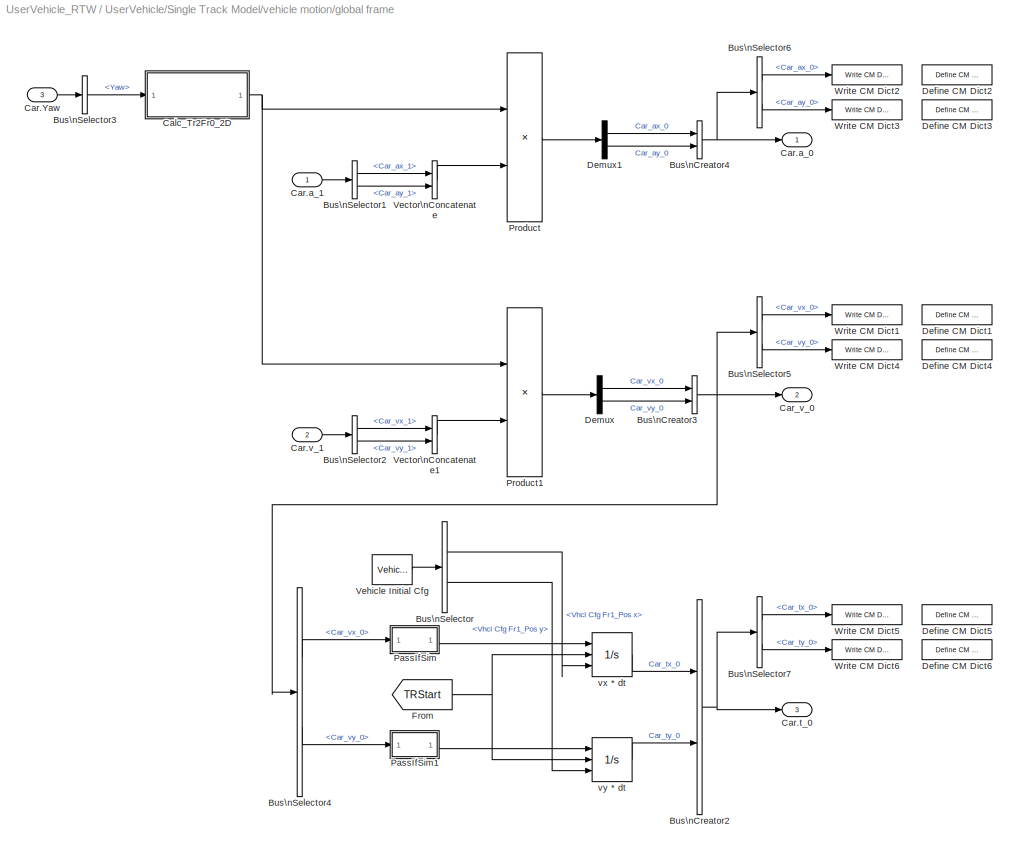
BLOCK [SubSystem] UserVehicle/Single Track Model/vehicle motion/global frame
  Ports = [3, 3]
  RequestExecContextInheritance = off
  SID = 2111
BLOCK [BusCreator] UserVehicle/Single Track Model/vehicle motion/global frame/Bus\nCreator2
  DisplayOption = bar
  InheritFromInputs = on
  Inputs = 2
  Ports = [2, 1]
  SID = 2115
BLOCK [BusCreator] UserVehicle/Single Track Model/vehicle motion/global frame/Bus\nCreator3
  DisplayOption = bar
  InheritFromInputs = on
  Inputs = 2
  Ports = [2, 1]
  SID = 2116
BLOCK [BusCreator] UserVehicle/Single Track Model/vehicle motion/global frame/Bus\nCreator4
  DisplayOption = bar
  InheritFromInputs = on
  Inputs = 2
  Ports = [2, 1]
  SID = 2117
BLOCK [BusSelector] UserVehicle/Single Track Model/vehicle motion/global frame/Bus\nSelector
  OutputSignals = Vhcl Cfg Fr1_Pos x,Vhcl Cfg Fr1_Pos y
  Ports = [1, 2]
  SID = 2118
BLOCK [BusSelector] UserVehicle/Single Track Model/vehicle motion/global frame/Bus\nSelector1
  OutputSignals = Car_ax_1,Car_ay_1
  Ports = [1, 2]
  SID = 2119
BLOCK [BusSelector] UserVehicle/Single Track Model/vehicle motion/global frame/Bus\nSelector2
  OutputSignals = Car_vx_1,Car_vy_1
  Ports = [1, 2]
  SID = 2120
BLOCK [BusSelector] UserVehicle/Single Track Model/vehicle motion/global frame/Bus\nSelector3
  OutputSignals = Yaw
  Ports = [1, 1]
  SID = 2121
BLOCK [BusSelector] UserVehicle/Single Track Model/vehicle motion/global frame/Bus\nSelector4
  OutputSignals = Car_vx_0,Car_vy_0
  Ports = [1, 2]
  SID = 2122
BLOCK [BusSelector] UserVehicle/Single Track Model/vehicle motion/global frame/Bus\nSelector5
  OutputSignals = Car_vx_0,Car_vy_0
  Ports = [1, 2]
  SID = 2123
BLOCK [BusSelector] UserVehicle/Single Track Model/vehicle motion/global frame/Bus\nSelector6
  OutputSignals = Car_ax_0,Car_ay_0
  Ports = [1, 2]
  SID = 2124
BLOCK [BusSelector] UserVehicle/Single Track Model/vehicle motion/global frame/Bus\nSelector7
  OutputSignals = Car_tx_0,Car_ty_0
  Ports = [1, 2]
  SID = 2125
BLOCK [SubSystem] UserVehicle/Single Track Model/vehicle motion/global frame/Calc_Tr2Fr0_2D
  Ports = [1, 1]
  RequestExecContextInheritance = off
  SID = 2126
BLOCK [SubSystem] UserVehicle/Single Track Model/vehicle motion/global frame/Calc_Tr2Fr0_2D/Create 2x2 Matrix
  Ports = [4, 1]
  RequestExecContextInheritance = off
  SID = 2128
BLOCK [Outport] UserVehicle/Single Track Model/vehicle motion/global frame/Calc_Tr2Fr0_2D/Create 2x2 Matrix/A
  SID = 2136
  VectorParamsAs1DForOutWhenUnconnected = off
BLOCK [Inport] UserVehicle/Single Track Model/vehicle motion/global frame/Calc_Tr2Fr0_2D/Create 2x2 Matrix/A00
  SID = 2129
BLOCK [Inport] UserVehicle/Single Track Model/vehicle motion/global frame/Calc_Tr2Fr0_2D/Create 2x2 Matrix/A01
  Port = 2
  SID = 2130
BLOCK [Inport] UserVehicle/Single Track Model/vehicle motion/global frame/Calc_Tr2Fr0_2D/Create 2x2 Matrix/A10
  Port = 3
  SID = 2131
BLOCK [Inport] UserVehicle/Single Track Model/vehicle motion/global frame/Calc_Tr2Fr0_2D/Create 2x2 Matrix/A11
  Port = 4
  SID = 2132
BLOCK [Concatenate] UserVehicle/Single Track Model/vehicle motion/global frame/Calc_Tr2Fr0_2D/Create 2x2 Matrix/Matrix\nConcatenate
  Mode = Multidimensional array
  Ports = [2, 1]
  SID = 2133
BLOCK [Concatenate] UserVehicle/Single Track Model/vehicle motion/global frame/Calc_Tr2Fr0_2D/Create 2x2 Matrix/Matrix\nConcatenate1
  ConcatenateDimension = 2
  Mode = Multidimensional array
  Ports = [2, 1]
  SID = 2134
BLOCK [Concatenate] UserVehicle/Single Track Model/vehicle motion/global frame/Calc_Tr2Fr0_2D/Create 2x2 Matrix/Matrix\nConcatenate2
  ConcatenateDimension = 2
  Mode = Multidimensional array
  Ports = [2, 1]
  SID = 2135
BLOCK [Gain] UserVehicle/Single Track Model/vehicle motion/global frame/Calc_Tr2Fr0_2D/Gain
  Gain = -1
  SID = 2137
BLOCK [Outport] UserVehicle/Single Track Model/vehicle motion/global frame/Calc_Tr2Fr0_2D/Tra2Fr0
  SID = 2140
  VectorParamsAs1DForOutWhenUnconnected = off
BLOCK [Trigonometry] UserVehicle/Single Track Model/vehicle motion/global frame/Calc_Tr2Fr0_2D/Trigonometric\nFunction
  Operator = cos
  Ports = [1, 1]
  SID = 2138
BLOCK [Trigonometry] UserVehicle/Single Track Model/vehicle motion/global frame/Calc_Tr2Fr0_2D/Trigonometric\nFunction1
  Ports = [1, 1]
  SID = 2139
BLOCK [Inport] UserVehicle/Single Track Model/vehicle motion/global frame/Calc_Tr2Fr0_2D/rz
  SID = 2127
BLOCK [Inport] UserVehicle/Single Track Model/vehicle motion/global frame/Car.Yaw
  Port = 3
  SID = 2114
BLOCK [Outport] UserVehicle/Single Track Model/vehicle motion/global frame/Car.a_0
  SID = 2177
  VectorParamsAs1DForOutWhenUnconnected = off
BLOCK [Inport] UserVehicle/Single Track Model/vehicle motion/global frame/Car.a_1
  SID = 2112
BLOCK [Outport] UserVehicle/Single Track Model/vehicle motion/global frame/Car.t_0
  Port = 3
  SID = 2179
  VectorParamsAs1DForOutWhenUnconnected = off
BLOCK [Inport] UserVehicle/Single Track Model/vehicle motion/global frame/Car.v_1
  Port = 2
  SID = 2113
BLOCK [Outport] UserVehicle/Single Track Model/vehicle motion/global frame/Car_v_0
  Port = 2
  SID = 2178
  VectorParamsAs1DForOutWhenUnconnected = off
BLOCK [Reference] UserVehicle/Single Track Model/vehicle motion/global frame/Define CM Dict1  REF=CarMaker4SL/Define CM Dict
  Ports = []
  SID = 2141
  SourceBlock = CarMaker4SL/Define CM Dict
  SourceProductName = CarMaker4SL
  SourceType = Define CarMaker Dictionary Variable
  xdvaplace = None
  xfirststate = 0
  xinitial = 0
  xmono = off
  xname = Car.vx_0
  xnstates = 0
  xtype = Double4
  xunit = m/s
BLOCK [Reference] UserVehicle/Single Track Model/vehicle motion/global frame/Define CM Dict2  REF=CarMaker4SL/Define CM Dict
  Ports = []
  SID = 2142
  SourceBlock = CarMaker4SL/Define CM Dict
  SourceProductName = CarMaker4SL
  SourceType = Define CarMaker Dictionary Variable
  xdvaplace = None
  xfirststate = 0
  xinitial = 0
  xmono = off
  xname = Car.ax_0
  xnstates = 0
  xtype = Double4
  xunit = m/s^2
BLOCK [Reference] UserVehicle/Single Track Model/vehicle motion/global frame/Define CM Dict3  REF=CarMaker4SL/Define CM Dict
  Ports = []
  SID = 2143
  SourceBlock = CarMaker4SL/Define CM Dict
  SourceProductName = CarMaker4SL
  SourceType = Define CarMaker Dictionary Variable
  xdvaplace = None
  xfirststate = 0
  xinitial = 0
  xmono = off
  xname = Car.ay_0
  xnstates = 0
  xtype = Double4
  xunit = m/s^2
BLOCK [Reference] UserVehicle/Single Track Model/vehicle motion/global frame/Define CM Dict4  REF=CarMaker4SL/Define CM Dict
  Ports = []
  SID = 2144
  SourceBlock = CarMaker4SL/Define CM Dict
  SourceProductName = CarMaker4SL
  SourceType = Define CarMaker Dictionary Variable
  xdvaplace = None
  xfirststate = 0
  xinitial = 0
  xmono = off
  xname = Car.vy_0
  xnstates = 0
  xtype = Double4
  xunit = m/s
BLOCK [Reference] UserVehicle/Single Track Model/vehicle motion/global frame/Define CM Dict5  REF=CarMaker4SL/Define CM Dict
  Ports = []
  SID = 2145
  SourceBlock = CarMaker4SL/Define CM Dict
  SourceProductName = CarMaker4SL
  SourceType = Define CarMaker Dictionary Variable
  xdvaplace = None
  xfirststate = 0
  xinitial = 0
  xmono = off
  xname = Car.tx_0
  xnstates = 0
  xtype = Double4
  xunit = m
BLOCK [Reference] UserVehicle/Single Track Model/vehicle motion/global frame/Define CM Dict6  REF=CarMaker4SL/Define CM Dict
  Ports = []
  SID = 2146
  SourceBlock = CarMaker4SL/Define CM Dict
  SourceProductName = CarMaker4SL
  SourceType = Define CarMaker Dictionary Variable
  xdvaplace = None
  xfirststate = 0
  xinitial = 0
  xmono = off
  xname = Car.ty_0
  xnstates = 0
  xtype = Double4
  xunit = m
BLOCK [Demux] UserVehicle/Single Track Model/vehicle motion/global frame/Demux
  Outputs = 2
  Ports = [1, 2]
  SID = 2147
BLOCK [Demux] UserVehicle/Single Track Model/vehicle motion/global frame/Demux1
  Outputs = 2
  Ports = [1, 2]
  SID = 2148
BLOCK [From] UserVehicle/Single Track Model/vehicle motion/global frame/From
  CloseFcn = tagdialog Close
  GotoTag = TRStart
  SID = 2149
  TagVisibility = global
BLOCK [SubSystem] UserVehicle/Single Track Model/vehicle motion/global frame/PassIfSim
  Ports = [1, 1]
  RequestExecContextInheritance = off
  SID = 2150
BLOCK [Product] UserVehicle/Single Track Model/vehicle motion/global frame/PassIfSim/   
  InputSameDT = on
  OutDataTypeStr = Inherit: Same as first input
  Ports = [2, 1]
  SID = 2152
  SaturateOnIntegerOverflow = on
BLOCK [DataTypeConversion] UserVehicle/Single Track Model/vehicle motion/global frame/PassIfSim/Data Type Conversion
  RndMeth = Floor
  SID = 2153
  SaturateOnIntegerOverflow = off
BLOCK [From] UserVehicle/Single Track Model/vehicle motion/global frame/PassIfSim/From1
  CloseFcn = tagdialog Close
  GotoTag = TRSim
  SID = 2154
  TagVisibility = global
BLOCK [Inport] UserVehicle/Single Track Model/vehicle motion/global frame/PassIfSim/In1
  SID = 2151
BLOCK [Outport] UserVehicle/Single Track Model/vehicle motion/global frame/PassIfSim/Out1
  SID = 2155
  VectorParamsAs1DForOutWhenUnconnected = off
BLOCK [SubSystem] UserVehicle/Single Track Model/vehicle motion/global frame/PassIfSim1
  Ports = [1, 1]
  RequestExecContextInheritance = off
  SID = 2157
BLOCK [Product] UserVehicle/Single Track Model/vehicle motion/global frame/PassIfSim1/   
  InputSameDT = on
  OutDataTypeStr = Inherit: Same as first input
  Ports = [2, 1]
  SID = 2159
  SaturateOnIntegerOverflow = on
BLOCK [DataTypeConversion] UserVehicle/Single Track Model/vehicle motion/global frame/PassIfSim1/Data Type Conversion
  RndMeth = Floor
  SID = 2160
  SaturateOnIntegerOverflow = off
BLOCK [From] UserVehicle/Single Track Model/vehicle motion/global frame/PassIfSim1/From1
  CloseFcn = tagdialog Close
  GotoTag = TRSim
  SID = 2161
  TagVisibility = global
BLOCK [Inport] UserVehicle/Single Track Model/vehicle motion/global frame/PassIfSim1/In1
  SID = 2158
BLOCK [Outport] UserVehicle/Single Track Model/vehicle motion/global frame/PassIfSim1/Out1
  SID = 2162
  VectorParamsAs1DForOutWhenUnconnected = off
BLOCK [Product] UserVehicle/Single Track Model/vehicle motion/global frame/Product
  Multiplication = Matrix(*)
  Ports = [2, 1]
  RndMeth = Zero
  SID = 2164
BLOCK [Product] UserVehicle/Single Track Model/vehicle motion/global frame/Product1
  Multiplication = Matrix(*)
  Ports = [2, 1]
  RndMeth = Zero
  SID = 2165
BLOCK [Concatenate] UserVehicle/Single Track Model/vehicle motion/global frame/Vector\nConcatenate
  Ports = [2, 1]
  SID = 2166
BLOCK [Concatenate] UserVehicle/Single Track Model/vehicle motion/global frame/Vector\nConcatenate1
  Ports = [2, 1]
  SID = 2167
BLOCK [Reference] UserVehicle/Single Track Model/vehicle motion/global frame/Vehicle Initial Cfg  REF=CarMaker4SL/Vehicle Initial Cfg
  Ports = [0, 1]
  SID = 2168
  SourceBlock = CarMaker4SL/Vehicle Initial Cfg
  SourceProductName = CarMaker4SL
  SourceType = Vehicle Initial Configuration Values
BLOCK [Reference] UserVehicle/Single Track Model/vehicle motion/global frame/Write CM Dict1  REF=CarMaker4SL/Write CM Dict
  Ports = [1]
  SID = 2169
  SourceBlock = CarMaker4SL/Write CM Dict
  SourceProductName = CarMaker4SL
  SourceType = Write CarMaker Dictionary Variable(s)
  xname = Car.vx_0
  xsync = off
BLOCK [Reference] UserVehicle/Single Track Model/vehicle motion/global frame/Write CM Dict2  REF=CarMaker4SL/Write CM Dict
  Ports = [1]
  SID = 2170
  SourceBlock = CarMaker4SL/Write CM Dict
  SourceProductName = CarMaker4SL
  SourceType = Write CarMaker Dictionary Variable(s)
  xname = Car.ax_0
  xsync = off
BLOCK [Reference] UserVehicle/Single Track Model/vehicle motion/global frame/Write CM Dict3  REF=CarMaker4SL/Write CM Dict
  Ports = [1]
  SID = 2171
  SourceBlock = CarMaker4SL/Write CM Dict
  SourceProductName = CarMaker4SL
  SourceType = Write CarMaker Dictionary Variable(s)
  xname = Car.ay_0
  xsync = off
BLOCK [Reference] UserVehicle/Single Track Model/vehicle motion/global frame/Write CM Dict4  REF=CarMaker4SL/Write CM Dict
  Ports = [1]
  SID = 2172
  SourceBlock = CarMaker4SL/Write CM Dict
  SourceProductName = CarMaker4SL
  SourceType = Write CarMaker Dictionary Variable(s)
  xname = Car.vy_0
  xsync = off
BLOCK [Reference] UserVehicle/Single Track Model/vehicle motion/global frame/Write CM Dict5  REF=CarMaker4SL/Write CM Dict
  Ports = [1]
  SID = 2173
  SourceBlock = CarMaker4SL/Write CM Dict
  SourceProductName = CarMaker4SL
  SourceType = Write CarMaker Dictionary Variable(s)
  xname = Car.tx_0
  xsync = off
BLOCK [Reference] UserVehicle/Single Track Model/vehicle motion/global frame/Write CM Dict6  REF=CarMaker4SL/Write CM Dict
  Ports = [1]
  SID = 2174
  SourceBlock = CarMaker4SL/Write CM Dict
  SourceProductName = CarMaker4SL
  SourceType = Write CarMaker Dictionary Variable(s)
  xname = Car.ty_0
  xsync = off
BLOCK [Integrator] UserVehicle/Single Track Model/vehicle motion/global frame/vx * dt
  ExternalReset = level
  InitialCondition = [0,0]
  InitialConditionSource = external
  Ports = [3, 1]
  SID = 2175
BLOCK [Integrator] UserVehicle/Single Track Model/vehicle motion/global frame/vy * dt
  ExternalReset = level
  InitialCondition = [0,0]
  InitialConditionSource = external
  Ports = [3, 1]
  SID = 2176
BLOCK [SubSystem] UserVehicle/Single Track Model/vehicle motion/vehicle frame
  Ports = [2, 3]
  RequestExecContextInheritance = off
  SID = 2180
BLOCK [Product] UserVehicle/Single Track Model/vehicle motion/vehicle frame/      
  InputSameDT = on
  Inputs = */
  OutDataTypeStr = Inherit: Same as first input
  Ports = [2, 1]
  SID = 2183
  SaturateOnIntegerOverflow = on
BLOCK [Product] UserVehicle/Single Track Model/vehicle motion/vehicle frame/      1
  InputSameDT = on
  Inputs = */
  OutDataTypeStr = Inherit: Same as first input
  Ports = [2, 1]
  SID = 2184
  SaturateOnIntegerOverflow = on
BLOCK [Product] UserVehicle/Single Track Model/vehicle motion/vehicle frame/      2
  InputSameDT = on
  Inputs = **
  OutDataTypeStr = Inherit: Same as first input
  Ports = [2, 1]
  SID = 2185
  SaturateOnIntegerOverflow = on
BLOCK [SubSystem] UserVehicle/Single Track Model/vehicle motion/vehicle frame/Aerodynamics
  Ports = [1, 1]
  RequestExecContextInheritance = off
  SID = 2186
BLOCK [Constant] UserVehicle/Single Track Model/vehicle motion/vehicle frame/Aerodynamics/A
  SID = 2188
  Value = 1.7
BLOCK [Inport] UserVehicle/Single Track Model/vehicle motion/vehicle frame/Aerodynamics/Car.vx_1
  SID = 2187
BLOCK [Constant] UserVehicle/Single Track Model/vehicle motion/vehicle frame/Aerodynamics/Constant6
  SID = 2189
  Value = 0.5
BLOCK [Outport] UserVehicle/Single Track Model/vehicle motion/vehicle frame/Aerodynamics/Fx.Aero
  SID = 2194
  VectorParamsAs1DForOutWhenUnconnected = off
BLOCK [Product] UserVehicle/Single Track Model/vehicle motion/vehicle frame/Aerodynamics/Product3
  InputSameDT = on
  Inputs = 5
  OutDataTypeStr = Inherit: Same as first input
  Ports = [5, 1]
  SID = 2190
  SaturateOnIntegerOverflow = on
BLOCK [Product] UserVehicle/Single Track Model/vehicle motion/vehicle frame/Aerodynamics/Product4
  InputSameDT = on
  OutDataTypeStr = Inherit: Same as first input
  Ports = [2, 1]
  SID = 2191
  SaturateOnIntegerOverflow = on
BLOCK [Constant] UserVehicle/Single Track Model/vehicle motion/vehicle frame/Aerodynamics/cW
  SID = 2192
  Value = 0.5
BLOCK [Constant] UserVehicle/Single Track Model/vehicle motion/vehicle frame/Aerodynamics/rho
  SID = 2193
  Value = 1.205
BLOCK [BusCreator] UserVehicle/Single Track Model/vehicle motion/vehicle frame/Bus\nCreator
  DisplayOption = bar
  InheritFromInputs = on
  Inputs = 2
  Ports = [2, 1]
  SID = 2195
BLOCK [BusCreator] UserVehicle/Single Track Model/vehicle motion/vehicle frame/Bus\nCreator1
  DisplayOption = bar
  InheritFromInputs = on
  Inputs = 2
  Ports = [2, 1]
  SID = 2196
BLOCK [BusSelector] UserVehicle/Single Track Model/vehicle motion/vehicle frame/Bus\nSelector
  OutputSignals = Car_ax_1,Car_ay_1
  Ports = [1, 2]
  SID = 2197
BLOCK [BusSelector] UserVehicle/Single Track Model/vehicle motion/vehicle frame/Bus\nSelector1
  OutputSignals = Car_F_Fx_1,Car_R_Fx_1
  Ports = [1, 2]
  SID = 2198
BLOCK [BusSelector] UserVehicle/Single Track Model/vehicle motion/vehicle frame/Bus\nSelector2
  OutputSignals = Car_F_Fy_1,Car_R_Fy_1
  Ports = [1, 2]
  SID = 2199
BLOCK [BusSelector] UserVehicle/Single Track Model/vehicle motion/vehicle frame/Bus\nSelector3
  OutputSignals = Car_vx_1,Car_vy_1
  Ports = [1, 2]
  SID = 2200
BLOCK [BusSelector] UserVehicle/Single Track Model/vehicle motion/vehicle frame/Bus\nSelector4
  OutputSignals = beta
  Ports = [1, 1]
  SID = 2201
BLOCK [Inport] UserVehicle/Single Track Model/vehicle motion/vehicle frame/Car.Beta
  Port = 2
  SID = 2182
BLOCK [Outport] UserVehicle/Single Track Model/vehicle motion/vehicle frame/Car.Dist
  Port = 3
  SID = 2242
  VectorParamsAs1DForOutWhenUnconnected = off
BLOCK [Inport] UserVehicle/Single Track Model/vehicle motion/vehicle frame/Car.Whl.F_1
  SID = 2181
BLOCK [Outport] UserVehicle/Single Track Model/vehicle motion/vehicle frame/Car.a_1
  SID = 2240
  VectorParamsAs1DForOutWhenUnconnected = off
BLOCK [Outport] UserVehicle/Single Track Model/vehicle motion/vehicle frame/Car.v_1
  Port = 2
  SID = 2241
  VectorParamsAs1DForOutWhenUnconnected = off
BLOCK [SubSystem] UserVehicle/Single Track Model/vehicle motion/vehicle frame/Car.vx_1
  Ports = [1, 1]
  RequestExecContextInheritance = off
  SID = 2202
BLOCK [Constant] UserVehicle/Single Track Model/vehicle motion/vehicle frame/Car.vx_1/Constant1
  SID = 2204
  Value = 0.1
BLOCK [From] UserVehicle/Single Track Model/vehicle motion/vehicle frame/Car.vx_1/From
  CloseFcn = tagdialog Close
  GotoTag = TRStart
  SID = 2205
  TagVisibility = global
BLOCK [SubSystem] UserVehicle/Single Track Model/vehicle motion/vehicle frame/Car.vx_1/PassIfSim
  Ports = [1, 1]
  RequestExecContextInheritance = off
  SID = 2206
BLOCK [Product] UserVehicle/Single Track Model/vehicle motion/vehicle frame/Car.vx_1/PassIfSim/   
  InputSameDT = on
  OutDataTypeStr = Inherit: Same as first input
  Ports = [2, 1]
  SID = 2208
  SaturateOnIntegerOverflow = on
BLOCK [DataTypeConversion] UserVehicle/Single Track Model/vehicle motion/vehicle frame/Car.vx_1/PassIfSim/Data Type Conversion
  RndMeth = Floor
  SID = 2209
  SaturateOnIntegerOverflow = off
BLOCK [From] UserVehicle/Single Track Model/vehicle motion/vehicle frame/Car.vx_1/PassIfSim/From1
  CloseFcn = tagdialog Close
  GotoTag = TRSim
  SID = 2210
  TagVisibility = global
BLOCK [Inport] UserVehicle/Single Track Model/vehicle motion/vehicle frame/Car.vx_1/PassIfSim/In1
  SID = 2207
BLOCK [Outport] UserVehicle/Single Track Model/vehicle motion/vehicle frame/Car.vx_1/PassIfSim/Out1
  SID = 2211
  VectorParamsAs1DForOutWhenUnconnected = off
BLOCK [Reference] UserVehicle/Single Track Model/vehicle motion/vehicle frame/Car.vx_1/Read CM Parameter  REF=CarMaker4SL/Read CM Parameter
  Ports = [0, 1]
  SID = 2213
  SourceBlock = CarMaker4SL/Read CM Parameter
  SourceProductName = CarMaker4SL
  SourceType = Read CarMaker Infofile Parameter
  xdefaults = 0
  xfile = Testrun
  xkey = DrivMan.Man.Start.Velocity
  xmuxed = on
  xnout = 1
BLOCK [Inport] UserVehicle/Single Track Model/vehicle motion/vehicle frame/Car.vx_1/ax
  SID = 2203
BLOCK [Gain] UserVehicle/Single Track Model/vehicle motion/vehicle frame/Car.vx_1/kmh2ms
  Gain = 1000/3600
  OutDataTypeStr = Inherit: Inherit via back propagation
  ParamDataTypeStr = Inherit: Same as input
  SID = 2214
  SaturateOnIntegerOverflow = on
BLOCK [MinMax] UserVehicle/Single Track Model/vehicle motion/vehicle frame/Car.vx_1/vMin
  Function = max
  InputSameDT = on
  Inputs = 2
  Ports = [2, 1]
  SID = 2215
  SaturateOnIntegerOverflow = on
BLOCK [Outport] UserVehicle/Single Track Model/vehicle motion/vehicle frame/Car.vx_1/v_1
  SID = 2217
  VectorParamsAs1DForOutWhenUnconnected = off
BLOCK [Integrator] UserVehicle/Single Track Model/vehicle motion/vehicle frame/Car.vx_1/v_dot * dt
  ExternalReset = level
  InitialCondition = 22.222
  InitialConditionSource = external
  Ports = [3, 1]
  SID = 2216
BLOCK [Reference] UserVehicle/Single Track Model/vehicle motion/vehicle frame/Define CM Dict1  REF=CarMaker4SL/Define CM Dict
  Ports = []
  SID = 2218
  SourceBlock = CarMaker4SL/Define CM Dict
  SourceProductName = CarMaker4SL
  SourceType = Define CarMaker Dictionary Variable
  xdvaplace = None
  xfirststate = 0
  xinitial = 0
  xmono = off
  xname = Car.vx_1
  xnstates = 0
  xtype = Double4
  xunit = m/s
BLOCK [Reference] UserVehicle/Single Track Model/vehicle motion/vehicle frame/Define CM Dict2  REF=CarMaker4SL/Define CM Dict
  Ports = []
  SID = 2219
  SourceBlock = CarMaker4SL/Define CM Dict
  SourceProductName = CarMaker4SL
  SourceType = Define CarMaker Dictionary Variable
  xdvaplace = None
  xfirststate = 0
  xinitial = 0
  xmono = off
  xname = Car.ax_1
  xnstates = 0
  xtype = Double4
  xunit = m/s^2
BLOCK [Reference] UserVehicle/Single Track Model/vehicle motion/vehicle frame/Define CM Dict3  REF=CarMaker4SL/Define CM Dict
  Ports = []
  SID = 2220
  SourceBlock = CarMaker4SL/Define CM Dict
  SourceProductName = CarMaker4SL
  SourceType = Define CarMaker Dictionary Variable
  xdvaplace = None
  xfirststate = 0
  xinitial = 0
  xmono = off
  xname = Car.ay_1
  xnstates = 0
  xtype = Double4
  xunit = m/s^2
BLOCK [Reference] UserVehicle/Single Track Model/vehicle motion/vehicle frame/Define CM Dict4  REF=CarMaker4SL/Define CM Dict
  Ports = []
  SID = 2221
  SourceBlock = CarMaker4SL/Define CM Dict
  SourceProductName = CarMaker4SL
  SourceType = Define CarMaker Dictionary Variable
  xdvaplace = None
  xfirststate = 0
  xinitial = 0
  xmono = off
  xname = Car.vy_1
  xnstates = 0
  xtype = Double4
  xunit = m/s
BLOCK [From] UserVehicle/Single Track Model/vehicle motion/vehicle frame/From1
  CloseFcn = tagdialog Close
  GotoTag = TRStart
  SID = 2222
  TagVisibility = global
BLOCK [SubSystem] UserVehicle/Single Track Model/vehicle motion/vehicle frame/PassIfSim2
  Ports = [1, 1]
  RequestExecContextInheritance = off
  SID = 2223
BLOCK [Product] UserVehicle/Single Track Model/vehicle motion/vehicle frame/PassIfSim2/   
  InputSameDT = on
  OutDataTypeStr = Inherit: Same as first input
  Ports = [2, 1]
  SID = 2225
  SaturateOnIntegerOverflow = on
BLOCK [DataTypeConversion] UserVehicle/Single Track Model/vehicle motion/vehicle frame/PassIfSim2/Data Type Conversion
  RndMeth = Floor
  SID = 2226
  SaturateOnIntegerOverflow = off
BLOCK [From] UserVehicle/Single Track Model/vehicle motion/vehicle frame/PassIfSim2/From1
  CloseFcn = tagdialog Close
  GotoTag = TRSim
  SID = 2227
  TagVisibility = global
BLOCK [Inport] UserVehicle/Single Track Model/vehicle motion/vehicle frame/PassIfSim2/In1
  SID = 2224
BLOCK [Outport] UserVehicle/Single Track Model/vehicle motion/vehicle frame/PassIfSim2/Out1
  SID = 2228
  VectorParamsAs1DForOutWhenUnconnected = off
BLOCK [Sum] UserVehicle/Single Track Model/vehicle motion/vehicle frame/Sum
  IconShape = rectangular
  InputSameDT = on
  Inputs = -++
  OutDataTypeStr = Inherit: Same as first input
  Ports = [3, 1]
  SID = 2230
  SaturateOnIntegerOverflow = on
BLOCK [Sum] UserVehicle/Single Track Model/vehicle motion/vehicle frame/Sum1
  IconShape = rectangular
  InputSameDT = on
  OutDataTypeStr = Inherit: Same as first input
  Ports = [2, 1]
  SID = 2231
  SaturateOnIntegerOverflow = on
BLOCK [Trigonometry] UserVehicle/Single Track Model/vehicle motion/vehicle frame/Trigonometric\nFunction
  Operator = tan
  Ports = [1, 1]
  SID = 2232
BLOCK [Reference] UserVehicle/Single Track Model/vehicle motion/vehicle frame/Write CM Dict1  REF=CarMaker4SL/Write CM Dict
  Ports = [1]
  SID = 2233
  SourceBlock = CarMaker4SL/Write CM Dict
  SourceProductName = CarMaker4SL
  SourceType = Write CarMaker Dictionary Variable(s)
  xname = Car.vx_1
  xsync = off
BLOCK [Reference] UserVehicle/Single Track Model/vehicle motion/vehicle frame/Write CM Dict2  REF=CarMaker4SL/Write CM Dict
  Ports = [1]
  SID = 2234
  SourceBlock = CarMaker4SL/Write CM Dict
  SourceProductName = CarMaker4SL
  SourceType = Write CarMaker Dictionary Variable(s)
  xname = Car.ax_1
  xsync = off
BLOCK [Reference] UserVehicle/Single Track Model/vehicle motion/vehicle frame/Write CM Dict3  REF=CarMaker4SL/Write CM Dict
  Ports = [1]
  SID = 2235
  SourceBlock = CarMaker4SL/Write CM Dict
  SourceProductName = CarMaker4SL
  SourceType = Write CarMaker Dictionary Variable(s)
  xname = Car.ay_1
  xsync = off
BLOCK [Reference] UserVehicle/Single Track Model/vehicle motion/vehicle frame/Write CM Dict4  REF=CarMaker4SL/Write CM Dict
  Ports = [1]
  SID = 2236
  SourceBlock = CarMaker4SL/Write CM Dict
  SourceProductName = CarMaker4SL
  SourceType = Write CarMaker Dictionary Variable(s)
  xname = Car.vy_1
  xsync = off
BLOCK [Integrator] UserVehicle/Single Track Model/vehicle motion/vehicle frame/dist
  ExternalReset = level
  Ports = [2, 1]
  SID = 2237
BLOCK [Constant] UserVehicle/Single Track Model/vehicle motion/vehicle frame/mass
  SID = 2238
  Value = Car_Bdy1_mass
BLOCK [Constant] UserVehicle/Single Track Model/vehicle motion/vehicle frame/mass1
  SID = 2239
  Value = Car_Bdy1_mass
BLOCK [SubSystem] UserVehicle/Single Track Model/wheel torques
  Ports = [1, 1]
  RequestExecContextInheritance = off
  SID = 2249
BLOCK [Sum] UserVehicle/Single Track Model/wheel torques/Add
  IconShape = rectangular
  Inputs = +-
  Ports = [2, 1]
  SID = 2251
BLOCK [Sum] UserVehicle/Single Track Model/wheel torques/Add1
  IconShape = rectangular
  Inputs = +-
  Ports = [2, 1]
  SID = 2252
BLOCK [BusCreator] UserVehicle/Single Track Model/wheel torques/Bus\nCreator
  DisplayOption = bar
  InheritFromInputs = on
  Inputs = 2
  Ports = [2, 1]
  SID = 2253
BLOCK [BusSelector] UserVehicle/Single Track Model/wheel torques/Bus\nSelector1
  OutputSignals = Car_Tire_F.RollResist,Car_Tire_F.LongFrc,Car_Tire_F.rBelt_eff
  Ports = [1, 3]
  SID = 2254
BLOCK [BusSelector] UserVehicle/Single Track Model/wheel torques/Bus\nSelector2
  OutputSignals = Car_Tire_R.RollResist,Car_Tire_R.LongFrc,Car_Tire_R.rBelt_eff
  Ports = [1, 3]
  SID = 2255
BLOCK [Outport] UserVehicle/Single Track Model/wheel torques/Car.Trq2W
  SID = 2258
  VectorParamsAs1DForOutWhenUnconnected = off
BLOCK [Product] UserVehicle/Single Track Model/wheel torques/Product
  Ports = [2, 1]
  RndMeth = Zero
  SID = 2256
BLOCK [Product] UserVehicle/Single Track Model/wheel torques/Product1
  Ports = [2, 1]
  RndMeth = Zero
  SID = 2257
BLOCK [Inport] UserVehicle/Single Track Model/wheel torques/WheelTrq_1
  SID = 2250
BLOCK [SubSystem] UserVehicle/Single Track Model/yaw
  Ports = [1, 1]
  RequestExecContextInheritance = off
  SID = 2259
BLOCK [Gain] UserVehicle/Single Track Model/yaw/1// J
  Gain = 1/1322.5
  OutDataTypeStr = Inherit: Same as input
  ParamDataTypeStr = Inherit: Same as input
  SID = 2261
  SaturateOnIntegerOverflow = on
BLOCK [BusCreator] UserVehicle/Single Track Model/yaw/Bus\nCreator
  DisplayOption = bar
  InheritFromInputs = on
  Inputs = 3
  Ports = [3, 1]
  SID = 2262
BLOCK [BusSelector] UserVehicle/Single Track Model/yaw/Bus\nSelector
  OutputSignals = Vhcl Cfg Yaw
  Ports = [1, 1]
  SID = 2263
BLOCK [BusSelector] UserVehicle/Single Track Model/yaw/Bus\nSelector1
  OutputSignals = Car_F_Fy_1,Car_R_Fy_1
  Ports = [1, 2]
  SID = 2264
BLOCK [Outport] UserVehicle/Single Track Model/yaw/Car.Yaw
  SID = 2276
  VectorParamsAs1DForOutWhenUnconnected = off
BLOCK [From] UserVehicle/Single Track Model/yaw/From
  CloseFcn = tagdialog Close
  GotoTag = TRStart
  SID = 2265
  TagVisibility = global
BLOCK [From] UserVehicle/Single Track Model/yaw/From1
  CloseFcn = tagdialog Close
  GotoTag = TRSim
  SID = 2266
  TagVisibility = global
BLOCK [Product] UserVehicle/Single Track Model/yaw/Multiply
  Inputs = **
  OutDataTypeStr = double
  Ports = [2, 1]
  SID = 2267
BLOCK [Product] UserVehicle/Single Track Model/yaw/S_F * l_F 
  InputSameDT = on
  OutDataTypeStr = Inherit: Same as first input
  Ports = [2, 1]
  SID = 2268
  SaturateOnIntegerOverflow = on
BLOCK [Product] UserVehicle/Single Track Model/yaw/S_R * l_R 
  InputSameDT = on
  OutDataTypeStr = Inherit: Same as first input
  Ports = [2, 1]
  SID = 2269
  SaturateOnIntegerOverflow = on
BLOCK [Sum] UserVehicle/Single Track Model/yaw/Sum
  IconShape = rectangular
  InputSameDT = on
  Inputs = +-
  OutDataTypeStr = Inherit: Same as first input
  Ports = [2, 1]
  SID = 2270
  SaturateOnIntegerOverflow = on
BLOCK [Reference] UserVehicle/Single Track Model/yaw/Vehicle Initial Cfg  REF=CarMaker4SL/Vehicle Initial Cfg
  Ports = [0, 1]
  SID = 2271
  SourceBlock = CarMaker4SL/Vehicle Initial Cfg
  SourceProductName = CarMaker4SL
  SourceType = Vehicle Initial Configuration Values
BLOCK [Inport] UserVehicle/Single Track Model/yaw/WheelFrc_1
  SID = 2260
BLOCK [Integrator] UserVehicle/Single Track Model/yaw/aYaw * dt
  ExternalReset = level
  Ports = [2, 1]
  SID = 2272
BLOCK [Constant] UserVehicle/Single Track Model/yaw/l__F
  SID = 2273
  Value = Car_WhlBaseF
BLOCK [Constant] UserVehicle/Single Track Model/yaw/l__R
  SID = 2274
  Value = -Car_WhlBaseR
BLOCK [Integrator] UserVehicle/Single Track Model/yaw/vYaw * dt
  ExternalReset = level
  InitialConditionSource = external
  Ports = [3, 1]
  SID = 2275
BLOCK [Terminator] UserVehicle/Terminator1
  SID = 2289
BLOCK [Terminator] UserVehicle/Terminator2
  SID = 2290
BLOCK [Terminator] UserVehicle/Terminator3
  SID = 2291
BLOCK [Outport] UserVehicle/Vhcl.Fr1A
  Port = 9
  SID = 2300
  VectorParamsAs1DForOutWhenUnconnected = off
BLOCK [Inport] UserVehicle/Vhcl.Misc
  Port = 3
  SID = 1520
BLOCK [Outport] UserVehicle/Vhcl.Motion
  Port = 2
  SID = 2293
  VectorParamsAs1DForOutWhenUnconnected = off
BLOCK [Outport] UserVehicle/Vhcl.POI
  Port = 3
  SID = 2294
  VectorParamsAs1DForOutWhenUnconnected = off
BLOCK [Outport] UserVehicle/Vhcl.Steering
  SID = 2292
  VectorParamsAs1DForOutWhenUnconnected = off
BLOCK [Outport] UserVehicle/Vhcl.Wheel.FL
  Port = 4
  SID = 2295
  VectorParamsAs1DForOutWhenUnconnected = off
BLOCK [Outport] UserVehicle/Vhcl.Wheel.FR
  Port = 5
  SID = 2296
  VectorParamsAs1DForOutWhenUnconnected = off
BLOCK [Inport] UserVehicle/Vhcl.Wheel.In
  Port = 2
  SID = 1519
BLOCK [Outport] UserVehicle/Vhcl.Wheel.RL
  Port = 6
  SID = 2297
  VectorParamsAs1DForOutWhenUnconnected = off
BLOCK [Outport] UserVehicle/Vhcl.Wheel.RR
  Port = 7
  SID = 2298
  VectorParamsAs1DForOutWhenUnconnected = off
BLOCK [Inport] UserVehicle/VhclCtrl.Brake
  Port = 4
  SID = 1521
BLOCK [Inport] UserVehicle/VhclCtrl.PT
  Port = 5
  SID = 1522
BLOCK [Inport] UserVehicle/VhclCtrl.Steering
  BusOutputAsStruct = on
  OutDataTypeStr = double
  SID = 1518
ANNOTATION (root): For use with vehicle Examples/UserVehicle_RTW
ANNOTATION UserVehicle/CreateBus Vhcl.Fr1/BdyFrame2Vhcl.Fr1A: Translate pseudo BdyFrame interface to Vhcl.Fr1
ANNOTATION UserVehicle/SimStates: Detect CarMaker states and transistions relevant for initialization at the start of a new testrun.
ANNOTATION UserVehicle/Single Track Model: Formeln nach:\nSchramm, Hiller, Bardini\nModellbildung und Simulation der Dynamik von Kraftfahrzeugen\nSeite 244 ff\nISBN 978-3-540-89313-4
ANNOTATION UserVehicle/Single Track Model/vehicle motion/global frame/PassIfSim: Output original value only when simulating,\nand zero during pre- or postprocessing.
ANNOTATION UserVehicle/Single Track Model/vehicle motion/global frame/PassIfSim1: Output original value only when simulating,\nand zero during pre- or postprocessing.
ANNOTATION UserVehicle/Single Track Model/vehicle motion/vehicle frame/Car.vx_1/PassIfSim: Output original value only when simulating,\nand zero during pre- or postprocessing.
ANNOTATION UserVehicle/Single Track Model/vehicle motion/vehicle frame/PassIfSim2: Output original value only when simulating,\nand zero during pre- or postprocessing.
LINE CfgIF_In_Selector:1 -> CfgIF_In_Terminator:1
LINE CfgInFromCM:1 -> CfgIF_In_Selector:1
LINE FromCM:1 -> SingleTrack_In:1
LINE SingleTrack_In/CreateBus Vhcl.Misc/Bus\nCreator5:1 -> SingleTrack_In/CreateBus Vhcl.Misc/Out1:1
LINE SingleTrack_In/CreateBus Vhcl.Misc/Demux5:1 -> SingleTrack_In/CreateBus Vhcl.Misc/Bus\nCreator5:1
LINE SingleTrack_In/CreateBus Vhcl.Misc/Demux5:10 -> SingleTrack_In/CreateBus Vhcl.Misc/Bus\nCreator5:10
LINE SingleTrack_In/CreateBus Vhcl.Misc/Demux5:11 -> SingleTrack_In/CreateBus Vhcl.Misc/Bus\nCreator5:11
LINE SingleTrack_In/CreateBus Vhcl.Misc/Demux5:2 -> SingleTrack_In/CreateBus Vhcl.Misc/Bus\nCreator5:2
LINE SingleTrack_In/CreateBus Vhcl.Misc/Demux5:3 -> SingleTrack_In/CreateBus Vhcl.Misc/Bus\nCreator5:3
LINE SingleTrack_In/CreateBus Vhcl.Misc/Demux5:4 -> SingleTrack_In/CreateBus Vhcl.Misc/Bus\nCreator5:4
LINE SingleTrack_In/CreateBus Vhcl.Misc/Demux5:5 -> SingleTrack_In/CreateBus Vhcl.Misc/Bus\nCreator5:5
LINE SingleTrack_In/CreateBus Vhcl.Misc/Demux5:6 -> SingleTrack_In/CreateBus Vhcl.Misc/Bus\nCreator5:6
LINE SingleTrack_In/CreateBus Vhcl.Misc/Demux5:7 -> SingleTrack_In/CreateBus Vhcl.Misc/Bus\nCreator5:7
LINE SingleTrack_In/CreateBus Vhcl.Misc/Demux5:8 -> SingleTrack_In/CreateBus Vhcl.Misc/Bus\nCreator5:8
LINE SingleTrack_In/CreateBus Vhcl.Misc/Demux5:9 -> SingleTrack_In/CreateBus Vhcl.Misc/Bus\nCreator5:9
LINE SingleTrack_In/CreateBus Vhcl.Misc/In1:1 -> SingleTrack_In/CreateBus Vhcl.Misc/Demux5:1
LINE SingleTrack_In/CreateBus Vhcl.Misc:1 -> SingleTrack_In/Vhcl.Misc:1
LINE SingleTrack_In/CreateBus Vhcl.PT/Bus\nCreator3:1 -> SingleTrack_In/CreateBus Vhcl.PT/Out1:1
LINE SingleTrack_In/CreateBus Vhcl.PT/Demux3:1 -> SingleTrack_In/CreateBus Vhcl.PT/Bus\nCreator3:1
LINE SingleTrack_In/CreateBus Vhcl.PT/Demux3:2 -> SingleTrack_In/CreateBus Vhcl.PT/Bus\nCreator3:2
LINE SingleTrack_In/CreateBus Vhcl.PT/Demux3:3 -> SingleTrack_In/CreateBus Vhcl.PT/Bus\nCreator3:3
LINE SingleTrack_In/CreateBus Vhcl.PT/Demux3:4 -> SingleTrack_In/CreateBus Vhcl.PT/Bus\nCreator3:4
LINE SingleTrack_In/CreateBus Vhcl.PT/Demux3:5 -> SingleTrack_In/CreateBus Vhcl.PT/Bus\nCreator3:5
LINE SingleTrack_In/CreateBus Vhcl.PT/Demux3:6 -> SingleTrack_In/CreateBus Vhcl.PT/Bus\nCreator3:6
LINE SingleTrack_In/CreateBus Vhcl.PT/In1:1 -> SingleTrack_In/CreateBus Vhcl.PT/Demux3:1
LINE SingleTrack_In/CreateBus Vhcl.PT:1 -> SingleTrack_In/VhclCtrl.PT:1
LINE SingleTrack_In/CreateBus Vhcl.Wheel.In/Bus\nCreator1:1 -> SingleTrack_In/CreateBus Vhcl.Wheel.In/Out1:1
LINE SingleTrack_In/CreateBus Vhcl.Wheel.In/Demux1:1 -> SingleTrack_In/CreateBus Vhcl.Wheel.In/Bus\nCreator1:1
LINE SingleTrack_In/CreateBus Vhcl.Wheel.In/Demux1:10 -> SingleTrack_In/CreateBus Vhcl.Wheel.In/Bus\nCreator1:10
LINE SingleTrack_In/CreateBus Vhcl.Wheel.In/Demux1:11 -> SingleTrack_In/CreateBus Vhcl.Wheel.In/Bus\nCreator1:11
LINE SingleTrack_In/CreateBus Vhcl.Wheel.In/Demux1:12 -> SingleTrack_In/CreateBus Vhcl.Wheel.In/Bus\nCreator1:12
LINE SingleTrack_In/CreateBus Vhcl.Wheel.In/Demux1:2 -> SingleTrack_In/CreateBus Vhcl.Wheel.In/Bus\nCreator1:2
LINE SingleTrack_In/CreateBus Vhcl.Wheel.In/Demux1:3 -> SingleTrack_In/CreateBus Vhcl.Wheel.In/Bus\nCreator1:3
LINE SingleTrack_In/CreateBus Vhcl.Wheel.In/Demux1:4 -> SingleTrack_In/CreateBus Vhcl.Wheel.In/Bus\nCreator1:4
LINE SingleTrack_In/CreateBus Vhcl.Wheel.In/Demux1:5 -> SingleTrack_In/CreateBus Vhcl.Wheel.In/Bus\nCreator1:5
LINE SingleTrack_In/CreateBus Vhcl.Wheel.In/Demux1:6 -> SingleTrack_In/CreateBus Vhcl.Wheel.In/Bus\nCreator1:6
LINE SingleTrack_In/CreateBus Vhcl.Wheel.In/Demux1:7 -> SingleTrack_In/CreateBus Vhcl.Wheel.In/Bus\nCreator1:7
LINE SingleTrack_In/CreateBus Vhcl.Wheel.In/Demux1:8 -> SingleTrack_In/CreateBus Vhcl.Wheel.In/Bus\nCreator1:8
LINE SingleTrack_In/CreateBus Vhcl.Wheel.In/Demux1:9 -> SingleTrack_In/CreateBus Vhcl.Wheel.In/Bus\nCreator1:9
LINE SingleTrack_In/CreateBus Vhcl.Wheel.In/In1:1 -> SingleTrack_In/CreateBus Vhcl.Wheel.In/Demux1:1
LINE SingleTrack_In/CreateBus Vhcl.Wheel.In:1 -> SingleTrack_In/Vhcl.Wheel.In:1
LINE SingleTrack_In/CreateBus VhclCtrl.Brake/Bus\nCreator2:1 -> SingleTrack_In/CreateBus VhclCtrl.Brake/Out1:1
LINE SingleTrack_In/CreateBus VhclCtrl.Brake/Demux2:1 -> SingleTrack_In/CreateBus VhclCtrl.Brake/Bus\nCreator2:1
LINE SingleTrack_In/CreateBus VhclCtrl.Brake/Demux2:2 -> SingleTrack_In/CreateBus VhclCtrl.Brake/Bus\nCreator2:2
LINE SingleTrack_In/CreateBus VhclCtrl.Brake/In1:1 -> SingleTrack_In/CreateBus VhclCtrl.Brake/Demux2:1
LINE SingleTrack_In/CreateBus VhclCtrl.Brake:1 -> SingleTrack_In/VhclCtrl.Brake:1
LINE SingleTrack_In/CreateBus VhclCtrl.Steering/Bus\nCreator:1 -> SingleTrack_In/CreateBus VhclCtrl.Steering/Out1:1
LINE SingleTrack_In/CreateBus VhclCtrl.Steering/Demux:1 -> SingleTrack_In/CreateBus VhclCtrl.Steering/Bus\nCreator:1
LINE SingleTrack_In/CreateBus VhclCtrl.Steering/Demux:2 -> SingleTrack_In/CreateBus VhclCtrl.Steering/Bus\nCreator:2
LINE SingleTrack_In/CreateBus VhclCtrl.Steering/Demux:3 -> SingleTrack_In/CreateBus VhclCtrl.Steering/Bus\nCreator:3
LINE SingleTrack_In/CreateBus VhclCtrl.Steering/Demux:4 -> SingleTrack_In/CreateBus VhclCtrl.Steering/Bus\nCreator:4
LINE SingleTrack_In/CreateBus VhclCtrl.Steering/Demux:5 -> SingleTrack_In/CreateBus VhclCtrl.Steering/Bus\nCreator:5
LINE SingleTrack_In/CreateBus VhclCtrl.Steering/In1:1 -> SingleTrack_In/CreateBus VhclCtrl.Steering/Demux:1
LINE SingleTrack_In/CreateBus VhclCtrl.Steering:1 -> SingleTrack_In/VhclCtrl.Steering:1
LINE SingleTrack_In/Demux1:1 -> SingleTrack_In/Mux2:1
LINE SingleTrack_In/Demux1:2 -> SingleTrack_In/Mux2:2
LINE SingleTrack_In/Demux1:3 -> SingleTrack_In/Mux2:3
LINE SingleTrack_In/Demux2:1 -> SingleTrack_In/Mux2:9
LINE SingleTrack_In/Demux2:2 -> SingleTrack_In/Mux2:10
LINE SingleTrack_In/Demux2:3 -> SingleTrack_In/Mux2:11
LINE SingleTrack_In/Demux3:1 -> SingleTrack_In/Mux2:4
LINE SingleTrack_In/Demux3:2 -> SingleTrack_In/Mux2:5
LINE SingleTrack_In/Demux3:3 -> SingleTrack_In/Mux2:6
LINE SingleTrack_In/Demux4:1 -> SingleTrack_In/Mux2:7
LINE SingleTrack_In/Demux4:2 -> SingleTrack_In/Mux2:8
NET SingleTrack_In/In1:1 -> SingleTrack_In/foo_Input_Selector1:1, SingleTrack_In/foo_Input_Selector2:1, SingleTrack_In/foo_Input_Selector3:1, SingleTrack_In/foo_Input_Selector4:1, SingleTrack_In/foo_Input_Selector:1
LINE SingleTrack_In/Mux1:1 -> SingleTrack_In/CreateBus VhclCtrl.Steering:1
LINE SingleTrack_In/Mux2:1 -> SingleTrack_In/CreateBus Vhcl.Misc:1
LINE SingleTrack_In/Mux3:1 -> SingleTrack_In/CreateBus Vhcl.Wheel.In:1
LINE SingleTrack_In/Mux4:1 -> SingleTrack_In/CreateBus Vhcl.PT:1
LINE SingleTrack_In/Mux5:1 -> SingleTrack_In/CreateBus VhclCtrl.Brake:1
LINE SingleTrack_In/foo_Input_Selector1:1 -> SingleTrack_In/Mux5:1
LINE SingleTrack_In/foo_Input_Selector1:2 -> SingleTrack_In/Mux5:2
LINE SingleTrack_In/foo_Input_Selector2:1 -> SingleTrack_In/Mux3:1
LINE SingleTrack_In/foo_Input_Selector2:10 -> SingleTrack_In/Mux3:10
LINE SingleTrack_In/foo_Input_Selector2:11 -> SingleTrack_In/Mux3:11
LINE SingleTrack_In/foo_Input_Selector2:12 -> SingleTrack_In/Mux3:12
LINE SingleTrack_In/foo_Input_Selector2:2 -> SingleTrack_In/Mux3:2
LINE SingleTrack_In/foo_Input_Selector2:3 -> SingleTrack_In/Mux3:3
LINE SingleTrack_In/foo_Input_Selector2:4 -> SingleTrack_In/Mux3:4
LINE SingleTrack_In/foo_Input_Selector2:5 -> SingleTrack_In/Mux3:5
LINE SingleTrack_In/foo_Input_Selector2:6 -> SingleTrack_In/Mux3:6
LINE SingleTrack_In/foo_Input_Selector2:7 -> SingleTrack_In/Mux3:7
LINE SingleTrack_In/foo_Input_Selector2:8 -> SingleTrack_In/Mux3:8
LINE SingleTrack_In/foo_Input_Selector2:9 -> SingleTrack_In/Mux3:9
LINE SingleTrack_In/foo_Input_Selector3:1 -> SingleTrack_In/Mux4:1
LINE SingleTrack_In/foo_Input_Selector3:2 -> SingleTrack_In/Mux4:2
LINE SingleTrack_In/foo_Input_Selector3:3 -> SingleTrack_In/Mux4:3
LINE SingleTrack_In/foo_Input_Selector3:4 -> SingleTrack_In/Mux4:4
LINE SingleTrack_In/foo_Input_Selector3:5 -> SingleTrack_In/Mux4:5
LINE SingleTrack_In/foo_Input_Selector3:6 -> SingleTrack_In/Mux4:6
LINE SingleTrack_In/foo_Input_Selector4:1 -> SingleTrack_In/Demux1:1
LINE SingleTrack_In/foo_Input_Selector4:2 -> SingleTrack_In/Demux3:1
LINE SingleTrack_In/foo_Input_Selector4:3 -> SingleTrack_In/Demux4:1
LINE SingleTrack_In/foo_Input_Selector4:4 -> SingleTrack_In/Demux2:1
LINE SingleTrack_In/foo_Input_Selector:1 -> SingleTrack_In/Mux1:1
LINE SingleTrack_In/foo_Input_Selector:2 -> SingleTrack_In/Mux1:2
LINE SingleTrack_In/foo_Input_Selector:3 -> SingleTrack_In/Mux1:3
LINE SingleTrack_In/foo_Input_Selector:4 -> SingleTrack_In/Mux1:4
LINE SingleTrack_In/foo_Input_Selector:5 -> SingleTrack_In/Mux1:5
LINE SingleTrack_In:1 -> UserVehicle:1
LINE SingleTrack_In:2 -> UserVehicle:2
LINE SingleTrack_In:3 -> UserVehicle:3
LINE SingleTrack_In:4 -> UserVehicle:4
LINE SingleTrack_In:5 -> UserVehicle:5
LINE SingleTrack_Out/IF_Out_Selector1/AeroMarkerPos.x:1 -> SingleTrack_Out/IF_Out_Selector1/AeroMarkerPos:1
LINE SingleTrack_Out/IF_Out_Selector1/AeroMarkerPos.y:1 -> SingleTrack_Out/IF_Out_Selector1/AeroMarkerPos:2
LINE SingleTrack_Out/IF_Out_Selector1/AeroMarkerPos.z:1 -> SingleTrack_Out/IF_Out_Selector1/AeroMarkerPos:3
LINE SingleTrack_Out/IF_Out_Selector1/AeroMarkerPos:1 -> SingleTrack_Out/IF_Out_Selector1/cmVehicle_CarOut:10
LINE SingleTrack_Out/IF_Out_Selector1/Brake.FL.Trq_BrakeReg_trg:1 -> SingleTrack_Out/IF_Out_Selector1/Brake.FL:3
LINE SingleTrack_Out/IF_Out_Selector1/Brake.FL.Trq_PB:1 -> SingleTrack_Out/IF_Out_Selector1/Brake.FL:2
LINE SingleTrack_Out/IF_Out_Selector1/Brake.FL.Trq_WB:1 -> SingleTrack_Out/IF_Out_Selector1/Brake.FL:1
LINE SingleTrack_Out/IF_Out_Selector1/Brake.FL:1 -> SingleTrack_Out/IF_Out_Selector1/Brake:1
LINE SingleTrack_Out/IF_Out_Selector1/Brake.FR.Trq_BrakeReg_trg:1 -> SingleTrack_Out/IF_Out_Selector1/Brake.FR:3
LINE SingleTrack_Out/IF_Out_Selector1/Brake.FR.Trq_PB:1 -> SingleTrack_Out/IF_Out_Selector1/Brake.FR:2
LINE SingleTrack_Out/IF_Out_Selector1/Brake.FR.Trq_WB:1 -> SingleTrack_Out/IF_Out_Selector1/Brake.FR:1
LINE SingleTrack_Out/IF_Out_Selector1/Brake.FR:1 -> SingleTrack_Out/IF_Out_Selector1/Brake:2
LINE SingleTrack_Out/IF_Out_Selector1/Brake.RL.Trq_BrakeReg_trg:1 -> SingleTrack_Out/IF_Out_Selector1/Brake.RL:3
LINE SingleTrack_Out/IF_Out_Selector1/Brake.RL.Trq_PB:1 -> SingleTrack_Out/IF_Out_Selector1/Brake.RL:2
LINE SingleTrack_Out/IF_Out_Selector1/Brake.RL.Trq_WB:1 -> SingleTrack_Out/IF_Out_Selector1/Brake.RL:1
LINE SingleTrack_Out/IF_Out_Selector1/Brake.RL:1 -> SingleTrack_Out/IF_Out_Selector1/Brake:3
LINE SingleTrack_Out/IF_Out_Selector1/Brake.RR.Trq_BrakeReg_trg:1 -> SingleTrack_Out/IF_Out_Selector1/Brake.RR:3
LINE SingleTrack_Out/IF_Out_Selector1/Brake.RR.Trq_PB:1 -> SingleTrack_Out/IF_Out_Selector1/Brake.RR:2
LINE SingleTrack_Out/IF_Out_Selector1/Brake.RR.Trq_WB:1 -> SingleTrack_Out/IF_Out_Selector1/Brake.RR:1
LINE SingleTrack_Out/IF_Out_Selector1/Brake.RR:1 -> SingleTrack_Out/IF_Out_Selector1/Brake:4
LINE SingleTrack_Out/IF_Out_Selector1/Brake:1 -> SingleTrack_Out/IF_Out_Selector1/cmVehicle_CarOut:8
LINE SingleTrack_Out/IF_Out_Selector1/Fr1A.Tr2Fr0.xx:1 -> SingleTrack_Out/IF_Out_Selector1/Fr1A.Tr2Fr0:1
LINE SingleTrack_Out/IF_Out_Selector1/Fr1A.Tr2Fr0.xy:1 -> SingleTrack_Out/IF_Out_Selector1/Fr1A.Tr2Fr0:2
LINE SingleTrack_Out/IF_Out_Selector1/Fr1A.Tr2Fr0.xz:1 -> SingleTrack_Out/IF_Out_Selector1/Fr1A.Tr2Fr0:3
LINE SingleTrack_Out/IF_Out_Selector1/Fr1A.Tr2Fr0.yx:1 -> SingleTrack_Out/IF_Out_Selector1/Fr1A.Tr2Fr0:4
LINE SingleTrack_Out/IF_Out_Selector1/Fr1A.Tr2Fr0.yy:1 -> SingleTrack_Out/IF_Out_Selector1/Fr1A.Tr2Fr0:5
LINE SingleTrack_Out/IF_Out_Selector1/Fr1A.Tr2Fr0.yz:1 -> SingleTrack_Out/IF_Out_Selector1/Fr1A.Tr2Fr0:6
LINE SingleTrack_Out/IF_Out_Selector1/Fr1A.Tr2Fr0.zx:1 -> SingleTrack_Out/IF_Out_Selector1/Fr1A.Tr2Fr0:7
LINE SingleTrack_Out/IF_Out_Selector1/Fr1A.Tr2Fr0.zy:1 -> SingleTrack_Out/IF_Out_Selector1/Fr1A.Tr2Fr0:8
LINE SingleTrack_Out/IF_Out_Selector1/Fr1A.Tr2Fr0.zz:1 -> SingleTrack_Out/IF_Out_Selector1/Fr1A.Tr2Fr0:9
LINE SingleTrack_Out/IF_Out_Selector1/Fr1A.Tr2Fr0:1 -> SingleTrack_Out/IF_Out_Selector1/Fr1A:6
LINE SingleTrack_Out/IF_Out_Selector1/Fr1A.a_0.x:1 -> SingleTrack_Out/IF_Out_Selector1/Fr1A.a_0:1
LINE SingleTrack_Out/IF_Out_Selector1/Fr1A.a_0.y:1 -> SingleTrack_Out/IF_Out_Selector1/Fr1A.a_0:2
LINE SingleTrack_Out/IF_Out_Selector1/Fr1A.a_0.z:1 -> SingleTrack_Out/IF_Out_Selector1/Fr1A.a_0:3
LINE SingleTrack_Out/IF_Out_Selector1/Fr1A.a_0:1 -> SingleTrack_Out/IF_Out_Selector1/Fr1A:3
LINE SingleTrack_Out/IF_Out_Selector1/Fr1A.alpha_0.x:1 -> SingleTrack_Out/IF_Out_Selector1/Fr1A.alpha_0:1
LINE SingleTrack_Out/IF_Out_Selector1/Fr1A.alpha_0.y:1 -> SingleTrack_Out/IF_Out_Selector1/Fr1A.alpha_0:2
LINE SingleTrack_Out/IF_Out_Selector1/Fr1A.alpha_0.z:1 -> SingleTrack_Out/IF_Out_Selector1/Fr1A.alpha_0:3
LINE SingleTrack_Out/IF_Out_Selector1/Fr1A.alpha_0:1 -> SingleTrack_Out/IF_Out_Selector1/Fr1A:5
LINE SingleTrack_Out/IF_Out_Selector1/Fr1A.omega_0.x:1 -> SingleTrack_Out/IF_Out_Selector1/Fr1A.omega_0:1
LINE SingleTrack_Out/IF_Out_Selector1/Fr1A.omega_0.y:1 -> SingleTrack_Out/IF_Out_Selector1/Fr1A.omega_0:2
LINE SingleTrack_Out/IF_Out_Selector1/Fr1A.omega_0.z:1 -> SingleTrack_Out/IF_Out_Selector1/Fr1A.omega_0:3
LINE SingleTrack_Out/IF_Out_Selector1/Fr1A.omega_0:1 -> SingleTrack_Out/IF_Out_Selector1/Fr1A:4
LINE SingleTrack_Out/IF_Out_Selector1/Fr1A.t_0.x:1 -> SingleTrack_Out/IF_Out_Selector1/Fr1A.t_0:1
LINE SingleTrack_Out/IF_Out_Selector1/Fr1A.t_0.y:1 -> SingleTrack_Out/IF_Out_Selector1/Fr1A.t_0:2
LINE SingleTrack_Out/IF_Out_Selector1/Fr1A.t_0.z:1 -> SingleTrack_Out/IF_Out_Selector1/Fr1A.t_0:3
LINE SingleTrack_Out/IF_Out_Selector1/Fr1A.t_0:1 -> SingleTrack_Out/IF_Out_Selector1/Fr1A:1
LINE SingleTrack_Out/IF_Out_Selector1/Fr1A.v_0.x:1 -> SingleTrack_Out/IF_Out_Selector1/Fr1A.v_0:1
LINE SingleTrack_Out/IF_Out_Selector1/Fr1A.v_0.y:1 -> SingleTrack_Out/IF_Out_Selector1/Fr1A.v_0:2
LINE SingleTrack_Out/IF_Out_Selector1/Fr1A.v_0.z:1 -> SingleTrack_Out/IF_Out_Selector1/Fr1A.v_0:3
LINE SingleTrack_Out/IF_Out_Selector1/Fr1A.v_0:1 -> SingleTrack_Out/IF_Out_Selector1/Fr1A:2
LINE SingleTrack_Out/IF_Out_Selector1/Fr1A:1 -> SingleTrack_Out/IF_Out_Selector1/cmVehicle_CarOut:6
LINE SingleTrack_Out/IF_Out_Selector1/Fr1B_r_xy.x:1 -> SingleTrack_Out/IF_Out_Selector1/Fr1B_r_xy:1
LINE SingleTrack_Out/IF_Out_Selector1/Fr1B_r_xy.y:1 -> SingleTrack_Out/IF_Out_Selector1/Fr1B_r_xy:2
LINE SingleTrack_Out/IF_Out_Selector1/Fr1B_r_xy:1 -> SingleTrack_Out/IF_Out_Selector1/cmVehicle_CarOut:7
LINE SingleTrack_Out/IF_Out_Selector1/Hitch.t_0.x:1 -> SingleTrack_Out/IF_Out_Selector1/Hitch.t_0:1
LINE SingleTrack_Out/IF_Out_Selector1/Hitch.t_0.y:1 -> SingleTrack_Out/IF_Out_Selector1/Hitch.t_0:2
LINE SingleTrack_Out/IF_Out_Selector1/Hitch.t_0.z:1 -> SingleTrack_Out/IF_Out_Selector1/Hitch.t_0:3
LINE SingleTrack_Out/IF_Out_Selector1/Hitch.t_0:1 -> SingleTrack_Out/IF_Out_Selector1/Hitch:1
LINE SingleTrack_Out/IF_Out_Selector1/Hitch.v_0.x:1 -> SingleTrack_Out/IF_Out_Selector1/Hitch.v_0:1
LINE SingleTrack_Out/IF_Out_Selector1/Hitch.v_0.y:1 -> SingleTrack_Out/IF_Out_Selector1/Hitch.v_0:2
LINE SingleTrack_Out/IF_Out_Selector1/Hitch.v_0.z:1 -> SingleTrack_Out/IF_Out_Selector1/Hitch.v_0:3
LINE SingleTrack_Out/IF_Out_Selector1/Hitch.v_0:1 -> SingleTrack_Out/IF_Out_Selector1/Hitch:2
LINE SingleTrack_Out/IF_Out_Selector1/Hitch:1 -> SingleTrack_Out/IF_Out_Selector1/cmVehicle_CarOut:3
LINE SingleTrack_Out/IF_Out_Selector1/Motion.Distance:1 -> SingleTrack_Out/IF_Out_Selector1/Motion:3
LINE SingleTrack_Out/IF_Out_Selector1/Motion.Pitch:1 -> SingleTrack_Out/IF_Out_Selector1/Motion:11
LINE SingleTrack_Out/IF_Out_Selector1/Motion.PitchAcc:1 -> SingleTrack_Out/IF_Out_Selector1/Motion:13
LINE SingleTrack_Out/IF_Out_Selector1/Motion.PitchVel:1 -> SingleTrack_Out/IF_Out_Selector1/Motion:12
LINE SingleTrack_Out/IF_Out_Selector1/Motion.Roll:1 -> SingleTrack_Out/IF_Out_Selector1/Motion:8
LINE SingleTrack_Out/IF_Out_Selector1/Motion.RollAcc:1 -> SingleTrack_Out/IF_Out_Selector1/Motion:10
LINE SingleTrack_Out/IF_Out_Selector1/Motion.RollVel:1 -> SingleTrack_Out/IF_Out_Selector1/Motion:9
LINE SingleTrack_Out/IF_Out_Selector1/Motion.Yaw:1 -> SingleTrack_Out/IF_Out_Selector1/Motion:5
LINE SingleTrack_Out/IF_Out_Selector1/Motion.YawAcc:1 -> SingleTrack_Out/IF_Out_Selector1/Motion:7
LINE SingleTrack_Out/IF_Out_Selector1/Motion.YawRate:1 -> SingleTrack_Out/IF_Out_Selector1/Motion:6
LINE SingleTrack_Out/IF_Out_Selector1/Motion.sRoad:1 -> SingleTrack_Out/IF_Out_Selector1/Motion:1
LINE SingleTrack_Out/IF_Out_Selector1/Motion.tRoad:1 -> SingleTrack_Out/IF_Out_Selector1/Motion:2
LINE SingleTrack_Out/IF_Out_Selector1/Motion.v:1 -> SingleTrack_Out/IF_Out_Selector1/Motion:4
LINE SingleTrack_Out/IF_Out_Selector1/Motion:1 -> SingleTrack_Out/IF_Out_Selector1/cmVehicle_CarOut:2
LINE SingleTrack_Out/IF_Out_Selector1/PT.DL_iDiff_mean:1 -> SingleTrack_Out/IF_Out_Selector1/PT:9
LINE SingleTrack_Out/IF_Out_Selector1/PT.Engine_rotv:1 -> SingleTrack_Out/IF_Out_Selector1/PT:7
LINE SingleTrack_Out/IF_Out_Selector1/PT.GearBox_GearNo:1 -> SingleTrack_Out/IF_Out_Selector1/PT:8
LINE SingleTrack_Out/IF_Out_Selector1/PT.Ignition:1 -> SingleTrack_Out/IF_Out_Selector1/PT:4
LINE SingleTrack_Out/IF_Out_Selector1/PT.OperationError:1 -> SingleTrack_Out/IF_Out_Selector1/PT:6
LINE SingleTrack_Out/IF_Out_Selector1/PT.OperationState:1 -> SingleTrack_Out/IF_Out_Selector1/PT:5
LINE SingleTrack_Out/IF_Out_Selector1/PT.Trq_Supp2Bdy1.x:1 -> SingleTrack_Out/IF_Out_Selector1/PT.Trq_Supp2Bdy1:1
LINE SingleTrack_Out/IF_Out_Selector1/PT.Trq_Supp2Bdy1.y:1 -> SingleTrack_Out/IF_Out_Selector1/PT.Trq_Supp2Bdy1:2
LINE SingleTrack_Out/IF_Out_Selector1/PT.Trq_Supp2Bdy1.z:1 -> SingleTrack_Out/IF_Out_Selector1/PT.Trq_Supp2Bdy1:3
LINE SingleTrack_Out/IF_Out_Selector1/PT.Trq_Supp2Bdy1:1 -> SingleTrack_Out/IF_Out_Selector1/PT:1
LINE SingleTrack_Out/IF_Out_Selector1/PT.Trq_Supp2Bdy1B.x:1 -> SingleTrack_Out/IF_Out_Selector1/PT.Trq_Supp2Bdy1B:1
LINE SingleTrack_Out/IF_Out_Selector1/PT.Trq_Supp2Bdy1B.y:1 -> SingleTrack_Out/IF_Out_Selector1/PT.Trq_Supp2Bdy1B:2
LINE SingleTrack_Out/IF_Out_Selector1/PT.Trq_Supp2Bdy1B.z:1 -> SingleTrack_Out/IF_Out_Selector1/PT.Trq_Supp2Bdy1B:3
LINE SingleTrack_Out/IF_Out_Selector1/PT.Trq_Supp2Bdy1B:1 -> SingleTrack_Out/IF_Out_Selector1/PT:2
LINE SingleTrack_Out/IF_Out_Selector1/PT.Trq_Supp2BdyEng.x:1 -> SingleTrack_Out/IF_Out_Selector1/PT.Trq_Supp2BdyEng:1
LINE SingleTrack_Out/IF_Out_Selector1/PT.Trq_Supp2BdyEng.y:1 -> SingleTrack_Out/IF_Out_Selector1/PT.Trq_Supp2BdyEng:2
LINE SingleTrack_Out/IF_Out_Selector1/PT.Trq_Supp2BdyEng:1 -> SingleTrack_Out/IF_Out_Selector1/PT:3
LINE SingleTrack_Out/IF_Out_Selector1/PT.Wheel.FL.Trq_B2W:1 -> SingleTrack_Out/IF_Out_Selector1/PT.Wheel.FL:1
LINE SingleTrack_Out/IF_Out_Selector1/PT.Wheel.FL.Trq_BrakeReg:1 -> SingleTrack_Out/IF_Out_Selector1/PT.Wheel.FL:5
LINE SingleTrack_Out/IF_Out_Selector1/PT.Wheel.FL.Trq_BrakeReg_max:1 -> SingleTrack_Out/IF_Out_Selector1/PT.Wheel.FL:6
LINE SingleTrack_Out/IF_Out_Selector1/PT.Wheel.FL.Trq_Supp2WC:1 -> SingleTrack_Out/IF_Out_Selector1/PT.Wheel.FL:4
LINE SingleTrack_Out/IF_Out_Selector1/PT.Wheel.FL.rot:1 -> SingleTrack_Out/IF_Out_Selector1/PT.Wheel.FL:2
LINE SingleTrack_Out/IF_Out_Selector1/PT.Wheel.FL.rotv:1 -> SingleTrack_Out/IF_Out_Selector1/PT.Wheel.FL:3
LINE SingleTrack_Out/IF_Out_Selector1/PT.Wheel.FL:1 -> SingleTrack_Out/IF_Out_Selector1/PT.Wheel:1
LINE SingleTrack_Out/IF_Out_Selector1/PT.Wheel.FR.Trq_B2W:1 -> SingleTrack_Out/IF_Out_Selector1/PT.Wheel.FR:1
LINE SingleTrack_Out/IF_Out_Selector1/PT.Wheel.FR.Trq_BrakeReg:1 -> SingleTrack_Out/IF_Out_Selector1/PT.Wheel.FR:5
LINE SingleTrack_Out/IF_Out_Selector1/PT.Wheel.FR.Trq_BrakeReg_max:1 -> SingleTrack_Out/IF_Out_Selector1/PT.Wheel.FR:6
LINE SingleTrack_Out/IF_Out_Selector1/PT.Wheel.FR.Trq_Supp2WC:1 -> SingleTrack_Out/IF_Out_Selector1/PT.Wheel.FR:4
LINE SingleTrack_Out/IF_Out_Selector1/PT.Wheel.FR.rot:1 -> SingleTrack_Out/IF_Out_Selector1/PT.Wheel.FR:2
LINE SingleTrack_Out/IF_Out_Selector1/PT.Wheel.FR.rotv:1 -> SingleTrack_Out/IF_Out_Selector1/PT.Wheel.FR:3
LINE SingleTrack_Out/IF_Out_Selector1/PT.Wheel.FR:1 -> SingleTrack_Out/IF_Out_Selector1/PT.Wheel:2
LINE SingleTrack_Out/IF_Out_Selector1/PT.Wheel.RL.Trq_B2W:1 -> SingleTrack_Out/IF_Out_Selector1/PT.Wheel.RL:1
LINE SingleTrack_Out/IF_Out_Selector1/PT.Wheel.RL.Trq_BrakeReg:1 -> SingleTrack_Out/IF_Out_Selector1/PT.Wheel.RL:5
LINE SingleTrack_Out/IF_Out_Selector1/PT.Wheel.RL.Trq_BrakeReg_max:1 -> SingleTrack_Out/IF_Out_Selector1/PT.Wheel.RL:6
LINE SingleTrack_Out/IF_Out_Selector1/PT.Wheel.RL.Trq_Supp2WC:1 -> SingleTrack_Out/IF_Out_Selector1/PT.Wheel.RL:4
LINE SingleTrack_Out/IF_Out_Selector1/PT.Wheel.RL.rot:1 -> SingleTrack_Out/IF_Out_Selector1/PT.Wheel.RL:2
LINE SingleTrack_Out/IF_Out_Selector1/PT.Wheel.RL.rotv:1 -> SingleTrack_Out/IF_Out_Selector1/PT.Wheel.RL:3
LINE SingleTrack_Out/IF_Out_Selector1/PT.Wheel.RL:1 -> SingleTrack_Out/IF_Out_Selector1/PT.Wheel:3
LINE SingleTrack_Out/IF_Out_Selector1/PT.Wheel.RR.Trq_B2W:1 -> SingleTrack_Out/IF_Out_Selector1/PT.Wheel.RR:1
LINE SingleTrack_Out/IF_Out_Selector1/PT.Wheel.RR.Trq_BrakeReg:1 -> SingleTrack_Out/IF_Out_Selector1/PT.Wheel.RR:5
LINE SingleTrack_Out/IF_Out_Selector1/PT.Wheel.RR.Trq_BrakeReg_max:1 -> SingleTrack_Out/IF_Out_Selector1/PT.Wheel.RR:6
LINE SingleTrack_Out/IF_Out_Selector1/PT.Wheel.RR.Trq_Supp2WC:1 -> SingleTrack_Out/IF_Out_Selector1/PT.Wheel.RR:4
LINE SingleTrack_Out/IF_Out_Selector1/PT.Wheel.RR.rot:1 -> SingleTrack_Out/IF_Out_Selector1/PT.Wheel.RR:2
LINE SingleTrack_Out/IF_Out_Selector1/PT.Wheel.RR.rotv:1 -> SingleTrack_Out/IF_Out_Selector1/PT.Wheel.RR:3
LINE SingleTrack_Out/IF_Out_Selector1/PT.Wheel.RR:1 -> SingleTrack_Out/IF_Out_Selector1/PT.Wheel:4
LINE SingleTrack_Out/IF_Out_Selector1/PT.Wheel:1 -> SingleTrack_Out/IF_Out_Selector1/PT:10
LINE SingleTrack_Out/IF_Out_Selector1/PT:1 -> SingleTrack_Out/IF_Out_Selector1/cmVehicle_CarOut:9
LINE SingleTrack_Out/IF_Out_Selector1/PoI.Acc.x:1 -> SingleTrack_Out/IF_Out_Selector1/PoI.Acc:1
LINE SingleTrack_Out/IF_Out_Selector1/PoI.Acc.y:1 -> SingleTrack_Out/IF_Out_Selector1/PoI.Acc:2
LINE SingleTrack_Out/IF_Out_Selector1/PoI.Acc.z:1 -> SingleTrack_Out/IF_Out_Selector1/PoI.Acc:3
LINE SingleTrack_Out/IF_Out_Selector1/PoI.Acc:1 -> SingleTrack_Out/IF_Out_Selector1/PoI:3
LINE SingleTrack_Out/IF_Out_Selector1/PoI.Acc_1.x:1 -> SingleTrack_Out/IF_Out_Selector1/PoI.Acc_1:1
LINE SingleTrack_Out/IF_Out_Selector1/PoI.Acc_1.y:1 -> SingleTrack_Out/IF_Out_Selector1/PoI.Acc_1:2
LINE SingleTrack_Out/IF_Out_Selector1/PoI.Acc_1.z:1 -> SingleTrack_Out/IF_Out_Selector1/PoI.Acc_1:3
LINE SingleTrack_Out/IF_Out_Selector1/PoI.Acc_1:1 -> SingleTrack_Out/IF_Out_Selector1/PoI:8
LINE SingleTrack_Out/IF_Out_Selector1/PoI.GCS_Elev:1 -> SingleTrack_Out/IF_Out_Selector1/PoI:6
LINE SingleTrack_Out/IF_Out_Selector1/PoI.GCS_Lat:1 -> SingleTrack_Out/IF_Out_Selector1/PoI:5
LINE SingleTrack_Out/IF_Out_Selector1/PoI.GCS_Long:1 -> SingleTrack_Out/IF_Out_Selector1/PoI:4
LINE SingleTrack_Out/IF_Out_Selector1/PoI.Pos.x:1 -> SingleTrack_Out/IF_Out_Selector1/PoI.Pos:1
LINE SingleTrack_Out/IF_Out_Selector1/PoI.Pos.y:1 -> SingleTrack_Out/IF_Out_Selector1/PoI.Pos:2
LINE SingleTrack_Out/IF_Out_Selector1/PoI.Pos.z:1 -> SingleTrack_Out/IF_Out_Selector1/PoI.Pos:3
LINE SingleTrack_Out/IF_Out_Selector1/PoI.Pos:1 -> SingleTrack_Out/IF_Out_Selector1/PoI:1
LINE SingleTrack_Out/IF_Out_Selector1/PoI.Vel.x:1 -> SingleTrack_Out/IF_Out_Selector1/PoI.Vel:1
LINE SingleTrack_Out/IF_Out_Selector1/PoI.Vel.y:1 -> SingleTrack_Out/IF_Out_Selector1/PoI.Vel:2
LINE SingleTrack_Out/IF_Out_Selector1/PoI.Vel.z:1 -> SingleTrack_Out/IF_Out_Selector1/PoI.Vel:3
LINE SingleTrack_Out/IF_Out_Selector1/PoI.Vel:1 -> SingleTrack_Out/IF_Out_Selector1/PoI:2
LINE SingleTrack_Out/IF_Out_Selector1/PoI.Vel_1.x:1 -> SingleTrack_Out/IF_Out_Selector1/PoI.Vel_1:1
LINE SingleTrack_Out/IF_Out_Selector1/PoI.Vel_1.y:1 -> SingleTrack_Out/IF_Out_Selector1/PoI.Vel_1:2
LINE SingleTrack_Out/IF_Out_Selector1/PoI.Vel_1.z:1 -> SingleTrack_Out/IF_Out_Selector1/PoI.Vel_1:3
LINE SingleTrack_Out/IF_Out_Selector1/PoI.Vel_1:1 -> SingleTrack_Out/IF_Out_Selector1/PoI:7
LINE SingleTrack_Out/IF_Out_Selector1/PoI:1 -> SingleTrack_Out/IF_Out_Selector1/cmVehicle_CarOut:4
LINE SingleTrack_Out/IF_Out_Selector1/RateTransition:1 -> SingleTrack_Out/IF_Out_Selector1/ToCM:1
LINE SingleTrack_Out/IF_Out_Selector1/Steering.Ang:1 -> SingleTrack_Out/IF_Out_Selector1/Steering:1
LINE SingleTrack_Out/IF_Out_Selector1/Steering.AngAcc:1 -> SingleTrack_Out/IF_Out_Selector1/Steering:3
LINE SingleTrack_Out/IF_Out_Selector1/Steering.AngVel:1 -> SingleTrack_Out/IF_Out_Selector1/Steering:2
LINE SingleTrack_Out/IF_Out_Selector1/Steering.Trq:1 -> SingleTrack_Out/IF_Out_Selector1/Steering:4
LINE SingleTrack_Out/IF_Out_Selector1/Steering:1 -> SingleTrack_Out/IF_Out_Selector1/cmVehicle_CarOut:1
LINE SingleTrack_Out/IF_Out_Selector1/WheelOut.FL.Fx:1 -> SingleTrack_Out/IF_Out_Selector1/WheelOut.FL:5
LINE SingleTrack_Out/IF_Out_Selector1/WheelOut.FL.FxTwin:1 -> SingleTrack_Out/IF_Out_Selector1/WheelOut.FL:8
LINE SingleTrack_Out/IF_Out_Selector1/WheelOut.FL.Fy:1 -> SingleTrack_Out/IF_Out_Selector1/WheelOut.FL:6
LINE SingleTrack_Out/IF_Out_Selector1/WheelOut.FL.FyTwin:1 -> SingleTrack_Out/IF_Out_Selector1/WheelOut.FL:9
LINE SingleTrack_Out/IF_Out_Selector1/WheelOut.FL.Fz:1 -> SingleTrack_Out/IF_Out_Selector1/WheelOut.FL:7
LINE SingleTrack_Out/IF_Out_Selector1/WheelOut.FL.FzTwin:1 -> SingleTrack_Out/IF_Out_Selector1/WheelOut.FL:10
LINE SingleTrack_Out/IF_Out_Selector1/WheelOut.FL.LongSlip:1 -> SingleTrack_Out/IF_Out_Selector1/WheelOut.FL:3
LINE SingleTrack_Out/IF_Out_Selector1/WheelOut.FL.SideSlip:1 -> SingleTrack_Out/IF_Out_Selector1/WheelOut.FL:4
LINE SingleTrack_Out/IF_Out_Selector1/WheelOut.FL.Trq_BrakeReg:1 -> SingleTrack_Out/IF_Out_Selector1/WheelOut.FL:14
LINE SingleTrack_Out/IF_Out_Selector1/WheelOut.FL.Trq_BrakeReg_max:1 -> SingleTrack_Out/IF_Out_Selector1/WheelOut.FL:15
LINE SingleTrack_Out/IF_Out_Selector1/WheelOut.FL.Trq_T2W:1 -> SingleTrack_Out/IF_Out_Selector1/WheelOut.FL:11
LINE SingleTrack_Out/IF_Out_Selector1/WheelOut.FL.Trq_WhlBearing:1 -> SingleTrack_Out/IF_Out_Selector1/WheelOut.FL:12
LINE SingleTrack_Out/IF_Out_Selector1/WheelOut.FL.r_zxy.x:1 -> SingleTrack_Out/IF_Out_Selector1/WheelOut.FL.r_zxy:1
LINE SingleTrack_Out/IF_Out_Selector1/WheelOut.FL.r_zxy.y:1 -> SingleTrack_Out/IF_Out_Selector1/WheelOut.FL.r_zxy:2
LINE SingleTrack_Out/IF_Out_Selector1/WheelOut.FL.r_zxy.z:1 -> SingleTrack_Out/IF_Out_Selector1/WheelOut.FL.r_zxy:3
LINE SingleTrack_Out/IF_Out_Selector1/WheelOut.FL.r_zxy:1 -> SingleTrack_Out/IF_Out_Selector1/WheelOut.FL:2
LINE SingleTrack_Out/IF_Out_Selector1/WheelOut.FL.t.x:1 -> SingleTrack_Out/IF_Out_Selector1/WheelOut.FL.t:1
LINE SingleTrack_Out/IF_Out_Selector1/WheelOut.FL.t.y:1 -> SingleTrack_Out/IF_Out_Selector1/WheelOut.FL.t:2
LINE SingleTrack_Out/IF_Out_Selector1/WheelOut.FL.t.z:1 -> SingleTrack_Out/IF_Out_Selector1/WheelOut.FL.t:3
LINE SingleTrack_Out/IF_Out_Selector1/WheelOut.FL.t:1 -> SingleTrack_Out/IF_Out_Selector1/WheelOut.FL:1
LINE SingleTrack_Out/IF_Out_Selector1/WheelOut.FL.vBelt:1 -> SingleTrack_Out/IF_Out_Selector1/WheelOut.FL:13
LINE SingleTrack_Out/IF_Out_Selector1/WheelOut.FL:1 -> SingleTrack_Out/IF_Out_Selector1/WheelOut:1
LINE SingleTrack_Out/IF_Out_Selector1/WheelOut.FR.Fx:1 -> SingleTrack_Out/IF_Out_Selector1/WheelOut.FR:5
LINE SingleTrack_Out/IF_Out_Selector1/WheelOut.FR.FxTwin:1 -> SingleTrack_Out/IF_Out_Selector1/WheelOut.FR:8
LINE SingleTrack_Out/IF_Out_Selector1/WheelOut.FR.Fy:1 -> SingleTrack_Out/IF_Out_Selector1/WheelOut.FR:6
LINE SingleTrack_Out/IF_Out_Selector1/WheelOut.FR.FyTwin:1 -> SingleTrack_Out/IF_Out_Selector1/WheelOut.FR:9
LINE SingleTrack_Out/IF_Out_Selector1/WheelOut.FR.Fz:1 -> SingleTrack_Out/IF_Out_Selector1/WheelOut.FR:7
LINE SingleTrack_Out/IF_Out_Selector1/WheelOut.FR.FzTwin:1 -> SingleTrack_Out/IF_Out_Selector1/WheelOut.FR:10
LINE SingleTrack_Out/IF_Out_Selector1/WheelOut.FR.LongSlip:1 -> SingleTrack_Out/IF_Out_Selector1/WheelOut.FR:3
LINE SingleTrack_Out/IF_Out_Selector1/WheelOut.FR.SideSlip:1 -> SingleTrack_Out/IF_Out_Selector1/WheelOut.FR:4
LINE SingleTrack_Out/IF_Out_Selector1/WheelOut.FR.Trq_BrakeReg:1 -> SingleTrack_Out/IF_Out_Selector1/WheelOut.FR:14
LINE SingleTrack_Out/IF_Out_Selector1/WheelOut.FR.Trq_BrakeReg_max:1 -> SingleTrack_Out/IF_Out_Selector1/WheelOut.FR:15
LINE SingleTrack_Out/IF_Out_Selector1/WheelOut.FR.Trq_T2W:1 -> SingleTrack_Out/IF_Out_Selector1/WheelOut.FR:11
LINE SingleTrack_Out/IF_Out_Selector1/WheelOut.FR.Trq_WhlBearing:1 -> SingleTrack_Out/IF_Out_Selector1/WheelOut.FR:12
LINE SingleTrack_Out/IF_Out_Selector1/WheelOut.FR.r_zxy.x:1 -> SingleTrack_Out/IF_Out_Selector1/WheelOut.FR.r_zxy:1
LINE SingleTrack_Out/IF_Out_Selector1/WheelOut.FR.r_zxy.y:1 -> SingleTrack_Out/IF_Out_Selector1/WheelOut.FR.r_zxy:2
LINE SingleTrack_Out/IF_Out_Selector1/WheelOut.FR.r_zxy.z:1 -> SingleTrack_Out/IF_Out_Selector1/WheelOut.FR.r_zxy:3
LINE SingleTrack_Out/IF_Out_Selector1/WheelOut.FR.r_zxy:1 -> SingleTrack_Out/IF_Out_Selector1/WheelOut.FR:2
LINE SingleTrack_Out/IF_Out_Selector1/WheelOut.FR.t.x:1 -> SingleTrack_Out/IF_Out_Selector1/WheelOut.FR.t:1
LINE SingleTrack_Out/IF_Out_Selector1/WheelOut.FR.t.y:1 -> SingleTrack_Out/IF_Out_Selector1/WheelOut.FR.t:2
LINE SingleTrack_Out/IF_Out_Selector1/WheelOut.FR.t.z:1 -> SingleTrack_Out/IF_Out_Selector1/WheelOut.FR.t:3
LINE SingleTrack_Out/IF_Out_Selector1/WheelOut.FR.t:1 -> SingleTrack_Out/IF_Out_Selector1/WheelOut.FR:1
LINE SingleTrack_Out/IF_Out_Selector1/WheelOut.FR.vBelt:1 -> SingleTrack_Out/IF_Out_Selector1/WheelOut.FR:13
LINE SingleTrack_Out/IF_Out_Selector1/WheelOut.FR:1 -> SingleTrack_Out/IF_Out_Selector1/WheelOut:2
LINE SingleTrack_Out/IF_Out_Selector1/WheelOut.RL.Fx:1 -> SingleTrack_Out/IF_Out_Selector1/WheelOut.RL:5
LINE SingleTrack_Out/IF_Out_Selector1/WheelOut.RL.FxTwin:1 -> SingleTrack_Out/IF_Out_Selector1/WheelOut.RL:8
LINE SingleTrack_Out/IF_Out_Selector1/WheelOut.RL.Fy:1 -> SingleTrack_Out/IF_Out_Selector1/WheelOut.RL:6
LINE SingleTrack_Out/IF_Out_Selector1/WheelOut.RL.FyTwin:1 -> SingleTrack_Out/IF_Out_Selector1/WheelOut.RL:9
LINE SingleTrack_Out/IF_Out_Selector1/WheelOut.RL.Fz:1 -> SingleTrack_Out/IF_Out_Selector1/WheelOut.RL:7
LINE SingleTrack_Out/IF_Out_Selector1/WheelOut.RL.FzTwin:1 -> SingleTrack_Out/IF_Out_Selector1/WheelOut.RL:10
LINE SingleTrack_Out/IF_Out_Selector1/WheelOut.RL.LongSlip:1 -> SingleTrack_Out/IF_Out_Selector1/WheelOut.RL:3
LINE SingleTrack_Out/IF_Out_Selector1/WheelOut.RL.SideSlip:1 -> SingleTrack_Out/IF_Out_Selector1/WheelOut.RL:4
LINE SingleTrack_Out/IF_Out_Selector1/WheelOut.RL.Trq_BrakeReg:1 -> SingleTrack_Out/IF_Out_Selector1/WheelOut.RL:14
LINE SingleTrack_Out/IF_Out_Selector1/WheelOut.RL.Trq_BrakeReg_max:1 -> SingleTrack_Out/IF_Out_Selector1/WheelOut.RL:15
LINE SingleTrack_Out/IF_Out_Selector1/WheelOut.RL.Trq_T2W:1 -> SingleTrack_Out/IF_Out_Selector1/WheelOut.RL:11
LINE SingleTrack_Out/IF_Out_Selector1/WheelOut.RL.Trq_WhlBearing:1 -> SingleTrack_Out/IF_Out_Selector1/WheelOut.RL:12
LINE SingleTrack_Out/IF_Out_Selector1/WheelOut.RL.r_zxy.x:1 -> SingleTrack_Out/IF_Out_Selector1/WheelOut.RL.r_zxy:1
LINE SingleTrack_Out/IF_Out_Selector1/WheelOut.RL.r_zxy.y:1 -> SingleTrack_Out/IF_Out_Selector1/WheelOut.RL.r_zxy:2
LINE SingleTrack_Out/IF_Out_Selector1/WheelOut.RL.r_zxy.z:1 -> SingleTrack_Out/IF_Out_Selector1/WheelOut.RL.r_zxy:3
LINE SingleTrack_Out/IF_Out_Selector1/WheelOut.RL.r_zxy:1 -> SingleTrack_Out/IF_Out_Selector1/WheelOut.RL:2
LINE SingleTrack_Out/IF_Out_Selector1/WheelOut.RL.t.x:1 -> SingleTrack_Out/IF_Out_Selector1/WheelOut.RL.t:1
LINE SingleTrack_Out/IF_Out_Selector1/WheelOut.RL.t.y:1 -> SingleTrack_Out/IF_Out_Selector1/WheelOut.RL.t:2
LINE SingleTrack_Out/IF_Out_Selector1/WheelOut.RL.t.z:1 -> SingleTrack_Out/IF_Out_Selector1/WheelOut.RL.t:3
LINE SingleTrack_Out/IF_Out_Selector1/WheelOut.RL.t:1 -> SingleTrack_Out/IF_Out_Selector1/WheelOut.RL:1
LINE SingleTrack_Out/IF_Out_Selector1/WheelOut.RL.vBelt:1 -> SingleTrack_Out/IF_Out_Selector1/WheelOut.RL:13
LINE SingleTrack_Out/IF_Out_Selector1/WheelOut.RL:1 -> SingleTrack_Out/IF_Out_Selector1/WheelOut:3
LINE SingleTrack_Out/IF_Out_Selector1/WheelOut.RR.Fx:1 -> SingleTrack_Out/IF_Out_Selector1/WheelOut.RR:5
LINE SingleTrack_Out/IF_Out_Selector1/WheelOut.RR.FxTwin:1 -> SingleTrack_Out/IF_Out_Selector1/WheelOut.RR:8
LINE SingleTrack_Out/IF_Out_Selector1/WheelOut.RR.Fy:1 -> SingleTrack_Out/IF_Out_Selector1/WheelOut.RR:6
LINE SingleTrack_Out/IF_Out_Selector1/WheelOut.RR.FyTwin:1 -> SingleTrack_Out/IF_Out_Selector1/WheelOut.RR:9
LINE SingleTrack_Out/IF_Out_Selector1/WheelOut.RR.Fz:1 -> SingleTrack_Out/IF_Out_Selector1/WheelOut.RR:7
LINE SingleTrack_Out/IF_Out_Selector1/WheelOut.RR.FzTwin:1 -> SingleTrack_Out/IF_Out_Selector1/WheelOut.RR:10
LINE SingleTrack_Out/IF_Out_Selector1/WheelOut.RR.LongSlip:1 -> SingleTrack_Out/IF_Out_Selector1/WheelOut.RR:3
LINE SingleTrack_Out/IF_Out_Selector1/WheelOut.RR.SideSlip:1 -> SingleTrack_Out/IF_Out_Selector1/WheelOut.RR:4
LINE SingleTrack_Out/IF_Out_Selector1/WheelOut.RR.Trq_BrakeReg:1 -> SingleTrack_Out/IF_Out_Selector1/WheelOut.RR:14
LINE SingleTrack_Out/IF_Out_Selector1/WheelOut.RR.Trq_BrakeReg_max:1 -> SingleTrack_Out/IF_Out_Selector1/WheelOut.RR:15
LINE SingleTrack_Out/IF_Out_Selector1/WheelOut.RR.Trq_T2W:1 -> SingleTrack_Out/IF_Out_Selector1/WheelOut.RR:11
LINE SingleTrack_Out/IF_Out_Selector1/WheelOut.RR.Trq_WhlBearing:1 -> SingleTrack_Out/IF_Out_Selector1/WheelOut.RR:12
LINE SingleTrack_Out/IF_Out_Selector1/WheelOut.RR.r_zxy.x:1 -> SingleTrack_Out/IF_Out_Selector1/WheelOut.RR.r_zxy:1
LINE SingleTrack_Out/IF_Out_Selector1/WheelOut.RR.r_zxy.y:1 -> SingleTrack_Out/IF_Out_Selector1/WheelOut.RR.r_zxy:2
LINE SingleTrack_Out/IF_Out_Selector1/WheelOut.RR.r_zxy.z:1 -> SingleTrack_Out/IF_Out_Selector1/WheelOut.RR.r_zxy:3
LINE SingleTrack_Out/IF_Out_Selector1/WheelOut.RR.r_zxy:1 -> SingleTrack_Out/IF_Out_Selector1/WheelOut.RR:2
LINE SingleTrack_Out/IF_Out_Selector1/WheelOut.RR.t.x:1 -> SingleTrack_Out/IF_Out_Selector1/WheelOut.RR.t:1
LINE SingleTrack_Out/IF_Out_Selector1/WheelOut.RR.t.y:1 -> SingleTrack_Out/IF_Out_Selector1/WheelOut.RR.t:2
LINE SingleTrack_Out/IF_Out_Selector1/WheelOut.RR.t.z:1 -> SingleTrack_Out/IF_Out_Selector1/WheelOut.RR.t:3
LINE SingleTrack_Out/IF_Out_Selector1/WheelOut.RR.t:1 -> SingleTrack_Out/IF_Out_Selector1/WheelOut.RR:1
LINE SingleTrack_Out/IF_Out_Selector1/WheelOut.RR.vBelt:1 -> SingleTrack_Out/IF_Out_Selector1/WheelOut.RR:13
LINE SingleTrack_Out/IF_Out_Selector1/WheelOut.RR:1 -> SingleTrack_Out/IF_Out_Selector1/WheelOut:4
LINE SingleTrack_Out/IF_Out_Selector1/WheelOut:1 -> SingleTrack_Out/IF_Out_Selector1/cmVehicle_CarOut:5
LINE SingleTrack_Out/IF_Out_Selector1/cmVehicle_CarOut:1 -> SingleTrack_Out/IF_Out_Selector1/RateTransition:1
LINE SingleTrack_Out/IF_Out_Selector1:1 -> SingleTrack_Out/Out1:1
LINE SingleTrack_Out/Subsystem/Bus\nCreator1:1 -> SingleTrack_Out/Subsystem/Out2:1
LINE SingleTrack_Out/Subsystem/Bus\nCreator2:1 -> SingleTrack_Out/Subsystem/Out3:1
LINE SingleTrack_Out/Subsystem/Bus\nCreator3:1 -> SingleTrack_Out/Subsystem/Out4:1
LINE SingleTrack_Out/Subsystem/Bus\nCreator4:1 -> SingleTrack_Out/Subsystem/Out5:1
LINE SingleTrack_Out/Subsystem/Bus\nCreator:1 -> SingleTrack_Out/Subsystem/Out1:1
LINE SingleTrack_Out/Subsystem/In1:1 -> SingleTrack_Out/Subsystem/foo_Input_Selector2:1
LINE SingleTrack_Out/Subsystem/foo_Input_Selector2:1 -> SingleTrack_Out/Subsystem/Bus\nCreator:1
LINE SingleTrack_Out/Subsystem/foo_Input_Selector2:10 -> SingleTrack_Out/Subsystem/Bus\nCreator3:1
LINE SingleTrack_Out/Subsystem/foo_Input_Selector2:11 -> SingleTrack_Out/Subsystem/Bus\nCreator3:2
LINE SingleTrack_Out/Subsystem/foo_Input_Selector2:12 -> SingleTrack_Out/Subsystem/Bus\nCreator3:3
LINE SingleTrack_Out/Subsystem/foo_Input_Selector2:13 -> SingleTrack_Out/Subsystem/Bus\nCreator4:1
LINE SingleTrack_Out/Subsystem/foo_Input_Selector2:14 -> SingleTrack_Out/Subsystem/Bus\nCreator4:2
LINE SingleTrack_Out/Subsystem/foo_Input_Selector2:15 -> SingleTrack_Out/Subsystem/Bus\nCreator4:3
LINE SingleTrack_Out/Subsystem/foo_Input_Selector2:16 -> SingleTrack_Out/Subsystem/Out6:1
LINE SingleTrack_Out/Subsystem/foo_Input_Selector2:17 -> SingleTrack_Out/Subsystem/Out7:1
LINE SingleTrack_Out/Subsystem/foo_Input_Selector2:18 -> SingleTrack_Out/Subsystem/Out8:1
LINE SingleTrack_Out/Subsystem/foo_Input_Selector2:2 -> SingleTrack_Out/Subsystem/Bus\nCreator:2
LINE SingleTrack_Out/Subsystem/foo_Input_Selector2:3 -> SingleTrack_Out/Subsystem/Bus\nCreator:3
LINE SingleTrack_Out/Subsystem/foo_Input_Selector2:4 -> SingleTrack_Out/Subsystem/Bus\nCreator1:1
LINE SingleTrack_Out/Subsystem/foo_Input_Selector2:5 -> SingleTrack_Out/Subsystem/Bus\nCreator1:2
LINE SingleTrack_Out/Subsystem/foo_Input_Selector2:6 -> SingleTrack_Out/Subsystem/Bus\nCreator1:3
LINE SingleTrack_Out/Subsystem/foo_Input_Selector2:7 -> SingleTrack_Out/Subsystem/Bus\nCreator2:1
LINE SingleTrack_Out/Subsystem/foo_Input_Selector2:8 -> SingleTrack_Out/Subsystem/Bus\nCreator2:2
LINE SingleTrack_Out/Subsystem/foo_Input_Selector2:9 -> SingleTrack_Out/Subsystem/Bus\nCreator2:3
LINE SingleTrack_Out/Subsystem1/Bus\nCreator:1 -> SingleTrack_Out/Subsystem1/Out6:1
LINE SingleTrack_Out/Subsystem1/In1:1 -> SingleTrack_Out/Subsystem1/foo_Input_Selector1:1
LINE SingleTrack_Out/Subsystem1/foo_Input_Selector1:1 -> SingleTrack_Out/Subsystem1/Out1:1
LINE SingleTrack_Out/Subsystem1/foo_Input_Selector1:10 -> SingleTrack_Out/Subsystem1/Out10:1
LINE SingleTrack_Out/Subsystem1/foo_Input_Selector1:11 -> SingleTrack_Out/Subsystem1/Out11:1
LINE SingleTrack_Out/Subsystem1/foo_Input_Selector1:12 -> SingleTrack_Out/Subsystem1/Out12:1
LINE SingleTrack_Out/Subsystem1/foo_Input_Selector1:13 -> SingleTrack_Out/Subsystem1/Out13:1
LINE SingleTrack_Out/Subsystem1/foo_Input_Selector1:14 -> SingleTrack_Out/Subsystem1/Out14:1
LINE SingleTrack_Out/Subsystem1/foo_Input_Selector1:15 -> SingleTrack_Out/Subsystem1/Out15:1
LINE SingleTrack_Out/Subsystem1/foo_Input_Selector1:2 -> SingleTrack_Out/Subsystem1/Out2:1
LINE SingleTrack_Out/Subsystem1/foo_Input_Selector1:3 -> SingleTrack_Out/Subsystem1/Out3:1
LINE SingleTrack_Out/Subsystem1/foo_Input_Selector1:4 -> SingleTrack_Out/Subsystem1/Bus\nCreator:1
LINE SingleTrack_Out/Subsystem1/foo_Input_Selector1:5 -> SingleTrack_Out/Subsystem1/Bus\nCreator:2
LINE SingleTrack_Out/Subsystem1/foo_Input_Selector1:6 -> SingleTrack_Out/Subsystem1/Bus\nCreator:3
LINE SingleTrack_Out/Subsystem1/foo_Input_Selector1:7 -> SingleTrack_Out/Subsystem1/Out7:1
LINE SingleTrack_Out/Subsystem1/foo_Input_Selector1:8 -> SingleTrack_Out/Subsystem1/Out8:1
LINE SingleTrack_Out/Subsystem1/foo_Input_Selector1:9 -> SingleTrack_Out/Subsystem1/Out9:1
LINE SingleTrack_Out/Subsystem1:1 -> SingleTrack_Out/IF_Out_Selector1:5
LINE SingleTrack_Out/Subsystem1:10 -> SingleTrack_Out/IF_Out_Selector1:16
LINE SingleTrack_Out/Subsystem1:11 -> SingleTrack_Out/IF_Out_Selector1:17
LINE SingleTrack_Out/Subsystem1:12 -> SingleTrack_Out/IF_Out_Selector1:18
LINE SingleTrack_Out/Subsystem1:13 -> SingleTrack_Out/IF_Out_Selector1:19
LINE SingleTrack_Out/Subsystem1:2 -> SingleTrack_Out/IF_Out_Selector1:6
LINE SingleTrack_Out/Subsystem1:3 -> SingleTrack_Out/IF_Out_Selector1:7
LINE SingleTrack_Out/Subsystem1:4 -> SingleTrack_Out/foo_Input_Selector1:1
LINE SingleTrack_Out/Subsystem1:5 -> SingleTrack_Out/IF_Out_Selector1:11
LINE SingleTrack_Out/Subsystem1:6 -> SingleTrack_Out/IF_Out_Selector1:12
LINE SingleTrack_Out/Subsystem1:7 -> SingleTrack_Out/IF_Out_Selector1:13
LINE SingleTrack_Out/Subsystem1:8 -> SingleTrack_Out/IF_Out_Selector1:14
LINE SingleTrack_Out/Subsystem1:9 -> SingleTrack_Out/IF_Out_Selector1:15
LINE SingleTrack_Out/Subsystem2/Bus\nCreator1:1 -> SingleTrack_Out/Subsystem2/Out1:1
LINE SingleTrack_Out/Subsystem2/Bus\nCreator:1 -> SingleTrack_Out/Subsystem2/Out2:1
LINE SingleTrack_Out/Subsystem2/In1:1 -> SingleTrack_Out/Subsystem2/foo_Input_Selector3:1
LINE SingleTrack_Out/Subsystem2/foo_Input_Selector3:1 -> SingleTrack_Out/Subsystem2/Bus\nCreator1:1
LINE SingleTrack_Out/Subsystem2/foo_Input_Selector3:10 -> SingleTrack_Out/Subsystem2/Out6:1
LINE SingleTrack_Out/Subsystem2/foo_Input_Selector3:11 -> SingleTrack_Out/Subsystem2/Out7:1
LINE SingleTrack_Out/Subsystem2/foo_Input_Selector3:12 -> SingleTrack_Out/Subsystem2/Out8:1
LINE SingleTrack_Out/Subsystem2/foo_Input_Selector3:13 -> SingleTrack_Out/Subsystem2/Out9:1
LINE SingleTrack_Out/Subsystem2/foo_Input_Selector3:14 -> SingleTrack_Out/Subsystem2/Out10:1
LINE SingleTrack_Out/Subsystem2/foo_Input_Selector3:2 -> SingleTrack_Out/Subsystem2/Bus\nCreator1:2
LINE SingleTrack_Out/Subsystem2/foo_Input_Selector3:3 -> SingleTrack_Out/Subsystem2/Bus\nCreator1:3
LINE SingleTrack_Out/Subsystem2/foo_Input_Selector3:4 -> SingleTrack_Out/Subsystem2/Bus\nCreator:1
LINE SingleTrack_Out/Subsystem2/foo_Input_Selector3:5 -> SingleTrack_Out/Subsystem2/Bus\nCreator:2
LINE SingleTrack_Out/Subsystem2/foo_Input_Selector3:6 -> SingleTrack_Out/Subsystem2/Bus\nCreator:3
LINE SingleTrack_Out/Subsystem2/foo_Input_Selector3:7 -> SingleTrack_Out/Subsystem2/Out3:1
LINE SingleTrack_Out/Subsystem2/foo_Input_Selector3:8 -> SingleTrack_Out/Subsystem2/Out4:1
LINE SingleTrack_Out/Subsystem2/foo_Input_Selector3:9 -> SingleTrack_Out/Subsystem2/Out5:1
LINE SingleTrack_Out/Subsystem2:1 -> SingleTrack_Out/foo_Input_Selector7:1
LINE SingleTrack_Out/Subsystem2:10 -> SingleTrack_Out/IF_Out_Selector1:51
LINE SingleTrack_Out/Subsystem2:2 -> SingleTrack_Out/foo_Input_Selector8:1
LINE SingleTrack_Out/Subsystem2:3 -> SingleTrack_Out/IF_Out_Selector1:44
LINE SingleTrack_Out/Subsystem2:4 -> SingleTrack_Out/IF_Out_Selector1:45
LINE SingleTrack_Out/Subsystem2:5 -> SingleTrack_Out/IF_Out_Selector1:46
LINE SingleTrack_Out/Subsystem2:6 -> SingleTrack_Out/IF_Out_Selector1:47
LINE SingleTrack_Out/Subsystem2:7 -> SingleTrack_Out/IF_Out_Selector1:48
LINE SingleTrack_Out/Subsystem2:8 -> SingleTrack_Out/IF_Out_Selector1:49
LINE SingleTrack_Out/Subsystem2:9 -> SingleTrack_Out/IF_Out_Selector1:50
LINE SingleTrack_Out/Subsystem3/Bus\nCreator1:1 -> SingleTrack_Out/Subsystem3/Out2:1
LINE SingleTrack_Out/Subsystem3/Bus\nCreator:1 -> SingleTrack_Out/Subsystem3/Out1:1
LINE SingleTrack_Out/Subsystem3/In1:1 -> SingleTrack_Out/Subsystem3/foo_Input_Selector3:1
LINE SingleTrack_Out/Subsystem3/foo_Input_Selector3:1 -> SingleTrack_Out/Subsystem3/Bus\nCreator:1
LINE SingleTrack_Out/Subsystem3/foo_Input_Selector3:10 -> SingleTrack_Out/Subsystem3/Out6:1
LINE SingleTrack_Out/Subsystem3/foo_Input_Selector3:11 -> SingleTrack_Out/Subsystem3/Out7:1
LINE SingleTrack_Out/Subsystem3/foo_Input_Selector3:12 -> SingleTrack_Out/Subsystem3/Out8:1
LINE SingleTrack_Out/Subsystem3/foo_Input_Selector3:13 -> SingleTrack_Out/Subsystem3/Out9:1
LINE SingleTrack_Out/Subsystem3/foo_Input_Selector3:14 -> SingleTrack_Out/Subsystem3/Out10:1
LINE SingleTrack_Out/Subsystem3/foo_Input_Selector3:2 -> SingleTrack_Out/Subsystem3/Bus\nCreator:2
LINE SingleTrack_Out/Subsystem3/foo_Input_Selector3:3 -> SingleTrack_Out/Subsystem3/Bus\nCreator:3
LINE SingleTrack_Out/Subsystem3/foo_Input_Selector3:4 -> SingleTrack_Out/Subsystem3/Bus\nCreator1:1
LINE SingleTrack_Out/Subsystem3/foo_Input_Selector3:5 -> SingleTrack_Out/Subsystem3/Bus\nCreator1:2
LINE SingleTrack_Out/Subsystem3/foo_Input_Selector3:6 -> SingleTrack_Out/Subsystem3/Bus\nCreator1:3
LINE SingleTrack_Out/Subsystem3/foo_Input_Selector3:7 -> SingleTrack_Out/Subsystem3/Out3:1
LINE SingleTrack_Out/Subsystem3/foo_Input_Selector3:8 -> SingleTrack_Out/Subsystem3/Out4:1
LINE SingleTrack_Out/Subsystem3/foo_Input_Selector3:9 -> SingleTrack_Out/Subsystem3/Out5:1
LINE SingleTrack_Out/Subsystem3:1 -> SingleTrack_Out/foo_Input_Selector9:1
LINE SingleTrack_Out/Subsystem3:10 -> SingleTrack_Out/IF_Out_Selector1:65
LINE SingleTrack_Out/Subsystem3:2 -> SingleTrack_Out/foo_Input_Selector10:1
LINE SingleTrack_Out/Subsystem3:3 -> SingleTrack_Out/IF_Out_Selector1:58
LINE SingleTrack_Out/Subsystem3:4 -> SingleTrack_Out/IF_Out_Selector1:59
LINE SingleTrack_Out/Subsystem3:5 -> SingleTrack_Out/IF_Out_Selector1:60
LINE SingleTrack_Out/Subsystem3:6 -> SingleTrack_Out/IF_Out_Selector1:61
LINE SingleTrack_Out/Subsystem3:7 -> SingleTrack_Out/IF_Out_Selector1:62
LINE SingleTrack_Out/Subsystem3:8 -> SingleTrack_Out/IF_Out_Selector1:63
LINE SingleTrack_Out/Subsystem3:9 -> SingleTrack_Out/IF_Out_Selector1:64
LINE SingleTrack_Out/Subsystem4/Bus\nCreator1:1 -> SingleTrack_Out/Subsystem4/Out2:1
LINE SingleTrack_Out/Subsystem4/Bus\nCreator:1 -> SingleTrack_Out/Subsystem4/Out1:1
LINE SingleTrack_Out/Subsystem4/In1:1 -> SingleTrack_Out/Subsystem4/foo_Input_Selector3:1
LINE SingleTrack_Out/Subsystem4/foo_Input_Selector3:1 -> SingleTrack_Out/Subsystem4/Bus\nCreator:1
LINE SingleTrack_Out/Subsystem4/foo_Input_Selector3:10 -> SingleTrack_Out/Subsystem4/Out6:1
LINE SingleTrack_Out/Subsystem4/foo_Input_Selector3:11 -> SingleTrack_Out/Subsystem4/Out7:1
LINE SingleTrack_Out/Subsystem4/foo_Input_Selector3:12 -> SingleTrack_Out/Subsystem4/Out8:1
LINE SingleTrack_Out/Subsystem4/foo_Input_Selector3:13 -> SingleTrack_Out/Subsystem4/Out9:1
LINE SingleTrack_Out/Subsystem4/foo_Input_Selector3:14 -> SingleTrack_Out/Subsystem4/Out10:1
LINE SingleTrack_Out/Subsystem4/foo_Input_Selector3:2 -> SingleTrack_Out/Subsystem4/Bus\nCreator:2
LINE SingleTrack_Out/Subsystem4/foo_Input_Selector3:3 -> SingleTrack_Out/Subsystem4/Bus\nCreator:3
LINE SingleTrack_Out/Subsystem4/foo_Input_Selector3:4 -> SingleTrack_Out/Subsystem4/Bus\nCreator1:1
LINE SingleTrack_Out/Subsystem4/foo_Input_Selector3:5 -> SingleTrack_Out/Subsystem4/Bus\nCreator1:2
LINE SingleTrack_Out/Subsystem4/foo_Input_Selector3:6 -> SingleTrack_Out/Subsystem4/Bus\nCreator1:3
LINE SingleTrack_Out/Subsystem4/foo_Input_Selector3:7 -> SingleTrack_Out/Subsystem4/Out3:1
LINE SingleTrack_Out/Subsystem4/foo_Input_Selector3:8 -> SingleTrack_Out/Subsystem4/Out4:1
LINE SingleTrack_Out/Subsystem4/foo_Input_Selector3:9 -> SingleTrack_Out/Subsystem4/Out5:1
LINE SingleTrack_Out/Subsystem4:1 -> SingleTrack_Out/foo_Input_Selector11:1
LINE SingleTrack_Out/Subsystem4:10 -> SingleTrack_Out/IF_Out_Selector1:79
LINE SingleTrack_Out/Subsystem4:2 -> SingleTrack_Out/foo_Input_Selector12:1
LINE SingleTrack_Out/Subsystem4:3 -> SingleTrack_Out/IF_Out_Selector1:72
LINE SingleTrack_Out/Subsystem4:4 -> SingleTrack_Out/IF_Out_Selector1:73
LINE SingleTrack_Out/Subsystem4:5 -> SingleTrack_Out/IF_Out_Selector1:74
LINE SingleTrack_Out/Subsystem4:6 -> SingleTrack_Out/IF_Out_Selector1:75
LINE SingleTrack_Out/Subsystem4:7 -> SingleTrack_Out/IF_Out_Selector1:76
LINE SingleTrack_Out/Subsystem4:8 -> SingleTrack_Out/IF_Out_Selector1:77
LINE SingleTrack_Out/Subsystem4:9 -> SingleTrack_Out/IF_Out_Selector1:78
LINE SingleTrack_Out/Subsystem5/Bus\nCreator1:1 -> SingleTrack_Out/Subsystem5/Out2:1
LINE SingleTrack_Out/Subsystem5/Bus\nCreator:1 -> SingleTrack_Out/Subsystem5/Out1:1
LINE SingleTrack_Out/Subsystem5/In1:1 -> SingleTrack_Out/Subsystem5/foo_Input_Selector3:1
LINE SingleTrack_Out/Subsystem5/foo_Input_Selector3:1 -> SingleTrack_Out/Subsystem5/Bus\nCreator:1
LINE SingleTrack_Out/Subsystem5/foo_Input_Selector3:10 -> SingleTrack_Out/Subsystem5/Out6:1
LINE SingleTrack_Out/Subsystem5/foo_Input_Selector3:11 -> SingleTrack_Out/Subsystem5/Out7:1
LINE SingleTrack_Out/Subsystem5/foo_Input_Selector3:12 -> SingleTrack_Out/Subsystem5/Out8:1
LINE SingleTrack_Out/Subsystem5/foo_Input_Selector3:13 -> SingleTrack_Out/Subsystem5/Out9:1
LINE SingleTrack_Out/Subsystem5/foo_Input_Selector3:14 -> SingleTrack_Out/Subsystem5/Out10:1
LINE SingleTrack_Out/Subsystem5/foo_Input_Selector3:2 -> SingleTrack_Out/Subsystem5/Bus\nCreator:2
LINE SingleTrack_Out/Subsystem5/foo_Input_Selector3:3 -> SingleTrack_Out/Subsystem5/Bus\nCreator:3
LINE SingleTrack_Out/Subsystem5/foo_Input_Selector3:4 -> SingleTrack_Out/Subsystem5/Bus\nCreator1:1
LINE SingleTrack_Out/Subsystem5/foo_Input_Selector3:5 -> SingleTrack_Out/Subsystem5/Bus\nCreator1:2
LINE SingleTrack_Out/Subsystem5/foo_Input_Selector3:6 -> SingleTrack_Out/Subsystem5/Bus\nCreator1:3
LINE SingleTrack_Out/Subsystem5/foo_Input_Selector3:7 -> SingleTrack_Out/Subsystem5/Out3:1
LINE SingleTrack_Out/Subsystem5/foo_Input_Selector3:8 -> SingleTrack_Out/Subsystem5/Out4:1
LINE SingleTrack_Out/Subsystem5/foo_Input_Selector3:9 -> SingleTrack_Out/Subsystem5/Out5:1
LINE SingleTrack_Out/Subsystem5:1 -> SingleTrack_Out/foo_Input_Selector13:1
LINE SingleTrack_Out/Subsystem5:10 -> SingleTrack_Out/IF_Out_Selector1:93
LINE SingleTrack_Out/Subsystem5:2 -> SingleTrack_Out/foo_Input_Selector14:1
LINE SingleTrack_Out/Subsystem5:3 -> SingleTrack_Out/IF_Out_Selector1:86
LINE SingleTrack_Out/Subsystem5:4 -> SingleTrack_Out/IF_Out_Selector1:87
LINE SingleTrack_Out/Subsystem5:5 -> SingleTrack_Out/IF_Out_Selector1:88
LINE SingleTrack_Out/Subsystem5:6 -> SingleTrack_Out/IF_Out_Selector1:89
LINE SingleTrack_Out/Subsystem5:7 -> SingleTrack_Out/IF_Out_Selector1:90
LINE SingleTrack_Out/Subsystem5:8 -> SingleTrack_Out/IF_Out_Selector1:91
LINE SingleTrack_Out/Subsystem5:9 -> SingleTrack_Out/IF_Out_Selector1:92
LINE SingleTrack_Out/Subsystem6/In1:1 -> SingleTrack_Out/Subsystem6/foo_Input_Selector1:1
LINE SingleTrack_Out/Subsystem6/foo_Input_Selector1:1 -> SingleTrack_Out/Subsystem6/Out1:1
LINE SingleTrack_Out/Subsystem6/foo_Input_Selector1:10 -> SingleTrack_Out/Subsystem6/Out10:1
LINE SingleTrack_Out/Subsystem6/foo_Input_Selector1:11 -> SingleTrack_Out/Subsystem6/Out11:1
LINE SingleTrack_Out/Subsystem6/foo_Input_Selector1:12 -> SingleTrack_Out/Subsystem6/Out12:1
LINE SingleTrack_Out/Subsystem6/foo_Input_Selector1:13 -> SingleTrack_Out/Subsystem6/Out13:1
LINE SingleTrack_Out/Subsystem6/foo_Input_Selector1:14 -> SingleTrack_Out/Subsystem6/Out14:1
LINE SingleTrack_Out/Subsystem6/foo_Input_Selector1:15 -> SingleTrack_Out/Subsystem6/Out15:1
LINE SingleTrack_Out/Subsystem6/foo_Input_Selector1:16 -> SingleTrack_Out/Subsystem6/Out16:1
LINE SingleTrack_Out/Subsystem6/foo_Input_Selector1:17 -> SingleTrack_Out/Subsystem6/Out17:1
LINE SingleTrack_Out/Subsystem6/foo_Input_Selector1:18 -> SingleTrack_Out/Subsystem6/Out18:1
LINE SingleTrack_Out/Subsystem6/foo_Input_Selector1:19 -> SingleTrack_Out/Subsystem6/Out19:1
LINE SingleTrack_Out/Subsystem6/foo_Input_Selector1:2 -> SingleTrack_Out/Subsystem6/Out2:1
LINE SingleTrack_Out/Subsystem6/foo_Input_Selector1:20 -> SingleTrack_Out/Subsystem6/Out20:1
LINE SingleTrack_Out/Subsystem6/foo_Input_Selector1:21 -> SingleTrack_Out/Subsystem6/Out21:1
LINE SingleTrack_Out/Subsystem6/foo_Input_Selector1:22 -> SingleTrack_Out/Subsystem6/Out22:1
LINE SingleTrack_Out/Subsystem6/foo_Input_Selector1:23 -> SingleTrack_Out/Subsystem6/Out23:1
LINE SingleTrack_Out/Subsystem6/foo_Input_Selector1:24 -> SingleTrack_Out/Subsystem6/Out24:1
LINE SingleTrack_Out/Subsystem6/foo_Input_Selector1:3 -> SingleTrack_Out/Subsystem6/Out3:1
LINE SingleTrack_Out/Subsystem6/foo_Input_Selector1:4 -> SingleTrack_Out/Subsystem6/Out4:1
LINE SingleTrack_Out/Subsystem6/foo_Input_Selector1:5 -> SingleTrack_Out/Subsystem6/Out5:1
LINE SingleTrack_Out/Subsystem6/foo_Input_Selector1:6 -> SingleTrack_Out/Subsystem6/Out6:1
LINE SingleTrack_Out/Subsystem6/foo_Input_Selector1:7 -> SingleTrack_Out/Subsystem6/Out7:1
LINE SingleTrack_Out/Subsystem6/foo_Input_Selector1:8 -> SingleTrack_Out/Subsystem6/Out8:1
LINE SingleTrack_Out/Subsystem6/foo_Input_Selector1:9 -> SingleTrack_Out/Subsystem6/Out9:1
LINE SingleTrack_Out/Subsystem6:1 -> SingleTrack_Out/IF_Out_Selector1:94
LINE SingleTrack_Out/Subsystem6:10 -> SingleTrack_Out/IF_Out_Selector1:103
LINE SingleTrack_Out/Subsystem6:11 -> SingleTrack_Out/IF_Out_Selector1:104
LINE SingleTrack_Out/Subsystem6:12 -> SingleTrack_Out/IF_Out_Selector1:105
LINE SingleTrack_Out/Subsystem6:13 -> SingleTrack_Out/IF_Out_Selector1:106
LINE SingleTrack_Out/Subsystem6:14 -> SingleTrack_Out/IF_Out_Selector1:107
LINE SingleTrack_Out/Subsystem6:15 -> SingleTrack_Out/IF_Out_Selector1:108
LINE SingleTrack_Out/Subsystem6:16 -> SingleTrack_Out/IF_Out_Selector1:109
LINE SingleTrack_Out/Subsystem6:17 -> SingleTrack_Out/IF_Out_Selector1:110
LINE SingleTrack_Out/Subsystem6:18 -> SingleTrack_Out/IF_Out_Selector1:111
LINE SingleTrack_Out/Subsystem6:19 -> SingleTrack_Out/IF_Out_Selector1:112
LINE SingleTrack_Out/Subsystem6:2 -> SingleTrack_Out/IF_Out_Selector1:95
LINE SingleTrack_Out/Subsystem6:20 -> SingleTrack_Out/IF_Out_Selector1:113
LINE SingleTrack_Out/Subsystem6:21 -> SingleTrack_Out/IF_Out_Selector1:114
LINE SingleTrack_Out/Subsystem6:22 -> SingleTrack_Out/IF_Out_Selector1:115
LINE SingleTrack_Out/Subsystem6:23 -> SingleTrack_Out/IF_Out_Selector1:116
LINE SingleTrack_Out/Subsystem6:24 -> SingleTrack_Out/IF_Out_Selector1:117
LINE SingleTrack_Out/Subsystem6:3 -> SingleTrack_Out/IF_Out_Selector1:96
LINE SingleTrack_Out/Subsystem6:4 -> SingleTrack_Out/IF_Out_Selector1:97
LINE SingleTrack_Out/Subsystem6:5 -> SingleTrack_Out/IF_Out_Selector1:98
LINE SingleTrack_Out/Subsystem6:6 -> SingleTrack_Out/IF_Out_Selector1:99
LINE SingleTrack_Out/Subsystem6:7 -> SingleTrack_Out/IF_Out_Selector1:100
LINE SingleTrack_Out/Subsystem6:8 -> SingleTrack_Out/IF_Out_Selector1:101
LINE SingleTrack_Out/Subsystem6:9 -> SingleTrack_Out/IF_Out_Selector1:102
LINE SingleTrack_Out/Subsystem:1 -> SingleTrack_Out/foo_Input_Selector2:1
LINE SingleTrack_Out/Subsystem:2 -> SingleTrack_Out/foo_Input_Selector3:1
LINE SingleTrack_Out/Subsystem:3 -> SingleTrack_Out/foo_Input_Selector4:1
LINE SingleTrack_Out/Subsystem:4 -> SingleTrack_Out/foo_Input_Selector5:1
LINE SingleTrack_Out/Subsystem:5 -> SingleTrack_Out/foo_Input_Selector6:1
LINE SingleTrack_Out/Subsystem:6 -> SingleTrack_Out/IF_Out_Selector1:35
LINE SingleTrack_Out/Subsystem:7 -> SingleTrack_Out/IF_Out_Selector1:36
LINE SingleTrack_Out/Subsystem:8 -> SingleTrack_Out/IF_Out_Selector1:37
LINE SingleTrack_Out/Vhcl.Fr1A:1 -> SingleTrack_Out/Subsystem6:1
LINE SingleTrack_Out/Vhcl.Motion:1 -> SingleTrack_Out/Subsystem1:1
LINE SingleTrack_Out/Vhcl.POI:1 -> SingleTrack_Out/Subsystem:1
LINE SingleTrack_Out/Vhcl.Steering:1 -> SingleTrack_Out/foo_Input_Selector:1
LINE SingleTrack_Out/Vhcl.Wheel.FL:1 -> SingleTrack_Out/Subsystem2:1
LINE SingleTrack_Out/Vhcl.Wheel.FR:1 -> SingleTrack_Out/Subsystem3:1
LINE SingleTrack_Out/Vhcl.Wheel.RL:1 -> SingleTrack_Out/Subsystem4:1
LINE SingleTrack_Out/Vhcl.Wheel.RR:1 -> SingleTrack_Out/Subsystem5:1
LINE SingleTrack_Out/foo_Input_Selector10:1 -> SingleTrack_Out/IF_Out_Selector1:55
LINE SingleTrack_Out/foo_Input_Selector10:2 -> SingleTrack_Out/IF_Out_Selector1:56
LINE SingleTrack_Out/foo_Input_Selector10:3 -> SingleTrack_Out/IF_Out_Selector1:57
LINE SingleTrack_Out/foo_Input_Selector11:1 -> SingleTrack_Out/IF_Out_Selector1:66
LINE SingleTrack_Out/foo_Input_Selector11:2 -> SingleTrack_Out/IF_Out_Selector1:67
LINE SingleTrack_Out/foo_Input_Selector11:3 -> SingleTrack_Out/IF_Out_Selector1:68
LINE SingleTrack_Out/foo_Input_Selector12:1 -> SingleTrack_Out/IF_Out_Selector1:69
LINE SingleTrack_Out/foo_Input_Selector12:2 -> SingleTrack_Out/IF_Out_Selector1:70
LINE SingleTrack_Out/foo_Input_Selector12:3 -> SingleTrack_Out/IF_Out_Selector1:71
LINE SingleTrack_Out/foo_Input_Selector13:1 -> SingleTrack_Out/IF_Out_Selector1:80
LINE SingleTrack_Out/foo_Input_Selector13:2 -> SingleTrack_Out/IF_Out_Selector1:81
LINE SingleTrack_Out/foo_Input_Selector13:3 -> SingleTrack_Out/IF_Out_Selector1:82
LINE SingleTrack_Out/foo_Input_Selector14:1 -> SingleTrack_Out/IF_Out_Selector1:83
LINE SingleTrack_Out/foo_Input_Selector14:2 -> SingleTrack_Out/IF_Out_Selector1:84
LINE SingleTrack_Out/foo_Input_Selector14:3 -> SingleTrack_Out/IF_Out_Selector1:85
LINE SingleTrack_Out/foo_Input_Selector1:1 -> SingleTrack_Out/IF_Out_Selector1:8
LINE SingleTrack_Out/foo_Input_Selector1:2 -> SingleTrack_Out/IF_Out_Selector1:9
LINE SingleTrack_Out/foo_Input_Selector1:3 -> SingleTrack_Out/IF_Out_Selector1:10
LINE SingleTrack_Out/foo_Input_Selector2:1 -> SingleTrack_Out/IF_Out_Selector1:20
LINE SingleTrack_Out/foo_Input_Selector2:2 -> SingleTrack_Out/IF_Out_Selector1:21
LINE SingleTrack_Out/foo_Input_Selector2:3 -> SingleTrack_Out/IF_Out_Selector1:22
LINE SingleTrack_Out/foo_Input_Selector3:1 -> SingleTrack_Out/IF_Out_Selector1:23
LINE SingleTrack_Out/foo_Input_Selector3:2 -> SingleTrack_Out/IF_Out_Selector1:24
LINE SingleTrack_Out/foo_Input_Selector3:3 -> SingleTrack_Out/IF_Out_Selector1:25
LINE SingleTrack_Out/foo_Input_Selector4:1 -> SingleTrack_Out/IF_Out_Selector1:26
LINE SingleTrack_Out/foo_Input_Selector4:2 -> SingleTrack_Out/IF_Out_Selector1:27
LINE SingleTrack_Out/foo_Input_Selector4:3 -> SingleTrack_Out/IF_Out_Selector1:28
LINE SingleTrack_Out/foo_Input_Selector5:1 -> SingleTrack_Out/IF_Out_Selector1:29
LINE SingleTrack_Out/foo_Input_Selector5:2 -> SingleTrack_Out/IF_Out_Selector1:30
LINE SingleTrack_Out/foo_Input_Selector5:3 -> SingleTrack_Out/IF_Out_Selector1:31
LINE SingleTrack_Out/foo_Input_Selector6:1 -> SingleTrack_Out/IF_Out_Selector1:32
LINE SingleTrack_Out/foo_Input_Selector6:2 -> SingleTrack_Out/IF_Out_Selector1:33
LINE SingleTrack_Out/foo_Input_Selector6:3 -> SingleTrack_Out/IF_Out_Selector1:34
LINE SingleTrack_Out/foo_Input_Selector7:1 -> SingleTrack_Out/IF_Out_Selector1:38
LINE SingleTrack_Out/foo_Input_Selector7:2 -> SingleTrack_Out/IF_Out_Selector1:39
LINE SingleTrack_Out/foo_Input_Selector7:3 -> SingleTrack_Out/IF_Out_Selector1:40
LINE SingleTrack_Out/foo_Input_Selector8:1 -> SingleTrack_Out/IF_Out_Selector1:41
LINE SingleTrack_Out/foo_Input_Selector8:2 -> SingleTrack_Out/IF_Out_Selector1:42
LINE SingleTrack_Out/foo_Input_Selector8:3 -> SingleTrack_Out/IF_Out_Selector1:43
LINE SingleTrack_Out/foo_Input_Selector9:1 -> SingleTrack_Out/IF_Out_Selector1:52
LINE SingleTrack_Out/foo_Input_Selector9:2 -> SingleTrack_Out/IF_Out_Selector1:53
LINE SingleTrack_Out/foo_Input_Selector9:3 -> SingleTrack_Out/IF_Out_Selector1:54
LINE SingleTrack_Out/foo_Input_Selector:1 -> SingleTrack_Out/IF_Out_Selector1:1
LINE SingleTrack_Out/foo_Input_Selector:2 -> SingleTrack_Out/IF_Out_Selector1:2
LINE SingleTrack_Out/foo_Input_Selector:3 -> SingleTrack_Out/IF_Out_Selector1:3
LINE SingleTrack_Out/foo_Input_Selector:4 -> SingleTrack_Out/IF_Out_Selector1:4
LINE SingleTrack_Out:1 -> ToCM:1
LINE UserVehicle/Bus\nCreator2:1 -> UserVehicle/Terminator2:1
NET UserVehicle/Bus\nCreator:1 -> UserVehicle/CreateBus Vhcl.Fr1:1, UserVehicle/CreateBus Vhcl.Motion:1, UserVehicle/CreateBus Vhcl.PoI:1, UserVehicle/CreateBus Vhcl.Wheel.FL:1, UserVehicle/CreateBus Vhcl.Wheel.FR:1, UserVehicle/CreateBus Vhcl.Wheel.RL:1, UserVehicle/CreateBus Vhcl.Wheel.RR:1, UserVehicle/Query Road CoG:1
LINE UserVehicle/Bus\nSelector:1 -> UserVehicle/Single Track Model:1
LINE UserVehicle/CreateBus Car.Hitch.FrcTrq/Bus\nCreator:1 -> UserVehicle/CreateBus Car.Hitch.FrcTrq/Car.Hitch.FrcTrq:1
LINE UserVehicle/CreateBus Car.Hitch.FrcTrq/Constant10:1 -> UserVehicle/CreateBus Car.Hitch.FrcTrq/Mux1:4
LINE UserVehicle/CreateBus Car.Hitch.FrcTrq/Constant1:1 -> UserVehicle/CreateBus Car.Hitch.FrcTrq/Mux1:6
LINE UserVehicle/CreateBus Car.Hitch.FrcTrq/Constant2:1 -> UserVehicle/CreateBus Car.Hitch.FrcTrq/Mux1:5
LINE UserVehicle/CreateBus Car.Hitch.FrcTrq/Constant7:1 -> UserVehicle/CreateBus Car.Hitch.FrcTrq/Mux1:1
LINE UserVehicle/CreateBus Car.Hitch.FrcTrq/Constant8:1 -> UserVehicle/CreateBus Car.Hitch.FrcTrq/Mux1:2
LINE UserVehicle/CreateBus Car.Hitch.FrcTrq/Constant9:1 -> UserVehicle/CreateBus Car.Hitch.FrcTrq/Mux1:3
LINE UserVehicle/CreateBus Car.Hitch.FrcTrq/Demux7:1 -> UserVehicle/CreateBus Car.Hitch.FrcTrq/Bus\nCreator:1
LINE UserVehicle/CreateBus Car.Hitch.FrcTrq/Demux7:2 -> UserVehicle/CreateBus Car.Hitch.FrcTrq/Bus\nCreator:2
LINE UserVehicle/CreateBus Car.Hitch.FrcTrq/Demux7:3 -> UserVehicle/CreateBus Car.Hitch.FrcTrq/Bus\nCreator:3
LINE UserVehicle/CreateBus Car.Hitch.FrcTrq/Demux7:4 -> UserVehicle/CreateBus Car.Hitch.FrcTrq/Bus\nCreator:4
LINE UserVehicle/CreateBus Car.Hitch.FrcTrq/Demux7:5 -> UserVehicle/CreateBus Car.Hitch.FrcTrq/Bus\nCreator:5
LINE UserVehicle/CreateBus Car.Hitch.FrcTrq/Demux7:6 -> UserVehicle/CreateBus Car.Hitch.FrcTrq/Bus\nCreator:6
LINE UserVehicle/CreateBus Car.Hitch.FrcTrq/Mux1:1 -> UserVehicle/CreateBus Car.Hitch.FrcTrq/Demux7:1
LINE UserVehicle/CreateBus Car.Hitch.FrcTrq:1 -> UserVehicle/Car.Hitch.FrcTrq:1
LINE UserVehicle/CreateBus Vhcl.Fr1/BdyFrame2Vhcl.Fr1A/Bus\nCreator:1 -> UserVehicle/CreateBus Vhcl.Fr1/BdyFrame2Vhcl.Fr1A/Vhcl.Fr1:1
LINE UserVehicle/CreateBus Vhcl.Fr1/BdyFrame2Vhcl.Fr1A/Demux1:1 -> UserVehicle/CreateBus Vhcl.Fr1/BdyFrame2Vhcl.Fr1A/Bus\nCreator:4
LINE UserVehicle/CreateBus Vhcl.Fr1/BdyFrame2Vhcl.Fr1A/Demux1:2 -> UserVehicle/CreateBus Vhcl.Fr1/BdyFrame2Vhcl.Fr1A/Bus\nCreator:5
LINE UserVehicle/CreateBus Vhcl.Fr1/BdyFrame2Vhcl.Fr1A/Demux1:3 -> UserVehicle/CreateBus Vhcl.Fr1/BdyFrame2Vhcl.Fr1A/Bus\nCreator:6
LINE UserVehicle/CreateBus Vhcl.Fr1/BdyFrame2Vhcl.Fr1A/Demux2:1 -> UserVehicle/CreateBus Vhcl.Fr1/BdyFrame2Vhcl.Fr1A/Bus\nCreator:7
LINE UserVehicle/CreateBus Vhcl.Fr1/BdyFrame2Vhcl.Fr1A/Demux2:2 -> UserVehicle/CreateBus Vhcl.Fr1/BdyFrame2Vhcl.Fr1A/Bus\nCreator:8
LINE UserVehicle/CreateBus Vhcl.Fr1/BdyFrame2Vhcl.Fr1A/Demux2:3 -> UserVehicle/CreateBus Vhcl.Fr1/BdyFrame2Vhcl.Fr1A/Bus\nCreator:9
LINE UserVehicle/CreateBus Vhcl.Fr1/BdyFrame2Vhcl.Fr1A/Demux3:1 -> UserVehicle/CreateBus Vhcl.Fr1/BdyFrame2Vhcl.Fr1A/Bus\nCreator:10
LINE UserVehicle/CreateBus Vhcl.Fr1/BdyFrame2Vhcl.Fr1A/Demux3:2 -> UserVehicle/CreateBus Vhcl.Fr1/BdyFrame2Vhcl.Fr1A/Bus\nCreator:11
LINE UserVehicle/CreateBus Vhcl.Fr1/BdyFrame2Vhcl.Fr1A/Demux3:3 -> UserVehicle/CreateBus Vhcl.Fr1/BdyFrame2Vhcl.Fr1A/Bus\nCreator:12
LINE UserVehicle/CreateBus Vhcl.Fr1/BdyFrame2Vhcl.Fr1A/Demux4:1 -> UserVehicle/CreateBus Vhcl.Fr1/BdyFrame2Vhcl.Fr1A/Bus\nCreator:16
LINE UserVehicle/CreateBus Vhcl.Fr1/BdyFrame2Vhcl.Fr1A/Demux4:2 -> UserVehicle/CreateBus Vhcl.Fr1/BdyFrame2Vhcl.Fr1A/Bus\nCreator:17
LINE UserVehicle/CreateBus Vhcl.Fr1/BdyFrame2Vhcl.Fr1A/Demux4:3 -> UserVehicle/CreateBus Vhcl.Fr1/BdyFrame2Vhcl.Fr1A/Bus\nCreator:18
LINE UserVehicle/CreateBus Vhcl.Fr1/BdyFrame2Vhcl.Fr1A/Demux4:4 -> UserVehicle/CreateBus Vhcl.Fr1/BdyFrame2Vhcl.Fr1A/Bus\nCreator:19
LINE UserVehicle/CreateBus Vhcl.Fr1/BdyFrame2Vhcl.Fr1A/Demux4:5 -> UserVehicle/CreateBus Vhcl.Fr1/BdyFrame2Vhcl.Fr1A/Bus\nCreator:20
LINE UserVehicle/CreateBus Vhcl.Fr1/BdyFrame2Vhcl.Fr1A/Demux4:6 -> UserVehicle/CreateBus Vhcl.Fr1/BdyFrame2Vhcl.Fr1A/Bus\nCreator:21
LINE UserVehicle/CreateBus Vhcl.Fr1/BdyFrame2Vhcl.Fr1A/Demux4:7 -> UserVehicle/CreateBus Vhcl.Fr1/BdyFrame2Vhcl.Fr1A/Bus\nCreator:22
LINE UserVehicle/CreateBus Vhcl.Fr1/BdyFrame2Vhcl.Fr1A/Demux4:8 -> UserVehicle/CreateBus Vhcl.Fr1/BdyFrame2Vhcl.Fr1A/Bus\nCreator:23
LINE UserVehicle/CreateBus Vhcl.Fr1/BdyFrame2Vhcl.Fr1A/Demux4:9 -> UserVehicle/CreateBus Vhcl.Fr1/BdyFrame2Vhcl.Fr1A/Bus\nCreator:24
LINE UserVehicle/CreateBus Vhcl.Fr1/BdyFrame2Vhcl.Fr1A/Demux5:1 -> UserVehicle/CreateBus Vhcl.Fr1/BdyFrame2Vhcl.Fr1A/Bus\nCreator:13
LINE UserVehicle/CreateBus Vhcl.Fr1/BdyFrame2Vhcl.Fr1A/Demux5:2 -> UserVehicle/CreateBus Vhcl.Fr1/BdyFrame2Vhcl.Fr1A/Bus\nCreator:14
LINE UserVehicle/CreateBus Vhcl.Fr1/BdyFrame2Vhcl.Fr1A/Demux5:3 -> UserVehicle/CreateBus Vhcl.Fr1/BdyFrame2Vhcl.Fr1A/Bus\nCreator:15
LINE UserVehicle/CreateBus Vhcl.Fr1/BdyFrame2Vhcl.Fr1A/Demux:1 -> UserVehicle/CreateBus Vhcl.Fr1/BdyFrame2Vhcl.Fr1A/Bus\nCreator:1
LINE UserVehicle/CreateBus Vhcl.Fr1/BdyFrame2Vhcl.Fr1A/Demux:2 -> UserVehicle/CreateBus Vhcl.Fr1/BdyFrame2Vhcl.Fr1A/Bus\nCreator:2
LINE UserVehicle/CreateBus Vhcl.Fr1/BdyFrame2Vhcl.Fr1A/Demux:3 -> UserVehicle/CreateBus Vhcl.Fr1/BdyFrame2Vhcl.Fr1A/Bus\nCreator:3
LINE UserVehicle/CreateBus Vhcl.Fr1/BdyFrame2Vhcl.Fr1A/Tr2Fr0:1 -> UserVehicle/CreateBus Vhcl.Fr1/BdyFrame2Vhcl.Fr1A/Demux4:1
LINE UserVehicle/CreateBus Vhcl.Fr1/BdyFrame2Vhcl.Fr1A/a_0:1 -> UserVehicle/CreateBus Vhcl.Fr1/BdyFrame2Vhcl.Fr1A/Demux2:1
LINE UserVehicle/CreateBus Vhcl.Fr1/BdyFrame2Vhcl.Fr1A/alpha_0:1 -> UserVehicle/CreateBus Vhcl.Fr1/BdyFrame2Vhcl.Fr1A/Demux5:1
LINE UserVehicle/CreateBus Vhcl.Fr1/BdyFrame2Vhcl.Fr1A/omega_0:1 -> UserVehicle/CreateBus Vhcl.Fr1/BdyFrame2Vhcl.Fr1A/Demux3:1
LINE UserVehicle/CreateBus Vhcl.Fr1/BdyFrame2Vhcl.Fr1A/t_0:1 -> UserVehicle/CreateBus Vhcl.Fr1/BdyFrame2Vhcl.Fr1A/Demux:1
LINE UserVehicle/CreateBus Vhcl.Fr1/BdyFrame2Vhcl.Fr1A/v_0:1 -> UserVehicle/CreateBus Vhcl.Fr1/BdyFrame2Vhcl.Fr1A/Demux1:1
LINE UserVehicle/CreateBus Vhcl.Fr1/BdyFrame2Vhcl.Fr1A:1 -> UserVehicle/CreateBus Vhcl.Fr1/Vhcl.Fr1A:1
LINE UserVehicle/CreateBus Vhcl.Fr1/Ground1:1 -> UserVehicle/CreateBus Vhcl.Fr1/BdyFrame2Vhcl.Fr1A:4
LINE UserVehicle/CreateBus Vhcl.Fr1/Ground:1 -> UserVehicle/CreateBus Vhcl.Fr1/BdyFrame2Vhcl.Fr1A:5
LINE UserVehicle/CreateBus Vhcl.Fr1/Tr2Fr0/Bus\nCreator:1 -> UserVehicle/CreateBus Vhcl.Fr1/Tr2Fr0/Tr2Fr0:1
LINE UserVehicle/CreateBus Vhcl.Fr1/Tr2Fr0/Car:1 -> UserVehicle/CreateBus Vhcl.Fr1/Tr2Fr0/sincos:1
LINE UserVehicle/CreateBus Vhcl.Fr1/Tr2Fr0/Subsystem_00/Bus\nSelector:1 -> UserVehicle/CreateBus Vhcl.Fr1/Tr2Fr0/Subsystem_00/Product:1
LINE UserVehicle/CreateBus Vhcl.Fr1/Tr2Fr0/Subsystem_00/Bus\nSelector:2 -> UserVehicle/CreateBus Vhcl.Fr1/Tr2Fr0/Subsystem_00/Product:2
LINE UserVehicle/CreateBus Vhcl.Fr1/Tr2Fr0/Subsystem_00/Product:1 -> UserVehicle/CreateBus Vhcl.Fr1/Tr2Fr0/Subsystem_00/Tr2Fr1_00:1
LINE UserVehicle/CreateBus Vhcl.Fr1/Tr2Fr0/Subsystem_00/sincos:1 -> UserVehicle/CreateBus Vhcl.Fr1/Tr2Fr0/Subsystem_00/Bus\nSelector:1
LINE UserVehicle/CreateBus Vhcl.Fr1/Tr2Fr0/Subsystem_00:1 -> UserVehicle/CreateBus Vhcl.Fr1/Tr2Fr0/Bus\nCreator:1
LINE UserVehicle/CreateBus Vhcl.Fr1/Tr2Fr0/Subsystem_01/Add:1 -> UserVehicle/CreateBus Vhcl.Fr1/Tr2Fr0/Subsystem_01/Tr2Fr1_01:1
LINE UserVehicle/CreateBus Vhcl.Fr1/Tr2Fr0/Subsystem_01/Bus\nSelector:1 -> UserVehicle/CreateBus Vhcl.Fr1/Tr2Fr0/Subsystem_01/Product:1
LINE UserVehicle/CreateBus Vhcl.Fr1/Tr2Fr0/Subsystem_01/Bus\nSelector:2 -> UserVehicle/CreateBus Vhcl.Fr1/Tr2Fr0/Subsystem_01/Product:2
LINE UserVehicle/CreateBus Vhcl.Fr1/Tr2Fr0/Subsystem_01/Bus\nSelector:3 -> UserVehicle/CreateBus Vhcl.Fr1/Tr2Fr0/Subsystem_01/Product:3
LINE UserVehicle/CreateBus Vhcl.Fr1/Tr2Fr0/Subsystem_01/Bus\nSelector:4 -> UserVehicle/CreateBus Vhcl.Fr1/Tr2Fr0/Subsystem_01/Product1:1
LINE UserVehicle/CreateBus Vhcl.Fr1/Tr2Fr0/Subsystem_01/Bus\nSelector:5 -> UserVehicle/CreateBus Vhcl.Fr1/Tr2Fr0/Subsystem_01/Product1:2
LINE UserVehicle/CreateBus Vhcl.Fr1/Tr2Fr0/Subsystem_01/Product1:1 -> UserVehicle/CreateBus Vhcl.Fr1/Tr2Fr0/Subsystem_01/Add:2
LINE UserVehicle/CreateBus Vhcl.Fr1/Tr2Fr0/Subsystem_01/Product:1 -> UserVehicle/CreateBus Vhcl.Fr1/Tr2Fr0/Subsystem_01/Add:1
LINE UserVehicle/CreateBus Vhcl.Fr1/Tr2Fr0/Subsystem_01/sincos:1 -> UserVehicle/CreateBus Vhcl.Fr1/Tr2Fr0/Subsystem_01/Bus\nSelector:1
LINE UserVehicle/CreateBus Vhcl.Fr1/Tr2Fr0/Subsystem_01:1 -> UserVehicle/CreateBus Vhcl.Fr1/Tr2Fr0/Bus\nCreator:2
LINE UserVehicle/CreateBus Vhcl.Fr1/Tr2Fr0/Subsystem_02/Add:1 -> UserVehicle/CreateBus Vhcl.Fr1/Tr2Fr0/Subsystem_02/Tr2Fr1_02:1
LINE UserVehicle/CreateBus Vhcl.Fr1/Tr2Fr0/Subsystem_02/Bus\nSelector:1 -> UserVehicle/CreateBus Vhcl.Fr1/Tr2Fr0/Subsystem_02/Product:1
LINE UserVehicle/CreateBus Vhcl.Fr1/Tr2Fr0/Subsystem_02/Bus\nSelector:2 -> UserVehicle/CreateBus Vhcl.Fr1/Tr2Fr0/Subsystem_02/Product:2
LINE UserVehicle/CreateBus Vhcl.Fr1/Tr2Fr0/Subsystem_02/Bus\nSelector:3 -> UserVehicle/CreateBus Vhcl.Fr1/Tr2Fr0/Subsystem_02/Product:3
LINE UserVehicle/CreateBus Vhcl.Fr1/Tr2Fr0/Subsystem_02/Bus\nSelector:4 -> UserVehicle/CreateBus Vhcl.Fr1/Tr2Fr0/Subsystem_02/Product1:1
LINE UserVehicle/CreateBus Vhcl.Fr1/Tr2Fr0/Subsystem_02/Bus\nSelector:5 -> UserVehicle/CreateBus Vhcl.Fr1/Tr2Fr0/Subsystem_02/Product1:2
LINE UserVehicle/CreateBus Vhcl.Fr1/Tr2Fr0/Subsystem_02/Product1:1 -> UserVehicle/CreateBus Vhcl.Fr1/Tr2Fr0/Subsystem_02/Add:2
LINE UserVehicle/CreateBus Vhcl.Fr1/Tr2Fr0/Subsystem_02/Product:1 -> UserVehicle/CreateBus Vhcl.Fr1/Tr2Fr0/Subsystem_02/Add:1
LINE UserVehicle/CreateBus Vhcl.Fr1/Tr2Fr0/Subsystem_02/sincos:1 -> UserVehicle/CreateBus Vhcl.Fr1/Tr2Fr0/Subsystem_02/Bus\nSelector:1
LINE UserVehicle/CreateBus Vhcl.Fr1/Tr2Fr0/Subsystem_02:1 -> UserVehicle/CreateBus Vhcl.Fr1/Tr2Fr0/Bus\nCreator:3
LINE UserVehicle/CreateBus Vhcl.Fr1/Tr2Fr0/Subsystem_10/Bus\nSelector:1 -> UserVehicle/CreateBus Vhcl.Fr1/Tr2Fr0/Subsystem_10/Product:1
LINE UserVehicle/CreateBus Vhcl.Fr1/Tr2Fr0/Subsystem_10/Bus\nSelector:2 -> UserVehicle/CreateBus Vhcl.Fr1/Tr2Fr0/Subsystem_10/Product:2
LINE UserVehicle/CreateBus Vhcl.Fr1/Tr2Fr0/Subsystem_10/Product:1 -> UserVehicle/CreateBus Vhcl.Fr1/Tr2Fr0/Subsystem_10/Tr2Fr1_10:1
LINE UserVehicle/CreateBus Vhcl.Fr1/Tr2Fr0/Subsystem_10/sincos:1 -> UserVehicle/CreateBus Vhcl.Fr1/Tr2Fr0/Subsystem_10/Bus\nSelector:1
LINE UserVehicle/CreateBus Vhcl.Fr1/Tr2Fr0/Subsystem_10:1 -> UserVehicle/CreateBus Vhcl.Fr1/Tr2Fr0/Bus\nCreator:4
LINE UserVehicle/CreateBus Vhcl.Fr1/Tr2Fr0/Subsystem_11/Add:1 -> UserVehicle/CreateBus Vhcl.Fr1/Tr2Fr0/Subsystem_11/Tr2Fr1_11:1
LINE UserVehicle/CreateBus Vhcl.Fr1/Tr2Fr0/Subsystem_11/Bus\nSelector:1 -> UserVehicle/CreateBus Vhcl.Fr1/Tr2Fr0/Subsystem_11/Product:1
LINE UserVehicle/CreateBus Vhcl.Fr1/Tr2Fr0/Subsystem_11/Bus\nSelector:2 -> UserVehicle/CreateBus Vhcl.Fr1/Tr2Fr0/Subsystem_11/Product:2
LINE UserVehicle/CreateBus Vhcl.Fr1/Tr2Fr0/Subsystem_11/Bus\nSelector:3 -> UserVehicle/CreateBus Vhcl.Fr1/Tr2Fr0/Subsystem_11/Product:3
LINE UserVehicle/CreateBus Vhcl.Fr1/Tr2Fr0/Subsystem_11/Bus\nSelector:4 -> UserVehicle/CreateBus Vhcl.Fr1/Tr2Fr0/Subsystem_11/Product1:1
LINE UserVehicle/CreateBus Vhcl.Fr1/Tr2Fr0/Subsystem_11/Bus\nSelector:5 -> UserVehicle/CreateBus Vhcl.Fr1/Tr2Fr0/Subsystem_11/Product1:2
LINE UserVehicle/CreateBus Vhcl.Fr1/Tr2Fr0/Subsystem_11/Product1:1 -> UserVehicle/CreateBus Vhcl.Fr1/Tr2Fr0/Subsystem_11/Add:2
LINE UserVehicle/CreateBus Vhcl.Fr1/Tr2Fr0/Subsystem_11/Product:1 -> UserVehicle/CreateBus Vhcl.Fr1/Tr2Fr0/Subsystem_11/Add:1
LINE UserVehicle/CreateBus Vhcl.Fr1/Tr2Fr0/Subsystem_11/sincos:1 -> UserVehicle/CreateBus Vhcl.Fr1/Tr2Fr0/Subsystem_11/Bus\nSelector:1
LINE UserVehicle/CreateBus Vhcl.Fr1/Tr2Fr0/Subsystem_11:1 -> UserVehicle/CreateBus Vhcl.Fr1/Tr2Fr0/Bus\nCreator:5
LINE UserVehicle/CreateBus Vhcl.Fr1/Tr2Fr0/Subsystem_12/Add:1 -> UserVehicle/CreateBus Vhcl.Fr1/Tr2Fr0/Subsystem_12/Tr2Fr1_12:1
LINE UserVehicle/CreateBus Vhcl.Fr1/Tr2Fr0/Subsystem_12/Bus\nSelector:1 -> UserVehicle/CreateBus Vhcl.Fr1/Tr2Fr0/Subsystem_12/Product:1
LINE UserVehicle/CreateBus Vhcl.Fr1/Tr2Fr0/Subsystem_12/Bus\nSelector:2 -> UserVehicle/CreateBus Vhcl.Fr1/Tr2Fr0/Subsystem_12/Product:2
LINE UserVehicle/CreateBus Vhcl.Fr1/Tr2Fr0/Subsystem_12/Bus\nSelector:3 -> UserVehicle/CreateBus Vhcl.Fr1/Tr2Fr0/Subsystem_12/Product:3
LINE UserVehicle/CreateBus Vhcl.Fr1/Tr2Fr0/Subsystem_12/Bus\nSelector:4 -> UserVehicle/CreateBus Vhcl.Fr1/Tr2Fr0/Subsystem_12/Product1:1
LINE UserVehicle/CreateBus Vhcl.Fr1/Tr2Fr0/Subsystem_12/Bus\nSelector:5 -> UserVehicle/CreateBus Vhcl.Fr1/Tr2Fr0/Subsystem_12/Product1:2
LINE UserVehicle/CreateBus Vhcl.Fr1/Tr2Fr0/Subsystem_12/Product1:1 -> UserVehicle/CreateBus Vhcl.Fr1/Tr2Fr0/Subsystem_12/Add:2
LINE UserVehicle/CreateBus Vhcl.Fr1/Tr2Fr0/Subsystem_12/Product:1 -> UserVehicle/CreateBus Vhcl.Fr1/Tr2Fr0/Subsystem_12/Add:1
LINE UserVehicle/CreateBus Vhcl.Fr1/Tr2Fr0/Subsystem_12/sincos:1 -> UserVehicle/CreateBus Vhcl.Fr1/Tr2Fr0/Subsystem_12/Bus\nSelector:1
LINE UserVehicle/CreateBus Vhcl.Fr1/Tr2Fr0/Subsystem_12:1 -> UserVehicle/CreateBus Vhcl.Fr1/Tr2Fr0/Bus\nCreator:6
LINE UserVehicle/CreateBus Vhcl.Fr1/Tr2Fr0/Subsystem_20/Bus\nSelector:1 -> UserVehicle/CreateBus Vhcl.Fr1/Tr2Fr0/Subsystem_20/Gain:1
LINE UserVehicle/CreateBus Vhcl.Fr1/Tr2Fr0/Subsystem_20/Gain:1 -> UserVehicle/CreateBus Vhcl.Fr1/Tr2Fr0/Subsystem_20/Tr2Fr1_20:1
LINE UserVehicle/CreateBus Vhcl.Fr1/Tr2Fr0/Subsystem_20/sincos:1 -> UserVehicle/CreateBus Vhcl.Fr1/Tr2Fr0/Subsystem_20/Bus\nSelector:1
LINE UserVehicle/CreateBus Vhcl.Fr1/Tr2Fr0/Subsystem_20:1 -> UserVehicle/CreateBus Vhcl.Fr1/Tr2Fr0/Bus\nCreator:7
LINE UserVehicle/CreateBus Vhcl.Fr1/Tr2Fr0/Subsystem_21/Bus\nSelector:1 -> UserVehicle/CreateBus Vhcl.Fr1/Tr2Fr0/Subsystem_21/Product:1
LINE UserVehicle/CreateBus Vhcl.Fr1/Tr2Fr0/Subsystem_21/Bus\nSelector:2 -> UserVehicle/CreateBus Vhcl.Fr1/Tr2Fr0/Subsystem_21/Product:2
LINE UserVehicle/CreateBus Vhcl.Fr1/Tr2Fr0/Subsystem_21/Product:1 -> UserVehicle/CreateBus Vhcl.Fr1/Tr2Fr0/Subsystem_21/Tr2Fr1_21:1
LINE UserVehicle/CreateBus Vhcl.Fr1/Tr2Fr0/Subsystem_21/sincos:1 -> UserVehicle/CreateBus Vhcl.Fr1/Tr2Fr0/Subsystem_21/Bus\nSelector:1
LINE UserVehicle/CreateBus Vhcl.Fr1/Tr2Fr0/Subsystem_21:1 -> UserVehicle/CreateBus Vhcl.Fr1/Tr2Fr0/Bus\nCreator:8
LINE UserVehicle/CreateBus Vhcl.Fr1/Tr2Fr0/Subsystem_22/Bus\nSelector:1 -> UserVehicle/CreateBus Vhcl.Fr1/Tr2Fr0/Subsystem_22/Product:1
LINE UserVehicle/CreateBus Vhcl.Fr1/Tr2Fr0/Subsystem_22/Bus\nSelector:2 -> UserVehicle/CreateBus Vhcl.Fr1/Tr2Fr0/Subsystem_22/Product:2
LINE UserVehicle/CreateBus Vhcl.Fr1/Tr2Fr0/Subsystem_22/Product:1 -> UserVehicle/CreateBus Vhcl.Fr1/Tr2Fr0/Subsystem_22/Tr2Fr1_22:1
LINE UserVehicle/CreateBus Vhcl.Fr1/Tr2Fr0/Subsystem_22/sincos:1 -> UserVehicle/CreateBus Vhcl.Fr1/Tr2Fr0/Subsystem_22/Bus\nSelector:1
LINE UserVehicle/CreateBus Vhcl.Fr1/Tr2Fr0/Subsystem_22:1 -> UserVehicle/CreateBus Vhcl.Fr1/Tr2Fr0/Bus\nCreator:9
LINE UserVehicle/CreateBus Vhcl.Fr1/Tr2Fr0/sincos/Bus\nCreator:1 -> UserVehicle/CreateBus Vhcl.Fr1/Tr2Fr0/sincos/sincos:1
NET UserVehicle/CreateBus Vhcl.Fr1/Tr2Fr0/sincos/Bus\nSelector:1 -> UserVehicle/CreateBus Vhcl.Fr1/Tr2Fr0/sincos/Trigonometric\nFunction1:1, UserVehicle/CreateBus Vhcl.Fr1/Tr2Fr0/sincos/Trigonometric\nFunction:1
NET UserVehicle/CreateBus Vhcl.Fr1/Tr2Fr0/sincos/Bus\nSelector:2 -> UserVehicle/CreateBus Vhcl.Fr1/Tr2Fr0/sincos/Trigonometric\nFunction3:1, UserVehicle/CreateBus Vhcl.Fr1/Tr2Fr0/sincos/Trigonometric\nFunction4:1
NET UserVehicle/CreateBus Vhcl.Fr1/Tr2Fr0/sincos/Bus\nSelector:3 -> UserVehicle/CreateBus Vhcl.Fr1/Tr2Fr0/sincos/Trigonometric\nFunction2:1, UserVehicle/CreateBus Vhcl.Fr1/Tr2Fr0/sincos/Trigonometric\nFunction5:1
LINE UserVehicle/CreateBus Vhcl.Fr1/Tr2Fr0/sincos/Car:1 -> UserVehicle/CreateBus Vhcl.Fr1/Tr2Fr0/sincos/Bus\nSelector:1
LINE UserVehicle/CreateBus Vhcl.Fr1/Tr2Fr0/sincos/Trigonometric\nFunction1:1 -> UserVehicle/CreateBus Vhcl.Fr1/Tr2Fr0/sincos/Bus\nCreator:4
LINE UserVehicle/CreateBus Vhcl.Fr1/Tr2Fr0/sincos/Trigonometric\nFunction2:1 -> UserVehicle/CreateBus Vhcl.Fr1/Tr2Fr0/sincos/Bus\nCreator:3
LINE UserVehicle/CreateBus Vhcl.Fr1/Tr2Fr0/sincos/Trigonometric\nFunction3:1 -> UserVehicle/CreateBus Vhcl.Fr1/Tr2Fr0/sincos/Bus\nCreator:2
LINE UserVehicle/CreateBus Vhcl.Fr1/Tr2Fr0/sincos/Trigonometric\nFunction4:1 -> UserVehicle/CreateBus Vhcl.Fr1/Tr2Fr0/sincos/Bus\nCreator:5
LINE UserVehicle/CreateBus Vhcl.Fr1/Tr2Fr0/sincos/Trigonometric\nFunction5:1 -> UserVehicle/CreateBus Vhcl.Fr1/Tr2Fr0/sincos/Bus\nCreator:6
LINE UserVehicle/CreateBus Vhcl.Fr1/Tr2Fr0/sincos/Trigonometric\nFunction:1 -> UserVehicle/CreateBus Vhcl.Fr1/Tr2Fr0/sincos/Bus\nCreator:1
NET UserVehicle/CreateBus Vhcl.Fr1/Tr2Fr0/sincos:1 -> UserVehicle/CreateBus Vhcl.Fr1/Tr2Fr0/Subsystem_00:1, UserVehicle/CreateBus Vhcl.Fr1/Tr2Fr0/Subsystem_01:1, UserVehicle/CreateBus Vhcl.Fr1/Tr2Fr0/Subsystem_02:1, UserVehicle/CreateBus Vhcl.Fr1/Tr2Fr0/Subsystem_10:1, UserVehicle/CreateBus Vhcl.Fr1/Tr2Fr0/Subsystem_11:1, UserVehicle/CreateBus Vhcl.Fr1/Tr2Fr0/Subsystem_12:1, UserVehicle/CreateBus Vhcl.Fr1/Tr2Fr0/Subsystem_20:1, UserVehicle/CreateBus Vhcl.Fr1/Tr2Fr0/Subsystem_21:1, UserVehicle/CreateBus Vhcl.Fr1/Tr2Fr0/Subsystem_22:1
NET UserVehicle/CreateBus Vhcl.Fr1/Tr2Fr0:1 -> UserVehicle/CreateBus Vhcl.Fr1/BdyFrame2Vhcl.Fr1A:6, UserVehicle/CreateBus Vhcl.Fr1/a_0:2, UserVehicle/CreateBus Vhcl.Fr1/v_0:2
NET UserVehicle/CreateBus Vhcl.Fr1/Vhcl.Fr1_In:1 -> UserVehicle/CreateBus Vhcl.Fr1/Tr2Fr0:1, UserVehicle/CreateBus Vhcl.Fr1/a_0:1, UserVehicle/CreateBus Vhcl.Fr1/t_0:1, UserVehicle/CreateBus Vhcl.Fr1/v_0:1
LINE UserVehicle/CreateBus Vhcl.Fr1/a_0/Add1:1 -> UserVehicle/CreateBus Vhcl.Fr1/a_0/Mux1:2
LINE UserVehicle/CreateBus Vhcl.Fr1/a_0/Add2:1 -> UserVehicle/CreateBus Vhcl.Fr1/a_0/Mux1:3
LINE UserVehicle/CreateBus Vhcl.Fr1/a_0/Add:1 -> UserVehicle/CreateBus Vhcl.Fr1/a_0/Mux1:1
NET UserVehicle/CreateBus Vhcl.Fr1/a_0/Bus\nSelector1:1 -> UserVehicle/CreateBus Vhcl.Fr1/a_0/Product1:1, UserVehicle/CreateBus Vhcl.Fr1/a_0/Product3:1, UserVehicle/CreateBus Vhcl.Fr1/a_0/Product5:1
NET UserVehicle/CreateBus Vhcl.Fr1/a_0/Bus\nSelector1:2 -> UserVehicle/CreateBus Vhcl.Fr1/a_0/Product2:1, UserVehicle/CreateBus Vhcl.Fr1/a_0/Product4:1, UserVehicle/CreateBus Vhcl.Fr1/a_0/Product:1
LINE UserVehicle/CreateBus Vhcl.Fr1/a_0/Bus\nSelector2:1 -> UserVehicle/CreateBus Vhcl.Fr1/a_0/Product1:2
LINE UserVehicle/CreateBus Vhcl.Fr1/a_0/Bus\nSelector2:2 -> UserVehicle/CreateBus Vhcl.Fr1/a_0/Product:2
LINE UserVehicle/CreateBus Vhcl.Fr1/a_0/Bus\nSelector2:3 -> UserVehicle/CreateBus Vhcl.Fr1/a_0/Product3:2
LINE UserVehicle/CreateBus Vhcl.Fr1/a_0/Bus\nSelector2:4 -> UserVehicle/CreateBus Vhcl.Fr1/a_0/Product2:2
LINE UserVehicle/CreateBus Vhcl.Fr1/a_0/Bus\nSelector2:5 -> UserVehicle/CreateBus Vhcl.Fr1/a_0/Product5:2
LINE UserVehicle/CreateBus Vhcl.Fr1/a_0/Bus\nSelector2:6 -> UserVehicle/CreateBus Vhcl.Fr1/a_0/Product4:2
LINE UserVehicle/CreateBus Vhcl.Fr1/a_0/Car:1 -> UserVehicle/CreateBus Vhcl.Fr1/a_0/Bus\nSelector1:1
LINE UserVehicle/CreateBus Vhcl.Fr1/a_0/Mux1:1 -> UserVehicle/CreateBus Vhcl.Fr1/a_0/a_0:1
LINE UserVehicle/CreateBus Vhcl.Fr1/a_0/Product1:1 -> UserVehicle/CreateBus Vhcl.Fr1/a_0/Add:1
LINE UserVehicle/CreateBus Vhcl.Fr1/a_0/Product2:1 -> UserVehicle/CreateBus Vhcl.Fr1/a_0/Add1:2
LINE UserVehicle/CreateBus Vhcl.Fr1/a_0/Product3:1 -> UserVehicle/CreateBus Vhcl.Fr1/a_0/Add1:1
LINE UserVehicle/CreateBus Vhcl.Fr1/a_0/Product4:1 -> UserVehicle/CreateBus Vhcl.Fr1/a_0/Add2:2
LINE UserVehicle/CreateBus Vhcl.Fr1/a_0/Product5:1 -> UserVehicle/CreateBus Vhcl.Fr1/a_0/Add2:1
LINE UserVehicle/CreateBus Vhcl.Fr1/a_0/Product:1 -> UserVehicle/CreateBus Vhcl.Fr1/a_0/Add:2
LINE UserVehicle/CreateBus Vhcl.Fr1/a_0/Tr2Fr0:1 -> UserVehicle/CreateBus Vhcl.Fr1/a_0/Bus\nSelector2:1
LINE UserVehicle/CreateBus Vhcl.Fr1/a_0:1 -> UserVehicle/CreateBus Vhcl.Fr1/BdyFrame2Vhcl.Fr1A:3
LINE UserVehicle/CreateBus Vhcl.Fr1/t_0/Bus\nSelector:1 -> UserVehicle/CreateBus Vhcl.Fr1/t_0/Mux:1
LINE UserVehicle/CreateBus Vhcl.Fr1/t_0/Bus\nSelector:2 -> UserVehicle/CreateBus Vhcl.Fr1/t_0/Mux:2
LINE UserVehicle/CreateBus Vhcl.Fr1/t_0/Bus\nSelector:3 -> UserVehicle/CreateBus Vhcl.Fr1/t_0/Mux:3
LINE UserVehicle/CreateBus Vhcl.Fr1/t_0/Car:1 -> UserVehicle/CreateBus Vhcl.Fr1/t_0/Bus\nSelector:1
LINE UserVehicle/CreateBus Vhcl.Fr1/t_0/Mux:1 -> UserVehicle/CreateBus Vhcl.Fr1/t_0/t_0:1
LINE UserVehicle/CreateBus Vhcl.Fr1/t_0:1 -> UserVehicle/CreateBus Vhcl.Fr1/BdyFrame2Vhcl.Fr1A:1
NET UserVehicle/CreateBus Vhcl.Fr1/v_0/Bus\nSelector1:1 -> UserVehicle/CreateBus Vhcl.Fr1/v_0/Product1:1, UserVehicle/CreateBus Vhcl.Fr1/v_0/Product2:1, UserVehicle/CreateBus Vhcl.Fr1/v_0/Product:1
LINE UserVehicle/CreateBus Vhcl.Fr1/v_0/Bus\nSelector2:1 -> UserVehicle/CreateBus Vhcl.Fr1/v_0/Product:2
LINE UserVehicle/CreateBus Vhcl.Fr1/v_0/Bus\nSelector2:2 -> UserVehicle/CreateBus Vhcl.Fr1/v_0/Product1:2
LINE UserVehicle/CreateBus Vhcl.Fr1/v_0/Bus\nSelector2:3 -> UserVehicle/CreateBus Vhcl.Fr1/v_0/Product2:2
LINE UserVehicle/CreateBus Vhcl.Fr1/v_0/Car:1 -> UserVehicle/CreateBus Vhcl.Fr1/v_0/Bus\nSelector1:1
LINE UserVehicle/CreateBus Vhcl.Fr1/v_0/Mux1:1 -> UserVehicle/CreateBus Vhcl.Fr1/v_0/v_0:1
LINE UserVehicle/CreateBus Vhcl.Fr1/v_0/Product1:1 -> UserVehicle/CreateBus Vhcl.Fr1/v_0/Mux1:2
LINE UserVehicle/CreateBus Vhcl.Fr1/v_0/Product2:1 -> UserVehicle/CreateBus Vhcl.Fr1/v_0/Mux1:3
LINE UserVehicle/CreateBus Vhcl.Fr1/v_0/Product:1 -> UserVehicle/CreateBus Vhcl.Fr1/v_0/Mux1:1
LINE UserVehicle/CreateBus Vhcl.Fr1/v_0/Tr2Fr0:1 -> UserVehicle/CreateBus Vhcl.Fr1/v_0/Bus\nSelector2:1
LINE UserVehicle/CreateBus Vhcl.Fr1/v_0:1 -> UserVehicle/CreateBus Vhcl.Fr1/BdyFrame2Vhcl.Fr1A:2
LINE UserVehicle/CreateBus Vhcl.Fr1:1 -> UserVehicle/Vhcl.Fr1A:1
LINE UserVehicle/CreateBus Vhcl.Misc/Bus\nCreator5:1 -> UserVehicle/CreateBus Vhcl.Misc/Out1:1
LINE UserVehicle/CreateBus Vhcl.Misc/Demux5:1 -> UserVehicle/CreateBus Vhcl.Misc/Bus\nCreator5:1
LINE UserVehicle/CreateBus Vhcl.Misc/Demux5:10 -> UserVehicle/CreateBus Vhcl.Misc/Bus\nCreator5:10
LINE UserVehicle/CreateBus Vhcl.Misc/Demux5:11 -> UserVehicle/CreateBus Vhcl.Misc/Bus\nCreator5:11
LINE UserVehicle/CreateBus Vhcl.Misc/Demux5:2 -> UserVehicle/CreateBus Vhcl.Misc/Bus\nCreator5:2
LINE UserVehicle/CreateBus Vhcl.Misc/Demux5:3 -> UserVehicle/CreateBus Vhcl.Misc/Bus\nCreator5:3
LINE UserVehicle/CreateBus Vhcl.Misc/Demux5:4 -> UserVehicle/CreateBus Vhcl.Misc/Bus\nCreator5:4
LINE UserVehicle/CreateBus Vhcl.Misc/Demux5:5 -> UserVehicle/CreateBus Vhcl.Misc/Bus\nCreator5:5
LINE UserVehicle/CreateBus Vhcl.Misc/Demux5:6 -> UserVehicle/CreateBus Vhcl.Misc/Bus\nCreator5:6
LINE UserVehicle/CreateBus Vhcl.Misc/Demux5:7 -> UserVehicle/CreateBus Vhcl.Misc/Bus\nCreator5:7
LINE UserVehicle/CreateBus Vhcl.Misc/Demux5:8 -> UserVehicle/CreateBus Vhcl.Misc/Bus\nCreator5:8
LINE UserVehicle/CreateBus Vhcl.Misc/Demux5:9 -> UserVehicle/CreateBus Vhcl.Misc/Bus\nCreator5:9
LINE UserVehicle/CreateBus Vhcl.Misc/In1:1 -> UserVehicle/CreateBus Vhcl.Misc/Demux5:1
LINE UserVehicle/CreateBus Vhcl.Misc:1 -> UserVehicle/Terminator1:1
LINE UserVehicle/CreateBus Vhcl.Motion/Bus\nCreator:1 -> UserVehicle/CreateBus Vhcl.Motion/Vhcl.Motion:1
LINE UserVehicle/CreateBus Vhcl.Motion/Bus\nSelector:1 -> UserVehicle/CreateBus Vhcl.Motion/Mux1:1
LINE UserVehicle/CreateBus Vhcl.Motion/Bus\nSelector:2 -> UserVehicle/CreateBus Vhcl.Motion/Mux1:2
NET UserVehicle/CreateBus Vhcl.Motion/Bus\nSelector:3 -> UserVehicle/CreateBus Vhcl.Motion/Mux1:3, UserVehicle/CreateBus Vhcl.Motion/Mux1:4
LINE UserVehicle/CreateBus Vhcl.Motion/Bus\nSelector:4 -> UserVehicle/CreateBus Vhcl.Motion/Mux1:8
LINE UserVehicle/CreateBus Vhcl.Motion/Bus\nSelector:5 -> UserVehicle/CreateBus Vhcl.Motion/Mux1:11
LINE UserVehicle/CreateBus Vhcl.Motion/Bus\nSelector:6 -> UserVehicle/CreateBus Vhcl.Motion/Mux1:14
LINE UserVehicle/CreateBus Vhcl.Motion/Bus\nSelector:7 -> UserVehicle/CreateBus Vhcl.Motion/Mux1:15
LINE UserVehicle/CreateBus Vhcl.Motion/Bus\nSelector:8 -> UserVehicle/CreateBus Vhcl.Motion/Mux1:16
LINE UserVehicle/CreateBus Vhcl.Motion/Constant10:1 -> UserVehicle/CreateBus Vhcl.Motion/Mux1:13
LINE UserVehicle/CreateBus Vhcl.Motion/Constant2:1 -> UserVehicle/CreateBus Vhcl.Motion/Mux1:5
LINE UserVehicle/CreateBus Vhcl.Motion/Constant3:1 -> UserVehicle/CreateBus Vhcl.Motion/Mux1:6
LINE UserVehicle/CreateBus Vhcl.Motion/Constant4:1 -> UserVehicle/CreateBus Vhcl.Motion/Mux1:7
LINE UserVehicle/CreateBus Vhcl.Motion/Constant6:1 -> UserVehicle/CreateBus Vhcl.Motion/Mux1:9
LINE UserVehicle/CreateBus Vhcl.Motion/Constant7:1 -> UserVehicle/CreateBus Vhcl.Motion/Mux1:10
LINE UserVehicle/CreateBus Vhcl.Motion/Constant9:1 -> UserVehicle/CreateBus Vhcl.Motion/Mux1:12
LINE UserVehicle/CreateBus Vhcl.Motion/Demux1:1 -> UserVehicle/CreateBus Vhcl.Motion/Bus\nCreator:1
LINE UserVehicle/CreateBus Vhcl.Motion/Demux1:10 -> UserVehicle/CreateBus Vhcl.Motion/Bus\nCreator:10
LINE UserVehicle/CreateBus Vhcl.Motion/Demux1:11 -> UserVehicle/CreateBus Vhcl.Motion/Bus\nCreator:11
LINE UserVehicle/CreateBus Vhcl.Motion/Demux1:12 -> UserVehicle/CreateBus Vhcl.Motion/Bus\nCreator:12
LINE UserVehicle/CreateBus Vhcl.Motion/Demux1:13 -> UserVehicle/CreateBus Vhcl.Motion/Bus\nCreator:13
LINE UserVehicle/CreateBus Vhcl.Motion/Demux1:14 -> UserVehicle/CreateBus Vhcl.Motion/Bus\nCreator:14
LINE UserVehicle/CreateBus Vhcl.Motion/Demux1:15 -> UserVehicle/CreateBus Vhcl.Motion/Bus\nCreator:15
LINE UserVehicle/CreateBus Vhcl.Motion/Demux1:16 -> UserVehicle/CreateBus Vhcl.Motion/Bus\nCreator:16
LINE UserVehicle/CreateBus Vhcl.Motion/Demux1:2 -> UserVehicle/CreateBus Vhcl.Motion/Bus\nCreator:2
LINE UserVehicle/CreateBus Vhcl.Motion/Demux1:3 -> UserVehicle/CreateBus Vhcl.Motion/Bus\nCreator:3
LINE UserVehicle/CreateBus Vhcl.Motion/Demux1:4 -> UserVehicle/CreateBus Vhcl.Motion/Bus\nCreator:4
LINE UserVehicle/CreateBus Vhcl.Motion/Demux1:5 -> UserVehicle/CreateBus Vhcl.Motion/Bus\nCreator:5
LINE UserVehicle/CreateBus Vhcl.Motion/Demux1:6 -> UserVehicle/CreateBus Vhcl.Motion/Bus\nCreator:6
LINE UserVehicle/CreateBus Vhcl.Motion/Demux1:7 -> UserVehicle/CreateBus Vhcl.Motion/Bus\nCreator:7
LINE UserVehicle/CreateBus Vhcl.Motion/Demux1:8 -> UserVehicle/CreateBus Vhcl.Motion/Bus\nCreator:8
LINE UserVehicle/CreateBus Vhcl.Motion/Demux1:9 -> UserVehicle/CreateBus Vhcl.Motion/Bus\nCreator:9
LINE UserVehicle/CreateBus Vhcl.Motion/Mux1:1 -> UserVehicle/CreateBus Vhcl.Motion/Demux1:1
LINE UserVehicle/CreateBus Vhcl.Motion/Vhcl_Motion_In:1 -> UserVehicle/CreateBus Vhcl.Motion/Bus\nSelector:1
LINE UserVehicle/CreateBus Vhcl.Motion:1 -> UserVehicle/Vhcl.Motion:1
LINE UserVehicle/CreateBus Vhcl.PT/Bus\nCreator3:1 -> UserVehicle/CreateBus Vhcl.PT/Out1:1
LINE UserVehicle/CreateBus Vhcl.PT/Demux3:1 -> UserVehicle/CreateBus Vhcl.PT/Bus\nCreator3:1
LINE UserVehicle/CreateBus Vhcl.PT/Demux3:2 -> UserVehicle/CreateBus Vhcl.PT/Bus\nCreator3:2
LINE UserVehicle/CreateBus Vhcl.PT/Demux3:3 -> UserVehicle/CreateBus Vhcl.PT/Bus\nCreator3:3
LINE UserVehicle/CreateBus Vhcl.PT/Demux3:4 -> UserVehicle/CreateBus Vhcl.PT/Bus\nCreator3:4
LINE UserVehicle/CreateBus Vhcl.PT/Demux3:5 -> UserVehicle/CreateBus Vhcl.PT/Bus\nCreator3:5
LINE UserVehicle/CreateBus Vhcl.PT/Demux3:6 -> UserVehicle/CreateBus Vhcl.PT/Bus\nCreator3:6
LINE UserVehicle/CreateBus Vhcl.PT/In1:1 -> UserVehicle/CreateBus Vhcl.PT/Demux3:1
LINE UserVehicle/CreateBus Vhcl.PT:1 -> UserVehicle/Terminator3:1
LINE UserVehicle/CreateBus Vhcl.PoI/Bus\nCreator:1 -> UserVehicle/CreateBus Vhcl.PoI/Vhcl.PoI:1
LINE UserVehicle/CreateBus Vhcl.PoI/Bus\nSelector:1 -> UserVehicle/CreateBus Vhcl.PoI/Mux1:1
LINE UserVehicle/CreateBus Vhcl.PoI/Bus\nSelector:10 -> UserVehicle/CreateBus Vhcl.PoI/Mux1:13
LINE UserVehicle/CreateBus Vhcl.PoI/Bus\nSelector:11 -> UserVehicle/CreateBus Vhcl.PoI/Mux1:14
LINE UserVehicle/CreateBus Vhcl.PoI/Bus\nSelector:2 -> UserVehicle/CreateBus Vhcl.PoI/Mux1:2
LINE UserVehicle/CreateBus Vhcl.PoI/Bus\nSelector:3 -> UserVehicle/CreateBus Vhcl.PoI/Mux1:3
LINE UserVehicle/CreateBus Vhcl.PoI/Bus\nSelector:4 -> UserVehicle/CreateBus Vhcl.PoI/Mux1:4
LINE UserVehicle/CreateBus Vhcl.PoI/Bus\nSelector:5 -> UserVehicle/CreateBus Vhcl.PoI/Mux1:5
LINE UserVehicle/CreateBus Vhcl.PoI/Bus\nSelector:6 -> UserVehicle/CreateBus Vhcl.PoI/Mux1:7
LINE UserVehicle/CreateBus Vhcl.PoI/Bus\nSelector:7 -> UserVehicle/CreateBus Vhcl.PoI/Mux1:8
LINE UserVehicle/CreateBus Vhcl.PoI/Bus\nSelector:8 -> UserVehicle/CreateBus Vhcl.PoI/Mux1:10
LINE UserVehicle/CreateBus Vhcl.PoI/Bus\nSelector:9 -> UserVehicle/CreateBus Vhcl.PoI/Mux1:11
LINE UserVehicle/CreateBus Vhcl.PoI/Constant11:1 -> UserVehicle/CreateBus Vhcl.PoI/Mux1:18
LINE UserVehicle/CreateBus Vhcl.PoI/Constant12:1 -> UserVehicle/CreateBus Vhcl.PoI/Mux1:16
LINE UserVehicle/CreateBus Vhcl.PoI/Constant13:1 -> UserVehicle/CreateBus Vhcl.PoI/Mux1:17
LINE UserVehicle/CreateBus Vhcl.PoI/Constant15:1 -> UserVehicle/CreateBus Vhcl.PoI/Mux1:6
LINE UserVehicle/CreateBus Vhcl.PoI/Constant16:1 -> UserVehicle/CreateBus Vhcl.PoI/Mux1:9
LINE UserVehicle/CreateBus Vhcl.PoI/Constant18:1 -> UserVehicle/CreateBus Vhcl.PoI/Mux1:12
LINE UserVehicle/CreateBus Vhcl.PoI/Constant19:1 -> UserVehicle/CreateBus Vhcl.PoI/Mux1:15
LINE UserVehicle/CreateBus Vhcl.PoI/Demux3:1 -> UserVehicle/CreateBus Vhcl.PoI/Bus\nCreator:1
LINE UserVehicle/CreateBus Vhcl.PoI/Demux3:10 -> UserVehicle/CreateBus Vhcl.PoI/Bus\nCreator:10
LINE UserVehicle/CreateBus Vhcl.PoI/Demux3:11 -> UserVehicle/CreateBus Vhcl.PoI/Bus\nCreator:11
LINE UserVehicle/CreateBus Vhcl.PoI/Demux3:12 -> UserVehicle/CreateBus Vhcl.PoI/Bus\nCreator:12
LINE UserVehicle/CreateBus Vhcl.PoI/Demux3:13 -> UserVehicle/CreateBus Vhcl.PoI/Bus\nCreator:13
LINE UserVehicle/CreateBus Vhcl.PoI/Demux3:14 -> UserVehicle/CreateBus Vhcl.PoI/Bus\nCreator:14
LINE UserVehicle/CreateBus Vhcl.PoI/Demux3:15 -> UserVehicle/CreateBus Vhcl.PoI/Bus\nCreator:15
LINE UserVehicle/CreateBus Vhcl.PoI/Demux3:16 -> UserVehicle/CreateBus Vhcl.PoI/Bus\nCreator:16
LINE UserVehicle/CreateBus Vhcl.PoI/Demux3:17 -> UserVehicle/CreateBus Vhcl.PoI/Bus\nCreator:17
LINE UserVehicle/CreateBus Vhcl.PoI/Demux3:18 -> UserVehicle/CreateBus Vhcl.PoI/Bus\nCreator:18
LINE UserVehicle/CreateBus Vhcl.PoI/Demux3:2 -> UserVehicle/CreateBus Vhcl.PoI/Bus\nCreator:2
LINE UserVehicle/CreateBus Vhcl.PoI/Demux3:3 -> UserVehicle/CreateBus Vhcl.PoI/Bus\nCreator:3
LINE UserVehicle/CreateBus Vhcl.PoI/Demux3:4 -> UserVehicle/CreateBus Vhcl.PoI/Bus\nCreator:4
LINE UserVehicle/CreateBus Vhcl.PoI/Demux3:5 -> UserVehicle/CreateBus Vhcl.PoI/Bus\nCreator:5
LINE UserVehicle/CreateBus Vhcl.PoI/Demux3:6 -> UserVehicle/CreateBus Vhcl.PoI/Bus\nCreator:6
LINE UserVehicle/CreateBus Vhcl.PoI/Demux3:7 -> UserVehicle/CreateBus Vhcl.PoI/Bus\nCreator:7
LINE UserVehicle/CreateBus Vhcl.PoI/Demux3:8 -> UserVehicle/CreateBus Vhcl.PoI/Bus\nCreator:8
LINE UserVehicle/CreateBus Vhcl.PoI/Demux3:9 -> UserVehicle/CreateBus Vhcl.PoI/Bus\nCreator:9
LINE UserVehicle/CreateBus Vhcl.PoI/Mux1:1 -> UserVehicle/CreateBus Vhcl.PoI/Demux3:1
LINE UserVehicle/CreateBus Vhcl.PoI/Vhcl_POI_In:1 -> UserVehicle/CreateBus Vhcl.PoI/Bus\nSelector:1
LINE UserVehicle/CreateBus Vhcl.PoI:1 -> UserVehicle/Vhcl.POI:1
LINE UserVehicle/CreateBus Vhcl.Steering/Bus\nCreator:1 -> UserVehicle/CreateBus Vhcl.Steering/Vhcl.Steering:1
LINE UserVehicle/CreateBus Vhcl.Steering/Bus\nSelector:1 -> UserVehicle/CreateBus Vhcl.Steering/Mux1:1
LINE UserVehicle/CreateBus Vhcl.Steering/Bus\nSelector:2 -> UserVehicle/CreateBus Vhcl.Steering/Mux1:2
LINE UserVehicle/CreateBus Vhcl.Steering/Bus\nSelector:3 -> UserVehicle/CreateBus Vhcl.Steering/Mux1:3
LINE UserVehicle/CreateBus Vhcl.Steering/Bus\nSelector:4 -> UserVehicle/CreateBus Vhcl.Steering/Mux1:4
LINE UserVehicle/CreateBus Vhcl.Steering/Demux:1 -> UserVehicle/CreateBus Vhcl.Steering/Bus\nCreator:1
LINE UserVehicle/CreateBus Vhcl.Steering/Demux:2 -> UserVehicle/CreateBus Vhcl.Steering/Bus\nCreator:2
LINE UserVehicle/CreateBus Vhcl.Steering/Demux:3 -> UserVehicle/CreateBus Vhcl.Steering/Bus\nCreator:3
LINE UserVehicle/CreateBus Vhcl.Steering/Demux:4 -> UserVehicle/CreateBus Vhcl.Steering/Bus\nCreator:4
LINE UserVehicle/CreateBus Vhcl.Steering/Mux1:1 -> UserVehicle/CreateBus Vhcl.Steering/Demux:1
LINE UserVehicle/CreateBus Vhcl.Steering/Vhcl_Steering_In:1 -> UserVehicle/CreateBus Vhcl.Steering/Bus\nSelector:1
LINE UserVehicle/CreateBus Vhcl.Steering:1 -> UserVehicle/Vhcl.Steering:1
LINE UserVehicle/CreateBus Vhcl.Wheel.FL/Bus\nCreator:1 -> UserVehicle/CreateBus Vhcl.Wheel.FL/Vhcl.Wheel.FL:1
LINE UserVehicle/CreateBus Vhcl.Wheel.FL/Bus\nSelector:1 -> UserVehicle/CreateBus Vhcl.Wheel.FL/Mux1:6
LINE UserVehicle/CreateBus Vhcl.Wheel.FL/Bus\nSelector:2 -> UserVehicle/CreateBus Vhcl.Wheel.FL/Mux1:7
LINE UserVehicle/CreateBus Vhcl.Wheel.FL/Bus\nSelector:3 -> UserVehicle/CreateBus Vhcl.Wheel.FL/Mux1:8
LINE UserVehicle/CreateBus Vhcl.Wheel.FL/Bus\nSelector:4 -> UserVehicle/CreateBus Vhcl.Wheel.FL/Mux1:9
LINE UserVehicle/CreateBus Vhcl.Wheel.FL/Bus\nSelector:5 -> UserVehicle/CreateBus Vhcl.Wheel.FL/Mux1:10
LINE UserVehicle/CreateBus Vhcl.Wheel.FL/Bus\nSelector:6 -> UserVehicle/CreateBus Vhcl.Wheel.FL/Mux1:11
LINE UserVehicle/CreateBus Vhcl.Wheel.FL/Bus\nSelector:7 -> UserVehicle/CreateBus Vhcl.Wheel.FL/Mux1:12
LINE UserVehicle/CreateBus Vhcl.Wheel.FL/Bus\nSelector:8 -> UserVehicle/CreateBus Vhcl.Wheel.FL/Mux1:13
LINE UserVehicle/CreateBus Vhcl.Wheel.FL/Constant11:1 -> UserVehicle/CreateBus Vhcl.Wheel.FL/Mux1:14
LINE UserVehicle/CreateBus Vhcl.Wheel.FL/Constant1:1 -> UserVehicle/CreateBus Vhcl.Wheel.FL/Mux1:1
LINE UserVehicle/CreateBus Vhcl.Wheel.FL/Constant2:1 -> UserVehicle/CreateBus Vhcl.Wheel.FL/Mux1:2
LINE UserVehicle/CreateBus Vhcl.Wheel.FL/Constant3:1 -> UserVehicle/CreateBus Vhcl.Wheel.FL/Mux1:3
LINE UserVehicle/CreateBus Vhcl.Wheel.FL/Constant4:1 -> UserVehicle/CreateBus Vhcl.Wheel.FL/Mux1:4
LINE UserVehicle/CreateBus Vhcl.Wheel.FL/Constant5:1 -> UserVehicle/CreateBus Vhcl.Wheel.FL/Mux1:5
LINE UserVehicle/CreateBus Vhcl.Wheel.FL/Demux3:1 -> UserVehicle/CreateBus Vhcl.Wheel.FL/Bus\nCreator:1
LINE UserVehicle/CreateBus Vhcl.Wheel.FL/Demux3:10 -> UserVehicle/CreateBus Vhcl.Wheel.FL/Bus\nCreator:10
LINE UserVehicle/CreateBus Vhcl.Wheel.FL/Demux3:11 -> UserVehicle/CreateBus Vhcl.Wheel.FL/Bus\nCreator:11
LINE UserVehicle/CreateBus Vhcl.Wheel.FL/Demux3:12 -> UserVehicle/CreateBus Vhcl.Wheel.FL/Bus\nCreator:12
LINE UserVehicle/CreateBus Vhcl.Wheel.FL/Demux3:13 -> UserVehicle/CreateBus Vhcl.Wheel.FL/Bus\nCreator:13
LINE UserVehicle/CreateBus Vhcl.Wheel.FL/Demux3:14 -> UserVehicle/CreateBus Vhcl.Wheel.FL/Bus\nCreator:14
LINE UserVehicle/CreateBus Vhcl.Wheel.FL/Demux3:2 -> UserVehicle/CreateBus Vhcl.Wheel.FL/Bus\nCreator:2
LINE UserVehicle/CreateBus Vhcl.Wheel.FL/Demux3:3 -> UserVehicle/CreateBus Vhcl.Wheel.FL/Bus\nCreator:3
LINE UserVehicle/CreateBus Vhcl.Wheel.FL/Demux3:4 -> UserVehicle/CreateBus Vhcl.Wheel.FL/Bus\nCreator:4
LINE UserVehicle/CreateBus Vhcl.Wheel.FL/Demux3:5 -> UserVehicle/CreateBus Vhcl.Wheel.FL/Bus\nCreator:5
LINE UserVehicle/CreateBus Vhcl.Wheel.FL/Demux3:6 -> UserVehicle/CreateBus Vhcl.Wheel.FL/Bus\nCreator:6
LINE UserVehicle/CreateBus Vhcl.Wheel.FL/Demux3:7 -> UserVehicle/CreateBus Vhcl.Wheel.FL/Bus\nCreator:7
LINE UserVehicle/CreateBus Vhcl.Wheel.FL/Demux3:8 -> UserVehicle/CreateBus Vhcl.Wheel.FL/Bus\nCreator:8
LINE UserVehicle/CreateBus Vhcl.Wheel.FL/Demux3:9 -> UserVehicle/CreateBus Vhcl.Wheel.FL/Bus\nCreator:9
LINE UserVehicle/CreateBus Vhcl.Wheel.FL/Mux1:1 -> UserVehicle/CreateBus Vhcl.Wheel.FL/Demux3:1
LINE UserVehicle/CreateBus Vhcl.Wheel.FL/Vhcl.Wheel.FL_In:1 -> UserVehicle/CreateBus Vhcl.Wheel.FL/Bus\nSelector:1
LINE UserVehicle/CreateBus Vhcl.Wheel.FL:1 -> UserVehicle/Vhcl.Wheel.FL:1
LINE UserVehicle/CreateBus Vhcl.Wheel.FR/Bus\nCreator:1 -> UserVehicle/CreateBus Vhcl.Wheel.FR/Vhcl.Wheel.FR:1
LINE UserVehicle/CreateBus Vhcl.Wheel.FR/Bus\nSelector:1 -> UserVehicle/CreateBus Vhcl.Wheel.FR/Mux1:6
LINE UserVehicle/CreateBus Vhcl.Wheel.FR/Bus\nSelector:2 -> UserVehicle/CreateBus Vhcl.Wheel.FR/Mux1:7
LINE UserVehicle/CreateBus Vhcl.Wheel.FR/Bus\nSelector:3 -> UserVehicle/CreateBus Vhcl.Wheel.FR/Mux1:8
LINE UserVehicle/CreateBus Vhcl.Wheel.FR/Bus\nSelector:4 -> UserVehicle/CreateBus Vhcl.Wheel.FR/Mux1:9
LINE UserVehicle/CreateBus Vhcl.Wheel.FR/Bus\nSelector:5 -> UserVehicle/CreateBus Vhcl.Wheel.FR/Mux1:10
LINE UserVehicle/CreateBus Vhcl.Wheel.FR/Bus\nSelector:6 -> UserVehicle/CreateBus Vhcl.Wheel.FR/Mux1:11
LINE UserVehicle/CreateBus Vhcl.Wheel.FR/Bus\nSelector:7 -> UserVehicle/CreateBus Vhcl.Wheel.FR/Mux1:12
LINE UserVehicle/CreateBus Vhcl.Wheel.FR/Bus\nSelector:8 -> UserVehicle/CreateBus Vhcl.Wheel.FR/Mux1:13
LINE UserVehicle/CreateBus Vhcl.Wheel.FR/Constant11:1 -> UserVehicle/CreateBus Vhcl.Wheel.FR/Mux1:14
LINE UserVehicle/CreateBus Vhcl.Wheel.FR/Constant1:1 -> UserVehicle/CreateBus Vhcl.Wheel.FR/Mux1:1
LINE UserVehicle/CreateBus Vhcl.Wheel.FR/Constant2:1 -> UserVehicle/CreateBus Vhcl.Wheel.FR/Mux1:2
LINE UserVehicle/CreateBus Vhcl.Wheel.FR/Constant3:1 -> UserVehicle/CreateBus Vhcl.Wheel.FR/Mux1:3
LINE UserVehicle/CreateBus Vhcl.Wheel.FR/Constant4:1 -> UserVehicle/CreateBus Vhcl.Wheel.FR/Mux1:4
LINE UserVehicle/CreateBus Vhcl.Wheel.FR/Constant5:1 -> UserVehicle/CreateBus Vhcl.Wheel.FR/Mux1:5
LINE UserVehicle/CreateBus Vhcl.Wheel.FR/Demux3:1 -> UserVehicle/CreateBus Vhcl.Wheel.FR/Bus\nCreator:1
LINE UserVehicle/CreateBus Vhcl.Wheel.FR/Demux3:10 -> UserVehicle/CreateBus Vhcl.Wheel.FR/Bus\nCreator:10
LINE UserVehicle/CreateBus Vhcl.Wheel.FR/Demux3:11 -> UserVehicle/CreateBus Vhcl.Wheel.FR/Bus\nCreator:11
LINE UserVehicle/CreateBus Vhcl.Wheel.FR/Demux3:12 -> UserVehicle/CreateBus Vhcl.Wheel.FR/Bus\nCreator:12
LINE UserVehicle/CreateBus Vhcl.Wheel.FR/Demux3:13 -> UserVehicle/CreateBus Vhcl.Wheel.FR/Bus\nCreator:13
LINE UserVehicle/CreateBus Vhcl.Wheel.FR/Demux3:14 -> UserVehicle/CreateBus Vhcl.Wheel.FR/Bus\nCreator:14
LINE UserVehicle/CreateBus Vhcl.Wheel.FR/Demux3:2 -> UserVehicle/CreateBus Vhcl.Wheel.FR/Bus\nCreator:2
LINE UserVehicle/CreateBus Vhcl.Wheel.FR/Demux3:3 -> UserVehicle/CreateBus Vhcl.Wheel.FR/Bus\nCreator:3
LINE UserVehicle/CreateBus Vhcl.Wheel.FR/Demux3:4 -> UserVehicle/CreateBus Vhcl.Wheel.FR/Bus\nCreator:4
LINE UserVehicle/CreateBus Vhcl.Wheel.FR/Demux3:5 -> UserVehicle/CreateBus Vhcl.Wheel.FR/Bus\nCreator:5
LINE UserVehicle/CreateBus Vhcl.Wheel.FR/Demux3:6 -> UserVehicle/CreateBus Vhcl.Wheel.FR/Bus\nCreator:6
LINE UserVehicle/CreateBus Vhcl.Wheel.FR/Demux3:7 -> UserVehicle/CreateBus Vhcl.Wheel.FR/Bus\nCreator:7
LINE UserVehicle/CreateBus Vhcl.Wheel.FR/Demux3:8 -> UserVehicle/CreateBus Vhcl.Wheel.FR/Bus\nCreator:8
LINE UserVehicle/CreateBus Vhcl.Wheel.FR/Demux3:9 -> UserVehicle/CreateBus Vhcl.Wheel.FR/Bus\nCreator:9
LINE UserVehicle/CreateBus Vhcl.Wheel.FR/Mux1:1 -> UserVehicle/CreateBus Vhcl.Wheel.FR/Demux3:1
LINE UserVehicle/CreateBus Vhcl.Wheel.FR/Vhcl.Wheel.FR_In:1 -> UserVehicle/CreateBus Vhcl.Wheel.FR/Bus\nSelector:1
LINE UserVehicle/CreateBus Vhcl.Wheel.FR:1 -> UserVehicle/Vhcl.Wheel.FR:1
LINE UserVehicle/CreateBus Vhcl.Wheel.In/Bus\nCreator1:1 -> UserVehicle/CreateBus Vhcl.Wheel.In/Out1:1
LINE UserVehicle/CreateBus Vhcl.Wheel.In/Demux1:1 -> UserVehicle/CreateBus Vhcl.Wheel.In/Bus\nCreator1:1
LINE UserVehicle/CreateBus Vhcl.Wheel.In/Demux1:10 -> UserVehicle/CreateBus Vhcl.Wheel.In/Bus\nCreator1:10
LINE UserVehicle/CreateBus Vhcl.Wheel.In/Demux1:11 -> UserVehicle/CreateBus Vhcl.Wheel.In/Bus\nCreator1:11
LINE UserVehicle/CreateBus Vhcl.Wheel.In/Demux1:12 -> UserVehicle/CreateBus Vhcl.Wheel.In/Bus\nCreator1:12
LINE UserVehicle/CreateBus Vhcl.Wheel.In/Demux1:2 -> UserVehicle/CreateBus Vhcl.Wheel.In/Bus\nCreator1:2
LINE UserVehicle/CreateBus Vhcl.Wheel.In/Demux1:3 -> UserVehicle/CreateBus Vhcl.Wheel.In/Bus\nCreator1:3
LINE UserVehicle/CreateBus Vhcl.Wheel.In/Demux1:4 -> UserVehicle/CreateBus Vhcl.Wheel.In/Bus\nCreator1:4
LINE UserVehicle/CreateBus Vhcl.Wheel.In/Demux1:5 -> UserVehicle/CreateBus Vhcl.Wheel.In/Bus\nCreator1:5
LINE UserVehicle/CreateBus Vhcl.Wheel.In/Demux1:6 -> UserVehicle/CreateBus Vhcl.Wheel.In/Bus\nCreator1:6
LINE UserVehicle/CreateBus Vhcl.Wheel.In/Demux1:7 -> UserVehicle/CreateBus Vhcl.Wheel.In/Bus\nCreator1:7
LINE UserVehicle/CreateBus Vhcl.Wheel.In/Demux1:8 -> UserVehicle/CreateBus Vhcl.Wheel.In/Bus\nCreator1:8
LINE UserVehicle/CreateBus Vhcl.Wheel.In/Demux1:9 -> UserVehicle/CreateBus Vhcl.Wheel.In/Bus\nCreator1:9
LINE UserVehicle/CreateBus Vhcl.Wheel.In/In1:1 -> UserVehicle/CreateBus Vhcl.Wheel.In/Demux1:1
LINE UserVehicle/CreateBus Vhcl.Wheel.In:1 -> UserVehicle/Single Track Model:2
LINE UserVehicle/CreateBus Vhcl.Wheel.RL/Bus\nCreator:1 -> UserVehicle/CreateBus Vhcl.Wheel.RL/Vhcl.Wheel.RL:1
LINE UserVehicle/CreateBus Vhcl.Wheel.RL/Bus\nSelector:1 -> UserVehicle/CreateBus Vhcl.Wheel.RL/Mux1:7
LINE UserVehicle/CreateBus Vhcl.Wheel.RL/Bus\nSelector:2 -> UserVehicle/CreateBus Vhcl.Wheel.RL/Mux1:8
LINE UserVehicle/CreateBus Vhcl.Wheel.RL/Bus\nSelector:3 -> UserVehicle/CreateBus Vhcl.Wheel.RL/Mux1:9
LINE UserVehicle/CreateBus Vhcl.Wheel.RL/Bus\nSelector:4 -> UserVehicle/CreateBus Vhcl.Wheel.RL/Mux1:12
LINE UserVehicle/CreateBus Vhcl.Wheel.RL/Bus\nSelector:5 -> UserVehicle/CreateBus Vhcl.Wheel.RL/Mux1:13
LINE UserVehicle/CreateBus Vhcl.Wheel.RL/Constant10:1 -> UserVehicle/CreateBus Vhcl.Wheel.RL/Mux1:11
LINE UserVehicle/CreateBus Vhcl.Wheel.RL/Constant11:1 -> UserVehicle/CreateBus Vhcl.Wheel.RL/Mux1:14
LINE UserVehicle/CreateBus Vhcl.Wheel.RL/Constant13:1 -> UserVehicle/CreateBus Vhcl.Wheel.RL/Mux1:6
LINE UserVehicle/CreateBus Vhcl.Wheel.RL/Constant1:1 -> UserVehicle/CreateBus Vhcl.Wheel.RL/Mux1:1
LINE UserVehicle/CreateBus Vhcl.Wheel.RL/Constant2:1 -> UserVehicle/CreateBus Vhcl.Wheel.RL/Mux1:2
LINE UserVehicle/CreateBus Vhcl.Wheel.RL/Constant3:1 -> UserVehicle/CreateBus Vhcl.Wheel.RL/Mux1:3
LINE UserVehicle/CreateBus Vhcl.Wheel.RL/Constant4:1 -> UserVehicle/CreateBus Vhcl.Wheel.RL/Mux1:4
LINE UserVehicle/CreateBus Vhcl.Wheel.RL/Constant5:1 -> UserVehicle/CreateBus Vhcl.Wheel.RL/Mux1:5
LINE UserVehicle/CreateBus Vhcl.Wheel.RL/Constant9:1 -> UserVehicle/CreateBus Vhcl.Wheel.RL/Mux1:10
LINE UserVehicle/CreateBus Vhcl.Wheel.RL/Demux3:1 -> UserVehicle/CreateBus Vhcl.Wheel.RL/Bus\nCreator:1
LINE UserVehicle/CreateBus Vhcl.Wheel.RL/Demux3:10 -> UserVehicle/CreateBus Vhcl.Wheel.RL/Bus\nCreator:10
LINE UserVehicle/CreateBus Vhcl.Wheel.RL/Demux3:11 -> UserVehicle/CreateBus Vhcl.Wheel.RL/Bus\nCreator:11
LINE UserVehicle/CreateBus Vhcl.Wheel.RL/Demux3:12 -> UserVehicle/CreateBus Vhcl.Wheel.RL/Bus\nCreator:12
LINE UserVehicle/CreateBus Vhcl.Wheel.RL/Demux3:13 -> UserVehicle/CreateBus Vhcl.Wheel.RL/Bus\nCreator:13
LINE UserVehicle/CreateBus Vhcl.Wheel.RL/Demux3:14 -> UserVehicle/CreateBus Vhcl.Wheel.RL/Bus\nCreator:14
LINE UserVehicle/CreateBus Vhcl.Wheel.RL/Demux3:2 -> UserVehicle/CreateBus Vhcl.Wheel.RL/Bus\nCreator:2
LINE UserVehicle/CreateBus Vhcl.Wheel.RL/Demux3:3 -> UserVehicle/CreateBus Vhcl.Wheel.RL/Bus\nCreator:3
LINE UserVehicle/CreateBus Vhcl.Wheel.RL/Demux3:4 -> UserVehicle/CreateBus Vhcl.Wheel.RL/Bus\nCreator:4
LINE UserVehicle/CreateBus Vhcl.Wheel.RL/Demux3:5 -> UserVehicle/CreateBus Vhcl.Wheel.RL/Bus\nCreator:5
LINE UserVehicle/CreateBus Vhcl.Wheel.RL/Demux3:6 -> UserVehicle/CreateBus Vhcl.Wheel.RL/Bus\nCreator:6
LINE UserVehicle/CreateBus Vhcl.Wheel.RL/Demux3:7 -> UserVehicle/CreateBus Vhcl.Wheel.RL/Bus\nCreator:7
LINE UserVehicle/CreateBus Vhcl.Wheel.RL/Demux3:8 -> UserVehicle/CreateBus Vhcl.Wheel.RL/Bus\nCreator:8
LINE UserVehicle/CreateBus Vhcl.Wheel.RL/Demux3:9 -> UserVehicle/CreateBus Vhcl.Wheel.RL/Bus\nCreator:9
LINE UserVehicle/CreateBus Vhcl.Wheel.RL/Mux1:1 -> UserVehicle/CreateBus Vhcl.Wheel.RL/Demux3:1
LINE UserVehicle/CreateBus Vhcl.Wheel.RL/Vhcl.Wheel.RL_In:1 -> UserVehicle/CreateBus Vhcl.Wheel.RL/Bus\nSelector:1
LINE UserVehicle/CreateBus Vhcl.Wheel.RL:1 -> UserVehicle/Vhcl.Wheel.RL:1
LINE UserVehicle/CreateBus Vhcl.Wheel.RR/Bus\nCreator:1 -> UserVehicle/CreateBus Vhcl.Wheel.RR/Vhcl.Wheel.RR:1
LINE UserVehicle/CreateBus Vhcl.Wheel.RR/Bus\nSelector:1 -> UserVehicle/CreateBus Vhcl.Wheel.RR/Mux1:7
LINE UserVehicle/CreateBus Vhcl.Wheel.RR/Bus\nSelector:2 -> UserVehicle/CreateBus Vhcl.Wheel.RR/Mux1:8
LINE UserVehicle/CreateBus Vhcl.Wheel.RR/Bus\nSelector:3 -> UserVehicle/CreateBus Vhcl.Wheel.RR/Mux1:9
LINE UserVehicle/CreateBus Vhcl.Wheel.RR/Bus\nSelector:4 -> UserVehicle/CreateBus Vhcl.Wheel.RR/Mux1:12
LINE UserVehicle/CreateBus Vhcl.Wheel.RR/Bus\nSelector:5 -> UserVehicle/CreateBus Vhcl.Wheel.RR/Mux1:13
LINE UserVehicle/CreateBus Vhcl.Wheel.RR/Constant10:1 -> UserVehicle/CreateBus Vhcl.Wheel.RR/Mux1:11
LINE UserVehicle/CreateBus Vhcl.Wheel.RR/Constant11:1 -> UserVehicle/CreateBus Vhcl.Wheel.RR/Mux1:14
LINE UserVehicle/CreateBus Vhcl.Wheel.RR/Constant13:1 -> UserVehicle/CreateBus Vhcl.Wheel.RR/Mux1:6
LINE UserVehicle/CreateBus Vhcl.Wheel.RR/Constant1:1 -> UserVehicle/CreateBus Vhcl.Wheel.RR/Mux1:1
LINE UserVehicle/CreateBus Vhcl.Wheel.RR/Constant2:1 -> UserVehicle/CreateBus Vhcl.Wheel.RR/Mux1:2
LINE UserVehicle/CreateBus Vhcl.Wheel.RR/Constant3:1 -> UserVehicle/CreateBus Vhcl.Wheel.RR/Mux1:3
LINE UserVehicle/CreateBus Vhcl.Wheel.RR/Constant4:1 -> UserVehicle/CreateBus Vhcl.Wheel.RR/Mux1:4
LINE UserVehicle/CreateBus Vhcl.Wheel.RR/Constant5:1 -> UserVehicle/CreateBus Vhcl.Wheel.RR/Mux1:5
LINE UserVehicle/CreateBus Vhcl.Wheel.RR/Constant9:1 -> UserVehicle/CreateBus Vhcl.Wheel.RR/Mux1:10
LINE UserVehicle/CreateBus Vhcl.Wheel.RR/Demux3:1 -> UserVehicle/CreateBus Vhcl.Wheel.RR/Bus\nCreator:1
LINE UserVehicle/CreateBus Vhcl.Wheel.RR/Demux3:10 -> UserVehicle/CreateBus Vhcl.Wheel.RR/Bus\nCreator:10
LINE UserVehicle/CreateBus Vhcl.Wheel.RR/Demux3:11 -> UserVehicle/CreateBus Vhcl.Wheel.RR/Bus\nCreator:11
LINE UserVehicle/CreateBus Vhcl.Wheel.RR/Demux3:12 -> UserVehicle/CreateBus Vhcl.Wheel.RR/Bus\nCreator:12
LINE UserVehicle/CreateBus Vhcl.Wheel.RR/Demux3:13 -> UserVehicle/CreateBus Vhcl.Wheel.RR/Bus\nCreator:13
LINE UserVehicle/CreateBus Vhcl.Wheel.RR/Demux3:14 -> UserVehicle/CreateBus Vhcl.Wheel.RR/Bus\nCreator:14
LINE UserVehicle/CreateBus Vhcl.Wheel.RR/Demux3:2 -> UserVehicle/CreateBus Vhcl.Wheel.RR/Bus\nCreator:2
LINE UserVehicle/CreateBus Vhcl.Wheel.RR/Demux3:3 -> UserVehicle/CreateBus Vhcl.Wheel.RR/Bus\nCreator:3
LINE UserVehicle/CreateBus Vhcl.Wheel.RR/Demux3:4 -> UserVehicle/CreateBus Vhcl.Wheel.RR/Bus\nCreator:4
LINE UserVehicle/CreateBus Vhcl.Wheel.RR/Demux3:5 -> UserVehicle/CreateBus Vhcl.Wheel.RR/Bus\nCreator:5
LINE UserVehicle/CreateBus Vhcl.Wheel.RR/Demux3:6 -> UserVehicle/CreateBus Vhcl.Wheel.RR/Bus\nCreator:6
LINE UserVehicle/CreateBus Vhcl.Wheel.RR/Demux3:7 -> UserVehicle/CreateBus Vhcl.Wheel.RR/Bus\nCreator:7
LINE UserVehicle/CreateBus Vhcl.Wheel.RR/Demux3:8 -> UserVehicle/CreateBus Vhcl.Wheel.RR/Bus\nCreator:8
LINE UserVehicle/CreateBus Vhcl.Wheel.RR/Demux3:9 -> UserVehicle/CreateBus Vhcl.Wheel.RR/Bus\nCreator:9
LINE UserVehicle/CreateBus Vhcl.Wheel.RR/Mux1:1 -> UserVehicle/CreateBus Vhcl.Wheel.RR/Demux3:1
LINE UserVehicle/CreateBus Vhcl.Wheel.RR/Vhcl.Wheel.RR_In:1 -> UserVehicle/CreateBus Vhcl.Wheel.RR/Bus\nSelector:1
LINE UserVehicle/CreateBus Vhcl.Wheel.RR:1 -> UserVehicle/Vhcl.Wheel.RR:1
LINE UserVehicle/CreateBus VhclCtrl.Steering/Bus\nCreator:1 -> UserVehicle/CreateBus VhclCtrl.Steering/Out1:1
LINE UserVehicle/CreateBus VhclCtrl.Steering/Demux:1 -> UserVehicle/CreateBus VhclCtrl.Steering/Bus\nCreator:1
LINE UserVehicle/CreateBus VhclCtrl.Steering/Demux:2 -> UserVehicle/CreateBus VhclCtrl.Steering/Bus\nCreator:2
LINE UserVehicle/CreateBus VhclCtrl.Steering/Demux:3 -> UserVehicle/CreateBus VhclCtrl.Steering/Bus\nCreator:3
LINE UserVehicle/CreateBus VhclCtrl.Steering/Demux:4 -> UserVehicle/CreateBus VhclCtrl.Steering/Bus\nCreator:4
LINE UserVehicle/CreateBus VhclCtrl.Steering/Demux:5 -> UserVehicle/CreateBus VhclCtrl.Steering/Bus\nCreator:5
LINE UserVehicle/CreateBus VhclCtrl.Steering/In1:1 -> UserVehicle/CreateBus VhclCtrl.Steering/Demux:1
NET UserVehicle/CreateBus VhclCtrl.Steering:1 -> UserVehicle/Bus\nSelector:1, UserVehicle/CreateBus Vhcl.Steering:1
LINE UserVehicle/Demux2:1 -> UserVehicle/Bus\nCreator2:1
LINE UserVehicle/Demux2:2 -> UserVehicle/Bus\nCreator2:2
LINE UserVehicle/Query Road CoG/Bus\nSelector1:1 -> UserVehicle/Query Road CoG/Mux:1
LINE UserVehicle/Query Road CoG/Bus\nSelector1:2 -> UserVehicle/Query Road CoG/Mux:2
LINE UserVehicle/Query Road CoG/Bus\nSelector1:3 -> UserVehicle/Query Road CoG/Subsystem:2
LINE UserVehicle/Query Road CoG/Bus\nSelector2:1 -> UserVehicle/Query Road CoG/Fr1_z:1
LINE UserVehicle/Query Road CoG/Bus\nSelector2:2 -> UserVehicle/Query Road CoG/Fr1_rx:1
LINE UserVehicle/Query Road CoG/Bus\nSelector2:3 -> UserVehicle/Query Road CoG/neg:1
LINE UserVehicle/Query Road CoG/Bus\nSelector2:4 -> UserVehicle/Query Road CoG/Sum2:1
LINE UserVehicle/Query Road CoG/Constant1:1 -> UserVehicle/Query Road CoG/Subsystem:3
LINE UserVehicle/Query Road CoG/Constant2:1 -> UserVehicle/Query Road CoG/Mux:3
LINE UserVehicle/Query Road CoG/From:1 -> UserVehicle/Query Road CoG/Subsystem:enable
LINE UserVehicle/Query Road CoG/In1:1 -> UserVehicle/Query Road CoG/Bus\nSelector1:1
LINE UserVehicle/Query Road CoG/Mux:1 -> UserVehicle/Query Road CoG/Subsystem:1
LINE UserVehicle/Query Road CoG/Read CM Parameter:1 -> UserVehicle/Query Road CoG/Sum2:2
LINE UserVehicle/Query Road CoG/Subsystem/Dist:1 -> UserVehicle/Query Road CoG/Subsystem/Mux:1
LINE UserVehicle/Query Road CoG/Subsystem/IPGRoad5:1 -> UserVehicle/Query Road CoG/Subsystem/Terminator:1
LINE UserVehicle/Query Road CoG/Subsystem/IPGRoad5:2 -> UserVehicle/Query Road CoG/Subsystem/Tire:1
LINE UserVehicle/Query Road CoG/Subsystem/Mux:1 -> UserVehicle/Query Road CoG/Subsystem/IPGRoad5:1
LINE UserVehicle/Query Road CoG/Subsystem/Side:1 -> UserVehicle/Query Road CoG/Subsystem/Mux:2
LINE UserVehicle/Query Road CoG/Subsystem/xyz:1 -> UserVehicle/Query Road CoG/Subsystem/IPGRoad5:2
LINE UserVehicle/Query Road CoG/Subsystem:1 -> UserVehicle/Query Road CoG/Bus\nSelector2:1
LINE UserVehicle/Query Road CoG/Sum2:1 -> UserVehicle/Query Road CoG/sRoad:1
LINE UserVehicle/Query Road CoG/neg:1 -> UserVehicle/Query Road CoG/Fr1_ry:1
LINE UserVehicle/Query Road CoG:1 -> UserVehicle/Bus\nCreator:12
LINE UserVehicle/Query Road CoG:2 -> UserVehicle/Bus\nCreator:13
LINE UserVehicle/Query Road CoG:3 -> UserVehicle/Bus\nCreator:14
LINE UserVehicle/Query Road CoG:4 -> UserVehicle/Bus\nCreator:15
LINE UserVehicle/SimStates/Logical\nOperator1:1 -> UserVehicle/SimStates/Goto:1
LINE UserVehicle/SimStates/Logical\nOperator:1 -> UserVehicle/SimStates/Logical\nOperator1:2
LINE UserVehicle/SimStates/Memory:1 -> UserVehicle/SimStates/detect increase:2
LINE UserVehicle/SimStates/Read CM Dict1:1 -> UserVehicle/SimStates/Relational\nOperator2:1
NET UserVehicle/SimStates/Read CM Dict:1 -> UserVehicle/SimStates/Memory:1, UserVehicle/SimStates/Relational\nOperator1:2, UserVehicle/SimStates/Relational\nOperator:1, UserVehicle/SimStates/detect increase:1
LINE UserVehicle/SimStates/Relational\nOperator1:1 -> UserVehicle/SimStates/Goto1:1
LINE UserVehicle/SimStates/Relational\nOperator2:1 -> UserVehicle/SimStates/Logical\nOperator1:1
LINE UserVehicle/SimStates/Relational\nOperator:1 -> UserVehicle/SimStates/Logical\nOperator:2
NET UserVehicle/SimStates/SCState_Simulate:1 -> UserVehicle/SimStates/Relational\nOperator1:1, UserVehicle/SimStates/Relational\nOperator:2
LINE UserVehicle/SimStates/Zero:1 -> UserVehicle/SimStates/Relational\nOperator2:2
LINE UserVehicle/SimStates/detect increase:1 -> UserVehicle/SimStates/Logical\nOperator:1
NET UserVehicle/Single Track Model/Tire2Wheel/Bus\nCreator:1 -> UserVehicle/Single Track Model/Tire2Wheel/Bus\nSelector2:1, UserVehicle/Single Track Model/Tire2Wheel/Car.Whl.F_1:1
LINE UserVehicle/Single Track Model/Tire2Wheel/Bus\nSelector1:1 -> UserVehicle/Single Track Model/Tire2Wheel/Fr12Fr0_2D:2
LINE UserVehicle/Single Track Model/Tire2Wheel/Bus\nSelector1:2 -> UserVehicle/Single Track Model/Tire2Wheel/Fr12Fr0_2D:3
LINE UserVehicle/Single Track Model/Tire2Wheel/Bus\nSelector1:3 -> UserVehicle/Single Track Model/Tire2Wheel/Gain:1
LINE UserVehicle/Single Track Model/Tire2Wheel/Bus\nSelector1:4 -> UserVehicle/Single Track Model/Tire2Wheel/Gain1:1
LINE UserVehicle/Single Track Model/Tire2Wheel/Bus\nSelector2:1 -> UserVehicle/Single Track Model/Tire2Wheel/Write CM Dict2:1
LINE UserVehicle/Single Track Model/Tire2Wheel/Bus\nSelector2:2 -> UserVehicle/Single Track Model/Tire2Wheel/Write CM Dict3:1
LINE UserVehicle/Single Track Model/Tire2Wheel/Bus\nSelector2:3 -> UserVehicle/Single Track Model/Tire2Wheel/Write CM Dict1:1
LINE UserVehicle/Single Track Model/Tire2Wheel/Bus\nSelector2:4 -> UserVehicle/Single Track Model/Tire2Wheel/Write CM Dict5:1
LINE UserVehicle/Single Track Model/Tire2Wheel/Bus\nSelector2:5 -> UserVehicle/Single Track Model/Tire2Wheel/Write CM Dict6:1
LINE UserVehicle/Single Track Model/Tire2Wheel/Bus\nSelector2:6 -> UserVehicle/Single Track Model/Tire2Wheel/Write CM Dict4:1
LINE UserVehicle/Single Track Model/Tire2Wheel/Fr12Fr0_2D/Add1:1 -> UserVehicle/Single Track Model/Tire2Wheel/Fr12Fr0_2D/y_0:1
LINE UserVehicle/Single Track Model/Tire2Wheel/Fr12Fr0_2D/Add:1 -> UserVehicle/Single Track Model/Tire2Wheel/Fr12Fr0_2D/x_0:1
LINE UserVehicle/Single Track Model/Tire2Wheel/Fr12Fr0_2D/Demux1:1 -> UserVehicle/Single Track Model/Tire2Wheel/Fr12Fr0_2D/Add1:2
LINE UserVehicle/Single Track Model/Tire2Wheel/Fr12Fr0_2D/Demux1:2 -> UserVehicle/Single Track Model/Tire2Wheel/Fr12Fr0_2D/Add:2
LINE UserVehicle/Single Track Model/Tire2Wheel/Fr12Fr0_2D/Demux:1 -> UserVehicle/Single Track Model/Tire2Wheel/Fr12Fr0_2D/Add:1
LINE UserVehicle/Single Track Model/Tire2Wheel/Fr12Fr0_2D/Demux:2 -> UserVehicle/Single Track Model/Tire2Wheel/Fr12Fr0_2D/Add1:1
NET UserVehicle/Single Track Model/Tire2Wheel/Fr12Fr0_2D/Mux:1 -> UserVehicle/Single Track Model/Tire2Wheel/Fr12Fr0_2D/Product1:2, UserVehicle/Single Track Model/Tire2Wheel/Fr12Fr0_2D/Product:2
LINE UserVehicle/Single Track Model/Tire2Wheel/Fr12Fr0_2D/Product1:1 -> UserVehicle/Single Track Model/Tire2Wheel/Fr12Fr0_2D/Demux1:1
LINE UserVehicle/Single Track Model/Tire2Wheel/Fr12Fr0_2D/Product:1 -> UserVehicle/Single Track Model/Tire2Wheel/Fr12Fr0_2D/Demux:1
LINE UserVehicle/Single Track Model/Tire2Wheel/Fr12Fr0_2D/Trigonometric\nFunction1:1 -> UserVehicle/Single Track Model/Tire2Wheel/Fr12Fr0_2D/Product1:1
LINE UserVehicle/Single Track Model/Tire2Wheel/Fr12Fr0_2D/Trigonometric\nFunction:1 -> UserVehicle/Single Track Model/Tire2Wheel/Fr12Fr0_2D/Product:1
NET UserVehicle/Single Track Model/Tire2Wheel/Fr12Fr0_2D/rz:1 -> UserVehicle/Single Track Model/Tire2Wheel/Fr12Fr0_2D/Trigonometric\nFunction1:1, UserVehicle/Single Track Model/Tire2Wheel/Fr12Fr0_2D/Trigonometric\nFunction:1
LINE UserVehicle/Single Track Model/Tire2Wheel/Fr12Fr0_2D/x_1:1 -> UserVehicle/Single Track Model/Tire2Wheel/Fr12Fr0_2D/Mux:1
LINE UserVehicle/Single Track Model/Tire2Wheel/Fr12Fr0_2D/y_1:1 -> UserVehicle/Single Track Model/Tire2Wheel/Fr12Fr0_2D/Mux:2
LINE UserVehicle/Single Track Model/Tire2Wheel/Fr12Fr0_2D:1 -> UserVehicle/Single Track Model/Tire2Wheel/Bus\nCreator:1
LINE UserVehicle/Single Track Model/Tire2Wheel/Fr12Fr0_2D:2 -> UserVehicle/Single Track Model/Tire2Wheel/Bus\nCreator:2
LINE UserVehicle/Single Track Model/Tire2Wheel/Gain1:1 -> UserVehicle/Single Track Model/Tire2Wheel/Bus\nCreator:5
LINE UserVehicle/Single Track Model/Tire2Wheel/Gain:1 -> UserVehicle/Single Track Model/Tire2Wheel/Bus\nCreator:4
LINE UserVehicle/Single Track Model/Tire2Wheel/Tire:1 -> UserVehicle/Single Track Model/Tire2Wheel/Bus\nSelector1:1
LINE UserVehicle/Single Track Model/Tire2Wheel/Wheel_rz:1 -> UserVehicle/Single Track Model/Tire2Wheel/Fr12Fr0_2D:1
NET UserVehicle/Single Track Model/Tire2Wheel/mass1:1 -> UserVehicle/Single Track Model/Tire2Wheel/mg(lf//l):1, UserVehicle/Single Track Model/Tire2Wheel/mg(lh//l):1
LINE UserVehicle/Single Track Model/Tire2Wheel/mg(lf//l):1 -> UserVehicle/Single Track Model/Tire2Wheel/Bus\nCreator:6
LINE UserVehicle/Single Track Model/Tire2Wheel/mg(lh//l):1 -> UserVehicle/Single Track Model/Tire2Wheel/Bus\nCreator:3
NET UserVehicle/Single Track Model/Tire2Wheel:1 -> UserVehicle/Single Track Model/Car.Whl.F_1:1, UserVehicle/Single Track Model/tire forces:7, UserVehicle/Single Track Model/vehicle motion:1, UserVehicle/Single Track Model/yaw:1
LINE UserVehicle/Single Track Model/Vhcl.Wheel.In:1 -> UserVehicle/Single Track Model/tire forces:5
LINE UserVehicle/Single Track Model/VhclCtrl.Steering:1 -> UserVehicle/Single Track Model/steer kinematic:1
LINE UserVehicle/Single Track Model/sideslip angle/  :1 -> UserVehicle/Single Track Model/sideslip angle/Sum2:2
LINE UserVehicle/Single Track Model/sideslip angle/Bus\nCreator:1 -> UserVehicle/Single Track Model/sideslip angle/beta:1
LINE UserVehicle/Single Track Model/sideslip angle/Bus\nSelector1:1 -> UserVehicle/Single Track Model/sideslip angle/Subsystem:1
LINE UserVehicle/Single Track Model/sideslip angle/Bus\nSelector2:1 -> UserVehicle/Single Track Model/sideslip angle/Sum2:1
LINE UserVehicle/Single Track Model/sideslip angle/Bus\nSelector2:2 -> UserVehicle/Single Track Model/sideslip angle/  :1
LINE UserVehicle/Single Track Model/sideslip angle/Bus\nSelector3:1 -> UserVehicle/Single Track Model/sideslip angle/Subsystem:2
LINE UserVehicle/Single Track Model/sideslip angle/Car_a_1:1 -> UserVehicle/Single Track Model/sideslip angle/Bus\nSelector2:1
LINE UserVehicle/Single Track Model/sideslip angle/Car_v_1:1 -> UserVehicle/Single Track Model/sideslip angle/Bus\nSelector3:1
LINE UserVehicle/Single Track Model/sideslip angle/From2:1 -> UserVehicle/Single Track Model/sideslip angle/beta_dot * dt:2
LINE UserVehicle/Single Track Model/sideslip angle/Subsystem/If Action\nSubsystem/    :1 -> UserVehicle/Single Track Model/sideslip angle/Subsystem/If Action\nSubsystem/Out1:1
LINE UserVehicle/Single Track Model/sideslip angle/Subsystem/If Action\nSubsystem/In3:1 -> UserVehicle/Single Track Model/sideslip angle/Subsystem/If Action\nSubsystem/    :2
LINE UserVehicle/Single Track Model/sideslip angle/Subsystem/If Action\nSubsystem/v:1 -> UserVehicle/Single Track Model/sideslip angle/Subsystem/If Action\nSubsystem/    :1
LINE UserVehicle/Single Track Model/sideslip angle/Subsystem/If Action\nSubsystem1/Constant:1 -> UserVehicle/Single Track Model/sideslip angle/Subsystem/If Action\nSubsystem1/Out1:1
LINE UserVehicle/Single Track Model/sideslip angle/Subsystem/If Action\nSubsystem1:1 -> UserVehicle/Single Track Model/sideslip angle/Subsystem/Merge:2
LINE UserVehicle/Single Track Model/sideslip angle/Subsystem/If Action\nSubsystem:1 -> UserVehicle/Single Track Model/sideslip angle/Subsystem/Merge:1
LINE UserVehicle/Single Track Model/sideslip angle/Subsystem/If:1 -> UserVehicle/Single Track Model/sideslip angle/Subsystem/If Action\nSubsystem:ifaction
LINE UserVehicle/Single Track Model/sideslip angle/Subsystem/If:2 -> UserVehicle/Single Track Model/sideslip angle/Subsystem/If Action\nSubsystem1:ifaction
LINE UserVehicle/Single Track Model/sideslip angle/Subsystem/In3:1 -> UserVehicle/Single Track Model/sideslip angle/Subsystem/If Action\nSubsystem:2
LINE UserVehicle/Single Track Model/sideslip angle/Subsystem/Merge:1 -> UserVehicle/Single Track Model/sideslip angle/Subsystem/Sum1:2
LINE UserVehicle/Single Track Model/sideslip angle/Subsystem/Sum1:1 -> UserVehicle/Single Track Model/sideslip angle/Subsystem/Out1:1
NET UserVehicle/Single Track Model/sideslip angle/Subsystem/v:1 -> UserVehicle/Single Track Model/sideslip angle/Subsystem/If Action\nSubsystem:1, UserVehicle/Single Track Model/sideslip angle/Subsystem/If:1
LINE UserVehicle/Single Track Model/sideslip angle/Subsystem/vYaw:1 -> UserVehicle/Single Track Model/sideslip angle/Subsystem/Sum1:1
NET UserVehicle/Single Track Model/sideslip angle/Subsystem:1 -> UserVehicle/Single Track Model/sideslip angle/Bus\nCreator:2, UserVehicle/Single Track Model/sideslip angle/Write CM Dict:1, UserVehicle/Single Track Model/sideslip angle/beta_dot * dt:1
LINE UserVehicle/Single Track Model/sideslip angle/Sum2:1 -> UserVehicle/Single Track Model/sideslip angle/Subsystem:3
LINE UserVehicle/Single Track Model/sideslip angle/Yaw:1 -> UserVehicle/Single Track Model/sideslip angle/Bus\nSelector1:1
NET UserVehicle/Single Track Model/sideslip angle/beta_dot * dt:1 -> UserVehicle/Single Track Model/sideslip angle/  :2, UserVehicle/Single Track Model/sideslip angle/Bus\nCreator:1, UserVehicle/Single Track Model/sideslip angle/Write CM Dict1:1
NET UserVehicle/Single Track Model/sideslip angle:1 -> UserVehicle/Single Track Model/tire forces:2, UserVehicle/Single Track Model/vehicle motion:2
LINE UserVehicle/Single Track Model/steer kinematic/Bus\nSelector4:1 -> UserVehicle/Single Track Model/steer kinematic/Steering_i :1
LINE UserVehicle/Single Track Model/steer kinematic/In1:1 -> UserVehicle/Single Track Model/steer kinematic/Bus\nSelector4:1
LINE UserVehicle/Single Track Model/steer kinematic/Steering_i :1 -> UserVehicle/Single Track Model/steer kinematic/Car.Whl.F.rz:1
NET UserVehicle/Single Track Model/steer kinematic:1 -> UserVehicle/Single Track Model/Car.Whl.F.rz:1, UserVehicle/Single Track Model/Tire2Wheel:2, UserVehicle/Single Track Model/tire forces:6
NET UserVehicle/Single Track Model/tire forces/Bus\nCreator:1 -> UserVehicle/Single Track Model/tire forces/Bus\nSelector:1, UserVehicle/Single Track Model/tire forces/Tire:1
LINE UserVehicle/Single Track Model/tire forces/Bus\nSelector2:1 -> UserVehicle/Single Track Model/tire forces/UserTireF:4
LINE UserVehicle/Single Track Model/tire forces/Bus\nSelector3:1 -> UserVehicle/Single Track Model/tire forces/UserTireR:4
LINE UserVehicle/Single Track Model/tire forces/Bus\nSelector4:1 -> UserVehicle/Single Track Model/tire forces/UserTireF:1
LINE UserVehicle/Single Track Model/tire forces/Bus\nSelector4:2 -> UserVehicle/Single Track Model/tire forces/UserTireR:1
LINE UserVehicle/Single Track Model/tire forces/Bus\nSelector:1 -> UserVehicle/Single Track Model/tire forces/Write CM Dict:1
LINE UserVehicle/Single Track Model/tire forces/Bus\nSelector:2 -> UserVehicle/Single Track Model/tire forces/Write CM Dict1:1
LINE UserVehicle/Single Track Model/tire forces/Bus\nSelector:3 -> UserVehicle/Single Track Model/tire forces/Write CM Dict4:1
LINE UserVehicle/Single Track Model/tire forces/Bus\nSelector:4 -> UserVehicle/Single Track Model/tire forces/Write CM Dict2:1
LINE UserVehicle/Single Track Model/tire forces/Bus\nSelector:5 -> UserVehicle/Single Track Model/tire forces/Write CM Dict3:1
LINE UserVehicle/Single Track Model/tire forces/Bus\nSelector:6 -> UserVehicle/Single Track Model/tire forces/Write CM Dict5:1
LINE UserVehicle/Single Track Model/tire forces/Car.Wheel.rz:1 -> UserVehicle/Single Track Model/tire forces/contact point velocities:1
LINE UserVehicle/Single Track Model/tire forces/Car.Whl.F_1:1 -> UserVehicle/Single Track Model/tire forces/Bus\nSelector4:1
LINE UserVehicle/Single Track Model/tire forces/Car_t_0:1 -> UserVehicle/Single Track Model/tire forces/wheel positions:2
LINE UserVehicle/Single Track Model/tire forces/Car_v_1:1 -> UserVehicle/Single Track Model/tire forces/contact point velocities:2
NET UserVehicle/Single Track Model/tire forces/Constant1:1 -> UserVehicle/Single Track Model/tire forces/UserTireR:5, UserVehicle/Single Track Model/tire forces/UserTireR:6
NET UserVehicle/Single Track Model/tire forces/Constant:1 -> UserVehicle/Single Track Model/tire forces/UserTireF:5, UserVehicle/Single Track Model/tire forces/UserTireF:6
LINE UserVehicle/Single Track Model/tire forces/Demux1:1 -> UserVehicle/Single Track Model/tire forces/UserTireR:2
LINE UserVehicle/Single Track Model/tire forces/Demux1:2 -> UserVehicle/Single Track Model/tire forces/UserTireR:3
LINE UserVehicle/Single Track Model/tire forces/Demux:1 -> UserVehicle/Single Track Model/tire forces/UserTireF:2
LINE UserVehicle/Single Track Model/tire forces/Demux:2 -> UserVehicle/Single Track Model/tire forces/UserTireF:3
LINE UserVehicle/Single Track Model/tire forces/Query Road Tire F/Constant1:1 -> UserVehicle/Single Track Model/tire forces/Query Road Tire F/Subsystem:3
LINE UserVehicle/Single Track Model/tire forces/Query Road Tire F/Constant2:1 -> UserVehicle/Single Track Model/tire forces/Query Road Tire F/Mux:3
LINE UserVehicle/Single Track Model/tire forces/Query Road Tire F/Demux:1 -> UserVehicle/Single Track Model/tire forces/Query Road Tire F/Mux:1
LINE UserVehicle/Single Track Model/tire forces/Query Road Tire F/Demux:2 -> UserVehicle/Single Track Model/tire forces/Query Road Tire F/Mux:2
LINE UserVehicle/Single Track Model/tire forces/Query Road Tire F/From:1 -> UserVehicle/Single Track Model/tire forces/Query Road Tire F/Subsystem:enable
LINE UserVehicle/Single Track Model/tire forces/Query Road Tire F/Memory:1 -> UserVehicle/Single Track Model/tire forces/Query Road Tire F/Subsystem:2
LINE UserVehicle/Single Track Model/tire forces/Query Road Tire F/Mux:1 -> UserVehicle/Single Track Model/tire forces/Query Road Tire F/Subsystem:1
LINE UserVehicle/Single Track Model/tire forces/Query Road Tire F/Pos:1 -> UserVehicle/Single Track Model/tire forces/Query Road Tire F/Demux:1
LINE UserVehicle/Single Track Model/tire forces/Query Road Tire F/Subsystem/Bus\nSelector2:1 -> UserVehicle/Single Track Model/tire forces/Query Road Tire F/Subsystem/Fric:1
LINE UserVehicle/Single Track Model/tire forces/Query Road Tire F/Subsystem/Bus\nSelector2:2 -> UserVehicle/Single Track Model/tire forces/Query Road Tire F/Subsystem/Dist Out:1
LINE UserVehicle/Single Track Model/tire forces/Query Road Tire F/Subsystem/Dist:1 -> UserVehicle/Single Track Model/tire forces/Query Road Tire F/Subsystem/Mux:1
LINE UserVehicle/Single Track Model/tire forces/Query Road Tire F/Subsystem/IPGRoad5:1 -> UserVehicle/Single Track Model/tire forces/Query Road Tire F/Subsystem/Terminator:1
LINE UserVehicle/Single Track Model/tire forces/Query Road Tire F/Subsystem/IPGRoad5:2 -> UserVehicle/Single Track Model/tire forces/Query Road Tire F/Subsystem/Bus\nSelector2:1
LINE UserVehicle/Single Track Model/tire forces/Query Road Tire F/Subsystem/Mux:1 -> UserVehicle/Single Track Model/tire forces/Query Road Tire F/Subsystem/IPGRoad5:1
LINE UserVehicle/Single Track Model/tire forces/Query Road Tire F/Subsystem/Side:1 -> UserVehicle/Single Track Model/tire forces/Query Road Tire F/Subsystem/Mux:2
LINE UserVehicle/Single Track Model/tire forces/Query Road Tire F/Subsystem/xyz:1 -> UserVehicle/Single Track Model/tire forces/Query Road Tire F/Subsystem/IPGRoad5:2
NET UserVehicle/Single Track Model/tire forces/Query Road Tire F/Subsystem:1 -> UserVehicle/Single Track Model/tire forces/Query Road Tire F/Write CM Dict1:1, UserVehicle/Single Track Model/tire forces/Query Road Tire F/mue:1
LINE UserVehicle/Single Track Model/tire forces/Query Road Tire F/Subsystem:2 -> UserVehicle/Single Track Model/tire forces/Query Road Tire F/Memory:1
LINE UserVehicle/Single Track Model/tire forces/Query Road Tire F:1 -> UserVehicle/Single Track Model/tire forces/UserTireF:7
LINE UserVehicle/Single Track Model/tire forces/Query Road Tire R/Constant1:1 -> UserVehicle/Single Track Model/tire forces/Query Road Tire R/Subsystem:3
LINE UserVehicle/Single Track Model/tire forces/Query Road Tire R/Constant2:1 -> UserVehicle/Single Track Model/tire forces/Query Road Tire R/Mux:3
LINE UserVehicle/Single Track Model/tire forces/Query Road Tire R/Demux:1 -> UserVehicle/Single Track Model/tire forces/Query Road Tire R/Mux:1
LINE UserVehicle/Single Track Model/tire forces/Query Road Tire R/Demux:2 -> UserVehicle/Single Track Model/tire forces/Query Road Tire R/Mux:2
LINE UserVehicle/Single Track Model/tire forces/Query Road Tire R/From:1 -> UserVehicle/Single Track Model/tire forces/Query Road Tire R/Subsystem:enable
LINE UserVehicle/Single Track Model/tire forces/Query Road Tire R/Memory:1 -> UserVehicle/Single Track Model/tire forces/Query Road Tire R/Subsystem:2
LINE UserVehicle/Single Track Model/tire forces/Query Road Tire R/Mux:1 -> UserVehicle/Single Track Model/tire forces/Query Road Tire R/Subsystem:1
LINE UserVehicle/Single Track Model/tire forces/Query Road Tire R/Pos:1 -> UserVehicle/Single Track Model/tire forces/Query Road Tire R/Demux:1
LINE UserVehicle/Single Track Model/tire forces/Query Road Tire R/Subsystem/Bus\nSelector2:1 -> UserVehicle/Single Track Model/tire forces/Query Road Tire R/Subsystem/Fric:1
LINE UserVehicle/Single Track Model/tire forces/Query Road Tire R/Subsystem/Bus\nSelector2:2 -> UserVehicle/Single Track Model/tire forces/Query Road Tire R/Subsystem/Dist Out:1
LINE UserVehicle/Single Track Model/tire forces/Query Road Tire R/Subsystem/Dist:1 -> UserVehicle/Single Track Model/tire forces/Query Road Tire R/Subsystem/Mux:1
LINE UserVehicle/Single Track Model/tire forces/Query Road Tire R/Subsystem/IPGRoad5:1 -> UserVehicle/Single Track Model/tire forces/Query Road Tire R/Subsystem/Terminator:1
LINE UserVehicle/Single Track Model/tire forces/Query Road Tire R/Subsystem/IPGRoad5:2 -> UserVehicle/Single Track Model/tire forces/Query Road Tire R/Subsystem/Bus\nSelector2:1
LINE UserVehicle/Single Track Model/tire forces/Query Road Tire R/Subsystem/Mux:1 -> UserVehicle/Single Track Model/tire forces/Query Road Tire R/Subsystem/IPGRoad5:1
LINE UserVehicle/Single Track Model/tire forces/Query Road Tire R/Subsystem/Side:1 -> UserVehicle/Single Track Model/tire forces/Query Road Tire R/Subsystem/Mux:2
LINE UserVehicle/Single Track Model/tire forces/Query Road Tire R/Subsystem/xyz:1 -> UserVehicle/Single Track Model/tire forces/Query Road Tire R/Subsystem/IPGRoad5:2
NET UserVehicle/Single Track Model/tire forces/Query Road Tire R/Subsystem:1 -> UserVehicle/Single Track Model/tire forces/Query Road Tire R/Write CM Dict1:1, UserVehicle/Single Track Model/tire forces/Query Road Tire R/mue:1
LINE UserVehicle/Single Track Model/tire forces/Query Road Tire R/Subsystem:2 -> UserVehicle/Single Track Model/tire forces/Query Road Tire R/Memory:1
LINE UserVehicle/Single Track Model/tire forces/Query Road Tire R:1 -> UserVehicle/Single Track Model/tire forces/UserTireR:7
LINE UserVehicle/Single Track Model/tire forces/UserTireF/Bus\nCreator3:1 -> UserVehicle/Single Track Model/tire forces/UserTireF/Tire_Out:1
LINE UserVehicle/Single Track Model/tire forces/UserTireF/InclAngle:1 -> UserVehicle/Single Track Model/tire forces/UserTireF/UserTire:6
LINE UserVehicle/Single Track Model/tire forces/UserTireF/Load:1 -> UserVehicle/Single Track Model/tire forces/UserTireF/UserTire:1
LINE UserVehicle/Single Track Model/tire forces/UserTireF/Rim_rotv:1 -> UserVehicle/Single Track Model/tire forces/UserTireF/UserTire:4
LINE UserVehicle/Single Track Model/tire forces/UserTireF/Rim_turnv:1 -> UserVehicle/Single Track Model/tire forces/UserTireF/UserTire:5
LINE UserVehicle/Single Track Model/tire forces/UserTireF/UserTire:1 -> UserVehicle/Single Track Model/tire forces/UserTireF/Bus\nCreator3:1
LINE UserVehicle/Single Track Model/tire forces/UserTireF/UserTire:10 -> UserVehicle/Single Track Model/tire forces/UserTireF/Bus\nCreator3:10
LINE UserVehicle/Single Track Model/tire forces/UserTireF/UserTire:11 -> UserVehicle/Single Track Model/tire forces/UserTireF/Bus\nCreator3:11
LINE UserVehicle/Single Track Model/tire forces/UserTireF/UserTire:2 -> UserVehicle/Single Track Model/tire forces/UserTireF/Bus\nCreator3:2
LINE UserVehicle/Single Track Model/tire forces/UserTireF/UserTire:3 -> UserVehicle/Single Track Model/tire forces/UserTireF/Bus\nCreator3:3
LINE UserVehicle/Single Track Model/tire forces/UserTireF/UserTire:4 -> UserVehicle/Single Track Model/tire forces/UserTireF/Bus\nCreator3:4
LINE UserVehicle/Single Track Model/tire forces/UserTireF/UserTire:5 -> UserVehicle/Single Track Model/tire forces/UserTireF/Bus\nCreator3:5
LINE UserVehicle/Single Track Model/tire forces/UserTireF/UserTire:6 -> UserVehicle/Single Track Model/tire forces/UserTireF/Bus\nCreator3:6
LINE UserVehicle/Single Track Model/tire forces/UserTireF/UserTire:7 -> UserVehicle/Single Track Model/tire forces/UserTireF/Bus\nCreator3:7
LINE UserVehicle/Single Track Model/tire forces/UserTireF/UserTire:8 -> UserVehicle/Single Track Model/tire forces/UserTireF/Bus\nCreator3:8
LINE UserVehicle/Single Track Model/tire forces/UserTireF/UserTire:9 -> UserVehicle/Single Track Model/tire forces/UserTireF/Bus\nCreator3:9
LINE UserVehicle/Single Track Model/tire forces/UserTireF/muRoad:1 -> UserVehicle/Single Track Model/tire forces/UserTireF/UserTire:7
LINE UserVehicle/Single Track Model/tire forces/UserTireF/vxtrans:1 -> UserVehicle/Single Track Model/tire forces/UserTireF/UserTire:2
LINE UserVehicle/Single Track Model/tire forces/UserTireF/vytrans:1 -> UserVehicle/Single Track Model/tire forces/UserTireF/UserTire:3
LINE UserVehicle/Single Track Model/tire forces/UserTireF:1 -> UserVehicle/Single Track Model/tire forces/Bus\nCreator:1
LINE UserVehicle/Single Track Model/tire forces/UserTireR/Bus\nCreator3:1 -> UserVehicle/Single Track Model/tire forces/UserTireR/Tire_Out:1
LINE UserVehicle/Single Track Model/tire forces/UserTireR/InclAngle:1 -> UserVehicle/Single Track Model/tire forces/UserTireR/UserTire:6
LINE UserVehicle/Single Track Model/tire forces/UserTireR/Load:1 -> UserVehicle/Single Track Model/tire forces/UserTireR/UserTire:1
LINE UserVehicle/Single Track Model/tire forces/UserTireR/Rim_rotv:1 -> UserVehicle/Single Track Model/tire forces/UserTireR/UserTire:4
LINE UserVehicle/Single Track Model/tire forces/UserTireR/Rim_turnv:1 -> UserVehicle/Single Track Model/tire forces/UserTireR/UserTire:5
LINE UserVehicle/Single Track Model/tire forces/UserTireR/UserTire:1 -> UserVehicle/Single Track Model/tire forces/UserTireR/Bus\nCreator3:1
LINE UserVehicle/Single Track Model/tire forces/UserTireR/UserTire:10 -> UserVehicle/Single Track Model/tire forces/UserTireR/Bus\nCreator3:10
LINE UserVehicle/Single Track Model/tire forces/UserTireR/UserTire:11 -> UserVehicle/Single Track Model/tire forces/UserTireR/Bus\nCreator3:11
LINE UserVehicle/Single Track Model/tire forces/UserTireR/UserTire:2 -> UserVehicle/Single Track Model/tire forces/UserTireR/Bus\nCreator3:2
LINE UserVehicle/Single Track Model/tire forces/UserTireR/UserTire:3 -> UserVehicle/Single Track Model/tire forces/UserTireR/Bus\nCreator3:3
LINE UserVehicle/Single Track Model/tire forces/UserTireR/UserTire:4 -> UserVehicle/Single Track Model/tire forces/UserTireR/Bus\nCreator3:4
LINE UserVehicle/Single Track Model/tire forces/UserTireR/UserTire:5 -> UserVehicle/Single Track Model/tire forces/UserTireR/Bus\nCreator3:5
LINE UserVehicle/Single Track Model/tire forces/UserTireR/UserTire:6 -> UserVehicle/Single Track Model/tire forces/UserTireR/Bus\nCreator3:6
LINE UserVehicle/Single Track Model/tire forces/UserTireR/UserTire:7 -> UserVehicle/Single Track Model/tire forces/UserTireR/Bus\nCreator3:7
LINE UserVehicle/Single Track Model/tire forces/UserTireR/UserTire:8 -> UserVehicle/Single Track Model/tire forces/UserTireR/Bus\nCreator3:8
LINE UserVehicle/Single Track Model/tire forces/UserTireR/UserTire:9 -> UserVehicle/Single Track Model/tire forces/UserTireR/Bus\nCreator3:9
LINE UserVehicle/Single Track Model/tire forces/UserTireR/muRoad:1 -> UserVehicle/Single Track Model/tire forces/UserTireR/UserTire:7
LINE UserVehicle/Single Track Model/tire forces/UserTireR/vxtrans:1 -> UserVehicle/Single Track Model/tire forces/UserTireR/UserTire:2
LINE UserVehicle/Single Track Model/tire forces/UserTireR/vytrans:1 -> UserVehicle/Single Track Model/tire forces/UserTireR/UserTire:3
LINE UserVehicle/Single Track Model/tire forces/UserTireR:1 -> UserVehicle/Single Track Model/tire forces/Bus\nCreator:2
NET UserVehicle/Single Track Model/tire forces/Vhcl.Wheel.In:1 -> UserVehicle/Single Track Model/tire forces/Bus\nSelector2:1, UserVehicle/Single Track Model/tire forces/Bus\nSelector3:1
NET UserVehicle/Single Track Model/tire forces/Yaw:1 -> UserVehicle/Single Track Model/tire forces/contact point velocities:4, UserVehicle/Single Track Model/tire forces/wheel positions:1
LINE UserVehicle/Single Track Model/tire forces/beta:1 -> UserVehicle/Single Track Model/tire forces/contact point velocities:3
NET UserVehicle/Single Track Model/tire forces/contact point velocities/Bus\nSelector1:1 -> UserVehicle/Single Track Model/tire forces/contact point velocities/front:2, UserVehicle/Single Track Model/tire forces/contact point velocities/rear:1
NET UserVehicle/Single Track Model/tire forces/contact point velocities/Bus\nSelector2:1 -> UserVehicle/Single Track Model/tire forces/contact point velocities/front:3, UserVehicle/Single Track Model/tire forces/contact point velocities/rear:2
NET UserVehicle/Single Track Model/tire forces/contact point velocities/Bus\nSelector:1 -> UserVehicle/Single Track Model/tire forces/contact point velocities/front:4, UserVehicle/Single Track Model/tire forces/contact point velocities/rear:3
LINE UserVehicle/Single Track Model/tire forces/contact point velocities/Car.Wheel.rz:1 -> UserVehicle/Single Track Model/tire forces/contact point velocities/front:1
LINE UserVehicle/Single Track Model/tire forces/contact point velocities/Car_v_1:1 -> UserVehicle/Single Track Model/tire forces/contact point velocities/Bus\nSelector1:1
LINE UserVehicle/Single Track Model/tire forces/contact point velocities/Demux1:1 -> UserVehicle/Single Track Model/tire forces/contact point velocities/Write CM Dict2:1
LINE UserVehicle/Single Track Model/tire forces/contact point velocities/Demux1:2 -> UserVehicle/Single Track Model/tire forces/contact point velocities/Write CM Dict3:1
LINE UserVehicle/Single Track Model/tire forces/contact point velocities/Demux:1 -> UserVehicle/Single Track Model/tire forces/contact point velocities/Write CM Dict:1
LINE UserVehicle/Single Track Model/tire forces/contact point velocities/Demux:2 -> UserVehicle/Single Track Model/tire forces/contact point velocities/Write CM Dict1:1
LINE UserVehicle/Single Track Model/tire forces/contact point velocities/Yaw:1 -> UserVehicle/Single Track Model/tire forces/contact point velocities/Bus\nSelector:1
LINE UserVehicle/Single Track Model/tire forces/contact point velocities/beta:1 -> UserVehicle/Single Track Model/tire forces/contact point velocities/Bus\nSelector2:1
LINE UserVehicle/Single Track Model/tire forces/contact point velocities/front/Add:1 -> UserVehicle/Single Track Model/tire forces/contact point velocities/front/Vector\nConcatenate:2
LINE UserVehicle/Single Track Model/tire forces/contact point velocities/front/Calc_Tr2FrW_2D/Create 2x2 Matrix/A00:1 -> UserVehicle/Single Track Model/tire forces/contact point velocities/front/Calc_Tr2FrW_2D/Create 2x2 Matrix/Matrix\nConcatenate1:1
LINE UserVehicle/Single Track Model/tire forces/contact point velocities/front/Calc_Tr2FrW_2D/Create 2x2 Matrix/A01:1 -> UserVehicle/Single Track Model/tire forces/contact point velocities/front/Calc_Tr2FrW_2D/Create 2x2 Matrix/Matrix\nConcatenate1:2
LINE UserVehicle/Single Track Model/tire forces/contact point velocities/front/Calc_Tr2FrW_2D/Create 2x2 Matrix/A10:1 -> UserVehicle/Single Track Model/tire forces/contact point velocities/front/Calc_Tr2FrW_2D/Create 2x2 Matrix/Matrix\nConcatenate2:1
LINE UserVehicle/Single Track Model/tire forces/contact point velocities/front/Calc_Tr2FrW_2D/Create 2x2 Matrix/A11:1 -> UserVehicle/Single Track Model/tire forces/contact point velocities/front/Calc_Tr2FrW_2D/Create 2x2 Matrix/Matrix\nConcatenate2:2
LINE UserVehicle/Single Track Model/tire forces/contact point velocities/front/Calc_Tr2FrW_2D/Create 2x2 Matrix/Matrix\nConcatenate1:1 -> UserVehicle/Single Track Model/tire forces/contact point velocities/front/Calc_Tr2FrW_2D/Create 2x2 Matrix/Matrix\nConcatenate:1
LINE UserVehicle/Single Track Model/tire forces/contact point velocities/front/Calc_Tr2FrW_2D/Create 2x2 Matrix/Matrix\nConcatenate2:1 -> UserVehicle/Single Track Model/tire forces/contact point velocities/front/Calc_Tr2FrW_2D/Create 2x2 Matrix/Matrix\nConcatenate:2
LINE UserVehicle/Single Track Model/tire forces/contact point velocities/front/Calc_Tr2FrW_2D/Create 2x2 Matrix/Matrix\nConcatenate:1 -> UserVehicle/Single Track Model/tire forces/contact point velocities/front/Calc_Tr2FrW_2D/Create 2x2 Matrix/A:1
LINE UserVehicle/Single Track Model/tire forces/contact point velocities/front/Calc_Tr2FrW_2D/Create 2x2 Matrix:1 -> UserVehicle/Single Track Model/tire forces/contact point velocities/front/Calc_Tr2FrW_2D/Tra2FrW:1
LINE UserVehicle/Single Track Model/tire forces/contact point velocities/front/Calc_Tr2FrW_2D/Gain:1 -> UserVehicle/Single Track Model/tire forces/contact point velocities/front/Calc_Tr2FrW_2D/Create 2x2 Matrix:3
NET UserVehicle/Single Track Model/tire forces/contact point velocities/front/Calc_Tr2FrW_2D/Trigonometric\nFunction1:1 -> UserVehicle/Single Track Model/tire forces/contact point velocities/front/Calc_Tr2FrW_2D/Create 2x2 Matrix:2, UserVehicle/Single Track Model/tire forces/contact point velocities/front/Calc_Tr2FrW_2D/Gain:1
NET UserVehicle/Single Track Model/tire forces/contact point velocities/front/Calc_Tr2FrW_2D/Trigonometric\nFunction:1 -> UserVehicle/Single Track Model/tire forces/contact point velocities/front/Calc_Tr2FrW_2D/Create 2x2 Matrix:1, UserVehicle/Single Track Model/tire forces/contact point velocities/front/Calc_Tr2FrW_2D/Create 2x2 Matrix:4
NET UserVehicle/Single Track Model/tire forces/contact point velocities/front/Calc_Tr2FrW_2D/rz:1 -> UserVehicle/Single Track Model/tire forces/contact point velocities/front/Calc_Tr2FrW_2D/Trigonometric\nFunction1:1, UserVehicle/Single Track Model/tire forces/contact point velocities/front/Calc_Tr2FrW_2D/Trigonometric\nFunction:1
LINE UserVehicle/Single Track Model/tire forces/contact point velocities/front/Calc_Tr2FrW_2D:1 -> UserVehicle/Single Track Model/tire forces/contact point velocities/front/Product3:1
LINE UserVehicle/Single Track Model/tire forces/contact point velocities/front/Car.Wheel.rz:1 -> UserVehicle/Single Track Model/tire forces/contact point velocities/front/Calc_Tr2FrW_2D:1
NET UserVehicle/Single Track Model/tire forces/contact point velocities/front/Car.vx_1:1 -> UserVehicle/Single Track Model/tire forces/contact point velocities/front/Product1:1, UserVehicle/Single Track Model/tire forces/contact point velocities/front/Product:1
LINE UserVehicle/Single Track Model/tire forces/contact point velocities/front/Product1:1 -> UserVehicle/Single Track Model/tire forces/contact point velocities/front/Add:1
LINE UserVehicle/Single Track Model/tire forces/contact point velocities/front/Product2:1 -> UserVehicle/Single Track Model/tire forces/contact point velocities/front/Add:2
LINE UserVehicle/Single Track Model/tire forces/contact point velocities/front/Product3:1 -> UserVehicle/Single Track Model/tire forces/contact point velocities/front/vCP_Front:1
LINE UserVehicle/Single Track Model/tire forces/contact point velocities/front/Product:1 -> UserVehicle/Single Track Model/tire forces/contact point velocities/front/Vector\nConcatenate:1
LINE UserVehicle/Single Track Model/tire forces/contact point velocities/front/Vector\nConcatenate:1 -> UserVehicle/Single Track Model/tire forces/contact point velocities/front/Product3:2
LINE UserVehicle/Single Track Model/tire forces/contact point velocities/front/Yawp:1 -> UserVehicle/Single Track Model/tire forces/contact point velocities/front/Product2:1
NET UserVehicle/Single Track Model/tire forces/contact point velocities/front/beta:1 -> UserVehicle/Single Track Model/tire forces/contact point velocities/front/cos(beta):1, UserVehicle/Single Track Model/tire forces/contact point velocities/front/sin(beta):1
LINE UserVehicle/Single Track Model/tire forces/contact point velocities/front/cos(beta):1 -> UserVehicle/Single Track Model/tire forces/contact point velocities/front/Product:2
LINE UserVehicle/Single Track Model/tire forces/contact point velocities/front/l__F2:1 -> UserVehicle/Single Track Model/tire forces/contact point velocities/front/Product2:2
LINE UserVehicle/Single Track Model/tire forces/contact point velocities/front/sin(beta):1 -> UserVehicle/Single Track Model/tire forces/contact point velocities/front/Product1:2
NET UserVehicle/Single Track Model/tire forces/contact point velocities/front:1 -> UserVehicle/Single Track Model/tire forces/contact point velocities/Demux:1, UserVehicle/Single Track Model/tire forces/contact point velocities/vCP_Front:1
LINE UserVehicle/Single Track Model/tire forces/contact point velocities/rear/Add:1 -> UserVehicle/Single Track Model/tire forces/contact point velocities/rear/Vector\nConcatenate:2
NET UserVehicle/Single Track Model/tire forces/contact point velocities/rear/Car.vx_1:1 -> UserVehicle/Single Track Model/tire forces/contact point velocities/rear/Product1:1, UserVehicle/Single Track Model/tire forces/contact point velocities/rear/Product:1
LINE UserVehicle/Single Track Model/tire forces/contact point velocities/rear/Product1:1 -> UserVehicle/Single Track Model/tire forces/contact point velocities/rear/Add:1
LINE UserVehicle/Single Track Model/tire forces/contact point velocities/rear/Product2:1 -> UserVehicle/Single Track Model/tire forces/contact point velocities/rear/Add:2
LINE UserVehicle/Single Track Model/tire forces/contact point velocities/rear/Product:1 -> UserVehicle/Single Track Model/tire forces/contact point velocities/rear/Vector\nConcatenate:1
LINE UserVehicle/Single Track Model/tire forces/contact point velocities/rear/Vector\nConcatenate:1 -> UserVehicle/Single Track Model/tire forces/contact point velocities/rear/vCP_Rear:1
LINE UserVehicle/Single Track Model/tire forces/contact point velocities/rear/Yawp:1 -> UserVehicle/Single Track Model/tire forces/contact point velocities/rear/Product2:1
NET UserVehicle/Single Track Model/tire forces/contact point velocities/rear/beta:1 -> UserVehicle/Single Track Model/tire forces/contact point velocities/rear/cos(beta):1, UserVehicle/Single Track Model/tire forces/contact point velocities/rear/sin(beta):1
LINE UserVehicle/Single Track Model/tire forces/contact point velocities/rear/cos(beta):1 -> UserVehicle/Single Track Model/tire forces/contact point velocities/rear/Product:2
LINE UserVehicle/Single Track Model/tire forces/contact point velocities/rear/l__F2:1 -> UserVehicle/Single Track Model/tire forces/contact point velocities/rear/Product2:2
LINE UserVehicle/Single Track Model/tire forces/contact point velocities/rear/sin(beta):1 -> UserVehicle/Single Track Model/tire forces/contact point velocities/rear/Product1:2
NET UserVehicle/Single Track Model/tire forces/contact point velocities/rear:1 -> UserVehicle/Single Track Model/tire forces/contact point velocities/Demux1:1, UserVehicle/Single Track Model/tire forces/contact point velocities/vCP_Rear:1
LINE UserVehicle/Single Track Model/tire forces/contact point velocities:1 -> UserVehicle/Single Track Model/tire forces/Demux:1
LINE UserVehicle/Single Track Model/tire forces/contact point velocities:2 -> UserVehicle/Single Track Model/tire forces/Demux1:1
NET UserVehicle/Single Track Model/tire forces/wheel positions/Add1:1 -> UserVehicle/Single Track Model/tire forces/wheel positions/Demux3:1, UserVehicle/Single Track Model/tire forces/wheel positions/WheelR.Pos:1
NET UserVehicle/Single Track Model/tire forces/wheel positions/Add:1 -> UserVehicle/Single Track Model/tire forces/wheel positions/Demux2:1, UserVehicle/Single Track Model/tire forces/wheel positions/WheelF.Pos:1
LINE UserVehicle/Single Track Model/tire forces/wheel positions/Bus\nSelector1:1 -> UserVehicle/Single Track Model/tire forces/wheel positions/Vector\nConcatenate:1
LINE UserVehicle/Single Track Model/tire forces/wheel positions/Bus\nSelector1:2 -> UserVehicle/Single Track Model/tire forces/wheel positions/Vector\nConcatenate:2
NET UserVehicle/Single Track Model/tire forces/wheel positions/Bus\nSelector:1 -> UserVehicle/Single Track Model/tire forces/wheel positions/Fr12Fr0_2D1:1, UserVehicle/Single Track Model/tire forces/wheel positions/Fr12Fr0_2D:1
LINE UserVehicle/Single Track Model/tire forces/wheel positions/Car_t_0:1 -> UserVehicle/Single Track Model/tire forces/wheel positions/Bus\nSelector1:1
LINE UserVehicle/Single Track Model/tire forces/wheel positions/Constant1:1 -> UserVehicle/Single Track Model/tire forces/wheel positions/Fr12Fr0_2D1:3
LINE UserVehicle/Single Track Model/tire forces/wheel positions/Constant:1 -> UserVehicle/Single Track Model/tire forces/wheel positions/Fr12Fr0_2D:3
LINE UserVehicle/Single Track Model/tire forces/wheel positions/Demux2:1 -> UserVehicle/Single Track Model/tire forces/wheel positions/Write CM Dict:1
LINE UserVehicle/Single Track Model/tire forces/wheel positions/Demux2:2 -> UserVehicle/Single Track Model/tire forces/wheel positions/Write CM Dict1:1
LINE UserVehicle/Single Track Model/tire forces/wheel positions/Demux3:1 -> UserVehicle/Single Track Model/tire forces/wheel positions/Write CM Dict2:1
LINE UserVehicle/Single Track Model/tire forces/wheel positions/Demux3:2 -> UserVehicle/Single Track Model/tire forces/wheel positions/Write CM Dict3:1
LINE UserVehicle/Single Track Model/tire forces/wheel positions/Fr12Fr0_2D/Add1:1 -> UserVehicle/Single Track Model/tire forces/wheel positions/Fr12Fr0_2D/y_0:1
LINE UserVehicle/Single Track Model/tire forces/wheel positions/Fr12Fr0_2D/Add:1 -> UserVehicle/Single Track Model/tire forces/wheel positions/Fr12Fr0_2D/x_0:1
LINE UserVehicle/Single Track Model/tire forces/wheel positions/Fr12Fr0_2D/Demux1:1 -> UserVehicle/Single Track Model/tire forces/wheel positions/Fr12Fr0_2D/Add1:2
LINE UserVehicle/Single Track Model/tire forces/wheel positions/Fr12Fr0_2D/Demux1:2 -> UserVehicle/Single Track Model/tire forces/wheel positions/Fr12Fr0_2D/Add:2
LINE UserVehicle/Single Track Model/tire forces/wheel positions/Fr12Fr0_2D/Demux:1 -> UserVehicle/Single Track Model/tire forces/wheel positions/Fr12Fr0_2D/Add:1
LINE UserVehicle/Single Track Model/tire forces/wheel positions/Fr12Fr0_2D/Demux:2 -> UserVehicle/Single Track Model/tire forces/wheel positions/Fr12Fr0_2D/Add1:1
NET UserVehicle/Single Track Model/tire forces/wheel positions/Fr12Fr0_2D/Mux:1 -> UserVehicle/Single Track Model/tire forces/wheel positions/Fr12Fr0_2D/Product1:2, UserVehicle/Single Track Model/tire forces/wheel positions/Fr12Fr0_2D/Product:2
LINE UserVehicle/Single Track Model/tire forces/wheel positions/Fr12Fr0_2D/Product1:1 -> UserVehicle/Single Track Model/tire forces/wheel positions/Fr12Fr0_2D/Demux1:1
LINE UserVehicle/Single Track Model/tire forces/wheel positions/Fr12Fr0_2D/Product:1 -> UserVehicle/Single Track Model/tire forces/wheel positions/Fr12Fr0_2D/Demux:1
LINE UserVehicle/Single Track Model/tire forces/wheel positions/Fr12Fr0_2D/Trigonometric\nFunction1:1 -> UserVehicle/Single Track Model/tire forces/wheel positions/Fr12Fr0_2D/Product1:1
LINE UserVehicle/Single Track Model/tire forces/wheel positions/Fr12Fr0_2D/Trigonometric\nFunction:1 -> UserVehicle/Single Track Model/tire forces/wheel positions/Fr12Fr0_2D/Product:1
NET UserVehicle/Single Track Model/tire forces/wheel positions/Fr12Fr0_2D/rz:1 -> UserVehicle/Single Track Model/tire forces/wheel positions/Fr12Fr0_2D/Trigonometric\nFunction1:1, UserVehicle/Single Track Model/tire forces/wheel positions/Fr12Fr0_2D/Trigonometric\nFunction:1
LINE UserVehicle/Single Track Model/tire forces/wheel positions/Fr12Fr0_2D/x_1:1 -> UserVehicle/Single Track Model/tire forces/wheel positions/Fr12Fr0_2D/Mux:1
LINE UserVehicle/Single Track Model/tire forces/wheel positions/Fr12Fr0_2D/y_1:1 -> UserVehicle/Single Track Model/tire forces/wheel positions/Fr12Fr0_2D/Mux:2
LINE UserVehicle/Single Track Model/tire forces/wheel positions/Fr12Fr0_2D1/Add1:1 -> UserVehicle/Single Track Model/tire forces/wheel positions/Fr12Fr0_2D1/y_0:1
LINE UserVehicle/Single Track Model/tire forces/wheel positions/Fr12Fr0_2D1/Add:1 -> UserVehicle/Single Track Model/tire forces/wheel positions/Fr12Fr0_2D1/x_0:1
LINE UserVehicle/Single Track Model/tire forces/wheel positions/Fr12Fr0_2D1/Demux1:1 -> UserVehicle/Single Track Model/tire forces/wheel positions/Fr12Fr0_2D1/Add1:2
LINE UserVehicle/Single Track Model/tire forces/wheel positions/Fr12Fr0_2D1/Demux1:2 -> UserVehicle/Single Track Model/tire forces/wheel positions/Fr12Fr0_2D1/Add:2
LINE UserVehicle/Single Track Model/tire forces/wheel positions/Fr12Fr0_2D1/Demux:1 -> UserVehicle/Single Track Model/tire forces/wheel positions/Fr12Fr0_2D1/Add:1
LINE UserVehicle/Single Track Model/tire forces/wheel positions/Fr12Fr0_2D1/Demux:2 -> UserVehicle/Single Track Model/tire forces/wheel positions/Fr12Fr0_2D1/Add1:1
NET UserVehicle/Single Track Model/tire forces/wheel positions/Fr12Fr0_2D1/Mux:1 -> UserVehicle/Single Track Model/tire forces/wheel positions/Fr12Fr0_2D1/Product1:2, UserVehicle/Single Track Model/tire forces/wheel positions/Fr12Fr0_2D1/Product:2
LINE UserVehicle/Single Track Model/tire forces/wheel positions/Fr12Fr0_2D1/Product1:1 -> UserVehicle/Single Track Model/tire forces/wheel positions/Fr12Fr0_2D1/Demux1:1
LINE UserVehicle/Single Track Model/tire forces/wheel positions/Fr12Fr0_2D1/Product:1 -> UserVehicle/Single Track Model/tire forces/wheel positions/Fr12Fr0_2D1/Demux:1
LINE UserVehicle/Single Track Model/tire forces/wheel positions/Fr12Fr0_2D1/Trigonometric\nFunction1:1 -> UserVehicle/Single Track Model/tire forces/wheel positions/Fr12Fr0_2D1/Product1:1
LINE UserVehicle/Single Track Model/tire forces/wheel positions/Fr12Fr0_2D1/Trigonometric\nFunction:1 -> UserVehicle/Single Track Model/tire forces/wheel positions/Fr12Fr0_2D1/Product:1
NET UserVehicle/Single Track Model/tire forces/wheel positions/Fr12Fr0_2D1/rz:1 -> UserVehicle/Single Track Model/tire forces/wheel positions/Fr12Fr0_2D1/Trigonometric\nFunction1:1, UserVehicle/Single Track Model/tire forces/wheel positions/Fr12Fr0_2D1/Trigonometric\nFunction:1
LINE UserVehicle/Single Track Model/tire forces/wheel positions/Fr12Fr0_2D1/x_1:1 -> UserVehicle/Single Track Model/tire forces/wheel positions/Fr12Fr0_2D1/Mux:1
LINE UserVehicle/Single Track Model/tire forces/wheel positions/Fr12Fr0_2D1/y_1:1 -> UserVehicle/Single Track Model/tire forces/wheel positions/Fr12Fr0_2D1/Mux:2
LINE UserVehicle/Single Track Model/tire forces/wheel positions/Fr12Fr0_2D1:1 -> UserVehicle/Single Track Model/tire forces/wheel positions/Vector\nConcat 2D1:1
LINE UserVehicle/Single Track Model/tire forces/wheel positions/Fr12Fr0_2D1:2 -> UserVehicle/Single Track Model/tire forces/wheel positions/Vector\nConcat 2D1:2
LINE UserVehicle/Single Track Model/tire forces/wheel positions/Fr12Fr0_2D:1 -> UserVehicle/Single Track Model/tire forces/wheel positions/Vector\nConcat 2D:1
LINE UserVehicle/Single Track Model/tire forces/wheel positions/Fr12Fr0_2D:2 -> UserVehicle/Single Track Model/tire forces/wheel positions/Vector\nConcat 2D:2
LINE UserVehicle/Single Track Model/tire forces/wheel positions/Vector\nConcat 2D1:1 -> UserVehicle/Single Track Model/tire forces/wheel positions/Add1:2
LINE UserVehicle/Single Track Model/tire forces/wheel positions/Vector\nConcat 2D:1 -> UserVehicle/Single Track Model/tire forces/wheel positions/Add:1
NET UserVehicle/Single Track Model/tire forces/wheel positions/Vector\nConcatenate:1 -> UserVehicle/Single Track Model/tire forces/wheel positions/Add1:1, UserVehicle/Single Track Model/tire forces/wheel positions/Add:2
LINE UserVehicle/Single Track Model/tire forces/wheel positions/Yaw:1 -> UserVehicle/Single Track Model/tire forces/wheel positions/Bus\nSelector:1
LINE UserVehicle/Single Track Model/tire forces/wheel positions/l__F1:1 -> UserVehicle/Single Track Model/tire forces/wheel positions/Fr12Fr0_2D:2
LINE UserVehicle/Single Track Model/tire forces/wheel positions/l__F2:1 -> UserVehicle/Single Track Model/tire forces/wheel positions/Fr12Fr0_2D1:2
LINE UserVehicle/Single Track Model/tire forces/wheel positions:1 -> UserVehicle/Single Track Model/tire forces/Query Road Tire F:1
LINE UserVehicle/Single Track Model/tire forces/wheel positions:2 -> UserVehicle/Single Track Model/tire forces/Query Road Tire R:1
NET UserVehicle/Single Track Model/tire forces:1 -> UserVehicle/Single Track Model/Car.Tire:1, UserVehicle/Single Track Model/Tire2Wheel:1, UserVehicle/Single Track Model/wheel torques:1
LINE UserVehicle/Single Track Model/vehicle motion/Car.Beta:1 -> UserVehicle/Single Track Model/vehicle motion/vehicle frame:2
LINE UserVehicle/Single Track Model/vehicle motion/Car.Whl.F_1:1 -> UserVehicle/Single Track Model/vehicle motion/vehicle frame:1
LINE UserVehicle/Single Track Model/vehicle motion/Car_Yaw:1 -> UserVehicle/Single Track Model/vehicle motion/global frame:3
NET UserVehicle/Single Track Model/vehicle motion/global frame/Bus\nCreator2:1 -> UserVehicle/Single Track Model/vehicle motion/global frame/Bus\nSelector7:1, UserVehicle/Single Track Model/vehicle motion/global frame/Car.t_0:1
NET UserVehicle/Single Track Model/vehicle motion/global frame/Bus\nCreator3:1 -> UserVehicle/Single Track Model/vehicle motion/global frame/Bus\nSelector4:1, UserVehicle/Single Track Model/vehicle motion/global frame/Bus\nSelector5:1, UserVehicle/Single Track Model/vehicle motion/global frame/Car_v_0:1
NET UserVehicle/Single Track Model/vehicle motion/global frame/Bus\nCreator4:1 -> UserVehicle/Single Track Model/vehicle motion/global frame/Bus\nSelector6:1, UserVehicle/Single Track Model/vehicle motion/global frame/Car.a_0:1
LINE UserVehicle/Single Track Model/vehicle motion/global frame/Bus\nSelector1:1 -> UserVehicle/Single Track Model/vehicle motion/global frame/Vector\nConcatenate:1
LINE UserVehicle/Single Track Model/vehicle motion/global frame/Bus\nSelector1:2 -> UserVehicle/Single Track Model/vehicle motion/global frame/Vector\nConcatenate:2
LINE UserVehicle/Single Track Model/vehicle motion/global frame/Bus\nSelector2:1 -> UserVehicle/Single Track Model/vehicle motion/global frame/Vector\nConcatenate1:1
LINE UserVehicle/Single Track Model/vehicle motion/global frame/Bus\nSelector2:2 -> UserVehicle/Single Track Model/vehicle motion/global frame/Vector\nConcatenate1:2
LINE UserVehicle/Single Track Model/vehicle motion/global frame/Bus\nSelector3:1 -> UserVehicle/Single Track Model/vehicle motion/global frame/Calc_Tr2Fr0_2D:1
LINE UserVehicle/Single Track Model/vehicle motion/global frame/Bus\nSelector4:1 -> UserVehicle/Single Track Model/vehicle motion/global frame/PassIfSim:1
LINE UserVehicle/Single Track Model/vehicle motion/global frame/Bus\nSelector4:2 -> UserVehicle/Single Track Model/vehicle motion/global frame/PassIfSim1:1
LINE UserVehicle/Single Track Model/vehicle motion/global frame/Bus\nSelector5:1 -> UserVehicle/Single Track Model/vehicle motion/global frame/Write CM Dict1:1
LINE UserVehicle/Single Track Model/vehicle motion/global frame/Bus\nSelector5:2 -> UserVehicle/Single Track Model/vehicle motion/global frame/Write CM Dict4:1
LINE UserVehicle/Single Track Model/vehicle motion/global frame/Bus\nSelector6:1 -> UserVehicle/Single Track Model/vehicle motion/global frame/Write CM Dict2:1
LINE UserVehicle/Single Track Model/vehicle motion/global frame/Bus\nSelector6:2 -> UserVehicle/Single Track Model/vehicle motion/global frame/Write CM Dict3:1
LINE UserVehicle/Single Track Model/vehicle motion/global frame/Bus\nSelector7:1 -> UserVehicle/Single Track Model/vehicle motion/global frame/Write CM Dict5:1
LINE UserVehicle/Single Track Model/vehicle motion/global frame/Bus\nSelector7:2 -> UserVehicle/Single Track Model/vehicle motion/global frame/Write CM Dict6:1
LINE UserVehicle/Single Track Model/vehicle motion/global frame/Bus\nSelector:1 -> UserVehicle/Single Track Model/vehicle motion/global frame/vx * dt:3
LINE UserVehicle/Single Track Model/vehicle motion/global frame/Bus\nSelector:2 -> UserVehicle/Single Track Model/vehicle motion/global frame/vy * dt:3
LINE UserVehicle/Single Track Model/vehicle motion/global frame/Calc_Tr2Fr0_2D/Create 2x2 Matrix/A00:1 -> UserVehicle/Single Track Model/vehicle motion/global frame/Calc_Tr2Fr0_2D/Create 2x2 Matrix/Matrix\nConcatenate1:1
LINE UserVehicle/Single Track Model/vehicle motion/global frame/Calc_Tr2Fr0_2D/Create 2x2 Matrix/A01:1 -> UserVehicle/Single Track Model/vehicle motion/global frame/Calc_Tr2Fr0_2D/Create 2x2 Matrix/Matrix\nConcatenate1:2
LINE UserVehicle/Single Track Model/vehicle motion/global frame/Calc_Tr2Fr0_2D/Create 2x2 Matrix/A10:1 -> UserVehicle/Single Track Model/vehicle motion/global frame/Calc_Tr2Fr0_2D/Create 2x2 Matrix/Matrix\nConcatenate2:1
LINE UserVehicle/Single Track Model/vehicle motion/global frame/Calc_Tr2Fr0_2D/Create 2x2 Matrix/A11:1 -> UserVehicle/Single Track Model/vehicle motion/global frame/Calc_Tr2Fr0_2D/Create 2x2 Matrix/Matrix\nConcatenate2:2
LINE UserVehicle/Single Track Model/vehicle motion/global frame/Calc_Tr2Fr0_2D/Create 2x2 Matrix/Matrix\nConcatenate1:1 -> UserVehicle/Single Track Model/vehicle motion/global frame/Calc_Tr2Fr0_2D/Create 2x2 Matrix/Matrix\nConcatenate:1
LINE UserVehicle/Single Track Model/vehicle motion/global frame/Calc_Tr2Fr0_2D/Create 2x2 Matrix/Matrix\nConcatenate2:1 -> UserVehicle/Single Track Model/vehicle motion/global frame/Calc_Tr2Fr0_2D/Create 2x2 Matrix/Matrix\nConcatenate:2
LINE UserVehicle/Single Track Model/vehicle motion/global frame/Calc_Tr2Fr0_2D/Create 2x2 Matrix/Matrix\nConcatenate:1 -> UserVehicle/Single Track Model/vehicle motion/global frame/Calc_Tr2Fr0_2D/Create 2x2 Matrix/A:1
LINE UserVehicle/Single Track Model/vehicle motion/global frame/Calc_Tr2Fr0_2D/Create 2x2 Matrix:1 -> UserVehicle/Single Track Model/vehicle motion/global frame/Calc_Tr2Fr0_2D/Tra2Fr0:1
LINE UserVehicle/Single Track Model/vehicle motion/global frame/Calc_Tr2Fr0_2D/Gain:1 -> UserVehicle/Single Track Model/vehicle motion/global frame/Calc_Tr2Fr0_2D/Create 2x2 Matrix:2
NET UserVehicle/Single Track Model/vehicle motion/global frame/Calc_Tr2Fr0_2D/Trigonometric\nFunction1:1 -> UserVehicle/Single Track Model/vehicle motion/global frame/Calc_Tr2Fr0_2D/Create 2x2 Matrix:3, UserVehicle/Single Track Model/vehicle motion/global frame/Calc_Tr2Fr0_2D/Gain:1
NET UserVehicle/Single Track Model/vehicle motion/global frame/Calc_Tr2Fr0_2D/Trigonometric\nFunction:1 -> UserVehicle/Single Track Model/vehicle motion/global frame/Calc_Tr2Fr0_2D/Create 2x2 Matrix:1, UserVehicle/Single Track Model/vehicle motion/global frame/Calc_Tr2Fr0_2D/Create 2x2 Matrix:4
NET UserVehicle/Single Track Model/vehicle motion/global frame/Calc_Tr2Fr0_2D/rz:1 -> UserVehicle/Single Track Model/vehicle motion/global frame/Calc_Tr2Fr0_2D/Trigonometric\nFunction1:1, UserVehicle/Single Track Model/vehicle motion/global frame/Calc_Tr2Fr0_2D/Trigonometric\nFunction:1
NET UserVehicle/Single Track Model/vehicle motion/global frame/Calc_Tr2Fr0_2D:1 -> UserVehicle/Single Track Model/vehicle motion/global frame/Product1:1, UserVehicle/Single Track Model/vehicle motion/global frame/Product:1
LINE UserVehicle/Single Track Model/vehicle motion/global frame/Car.Yaw:1 -> UserVehicle/Single Track Model/vehicle motion/global frame/Bus\nSelector3:1
LINE UserVehicle/Single Track Model/vehicle motion/global frame/Car.a_1:1 -> UserVehicle/Single Track Model/vehicle motion/global frame/Bus\nSelector1:1
LINE UserVehicle/Single Track Model/vehicle motion/global frame/Car.v_1:1 -> UserVehicle/Single Track Model/vehicle motion/global frame/Bus\nSelector2:1
LINE UserVehicle/Single Track Model/vehicle motion/global frame/Demux1:1 -> UserVehicle/Single Track Model/vehicle motion/global frame/Bus\nCreator4:1
LINE UserVehicle/Single Track Model/vehicle motion/global frame/Demux1:2 -> UserVehicle/Single Track Model/vehicle motion/global frame/Bus\nCreator4:2
LINE UserVehicle/Single Track Model/vehicle motion/global frame/Demux:1 -> UserVehicle/Single Track Model/vehicle motion/global frame/Bus\nCreator3:1
LINE UserVehicle/Single Track Model/vehicle motion/global frame/Demux:2 -> UserVehicle/Single Track Model/vehicle motion/global frame/Bus\nCreator3:2
NET UserVehicle/Single Track Model/vehicle motion/global frame/From:1 -> UserVehicle/Single Track Model/vehicle motion/global frame/vx * dt:2, UserVehicle/Single Track Model/vehicle motion/global frame/vy * dt:2
LINE UserVehicle/Single Track Model/vehicle motion/global frame/PassIfSim/   :1 -> UserVehicle/Single Track Model/vehicle motion/global frame/PassIfSim/Out1:1
LINE UserVehicle/Single Track Model/vehicle motion/global frame/PassIfSim/Data Type Conversion:1 -> UserVehicle/Single Track Model/vehicle motion/global frame/PassIfSim/   :2
LINE UserVehicle/Single Track Model/vehicle motion/global frame/PassIfSim/From1:1 -> UserVehicle/Single Track Model/vehicle motion/global frame/PassIfSim/Data Type Conversion:1
LINE UserVehicle/Single Track Model/vehicle motion/global frame/PassIfSim/In1:1 -> UserVehicle/Single Track Model/vehicle motion/global frame/PassIfSim/   :1
LINE UserVehicle/Single Track Model/vehicle motion/global frame/PassIfSim1/   :1 -> UserVehicle/Single Track Model/vehicle motion/global frame/PassIfSim1/Out1:1
LINE UserVehicle/Single Track Model/vehicle motion/global frame/PassIfSim1/Data Type Conversion:1 -> UserVehicle/Single Track Model/vehicle motion/global frame/PassIfSim1/   :2
LINE UserVehicle/Single Track Model/vehicle motion/global frame/PassIfSim1/From1:1 -> UserVehicle/Single Track Model/vehicle motion/global frame/PassIfSim1/Data Type Conversion:1
LINE UserVehicle/Single Track Model/vehicle motion/global frame/PassIfSim1/In1:1 -> UserVehicle/Single Track Model/vehicle motion/global frame/PassIfSim1/   :1
LINE UserVehicle/Single Track Model/vehicle motion/global frame/PassIfSim1:1 -> UserVehicle/Single Track Model/vehicle motion/global frame/vy * dt:1
LINE UserVehicle/Single Track Model/vehicle motion/global frame/PassIfSim:1 -> UserVehicle/Single Track Model/vehicle motion/global frame/vx * dt:1
LINE UserVehicle/Single Track Model/vehicle motion/global frame/Product1:1 -> UserVehicle/Single Track Model/vehicle motion/global frame/Demux:1
LINE UserVehicle/Single Track Model/vehicle motion/global frame/Product:1 -> UserVehicle/Single Track Model/vehicle motion/global frame/Demux1:1
LINE UserVehicle/Single Track Model/vehicle motion/global frame/Vector\nConcatenate1:1 -> UserVehicle/Single Track Model/vehicle motion/global frame/Product1:2
LINE UserVehicle/Single Track Model/vehicle motion/global frame/Vector\nConcatenate:1 -> UserVehicle/Single Track Model/vehicle motion/global frame/Product:2
LINE UserVehicle/Single Track Model/vehicle motion/global frame/Vehicle Initial Cfg:1 -> UserVehicle/Single Track Model/vehicle motion/global frame/Bus\nSelector:1
LINE UserVehicle/Single Track Model/vehicle motion/global frame/vx * dt:1 -> UserVehicle/Single Track Model/vehicle motion/global frame/Bus\nCreator2:1
LINE UserVehicle/Single Track Model/vehicle motion/global frame/vy * dt:1 -> UserVehicle/Single Track Model/vehicle motion/global frame/Bus\nCreator2:2
LINE UserVehicle/Single Track Model/vehicle motion/global frame:1 -> UserVehicle/Single Track Model/vehicle motion/Car.a_0:1
LINE UserVehicle/Single Track Model/vehicle motion/global frame:2 -> UserVehicle/Single Track Model/vehicle motion/Car.v_0:1
LINE UserVehicle/Single Track Model/vehicle motion/global frame:3 -> UserVehicle/Single Track Model/vehicle motion/Car_t_0:1
LINE UserVehicle/Single Track Model/vehicle motion/vehicle frame/      1:1 -> UserVehicle/Single Track Model/vehicle motion/vehicle frame/Bus\nCreator:2
LINE UserVehicle/Single Track Model/vehicle motion/vehicle frame/      2:1 -> UserVehicle/Single Track Model/vehicle motion/vehicle frame/Bus\nCreator1:2
NET UserVehicle/Single Track Model/vehicle motion/vehicle frame/      :1 -> UserVehicle/Single Track Model/vehicle motion/vehicle frame/Bus\nCreator:1, UserVehicle/Single Track Model/vehicle motion/vehicle frame/Car.vx_1:1
LINE UserVehicle/Single Track Model/vehicle motion/vehicle frame/Aerodynamics/A:1 -> UserVehicle/Single Track Model/vehicle motion/vehicle frame/Aerodynamics/Product3:5
NET UserVehicle/Single Track Model/vehicle motion/vehicle frame/Aerodynamics/Car.vx_1:1 -> UserVehicle/Single Track Model/vehicle motion/vehicle frame/Aerodynamics/Product4:1, UserVehicle/Single Track Model/vehicle motion/vehicle frame/Aerodynamics/Product4:2
LINE UserVehicle/Single Track Model/vehicle motion/vehicle frame/Aerodynamics/Constant6:1 -> UserVehicle/Single Track Model/vehicle motion/vehicle frame/Aerodynamics/Product3:3
LINE UserVehicle/Single Track Model/vehicle motion/vehicle frame/Aerodynamics/Product3:1 -> UserVehicle/Single Track Model/vehicle motion/vehicle frame/Aerodynamics/Fx.Aero:1
LINE UserVehicle/Single Track Model/vehicle motion/vehicle frame/Aerodynamics/Product4:1 -> UserVehicle/Single Track Model/vehicle motion/vehicle frame/Aerodynamics/Product3:1
LINE UserVehicle/Single Track Model/vehicle motion/vehicle frame/Aerodynamics/cW:1 -> UserVehicle/Single Track Model/vehicle motion/vehicle frame/Aerodynamics/Product3:2
LINE UserVehicle/Single Track Model/vehicle motion/vehicle frame/Aerodynamics/rho:1 -> UserVehicle/Single Track Model/vehicle motion/vehicle frame/Aerodynamics/Product3:4
LINE UserVehicle/Single Track Model/vehicle motion/vehicle frame/Aerodynamics:1 -> UserVehicle/Single Track Model/vehicle motion/vehicle frame/Sum:1
NET UserVehicle/Single Track Model/vehicle motion/vehicle frame/Bus\nCreator1:1 -> UserVehicle/Single Track Model/vehicle motion/vehicle frame/Bus\nSelector3:1, UserVehicle/Single Track Model/vehicle motion/vehicle frame/Car.v_1:1
NET UserVehicle/Single Track Model/vehicle motion/vehicle frame/Bus\nCreator:1 -> UserVehicle/Single Track Model/vehicle motion/vehicle frame/Bus\nSelector:1, UserVehicle/Single Track Model/vehicle motion/vehicle frame/Car.a_1:1
LINE UserVehicle/Single Track Model/vehicle motion/vehicle frame/Bus\nSelector1:1 -> UserVehicle/Single Track Model/vehicle motion/vehicle frame/Sum:2
LINE UserVehicle/Single Track Model/vehicle motion/vehicle frame/Bus\nSelector1:2 -> UserVehicle/Single Track Model/vehicle motion/vehicle frame/Sum:3
LINE UserVehicle/Single Track Model/vehicle motion/vehicle frame/Bus\nSelector2:1 -> UserVehicle/Single Track Model/vehicle motion/vehicle frame/Sum1:1
LINE UserVehicle/Single Track Model/vehicle motion/vehicle frame/Bus\nSelector2:2 -> UserVehicle/Single Track Model/vehicle motion/vehicle frame/Sum1:2
LINE UserVehicle/Single Track Model/vehicle motion/vehicle frame/Bus\nSelector3:1 -> UserVehicle/Single Track Model/vehicle motion/vehicle frame/Write CM Dict1:1
LINE UserVehicle/Single Track Model/vehicle motion/vehicle frame/Bus\nSelector3:2 -> UserVehicle/Single Track Model/vehicle motion/vehicle frame/Write CM Dict4:1
LINE UserVehicle/Single Track Model/vehicle motion/vehicle frame/Bus\nSelector4:1 -> UserVehicle/Single Track Model/vehicle motion/vehicle frame/Trigonometric\nFunction:1
LINE UserVehicle/Single Track Model/vehicle motion/vehicle frame/Bus\nSelector:1 -> UserVehicle/Single Track Model/vehicle motion/vehicle frame/Write CM Dict2:1
LINE UserVehicle/Single Track Model/vehicle motion/vehicle frame/Bus\nSelector:2 -> UserVehicle/Single Track Model/vehicle motion/vehicle frame/Write CM Dict3:1
LINE UserVehicle/Single Track Model/vehicle motion/vehicle frame/Car.Beta:1 -> UserVehicle/Single Track Model/vehicle motion/vehicle frame/Bus\nSelector4:1
NET UserVehicle/Single Track Model/vehicle motion/vehicle frame/Car.Whl.F_1:1 -> UserVehicle/Single Track Model/vehicle motion/vehicle frame/Bus\nSelector1:1, UserVehicle/Single Track Model/vehicle motion/vehicle frame/Bus\nSelector2:1
LINE UserVehicle/Single Track Model/vehicle motion/vehicle frame/Car.vx_1/Constant1:1 -> UserVehicle/Single Track Model/vehicle motion/vehicle frame/Car.vx_1/vMin:1
LINE UserVehicle/Single Track Model/vehicle motion/vehicle frame/Car.vx_1/From:1 -> UserVehicle/Single Track Model/vehicle motion/vehicle frame/Car.vx_1/v_dot * dt:2
LINE UserVehicle/Single Track Model/vehicle motion/vehicle frame/Car.vx_1/PassIfSim/   :1 -> UserVehicle/Single Track Model/vehicle motion/vehicle frame/Car.vx_1/PassIfSim/Out1:1
LINE UserVehicle/Single Track Model/vehicle motion/vehicle frame/Car.vx_1/PassIfSim/Data Type Conversion:1 -> UserVehicle/Single Track Model/vehicle motion/vehicle frame/Car.vx_1/PassIfSim/   :2
LINE UserVehicle/Single Track Model/vehicle motion/vehicle frame/Car.vx_1/PassIfSim/From1:1 -> UserVehicle/Single Track Model/vehicle motion/vehicle frame/Car.vx_1/PassIfSim/Data Type Conversion:1
LINE UserVehicle/Single Track Model/vehicle motion/vehicle frame/Car.vx_1/PassIfSim/In1:1 -> UserVehicle/Single Track Model/vehicle motion/vehicle frame/Car.vx_1/PassIfSim/   :1
LINE UserVehicle/Single Track Model/vehicle motion/vehicle frame/Car.vx_1/PassIfSim:1 -> UserVehicle/Single Track Model/vehicle motion/vehicle frame/Car.vx_1/v_dot * dt:1
LINE UserVehicle/Single Track Model/vehicle motion/vehicle frame/Car.vx_1/Read CM Parameter:1 -> UserVehicle/Single Track Model/vehicle motion/vehicle frame/Car.vx_1/kmh2ms:1
LINE UserVehicle/Single Track Model/vehicle motion/vehicle frame/Car.vx_1/ax:1 -> UserVehicle/Single Track Model/vehicle motion/vehicle frame/Car.vx_1/PassIfSim:1
LINE UserVehicle/Single Track Model/vehicle motion/vehicle frame/Car.vx_1/kmh2ms:1 -> UserVehicle/Single Track Model/vehicle motion/vehicle frame/Car.vx_1/vMin:2
LINE UserVehicle/Single Track Model/vehicle motion/vehicle frame/Car.vx_1/vMin:1 -> UserVehicle/Single Track Model/vehicle motion/vehicle frame/Car.vx_1/v_dot * dt:3
LINE UserVehicle/Single Track Model/vehicle motion/vehicle frame/Car.vx_1/v_dot * dt:1 -> UserVehicle/Single Track Model/vehicle motion/vehicle frame/Car.vx_1/v_1:1
NET UserVehicle/Single Track Model/vehicle motion/vehicle frame/Car.vx_1:1 -> UserVehicle/Single Track Model/vehicle motion/vehicle frame/      2:1, UserVehicle/Single Track Model/vehicle motion/vehicle frame/Aerodynamics:1, UserVehicle/Single Track Model/vehicle motion/vehicle frame/Bus\nCreator1:1, UserVehicle/Single Track Model/vehicle motion/vehicle frame/PassIfSim2:1
LINE UserVehicle/Single Track Model/vehicle motion/vehicle frame/From1:1 -> UserVehicle/Single Track Model/vehicle motion/vehicle frame/dist:2
LINE UserVehicle/Single Track Model/vehicle motion/vehicle frame/PassIfSim2/   :1 -> UserVehicle/Single Track Model/vehicle motion/vehicle frame/PassIfSim2/Out1:1
LINE UserVehicle/Single Track Model/vehicle motion/vehicle frame/PassIfSim2/Data Type Conversion:1 -> UserVehicle/Single Track Model/vehicle motion/vehicle frame/PassIfSim2/   :2
LINE UserVehicle/Single Track Model/vehicle motion/vehicle frame/PassIfSim2/From1:1 -> UserVehicle/Single Track Model/vehicle motion/vehicle frame/PassIfSim2/Data Type Conversion:1
LINE UserVehicle/Single Track Model/vehicle motion/vehicle frame/PassIfSim2/In1:1 -> UserVehicle/Single Track Model/vehicle motion/vehicle frame/PassIfSim2/   :1
LINE UserVehicle/Single Track Model/vehicle motion/vehicle frame/PassIfSim2:1 -> UserVehicle/Single Track Model/vehicle motion/vehicle frame/dist:1
LINE UserVehicle/Single Track Model/vehicle motion/vehicle frame/Sum1:1 -> UserVehicle/Single Track Model/vehicle motion/vehicle frame/      1:1
LINE UserVehicle/Single Track Model/vehicle motion/vehicle frame/Sum:1 -> UserVehicle/Single Track Model/vehicle motion/vehicle frame/      :1
LINE UserVehicle/Single Track Model/vehicle motion/vehicle frame/Trigonometric\nFunction:1 -> UserVehicle/Single Track Model/vehicle motion/vehicle frame/      2:2
LINE UserVehicle/Single Track Model/vehicle motion/vehicle frame/dist:1 -> UserVehicle/Single Track Model/vehicle motion/vehicle frame/Car.Dist:1
LINE UserVehicle/Single Track Model/vehicle motion/vehicle frame/mass1:1 -> UserVehicle/Single Track Model/vehicle motion/vehicle frame/      1:2
LINE UserVehicle/Single Track Model/vehicle motion/vehicle frame/mass:1 -> UserVehicle/Single Track Model/vehicle motion/vehicle frame/      :2
NET UserVehicle/Single Track Model/vehicle motion/vehicle frame:1 -> UserVehicle/Single Track Model/vehicle motion/Car.a_1:1, UserVehicle/Single Track Model/vehicle motion/global frame:1
NET UserVehicle/Single Track Model/vehicle motion/vehicle frame:2 -> UserVehicle/Single Track Model/vehicle motion/Car.v_1:1, UserVehicle/Single Track Model/vehicle motion/global frame:2
LINE UserVehicle/Single Track Model/vehicle motion/vehicle frame:3 -> UserVehicle/Single Track Model/vehicle motion/Car.Dist:1
NET UserVehicle/Single Track Model/vehicle motion:1 -> UserVehicle/Single Track Model/Car.a_1:1, UserVehicle/Single Track Model/sideslip angle:1
NET UserVehicle/Single Track Model/vehicle motion:2 -> UserVehicle/Single Track Model/Car.v_1:1, UserVehicle/Single Track Model/sideslip angle:2, UserVehicle/Single Track Model/tire forces:3
LINE UserVehicle/Single Track Model/vehicle motion:3 -> UserVehicle/Single Track Model/Car.a_0:1
LINE UserVehicle/Single Track Model/vehicle motion:4 -> UserVehicle/Single Track Model/Car.v_0:1
NET UserVehicle/Single Track Model/vehicle motion:5 -> UserVehicle/Single Track Model/Car.t_0:1, UserVehicle/Single Track Model/tire forces:4
LINE UserVehicle/Single Track Model/vehicle motion:6 -> UserVehicle/Single Track Model/Car.Dist:1
LINE UserVehicle/Single Track Model/wheel torques/Add1:1 -> UserVehicle/Single Track Model/wheel torques/Bus\nCreator:2
LINE UserVehicle/Single Track Model/wheel torques/Add:1 -> UserVehicle/Single Track Model/wheel torques/Bus\nCreator:1
LINE UserVehicle/Single Track Model/wheel torques/Bus\nCreator:1 -> UserVehicle/Single Track Model/wheel torques/Car.Trq2W:1
LINE UserVehicle/Single Track Model/wheel torques/Bus\nSelector1:1 -> UserVehicle/Single Track Model/wheel torques/Add:1
LINE UserVehicle/Single Track Model/wheel torques/Bus\nSelector1:2 -> UserVehicle/Single Track Model/wheel torques/Product:1
LINE UserVehicle/Single Track Model/wheel torques/Bus\nSelector1:3 -> UserVehicle/Single Track Model/wheel torques/Product:2
LINE UserVehicle/Single Track Model/wheel torques/Bus\nSelector2:1 -> UserVehicle/Single Track Model/wheel torques/Add1:1
LINE UserVehicle/Single Track Model/wheel torques/Bus\nSelector2:2 -> UserVehicle/Single Track Model/wheel torques/Product1:1
LINE UserVehicle/Single Track Model/wheel torques/Bus\nSelector2:3 -> UserVehicle/Single Track Model/wheel torques/Product1:2
LINE UserVehicle/Single Track Model/wheel torques/Product1:1 -> UserVehicle/Single Track Model/wheel torques/Add1:2
LINE UserVehicle/Single Track Model/wheel torques/Product:1 -> UserVehicle/Single Track Model/wheel torques/Add:2
NET UserVehicle/Single Track Model/wheel torques/WheelTrq_1:1 -> UserVehicle/Single Track Model/wheel torques/Bus\nSelector1:1, UserVehicle/Single Track Model/wheel torques/Bus\nSelector2:1
LINE UserVehicle/Single Track Model/wheel torques:1 -> UserVehicle/Single Track Model/Car.Trq2W:1
NET UserVehicle/Single Track Model/yaw/1// J:1 -> UserVehicle/Single Track Model/yaw/Bus\nCreator:3, UserVehicle/Single Track Model/yaw/aYaw * dt:1
LINE UserVehicle/Single Track Model/yaw/Bus\nCreator:1 -> UserVehicle/Single Track Model/yaw/Car.Yaw:1
LINE UserVehicle/Single Track Model/yaw/Bus\nSelector1:1 -> UserVehicle/Single Track Model/yaw/S_F * l_F :1
LINE UserVehicle/Single Track Model/yaw/Bus\nSelector1:2 -> UserVehicle/Single Track Model/yaw/S_R * l_R :1
LINE UserVehicle/Single Track Model/yaw/Bus\nSelector:1 -> UserVehicle/Single Track Model/yaw/vYaw * dt:3
LINE UserVehicle/Single Track Model/yaw/From1:1 -> UserVehicle/Single Track Model/yaw/Multiply:1
NET UserVehicle/Single Track Model/yaw/From:1 -> UserVehicle/Single Track Model/yaw/aYaw * dt:2, UserVehicle/Single Track Model/yaw/vYaw * dt:2
NET UserVehicle/Single Track Model/yaw/Multiply:1 -> UserVehicle/Single Track Model/yaw/Bus\nCreator:2, UserVehicle/Single Track Model/yaw/vYaw * dt:1
LINE UserVehicle/Single Track Model/yaw/S_F * l_F :1 -> UserVehicle/Single Track Model/yaw/Sum:1
LINE UserVehicle/Single Track Model/yaw/S_R * l_R :1 -> UserVehicle/Single Track Model/yaw/Sum:2
LINE UserVehicle/Single Track Model/yaw/Sum:1 -> UserVehicle/Single Track Model/yaw/1// J:1
LINE UserVehicle/Single Track Model/yaw/Vehicle Initial Cfg:1 -> UserVehicle/Single Track Model/yaw/Bus\nSelector:1
LINE UserVehicle/Single Track Model/yaw/WheelFrc_1:1 -> UserVehicle/Single Track Model/yaw/Bus\nSelector1:1
LINE UserVehicle/Single Track Model/yaw/aYaw * dt:1 -> UserVehicle/Single Track Model/yaw/Multiply:2
LINE UserVehicle/Single Track Model/yaw/l__F:1 -> UserVehicle/Single Track Model/yaw/S_F * l_F :2
LINE UserVehicle/Single Track Model/yaw/l__R:1 -> UserVehicle/Single Track Model/yaw/S_R * l_R :2
LINE UserVehicle/Single Track Model/yaw/vYaw * dt:1 -> UserVehicle/Single Track Model/yaw/Bus\nCreator:1
NET UserVehicle/Single Track Model/yaw:1 -> UserVehicle/Single Track Model/Car.Yaw:1, UserVehicle/Single Track Model/sideslip angle:3, UserVehicle/Single Track Model/tire forces:1, UserVehicle/Single Track Model/vehicle motion:3
LINE UserVehicle/Single Track Model:1 -> UserVehicle/Bus\nCreator:1
LINE UserVehicle/Single Track Model:10 -> UserVehicle/Bus\nCreator:10
LINE UserVehicle/Single Track Model:11 -> UserVehicle/Bus\nCreator:11
LINE UserVehicle/Single Track Model:2 -> UserVehicle/Bus\nCreator:2
LINE UserVehicle/Single Track Model:3 -> UserVehicle/Bus\nCreator:3
LINE UserVehicle/Single Track Model:4 -> UserVehicle/Bus\nCreator:4
LINE UserVehicle/Single Track Model:5 -> UserVehicle/Bus\nCreator:5
LINE UserVehicle/Single Track Model:6 -> UserVehicle/Bus\nCreator:6
LINE UserVehicle/Single Track Model:7 -> UserVehicle/Bus\nCreator:7
LINE UserVehicle/Single Track Model:8 -> UserVehicle/Bus\nCreator:8
LINE UserVehicle/Single Track Model:9 -> UserVehicle/Bus\nCreator:9
LINE UserVehicle/Vhcl.Misc:1 -> UserVehicle/CreateBus Vhcl.Misc:1
LINE UserVehicle/Vhcl.Wheel.In:1 -> UserVehicle/CreateBus Vhcl.Wheel.In:1
LINE UserVehicle/VhclCtrl.Brake:1 -> UserVehicle/Demux2:1
LINE UserVehicle/VhclCtrl.PT:1 -> UserVehicle/CreateBus Vhcl.PT:1
LINE UserVehicle/VhclCtrl.Steering:1 -> UserVehicle/CreateBus VhclCtrl.Steering:1
LINE UserVehicle:1 -> SingleTrack_Out:1
LINE UserVehicle:2 -> SingleTrack_Out:2
LINE UserVehicle:3 -> SingleTrack_Out:3
LINE UserVehicle:4 -> SingleTrack_Out:4
LINE UserVehicle:5 -> SingleTrack_Out:5
LINE UserVehicle:6 -> SingleTrack_Out:6
LINE UserVehicle:7 -> SingleTrack_Out:7
LINE UserVehicle:8 -> Terminator1:1
LINE UserVehicle:9 -> SingleTrack_Out:8
note: NET lines group one-source signal fan-out (src -> all destinations, sorted); 1:1 wires keep LINE
